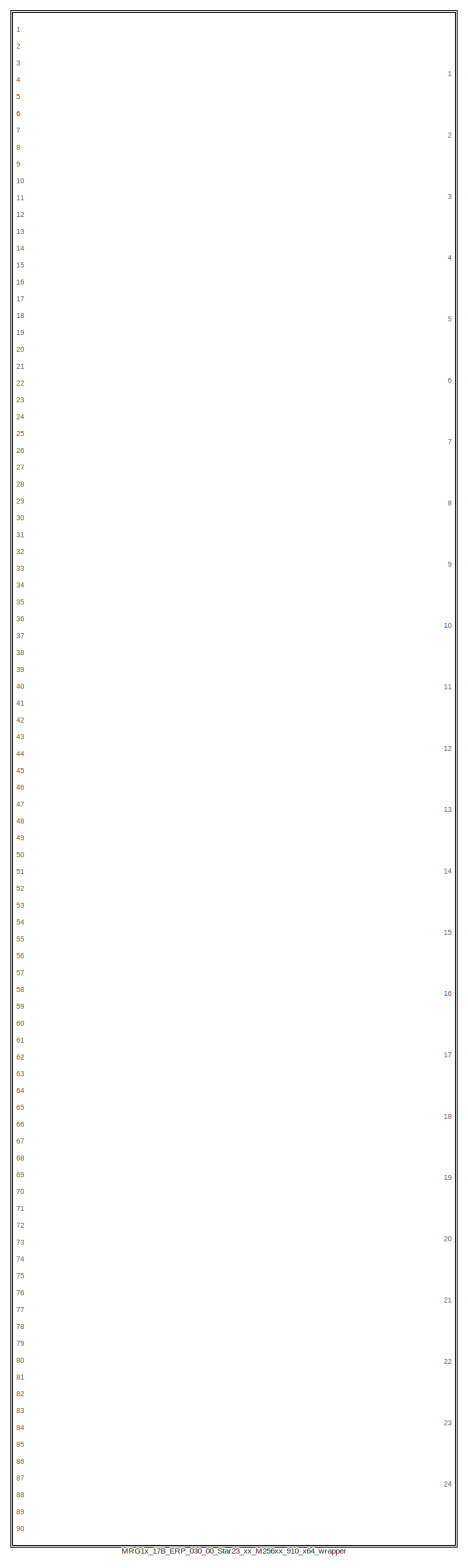
[diagram: root canvas - part 1/1, most of the canvas]
MODEL MRG1x_17B_ERP_030_00_Star23_xx_M256xx_910_x64_RB_Test
KIND model
CONFIG PreLoadFcn = MRG1x_17B_ERP_030_00_Star23_xx_M256xx_910_x64_InitFcn
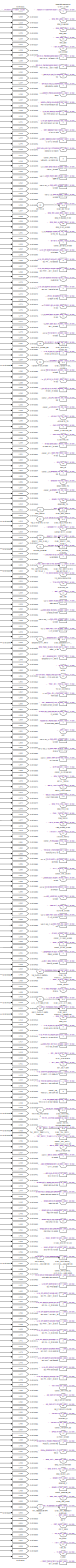
[diagram: MRG1x_17B_ERP_030_00_Star23_xx_M256xx_910_x64_wrapper - part 1/25, top center region]
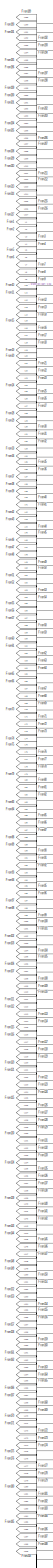
[diagram: MRG1x_17B_ERP_030_00_Star23_xx_M256xx_910_x64_wrapper - part 2/25, top left region]
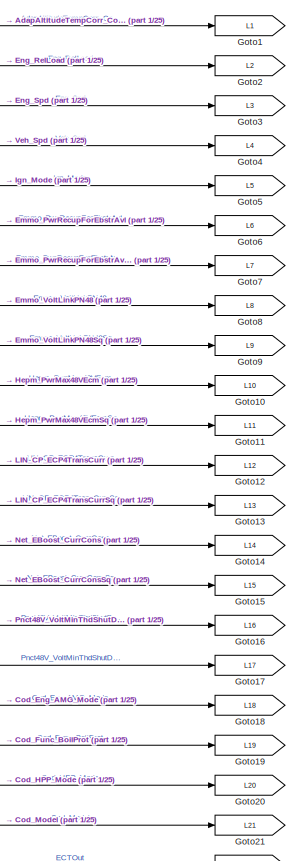
[diagram: MRG1x_17B_ERP_030_00_Star23_xx_M256xx_910_x64_wrapper - part 3/25, top right region]
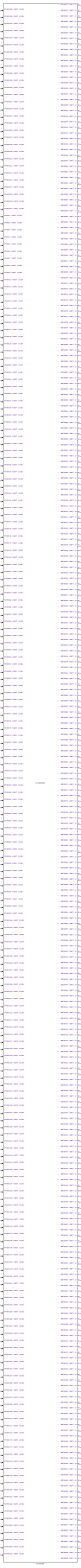
[diagram: MRG1x_17B_ERP_030_00_Star23_xx_M256xx_910_x64_wrapper - part 4/25, top left region]
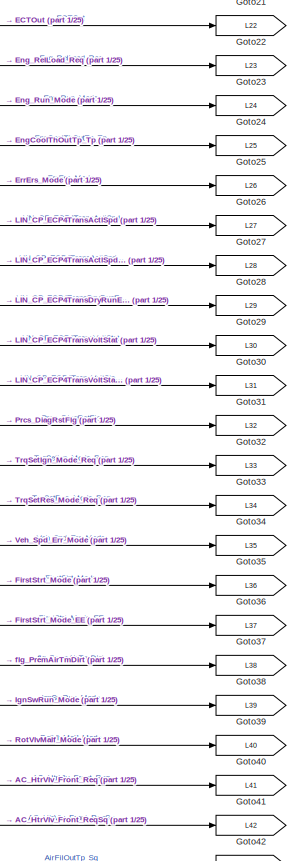
[diagram: MRG1x_17B_ERP_030_00_Star23_xx_M256xx_910_x64_wrapper - part 5/25, top right region]
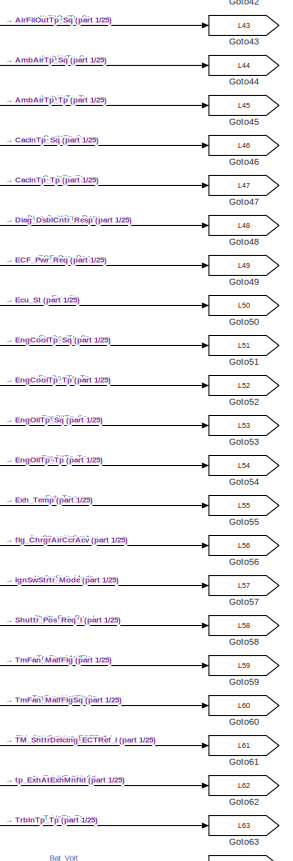
[diagram: MRG1x_17B_ERP_030_00_Star23_xx_M256xx_910_x64_wrapper - part 6/25, top right region]
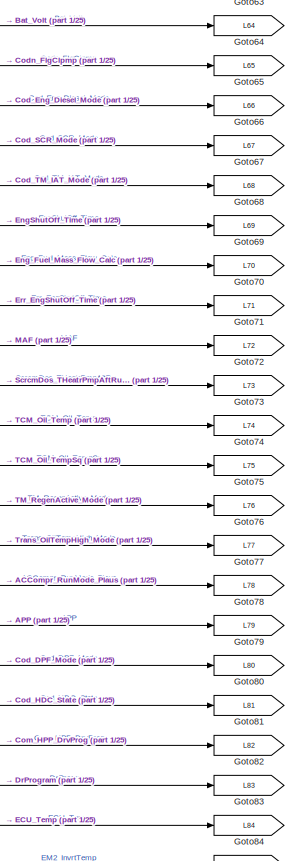
[diagram: MRG1x_17B_ERP_030_00_Star23_xx_M256xx_910_x64_wrapper - part 7/25, top right region]
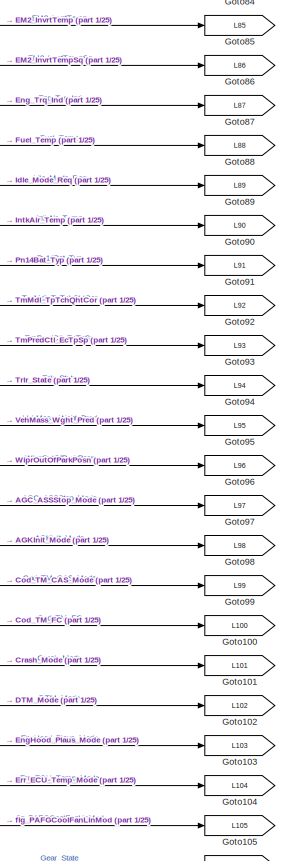
[diagram: MRG1x_17B_ERP_030_00_Star23_xx_M256xx_910_x64_wrapper - part 8/25, top right region]
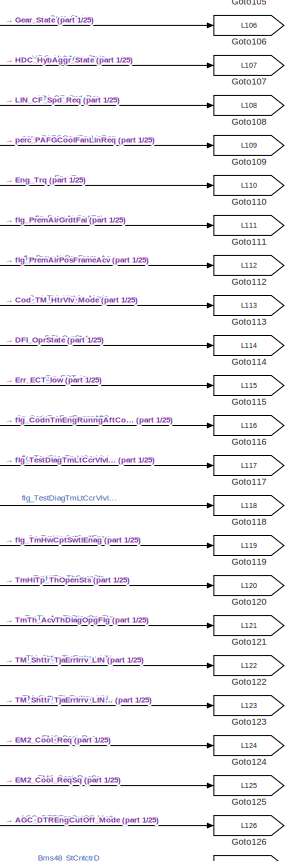
[diagram: MRG1x_17B_ERP_030_00_Star23_xx_M256xx_910_x64_wrapper - part 9/25, top right region]
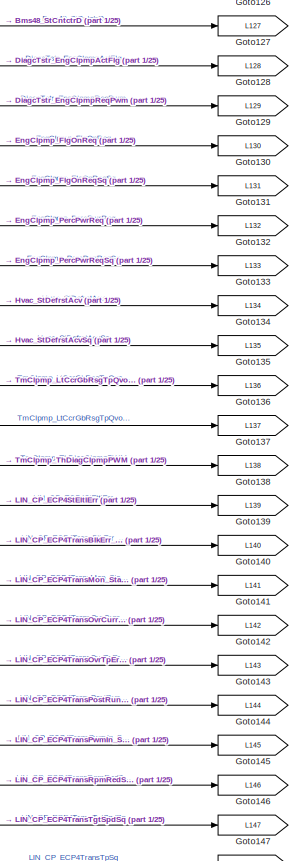
[diagram: MRG1x_17B_ERP_030_00_Star23_xx_M256xx_910_x64_wrapper - part 10/25, top right region]
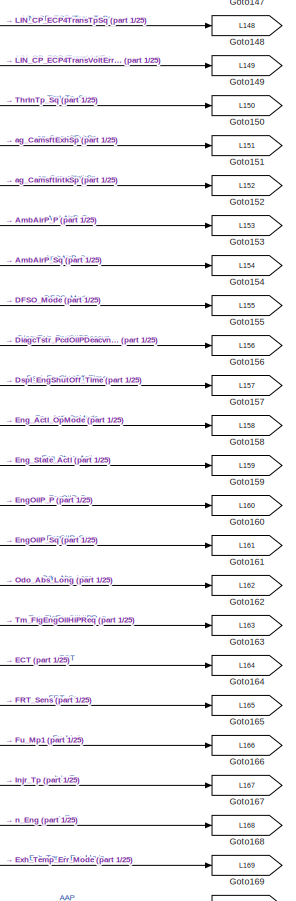
[diagram: MRG1x_17B_ERP_030_00_Star23_xx_M256xx_910_x64_wrapper - part 11/25, top right region]
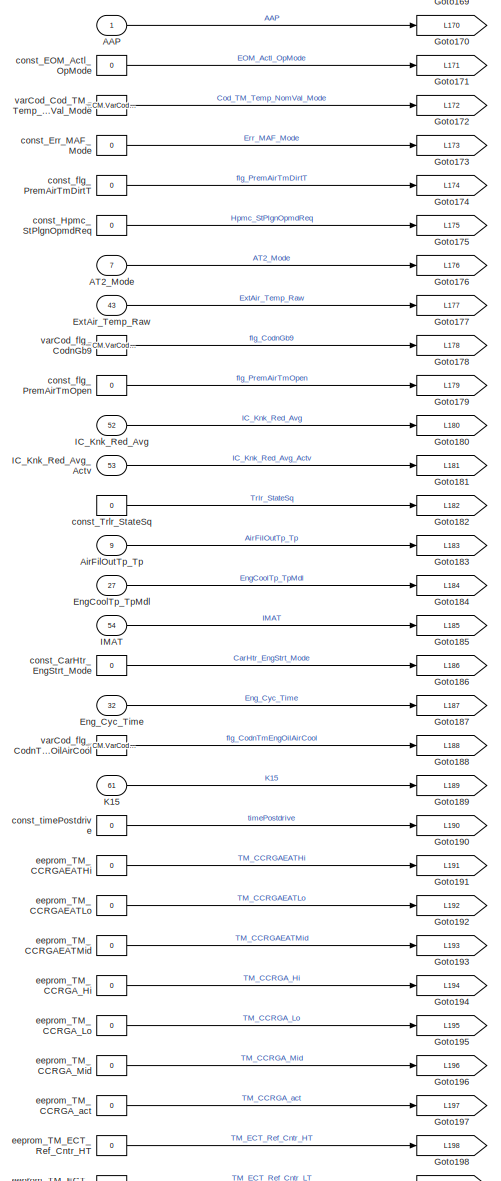
[diagram: MRG1x_17B_ERP_030_00_Star23_xx_M256xx_910_x64_wrapper - part 12/25, middle right region]
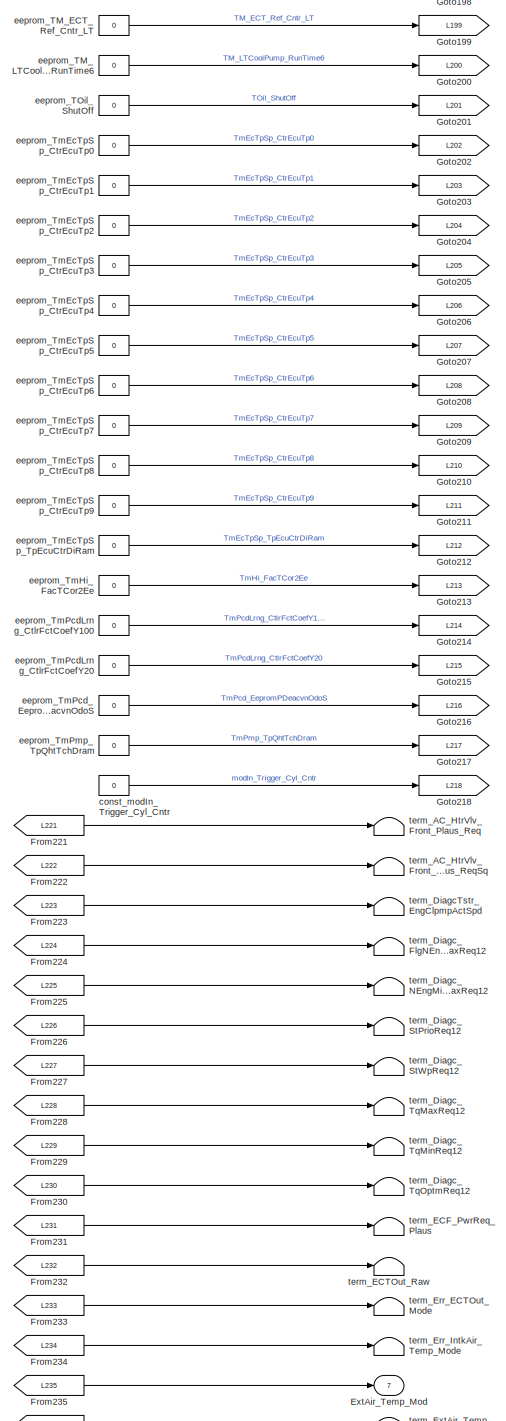
[diagram: MRG1x_17B_ERP_030_00_Star23_xx_M256xx_910_x64_wrapper - part 13/25, middle right region]
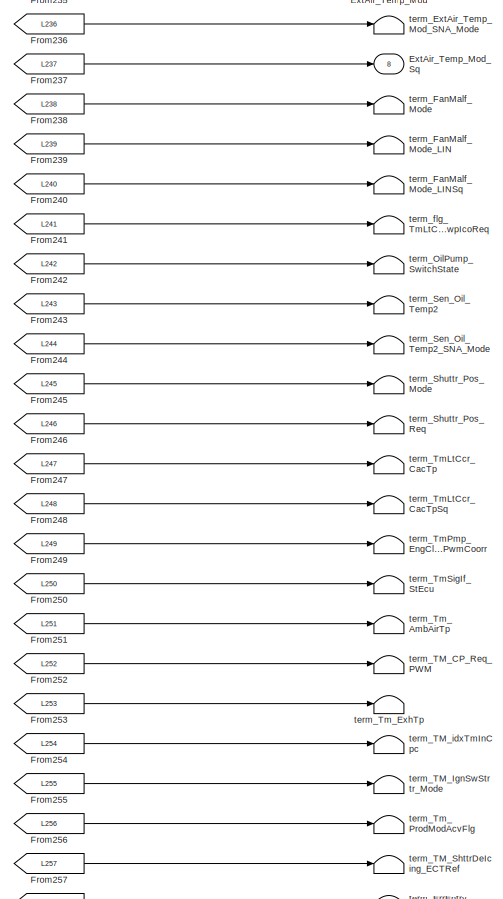
[diagram: MRG1x_17B_ERP_030_00_Star23_xx_M256xx_910_x64_wrapper - part 14/25, middle right region]
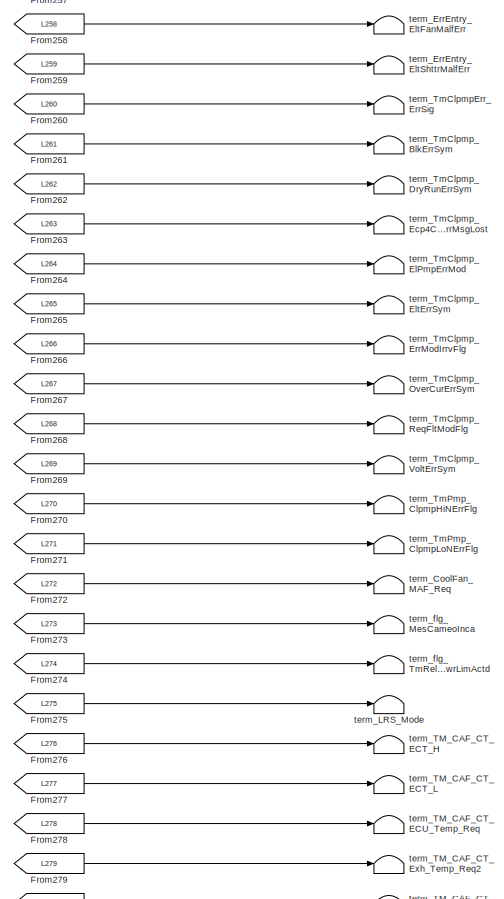
[diagram: MRG1x_17B_ERP_030_00_Star23_xx_M256xx_910_x64_wrapper - part 15/25, middle right region]
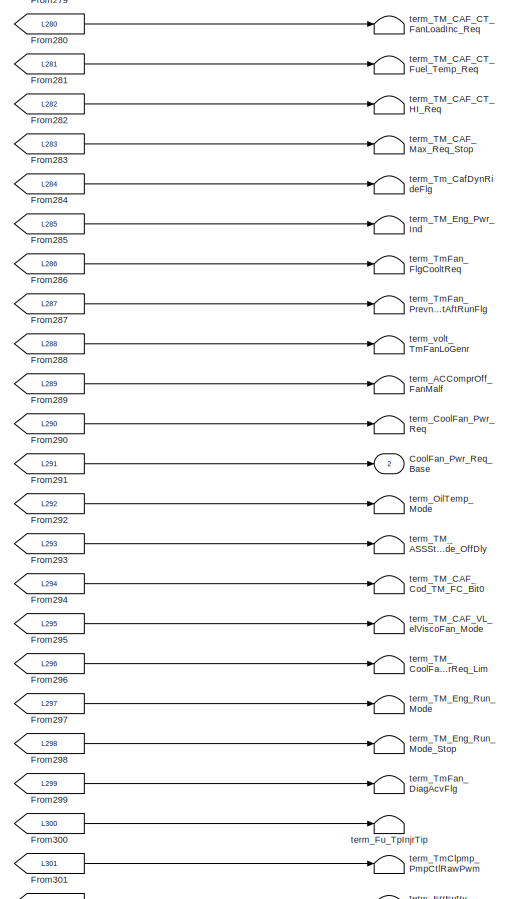
[diagram: MRG1x_17B_ERP_030_00_Star23_xx_M256xx_910_x64_wrapper - part 16/25, middle right region]
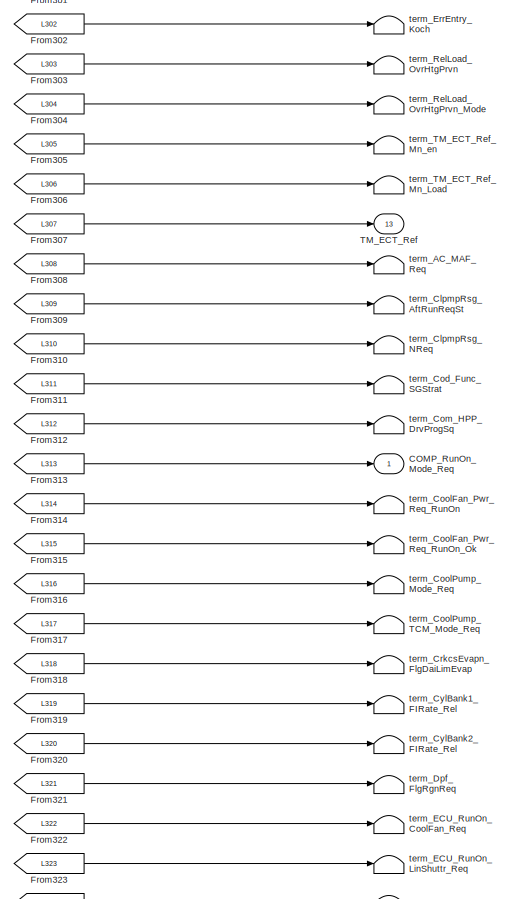
[diagram: MRG1x_17B_ERP_030_00_Star23_xx_M256xx_910_x64_wrapper - part 17/25, middle right region]
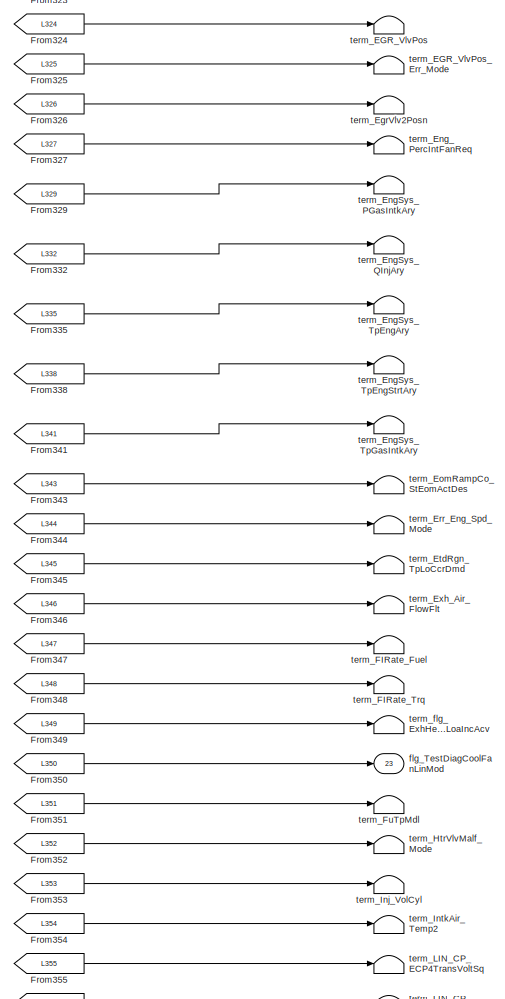
[diagram: MRG1x_17B_ERP_030_00_Star23_xx_M256xx_910_x64_wrapper - part 18/25, middle right region]
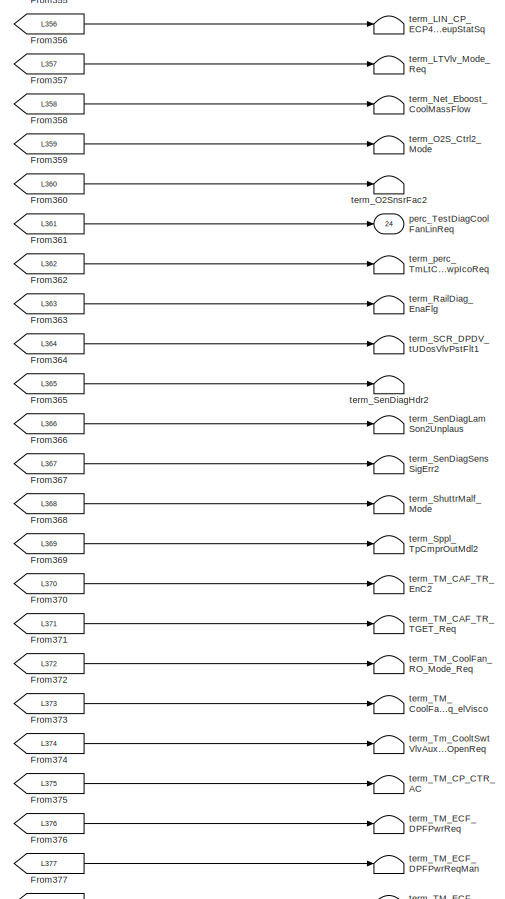
[diagram: MRG1x_17B_ERP_030_00_Star23_xx_M256xx_910_x64_wrapper - part 19/25, bottom right region]
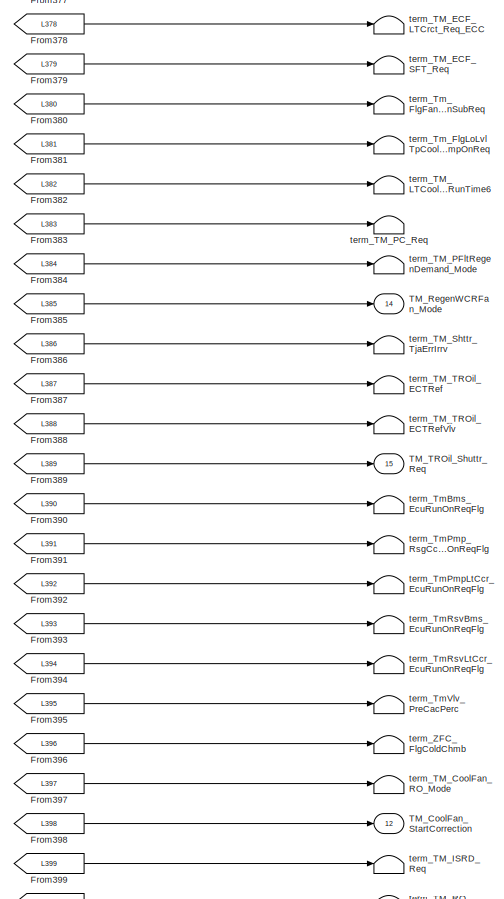
[diagram: MRG1x_17B_ERP_030_00_Star23_xx_M256xx_910_x64_wrapper - part 20/25, bottom right region]
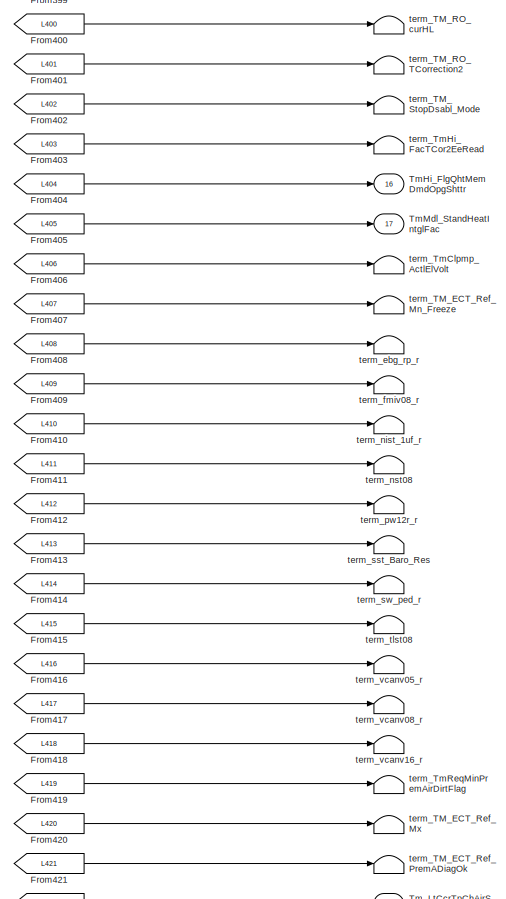
[diagram: MRG1x_17B_ERP_030_00_Star23_xx_M256xx_910_x64_wrapper - part 21/25, bottom right region]
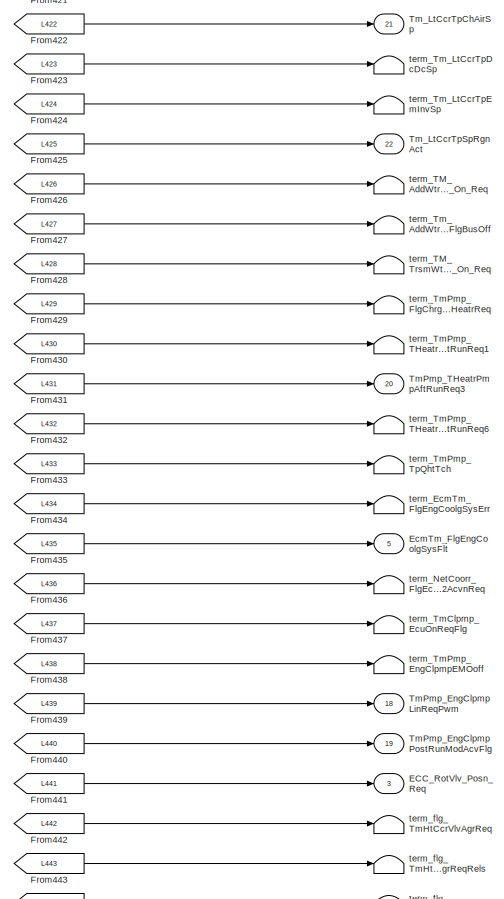
[diagram: MRG1x_17B_ERP_030_00_Star23_xx_M256xx_910_x64_wrapper - part 22/25, bottom right region]
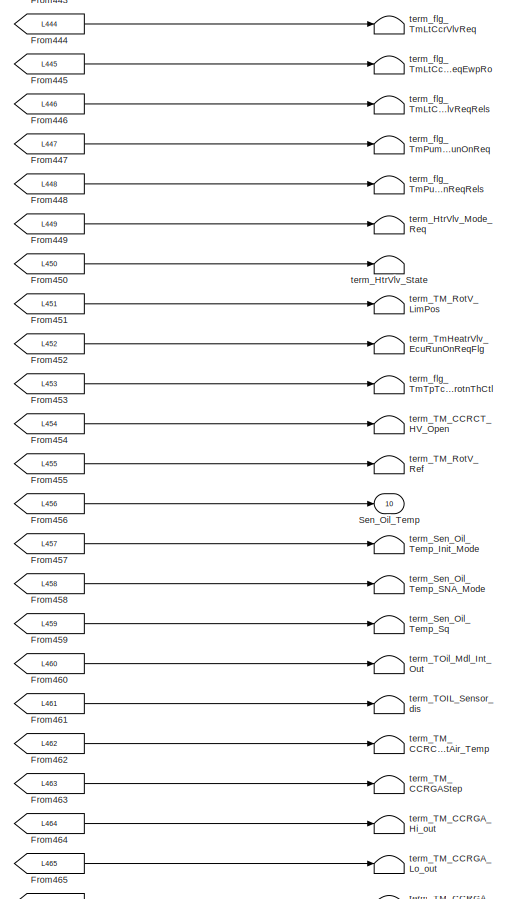
[diagram: MRG1x_17B_ERP_030_00_Star23_xx_M256xx_910_x64_wrapper - part 23/25, bottom right region]
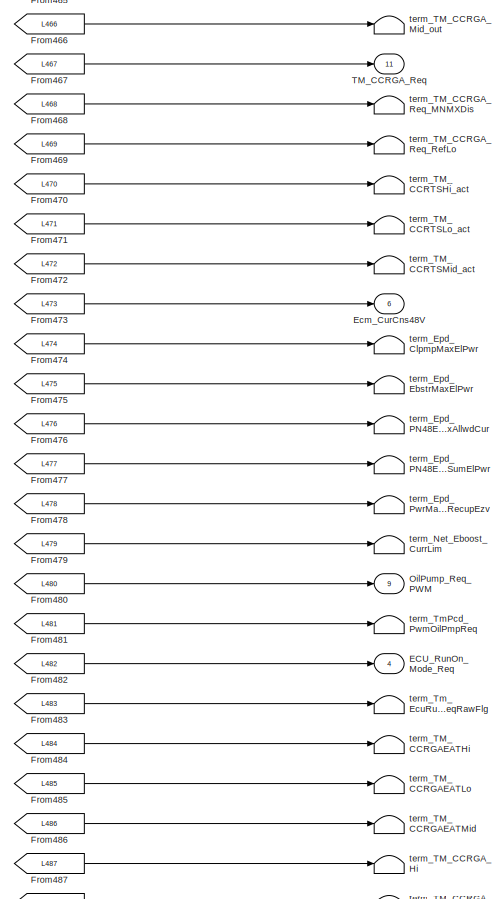
[diagram: MRG1x_17B_ERP_030_00_Star23_xx_M256xx_910_x64_wrapper - part 24/25, bottom right region]
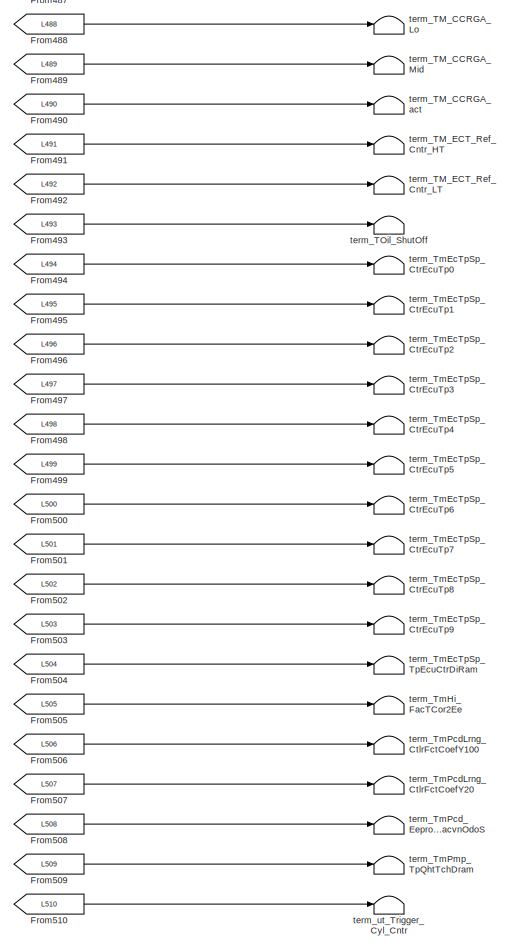
[diagram: MRG1x_17B_ERP_030_00_Star23_xx_M256xx_910_x64_wrapper - part 25/25, bottom right region]
BLOCK [SubSystem] MRG1x_17B_ERP_030_00_Star23_xx_M256xx_910_x64_wrapper
  FunctionWithSeparateData = off
  MaskDisplay = patch(.5 + 0.03*8*cos(0:pi/50:2*pi),   .5 + 0.0753 *8*sin(0:pi/50:2*pi), [0 0 1])\npatch(.5 + 0.03*[6.5, 8, 0, -1.5],     .5 + 0.0753 *[-8,-6.5, 1.5, 0], [.8, .8, .8])\npatch(.5 + 0.03*5.5*cos(0:pi/50:2*pi), .5 + 0.0753 *5.5*sin(0:pi/50:2*pi), [.8, .8, .8])\npatch(.5 + 0.03*3.5*cos(0:pi/50:2*pi), .5 + 0.0753 *3.5*sin(0:pi/50:2*pi), [0 0 1])\n
  MaskHideContents = off
  MaskIconFrame = on
  MaskIconOpaque = off
  MaskIconRotate = none
  MaskIconUnits = normalized
  MaskPortRotate = default
  MinAlgLoopOccurrences = off
  Opaque = off
  Ports = [90, 24]
  PropExecContextOutsideSubsystem = off
  RTWSystemCode = Auto
  RequestExecContextInheritance = off
  SID = 1
BLOCK [Inport] MRG1x_17B_ERP_030_00_Star23_xx_M256xx_910_x64_wrapper/AAP
  IconDisplay = Port number
  SID = 1502
BLOCK [Inport] MRG1x_17B_ERP_030_00_Star23_xx_M256xx_910_x64_wrapper/AC_HtrVlv_Front_Req
  IconDisplay = Port number
  Port = 2
  SID = 1504
BLOCK [Inport] MRG1x_17B_ERP_030_00_Star23_xx_M256xx_910_x64_wrapper/AGC_ASSStop_Mode
  IconDisplay = Port number
  Port = 3
  SID = 1506
BLOCK [Inport] MRG1x_17B_ERP_030_00_Star23_xx_M256xx_910_x64_wrapper/AGC_DTREngCutOff_Mode
  IconDisplay = Port number
  Port = 4
  SID = 1507
BLOCK [Inport] MRG1x_17B_ERP_030_00_Star23_xx_M256xx_910_x64_wrapper/AGKInit_Mode
  IconDisplay = Port number
  Port = 5
  SID = 1508
BLOCK [Inport] MRG1x_17B_ERP_030_00_Star23_xx_M256xx_910_x64_wrapper/APP
  IconDisplay = Port number
  Port = 6
  SID = 1509
BLOCK [Inport] MRG1x_17B_ERP_030_00_Star23_xx_M256xx_910_x64_wrapper/AT2_Mode
  IconDisplay = Port number
  Port = 7
  SID = 1510
BLOCK [Inport] MRG1x_17B_ERP_030_00_Star23_xx_M256xx_910_x64_wrapper/AdapAltitudeTempCorr_Coef
  IconDisplay = Port number
  Port = 8
  SID = 1511
BLOCK [Inport] MRG1x_17B_ERP_030_00_Star23_xx_M256xx_910_x64_wrapper/AirFilOutTp_Tp
  IconDisplay = Port number
  Port = 9
  SID = 1513
BLOCK [Inport] MRG1x_17B_ERP_030_00_Star23_xx_M256xx_910_x64_wrapper/AmbAirP_P
  IconDisplay = Port number
  Port = 10
  SID = 1514
BLOCK [Inport] MRG1x_17B_ERP_030_00_Star23_xx_M256xx_910_x64_wrapper/AmbAirTp_Tp
  IconDisplay = Port number
  Port = 11
  SID = 1517
BLOCK [Inport] MRG1x_17B_ERP_030_00_Star23_xx_M256xx_910_x64_wrapper/Bat_Volt
  IconDisplay = Port number
  Port = 12
  SID = 1518
BLOCK [Outport] MRG1x_17B_ERP_030_00_Star23_xx_M256xx_910_x64_wrapper/COMP_RunOn_Mode_Req
  IconDisplay = Port number
  SID = 1741
BLOCK [Inport] MRG1x_17B_ERP_030_00_Star23_xx_M256xx_910_x64_wrapper/CacInTp_Tp
  IconDisplay = Port number
  Port = 13
  SID = 1521
BLOCK [Outport] MRG1x_17B_ERP_030_00_Star23_xx_M256xx_910_x64_wrapper/CoolFan_Pwr_Req_Base
  IconDisplay = Port number
  Port = 2
  SID = 1748
BLOCK [Inport] MRG1x_17B_ERP_030_00_Star23_xx_M256xx_910_x64_wrapper/DFI_OprState
  IconDisplay = Port number
  Port = 14
  SID = 1539
BLOCK [Inport] MRG1x_17B_ERP_030_00_Star23_xx_M256xx_910_x64_wrapper/DFSO_Mode
  IconDisplay = Port number
  Port = 15
  SID = 1540
BLOCK [UnitDelay] MRG1x_17B_ERP_030_00_Star23_xx_M256xx_910_x64_wrapper/Dlay_ECTOut
  SID = 1550
  SampleTime = -1
BLOCK [UnitDelay] MRG1x_17B_ERP_030_00_Star23_xx_M256xx_910_x64_wrapper/Dlay_EngShutOff_Time
  SID = 1576
  SampleTime = -1
BLOCK [UnitDelay] MRG1x_17B_ERP_030_00_Star23_xx_M256xx_910_x64_wrapper/Dlay_Exh_Temp
  SID = 1593
  SampleTime = -1
BLOCK [UnitDelay] MRG1x_17B_ERP_030_00_Star23_xx_M256xx_910_x64_wrapper/Dlay_FirstStrt_Mode_EE
  SID = 1599
  SampleTime = -1
BLOCK [UnitDelay] MRG1x_17B_ERP_030_00_Star23_xx_M256xx_910_x64_wrapper/Dlay_IgnSwRun_Mode
  SID = 1614
  SampleTime = -1
BLOCK [UnitDelay] MRG1x_17B_ERP_030_00_Star23_xx_M256xx_910_x64_wrapper/Dlay_LIN_CF_Spd_Req
  SID = 1621
  SampleTime = -1
BLOCK [UnitDelay] MRG1x_17B_ERP_030_00_Star23_xx_M256xx_910_x64_wrapper/Dlay_Shuttr_Pos_Req_I
  SID = 1651
  SampleTime = -1
BLOCK [UnitDelay] MRG1x_17B_ERP_030_00_Star23_xx_M256xx_910_x64_wrapper/Dlay_TM_ShttrDeIcing_ECTRef_I
  SID = 1666
  SampleTime = -1
BLOCK [UnitDelay] MRG1x_17B_ERP_030_00_Star23_xx_M256xx_910_x64_wrapper/Dlay_TM_Shttr_TjaErrIrrv_LIN
  SID = 1668
  SampleTime = -1
BLOCK [UnitDelay] MRG1x_17B_ERP_030_00_Star23_xx_M256xx_910_x64_wrapper/Dlay_TmClpmp_LtCcrGbRsgTpQvolReq
  SID = 1673
  SampleTime = -1
BLOCK [UnitDelay] MRG1x_17B_ERP_030_00_Star23_xx_M256xx_910_x64_wrapper/Dlay_TmFan_MalfFlg
  SID = 1688
  SampleTime = -1
BLOCK [UnitDelay] MRG1x_17B_ERP_030_00_Star23_xx_M256xx_910_x64_wrapper/Dlay_TmHiTp_ThOpenSts
  SID = 1691
  SampleTime = -1
BLOCK [UnitDelay] MRG1x_17B_ERP_030_00_Star23_xx_M256xx_910_x64_wrapper/Dlay_Tm_FlgEngOilHiPReq
  SID = 1701
  SampleTime = -1
BLOCK [UnitDelay] MRG1x_17B_ERP_030_00_Star23_xx_M256xx_910_x64_wrapper/Dlay_flg_ChrgrAirCcrAcv
  SID = 1715
  SampleTime = -1
BLOCK [UnitDelay] MRG1x_17B_ERP_030_00_Star23_xx_M256xx_910_x64_wrapper/Dlay_flg_PAFGCoolFanLinMod
  SID = 1720
  SampleTime = -1
BLOCK [UnitDelay] MRG1x_17B_ERP_030_00_Star23_xx_M256xx_910_x64_wrapper/Dlay_perc_PAFGCoolFanLinReq
  SID = 1732
  SampleTime = -1
BLOCK [Inport] MRG1x_17B_ERP_030_00_Star23_xx_M256xx_910_x64_wrapper/Dspl_EngShutOff_Time
  IconDisplay = Port number
  Port = 16
  SID = 1547
BLOCK [Outport] MRG1x_17B_ERP_030_00_Star23_xx_M256xx_910_x64_wrapper/ECC_RotVlv_Posn_Req
  IconDisplay = Port number
  Port = 3
  SID = 1765
BLOCK [Inport] MRG1x_17B_ERP_030_00_Star23_xx_M256xx_910_x64_wrapper/ECT
  IconDisplay = Port number
  Port = 17
  SID = 1549
BLOCK [Inport] MRG1x_17B_ERP_030_00_Star23_xx_M256xx_910_x64_wrapper/ECTOut
  IconDisplay = Port number
  Port = 18
  SID = 1551
BLOCK [Outport] MRG1x_17B_ERP_030_00_Star23_xx_M256xx_910_x64_wrapper/ECU_RunOn_Mode_Req
  IconDisplay = Port number
  Port = 4
  SID = 1770
BLOCK [Inport] MRG1x_17B_ERP_030_00_Star23_xx_M256xx_910_x64_wrapper/ECU_Temp
  IconDisplay = Port number
  Port = 19
  SID = 1552
BLOCK [Inport] MRG1x_17B_ERP_030_00_Star23_xx_M256xx_910_x64_wrapper/EM2_Cool_Req
  IconDisplay = Port number
  Port = 20
  SID = 1553
BLOCK [Inport] MRG1x_17B_ERP_030_00_Star23_xx_M256xx_910_x64_wrapper/EM2_InvrtTemp
  IconDisplay = Port number
  Port = 21
  SID = 1555
BLOCK [Outport] MRG1x_17B_ERP_030_00_Star23_xx_M256xx_910_x64_wrapper/EcmTm_FlgEngCoolgSysFlt
  IconDisplay = Port number
  Port = 5
  SID = 1774
BLOCK [Outport] MRG1x_17B_ERP_030_00_Star23_xx_M256xx_910_x64_wrapper/Ecm_CurCns48V
  IconDisplay = Port number
  Port = 6
  SID = 1775
BLOCK [Inport] MRG1x_17B_ERP_030_00_Star23_xx_M256xx_910_x64_wrapper/Ecu_St
  IconDisplay = Port number
  Port = 22
  SID = 1558
BLOCK [Inport] MRG1x_17B_ERP_030_00_Star23_xx_M256xx_910_x64_wrapper/Emmo_VoltLinkPN48
  IconDisplay = Port number
  Port = 23
  SID = 1561
BLOCK [Inport] MRG1x_17B_ERP_030_00_Star23_xx_M256xx_910_x64_wrapper/EngClpmp_FlgOnReq
  IconDisplay = Port number
  Port = 24
  SID = 1563
BLOCK [Inport] MRG1x_17B_ERP_030_00_Star23_xx_M256xx_910_x64_wrapper/EngClpmp_PercPwrReq
  IconDisplay = Port number
  Port = 25
  SID = 1565
BLOCK [Inport] MRG1x_17B_ERP_030_00_Star23_xx_M256xx_910_x64_wrapper/EngCoolTp_Tp
  IconDisplay = Port number
  Port = 26
  SID = 1569
BLOCK [Inport] MRG1x_17B_ERP_030_00_Star23_xx_M256xx_910_x64_wrapper/EngCoolTp_TpMdl
  IconDisplay = Port number
  Port = 27
  SID = 1570
BLOCK [Inport] MRG1x_17B_ERP_030_00_Star23_xx_M256xx_910_x64_wrapper/EngOilP_P
  IconDisplay = Port number
  Port = 28
  SID = 1572
BLOCK [Inport] MRG1x_17B_ERP_030_00_Star23_xx_M256xx_910_x64_wrapper/EngOilTp_Tp
  IconDisplay = Port number
  Port = 29
  SID = 1575
BLOCK [Inport] MRG1x_17B_ERP_030_00_Star23_xx_M256xx_910_x64_wrapper/EngShutOff_Time
  IconDisplay = Port number
  Port = 30
  SID = 1577
BLOCK [Inport] MRG1x_17B_ERP_030_00_Star23_xx_M256xx_910_x64_wrapper/Eng_Actl_OpMode
  IconDisplay = Port number
  Port = 31
  SID = 1578
BLOCK [Inport] MRG1x_17B_ERP_030_00_Star23_xx_M256xx_910_x64_wrapper/Eng_Cyc_Time
  IconDisplay = Port number
  Port = 32
  SID = 1579
BLOCK [Inport] MRG1x_17B_ERP_030_00_Star23_xx_M256xx_910_x64_wrapper/Eng_Fuel_Mass_Flow_Calc
  IconDisplay = Port number
  Port = 33
  SID = 1580
BLOCK [Inport] MRG1x_17B_ERP_030_00_Star23_xx_M256xx_910_x64_wrapper/Eng_RelLoad
  IconDisplay = Port number
  Port = 34
  SID = 1581
BLOCK [Inport] MRG1x_17B_ERP_030_00_Star23_xx_M256xx_910_x64_wrapper/Eng_RelLoad_Req
  IconDisplay = Port number
  Port = 35
  SID = 1582
BLOCK [Inport] MRG1x_17B_ERP_030_00_Star23_xx_M256xx_910_x64_wrapper/Eng_Run_Mode
  IconDisplay = Port number
  Port = 36
  SID = 1583
BLOCK [Inport] MRG1x_17B_ERP_030_00_Star23_xx_M256xx_910_x64_wrapper/Eng_Spd
  IconDisplay = Port number
  Port = 37
  SID = 1584
BLOCK [Inport] MRG1x_17B_ERP_030_00_Star23_xx_M256xx_910_x64_wrapper/Eng_State_Actl
  IconDisplay = Port number
  Port = 38
  SID = 1585
BLOCK [Inport] MRG1x_17B_ERP_030_00_Star23_xx_M256xx_910_x64_wrapper/Eng_Trq
  IconDisplay = Port number
  Port = 39
  SID = 1586
BLOCK [Inport] MRG1x_17B_ERP_030_00_Star23_xx_M256xx_910_x64_wrapper/Eng_Trq_Ind
  IconDisplay = Port number
  Port = 40
  SID = 1587
BLOCK [Inport] MRG1x_17B_ERP_030_00_Star23_xx_M256xx_910_x64_wrapper/Err_ECT_low
  IconDisplay = Port number
  Port = 41
  SID = 1589
BLOCK [Inport] MRG1x_17B_ERP_030_00_Star23_xx_M256xx_910_x64_wrapper/Exh_Temp
  IconDisplay = Port number
  Port = 42
  SID = 1594
BLOCK [Outport] MRG1x_17B_ERP_030_00_Star23_xx_M256xx_910_x64_wrapper/ExtAir_Temp_Mod
  IconDisplay = Port number
  Port = 7
  SID = 1797
BLOCK [Outport] MRG1x_17B_ERP_030_00_Star23_xx_M256xx_910_x64_wrapper/ExtAir_Temp_Mod_Sq
  IconDisplay = Port number
  Port = 8
  SID = 1799
BLOCK [Inport] MRG1x_17B_ERP_030_00_Star23_xx_M256xx_910_x64_wrapper/ExtAir_Temp_Raw
  IconDisplay = Port number
  Port = 43
  SID = 1596
BLOCK [Inport] MRG1x_17B_ERP_030_00_Star23_xx_M256xx_910_x64_wrapper/FRT_Sens
  IconDisplay = Port number
  Port = 44
  SID = 1597
BLOCK [Inport] MRG1x_17B_ERP_030_00_Star23_xx_M256xx_910_x64_wrapper/FirstStrt_Mode_EE
  IconDisplay = Port number
  Port = 45
  SID = 1600
BLOCK [From] MRG1x_17B_ERP_030_00_Star23_xx_M256xx_910_x64_wrapper/From1
  GotoTag = L1
  SID = 5
BLOCK [From] MRG1x_17B_ERP_030_00_Star23_xx_M256xx_910_x64_wrapper/From10
  GotoTag = L10
  SID = 32
BLOCK [From] MRG1x_17B_ERP_030_00_Star23_xx_M256xx_910_x64_wrapper/From100
  GotoTag = L100
  SID = 302
BLOCK [From] MRG1x_17B_ERP_030_00_Star23_xx_M256xx_910_x64_wrapper/From101
  GotoTag = L101
  SID = 305
BLOCK [From] MRG1x_17B_ERP_030_00_Star23_xx_M256xx_910_x64_wrapper/From102
  GotoTag = L102
  SID = 308
BLOCK [From] MRG1x_17B_ERP_030_00_Star23_xx_M256xx_910_x64_wrapper/From103
  GotoTag = L103
  SID = 311
BLOCK [From] MRG1x_17B_ERP_030_00_Star23_xx_M256xx_910_x64_wrapper/From104
  GotoTag = L104
  SID = 314
BLOCK [From] MRG1x_17B_ERP_030_00_Star23_xx_M256xx_910_x64_wrapper/From105
  GotoTag = L105
  SID = 317
BLOCK [From] MRG1x_17B_ERP_030_00_Star23_xx_M256xx_910_x64_wrapper/From106
  GotoTag = L106
  SID = 320
BLOCK [From] MRG1x_17B_ERP_030_00_Star23_xx_M256xx_910_x64_wrapper/From107
  GotoTag = L107
  SID = 323
BLOCK [From] MRG1x_17B_ERP_030_00_Star23_xx_M256xx_910_x64_wrapper/From108
  GotoTag = L108
  SID = 326
BLOCK [From] MRG1x_17B_ERP_030_00_Star23_xx_M256xx_910_x64_wrapper/From109
  GotoTag = L109
  SID = 329
BLOCK [From] MRG1x_17B_ERP_030_00_Star23_xx_M256xx_910_x64_wrapper/From11
  GotoTag = L11
  SID = 35
BLOCK [From] MRG1x_17B_ERP_030_00_Star23_xx_M256xx_910_x64_wrapper/From110
  GotoTag = L110
  SID = 332
BLOCK [From] MRG1x_17B_ERP_030_00_Star23_xx_M256xx_910_x64_wrapper/From111
  GotoTag = L111
  SID = 335
BLOCK [From] MRG1x_17B_ERP_030_00_Star23_xx_M256xx_910_x64_wrapper/From112
  GotoTag = L112
  SID = 338
BLOCK [From] MRG1x_17B_ERP_030_00_Star23_xx_M256xx_910_x64_wrapper/From113
  GotoTag = L113
  SID = 341
BLOCK [From] MRG1x_17B_ERP_030_00_Star23_xx_M256xx_910_x64_wrapper/From114
  GotoTag = L114
  SID = 344
BLOCK [From] MRG1x_17B_ERP_030_00_Star23_xx_M256xx_910_x64_wrapper/From115
  GotoTag = L115
  SID = 347
BLOCK [From] MRG1x_17B_ERP_030_00_Star23_xx_M256xx_910_x64_wrapper/From116
  GotoTag = L116
  SID = 350
BLOCK [From] MRG1x_17B_ERP_030_00_Star23_xx_M256xx_910_x64_wrapper/From117
  GotoTag = L117
  SID = 353
BLOCK [From] MRG1x_17B_ERP_030_00_Star23_xx_M256xx_910_x64_wrapper/From118
  GotoTag = L118
  SID = 356
BLOCK [From] MRG1x_17B_ERP_030_00_Star23_xx_M256xx_910_x64_wrapper/From119
  GotoTag = L119
  SID = 359
BLOCK [From] MRG1x_17B_ERP_030_00_Star23_xx_M256xx_910_x64_wrapper/From12
  GotoTag = L12
  SID = 38
BLOCK [From] MRG1x_17B_ERP_030_00_Star23_xx_M256xx_910_x64_wrapper/From120
  GotoTag = L120
  SID = 362
BLOCK [From] MRG1x_17B_ERP_030_00_Star23_xx_M256xx_910_x64_wrapper/From121
  GotoTag = L121
  SID = 365
BLOCK [From] MRG1x_17B_ERP_030_00_Star23_xx_M256xx_910_x64_wrapper/From122
  GotoTag = L122
  SID = 368
BLOCK [From] MRG1x_17B_ERP_030_00_Star23_xx_M256xx_910_x64_wrapper/From123
  GotoTag = L123
  SID = 371
BLOCK [From] MRG1x_17B_ERP_030_00_Star23_xx_M256xx_910_x64_wrapper/From124
  GotoTag = L124
  SID = 374
BLOCK [From] MRG1x_17B_ERP_030_00_Star23_xx_M256xx_910_x64_wrapper/From125
  GotoTag = L125
  SID = 377
BLOCK [From] MRG1x_17B_ERP_030_00_Star23_xx_M256xx_910_x64_wrapper/From126
  GotoTag = L126
  SID = 380
BLOCK [From] MRG1x_17B_ERP_030_00_Star23_xx_M256xx_910_x64_wrapper/From127
  GotoTag = L127
  SID = 383
BLOCK [From] MRG1x_17B_ERP_030_00_Star23_xx_M256xx_910_x64_wrapper/From128
  GotoTag = L128
  SID = 386
BLOCK [From] MRG1x_17B_ERP_030_00_Star23_xx_M256xx_910_x64_wrapper/From129
  GotoTag = L129
  SID = 389
BLOCK [From] MRG1x_17B_ERP_030_00_Star23_xx_M256xx_910_x64_wrapper/From13
  GotoTag = L13
  SID = 41
BLOCK [From] MRG1x_17B_ERP_030_00_Star23_xx_M256xx_910_x64_wrapper/From130
  GotoTag = L130
  SID = 392
BLOCK [From] MRG1x_17B_ERP_030_00_Star23_xx_M256xx_910_x64_wrapper/From131
  GotoTag = L131
  SID = 395
BLOCK [From] MRG1x_17B_ERP_030_00_Star23_xx_M256xx_910_x64_wrapper/From132
  GotoTag = L132
  SID = 398
BLOCK [From] MRG1x_17B_ERP_030_00_Star23_xx_M256xx_910_x64_wrapper/From133
  GotoTag = L133
  SID = 401
BLOCK [From] MRG1x_17B_ERP_030_00_Star23_xx_M256xx_910_x64_wrapper/From134
  GotoTag = L134
  SID = 404
BLOCK [From] MRG1x_17B_ERP_030_00_Star23_xx_M256xx_910_x64_wrapper/From135
  GotoTag = L135
  SID = 407
BLOCK [From] MRG1x_17B_ERP_030_00_Star23_xx_M256xx_910_x64_wrapper/From136
  GotoTag = L136
  SID = 410
BLOCK [From] MRG1x_17B_ERP_030_00_Star23_xx_M256xx_910_x64_wrapper/From137
  GotoTag = L137
  SID = 413
BLOCK [From] MRG1x_17B_ERP_030_00_Star23_xx_M256xx_910_x64_wrapper/From138
  GotoTag = L138
  SID = 416
BLOCK [From] MRG1x_17B_ERP_030_00_Star23_xx_M256xx_910_x64_wrapper/From139
  GotoTag = L139
  SID = 419
BLOCK [From] MRG1x_17B_ERP_030_00_Star23_xx_M256xx_910_x64_wrapper/From14
  GotoTag = L14
  SID = 44
BLOCK [From] MRG1x_17B_ERP_030_00_Star23_xx_M256xx_910_x64_wrapper/From140
  GotoTag = L140
  SID = 422
BLOCK [From] MRG1x_17B_ERP_030_00_Star23_xx_M256xx_910_x64_wrapper/From141
  GotoTag = L141
  SID = 425
BLOCK [From] MRG1x_17B_ERP_030_00_Star23_xx_M256xx_910_x64_wrapper/From142
  GotoTag = L142
  SID = 428
BLOCK [From] MRG1x_17B_ERP_030_00_Star23_xx_M256xx_910_x64_wrapper/From143
  GotoTag = L143
  SID = 431
BLOCK [From] MRG1x_17B_ERP_030_00_Star23_xx_M256xx_910_x64_wrapper/From144
  GotoTag = L144
  SID = 434
BLOCK [From] MRG1x_17B_ERP_030_00_Star23_xx_M256xx_910_x64_wrapper/From145
  GotoTag = L145
  SID = 437
BLOCK [From] MRG1x_17B_ERP_030_00_Star23_xx_M256xx_910_x64_wrapper/From146
  GotoTag = L146
  SID = 440
BLOCK [From] MRG1x_17B_ERP_030_00_Star23_xx_M256xx_910_x64_wrapper/From147
  GotoTag = L147
  SID = 443
BLOCK [From] MRG1x_17B_ERP_030_00_Star23_xx_M256xx_910_x64_wrapper/From148
  GotoTag = L148
  SID = 446
BLOCK [From] MRG1x_17B_ERP_030_00_Star23_xx_M256xx_910_x64_wrapper/From149
  GotoTag = L149
  SID = 449
BLOCK [From] MRG1x_17B_ERP_030_00_Star23_xx_M256xx_910_x64_wrapper/From15
  GotoTag = L15
  SID = 47
BLOCK [From] MRG1x_17B_ERP_030_00_Star23_xx_M256xx_910_x64_wrapper/From150
  GotoTag = L150
  SID = 452
BLOCK [From] MRG1x_17B_ERP_030_00_Star23_xx_M256xx_910_x64_wrapper/From151
  GotoTag = L151
  SID = 455
BLOCK [From] MRG1x_17B_ERP_030_00_Star23_xx_M256xx_910_x64_wrapper/From152
  GotoTag = L152
  SID = 458
BLOCK [From] MRG1x_17B_ERP_030_00_Star23_xx_M256xx_910_x64_wrapper/From153
  GotoTag = L153
  SID = 461
BLOCK [From] MRG1x_17B_ERP_030_00_Star23_xx_M256xx_910_x64_wrapper/From154
  GotoTag = L154
  SID = 464
BLOCK [From] MRG1x_17B_ERP_030_00_Star23_xx_M256xx_910_x64_wrapper/From155
  GotoTag = L155
  SID = 467
BLOCK [From] MRG1x_17B_ERP_030_00_Star23_xx_M256xx_910_x64_wrapper/From156
  GotoTag = L156
  SID = 470
BLOCK [From] MRG1x_17B_ERP_030_00_Star23_xx_M256xx_910_x64_wrapper/From157
  GotoTag = L157
  SID = 473
BLOCK [From] MRG1x_17B_ERP_030_00_Star23_xx_M256xx_910_x64_wrapper/From158
  GotoTag = L158
  SID = 476
BLOCK [From] MRG1x_17B_ERP_030_00_Star23_xx_M256xx_910_x64_wrapper/From159
  GotoTag = L159
  SID = 479
BLOCK [From] MRG1x_17B_ERP_030_00_Star23_xx_M256xx_910_x64_wrapper/From16
  GotoTag = L16
  SID = 50
BLOCK [From] MRG1x_17B_ERP_030_00_Star23_xx_M256xx_910_x64_wrapper/From160
  GotoTag = L160
  SID = 482
BLOCK [From] MRG1x_17B_ERP_030_00_Star23_xx_M256xx_910_x64_wrapper/From161
  GotoTag = L161
  SID = 485
BLOCK [From] MRG1x_17B_ERP_030_00_Star23_xx_M256xx_910_x64_wrapper/From162
  GotoTag = L162
  SID = 488
BLOCK [From] MRG1x_17B_ERP_030_00_Star23_xx_M256xx_910_x64_wrapper/From163
  GotoTag = L163
  SID = 491
BLOCK [From] MRG1x_17B_ERP_030_00_Star23_xx_M256xx_910_x64_wrapper/From164
  GotoTag = L164
  SID = 494
BLOCK [From] MRG1x_17B_ERP_030_00_Star23_xx_M256xx_910_x64_wrapper/From165
  GotoTag = L165
  SID = 497
BLOCK [From] MRG1x_17B_ERP_030_00_Star23_xx_M256xx_910_x64_wrapper/From166
  GotoTag = L166
  SID = 500
BLOCK [From] MRG1x_17B_ERP_030_00_Star23_xx_M256xx_910_x64_wrapper/From167
  GotoTag = L167
  SID = 503
BLOCK [From] MRG1x_17B_ERP_030_00_Star23_xx_M256xx_910_x64_wrapper/From168
  GotoTag = L168
  SID = 506
BLOCK [From] MRG1x_17B_ERP_030_00_Star23_xx_M256xx_910_x64_wrapper/From169
  GotoTag = L169
  SID = 509
BLOCK [From] MRG1x_17B_ERP_030_00_Star23_xx_M256xx_910_x64_wrapper/From17
  GotoTag = L17
  SID = 53
BLOCK [From] MRG1x_17B_ERP_030_00_Star23_xx_M256xx_910_x64_wrapper/From170
  GotoTag = L170
  SID = 512
BLOCK [From] MRG1x_17B_ERP_030_00_Star23_xx_M256xx_910_x64_wrapper/From171
  GotoTag = L171
  SID = 515
BLOCK [From] MRG1x_17B_ERP_030_00_Star23_xx_M256xx_910_x64_wrapper/From172
  GotoTag = L172
  SID = 518
BLOCK [From] MRG1x_17B_ERP_030_00_Star23_xx_M256xx_910_x64_wrapper/From173
  GotoTag = L173
  SID = 521
BLOCK [From] MRG1x_17B_ERP_030_00_Star23_xx_M256xx_910_x64_wrapper/From174
  GotoTag = L174
  SID = 524
BLOCK [From] MRG1x_17B_ERP_030_00_Star23_xx_M256xx_910_x64_wrapper/From175
  GotoTag = L175
  SID = 527
BLOCK [From] MRG1x_17B_ERP_030_00_Star23_xx_M256xx_910_x64_wrapper/From176
  GotoTag = L176
  SID = 530
BLOCK [From] MRG1x_17B_ERP_030_00_Star23_xx_M256xx_910_x64_wrapper/From177
  GotoTag = L177
  SID = 533
BLOCK [From] MRG1x_17B_ERP_030_00_Star23_xx_M256xx_910_x64_wrapper/From178
  GotoTag = L178
  SID = 536
BLOCK [From] MRG1x_17B_ERP_030_00_Star23_xx_M256xx_910_x64_wrapper/From179
  GotoTag = L179
  SID = 539
BLOCK [From] MRG1x_17B_ERP_030_00_Star23_xx_M256xx_910_x64_wrapper/From18
  GotoTag = L18
  SID = 56
BLOCK [From] MRG1x_17B_ERP_030_00_Star23_xx_M256xx_910_x64_wrapper/From180
  GotoTag = L180
  SID = 542
BLOCK [From] MRG1x_17B_ERP_030_00_Star23_xx_M256xx_910_x64_wrapper/From181
  GotoTag = L181
  SID = 545
BLOCK [From] MRG1x_17B_ERP_030_00_Star23_xx_M256xx_910_x64_wrapper/From182
  GotoTag = L182
  SID = 548
BLOCK [From] MRG1x_17B_ERP_030_00_Star23_xx_M256xx_910_x64_wrapper/From183
  GotoTag = L183
  SID = 551
BLOCK [From] MRG1x_17B_ERP_030_00_Star23_xx_M256xx_910_x64_wrapper/From184
  GotoTag = L184
  SID = 554
BLOCK [From] MRG1x_17B_ERP_030_00_Star23_xx_M256xx_910_x64_wrapper/From185
  GotoTag = L185
  SID = 557
BLOCK [From] MRG1x_17B_ERP_030_00_Star23_xx_M256xx_910_x64_wrapper/From186
  GotoTag = L186
  SID = 560
BLOCK [From] MRG1x_17B_ERP_030_00_Star23_xx_M256xx_910_x64_wrapper/From187
  GotoTag = L187
  SID = 563
BLOCK [From] MRG1x_17B_ERP_030_00_Star23_xx_M256xx_910_x64_wrapper/From188
  GotoTag = L188
  SID = 566
BLOCK [From] MRG1x_17B_ERP_030_00_Star23_xx_M256xx_910_x64_wrapper/From189
  GotoTag = L189
  SID = 569
BLOCK [From] MRG1x_17B_ERP_030_00_Star23_xx_M256xx_910_x64_wrapper/From19
  GotoTag = L19
  SID = 59
BLOCK [From] MRG1x_17B_ERP_030_00_Star23_xx_M256xx_910_x64_wrapper/From190
  GotoTag = L190
  SID = 572
BLOCK [From] MRG1x_17B_ERP_030_00_Star23_xx_M256xx_910_x64_wrapper/From191
  GotoTag = L191
  SID = 575
BLOCK [From] MRG1x_17B_ERP_030_00_Star23_xx_M256xx_910_x64_wrapper/From192
  GotoTag = L192
  SID = 578
BLOCK [From] MRG1x_17B_ERP_030_00_Star23_xx_M256xx_910_x64_wrapper/From193
  GotoTag = L193
  SID = 581
BLOCK [From] MRG1x_17B_ERP_030_00_Star23_xx_M256xx_910_x64_wrapper/From194
  GotoTag = L194
  SID = 584
BLOCK [From] MRG1x_17B_ERP_030_00_Star23_xx_M256xx_910_x64_wrapper/From195
  GotoTag = L195
  SID = 587
BLOCK [From] MRG1x_17B_ERP_030_00_Star23_xx_M256xx_910_x64_wrapper/From196
  GotoTag = L196
  SID = 590
BLOCK [From] MRG1x_17B_ERP_030_00_Star23_xx_M256xx_910_x64_wrapper/From197
  GotoTag = L197
  SID = 593
BLOCK [From] MRG1x_17B_ERP_030_00_Star23_xx_M256xx_910_x64_wrapper/From198
  GotoTag = L198
  SID = 596
BLOCK [From] MRG1x_17B_ERP_030_00_Star23_xx_M256xx_910_x64_wrapper/From199
  GotoTag = L199
  SID = 599
BLOCK [From] MRG1x_17B_ERP_030_00_Star23_xx_M256xx_910_x64_wrapper/From2
  GotoTag = L2
  SID = 8
BLOCK [From] MRG1x_17B_ERP_030_00_Star23_xx_M256xx_910_x64_wrapper/From20
  GotoTag = L20
  SID = 62
BLOCK [From] MRG1x_17B_ERP_030_00_Star23_xx_M256xx_910_x64_wrapper/From200
  GotoTag = L200
  SID = 602
BLOCK [From] MRG1x_17B_ERP_030_00_Star23_xx_M256xx_910_x64_wrapper/From201
  GotoTag = L201
  SID = 605
BLOCK [From] MRG1x_17B_ERP_030_00_Star23_xx_M256xx_910_x64_wrapper/From202
  GotoTag = L202
  SID = 608
BLOCK [From] MRG1x_17B_ERP_030_00_Star23_xx_M256xx_910_x64_wrapper/From203
  GotoTag = L203
  SID = 611
BLOCK [From] MRG1x_17B_ERP_030_00_Star23_xx_M256xx_910_x64_wrapper/From204
  GotoTag = L204
  SID = 614
BLOCK [From] MRG1x_17B_ERP_030_00_Star23_xx_M256xx_910_x64_wrapper/From205
  GotoTag = L205
  SID = 617
BLOCK [From] MRG1x_17B_ERP_030_00_Star23_xx_M256xx_910_x64_wrapper/From206
  GotoTag = L206
  SID = 620
BLOCK [From] MRG1x_17B_ERP_030_00_Star23_xx_M256xx_910_x64_wrapper/From207
  GotoTag = L207
  SID = 623
BLOCK [From] MRG1x_17B_ERP_030_00_Star23_xx_M256xx_910_x64_wrapper/From208
  GotoTag = L208
  SID = 626
BLOCK [From] MRG1x_17B_ERP_030_00_Star23_xx_M256xx_910_x64_wrapper/From209
  GotoTag = L209
  SID = 629
BLOCK [From] MRG1x_17B_ERP_030_00_Star23_xx_M256xx_910_x64_wrapper/From21
  GotoTag = L21
  SID = 65
BLOCK [From] MRG1x_17B_ERP_030_00_Star23_xx_M256xx_910_x64_wrapper/From210
  GotoTag = L210
  SID = 632
BLOCK [From] MRG1x_17B_ERP_030_00_Star23_xx_M256xx_910_x64_wrapper/From211
  GotoTag = L211
  SID = 635
BLOCK [From] MRG1x_17B_ERP_030_00_Star23_xx_M256xx_910_x64_wrapper/From212
  GotoTag = L212
  SID = 638
BLOCK [From] MRG1x_17B_ERP_030_00_Star23_xx_M256xx_910_x64_wrapper/From213
  GotoTag = L213
  SID = 641
BLOCK [From] MRG1x_17B_ERP_030_00_Star23_xx_M256xx_910_x64_wrapper/From214
  GotoTag = L214
  SID = 644
BLOCK [From] MRG1x_17B_ERP_030_00_Star23_xx_M256xx_910_x64_wrapper/From215
  GotoTag = L215
  SID = 647
BLOCK [From] MRG1x_17B_ERP_030_00_Star23_xx_M256xx_910_x64_wrapper/From216
  GotoTag = L216
  SID = 650
BLOCK [From] MRG1x_17B_ERP_030_00_Star23_xx_M256xx_910_x64_wrapper/From217
  GotoTag = L217
  SID = 653
BLOCK [From] MRG1x_17B_ERP_030_00_Star23_xx_M256xx_910_x64_wrapper/From218
  GotoTag = L218
  SID = 656
BLOCK [From] MRG1x_17B_ERP_030_00_Star23_xx_M256xx_910_x64_wrapper/From22
  GotoTag = L22
  SID = 68
BLOCK [From] MRG1x_17B_ERP_030_00_Star23_xx_M256xx_910_x64_wrapper/From221
  GotoTag = L221
  SID = 658
BLOCK [From] MRG1x_17B_ERP_030_00_Star23_xx_M256xx_910_x64_wrapper/From222
  GotoTag = L222
  SID = 661
BLOCK [From] MRG1x_17B_ERP_030_00_Star23_xx_M256xx_910_x64_wrapper/From223
  GotoTag = L223
  SID = 664
BLOCK [From] MRG1x_17B_ERP_030_00_Star23_xx_M256xx_910_x64_wrapper/From224
  GotoTag = L224
  SID = 667
BLOCK [From] MRG1x_17B_ERP_030_00_Star23_xx_M256xx_910_x64_wrapper/From225
  GotoTag = L225
  SID = 670
BLOCK [From] MRG1x_17B_ERP_030_00_Star23_xx_M256xx_910_x64_wrapper/From226
  GotoTag = L226
  SID = 673
BLOCK [From] MRG1x_17B_ERP_030_00_Star23_xx_M256xx_910_x64_wrapper/From227
  GotoTag = L227
  SID = 676
BLOCK [From] MRG1x_17B_ERP_030_00_Star23_xx_M256xx_910_x64_wrapper/From228
  GotoTag = L228
  SID = 679
BLOCK [From] MRG1x_17B_ERP_030_00_Star23_xx_M256xx_910_x64_wrapper/From229
  GotoTag = L229
  SID = 682
BLOCK [From] MRG1x_17B_ERP_030_00_Star23_xx_M256xx_910_x64_wrapper/From23
  GotoTag = L23
  SID = 71
BLOCK [From] MRG1x_17B_ERP_030_00_Star23_xx_M256xx_910_x64_wrapper/From230
  GotoTag = L230
  SID = 685
BLOCK [From] MRG1x_17B_ERP_030_00_Star23_xx_M256xx_910_x64_wrapper/From231
  GotoTag = L231
  SID = 688
BLOCK [From] MRG1x_17B_ERP_030_00_Star23_xx_M256xx_910_x64_wrapper/From232
  GotoTag = L232
  SID = 691
BLOCK [From] MRG1x_17B_ERP_030_00_Star23_xx_M256xx_910_x64_wrapper/From233
  GotoTag = L233
  SID = 694
BLOCK [From] MRG1x_17B_ERP_030_00_Star23_xx_M256xx_910_x64_wrapper/From234
  GotoTag = L234
  SID = 697
BLOCK [From] MRG1x_17B_ERP_030_00_Star23_xx_M256xx_910_x64_wrapper/From235
  GotoTag = L235
  SID = 700
BLOCK [From] MRG1x_17B_ERP_030_00_Star23_xx_M256xx_910_x64_wrapper/From236
  GotoTag = L236
  SID = 703
BLOCK [From] MRG1x_17B_ERP_030_00_Star23_xx_M256xx_910_x64_wrapper/From237
  GotoTag = L237
  SID = 706
BLOCK [From] MRG1x_17B_ERP_030_00_Star23_xx_M256xx_910_x64_wrapper/From238
  GotoTag = L238
  SID = 709
BLOCK [From] MRG1x_17B_ERP_030_00_Star23_xx_M256xx_910_x64_wrapper/From239
  GotoTag = L239
  SID = 712
BLOCK [From] MRG1x_17B_ERP_030_00_Star23_xx_M256xx_910_x64_wrapper/From24
  GotoTag = L24
  SID = 74
BLOCK [From] MRG1x_17B_ERP_030_00_Star23_xx_M256xx_910_x64_wrapper/From240
  GotoTag = L240
  SID = 715
BLOCK [From] MRG1x_17B_ERP_030_00_Star23_xx_M256xx_910_x64_wrapper/From241
  GotoTag = L241
  SID = 718
BLOCK [From] MRG1x_17B_ERP_030_00_Star23_xx_M256xx_910_x64_wrapper/From242
  GotoTag = L242
  SID = 721
BLOCK [From] MRG1x_17B_ERP_030_00_Star23_xx_M256xx_910_x64_wrapper/From243
  GotoTag = L243
  SID = 724
BLOCK [From] MRG1x_17B_ERP_030_00_Star23_xx_M256xx_910_x64_wrapper/From244
  GotoTag = L244
  SID = 727
BLOCK [From] MRG1x_17B_ERP_030_00_Star23_xx_M256xx_910_x64_wrapper/From245
  GotoTag = L245
  SID = 730
BLOCK [From] MRG1x_17B_ERP_030_00_Star23_xx_M256xx_910_x64_wrapper/From246
  GotoTag = L246
  SID = 733
BLOCK [From] MRG1x_17B_ERP_030_00_Star23_xx_M256xx_910_x64_wrapper/From247
  GotoTag = L247
  SID = 736
BLOCK [From] MRG1x_17B_ERP_030_00_Star23_xx_M256xx_910_x64_wrapper/From248
  GotoTag = L248
  SID = 739
BLOCK [From] MRG1x_17B_ERP_030_00_Star23_xx_M256xx_910_x64_wrapper/From249
  GotoTag = L249
  SID = 742
BLOCK [From] MRG1x_17B_ERP_030_00_Star23_xx_M256xx_910_x64_wrapper/From25
  GotoTag = L25
  SID = 77
BLOCK [From] MRG1x_17B_ERP_030_00_Star23_xx_M256xx_910_x64_wrapper/From250
  GotoTag = L250
  SID = 745
BLOCK [From] MRG1x_17B_ERP_030_00_Star23_xx_M256xx_910_x64_wrapper/From251
  GotoTag = L251
  SID = 748
BLOCK [From] MRG1x_17B_ERP_030_00_Star23_xx_M256xx_910_x64_wrapper/From252
  GotoTag = L252
  SID = 751
BLOCK [From] MRG1x_17B_ERP_030_00_Star23_xx_M256xx_910_x64_wrapper/From253
  GotoTag = L253
  SID = 754
BLOCK [From] MRG1x_17B_ERP_030_00_Star23_xx_M256xx_910_x64_wrapper/From254
  GotoTag = L254
  SID = 757
BLOCK [From] MRG1x_17B_ERP_030_00_Star23_xx_M256xx_910_x64_wrapper/From255
  GotoTag = L255
  SID = 760
BLOCK [From] MRG1x_17B_ERP_030_00_Star23_xx_M256xx_910_x64_wrapper/From256
  GotoTag = L256
  SID = 763
BLOCK [From] MRG1x_17B_ERP_030_00_Star23_xx_M256xx_910_x64_wrapper/From257
  GotoTag = L257
  SID = 766
BLOCK [From] MRG1x_17B_ERP_030_00_Star23_xx_M256xx_910_x64_wrapper/From258
  GotoTag = L258
  SID = 769
BLOCK [From] MRG1x_17B_ERP_030_00_Star23_xx_M256xx_910_x64_wrapper/From259
  GotoTag = L259
  SID = 772
BLOCK [From] MRG1x_17B_ERP_030_00_Star23_xx_M256xx_910_x64_wrapper/From26
  GotoTag = L26
  SID = 80
BLOCK [From] MRG1x_17B_ERP_030_00_Star23_xx_M256xx_910_x64_wrapper/From260
  GotoTag = L260
  SID = 775
BLOCK [From] MRG1x_17B_ERP_030_00_Star23_xx_M256xx_910_x64_wrapper/From261
  GotoTag = L261
  SID = 778
BLOCK [From] MRG1x_17B_ERP_030_00_Star23_xx_M256xx_910_x64_wrapper/From262
  GotoTag = L262
  SID = 781
BLOCK [From] MRG1x_17B_ERP_030_00_Star23_xx_M256xx_910_x64_wrapper/From263
  GotoTag = L263
  SID = 784
BLOCK [From] MRG1x_17B_ERP_030_00_Star23_xx_M256xx_910_x64_wrapper/From264
  GotoTag = L264
  SID = 787
BLOCK [From] MRG1x_17B_ERP_030_00_Star23_xx_M256xx_910_x64_wrapper/From265
  GotoTag = L265
  SID = 790
BLOCK [From] MRG1x_17B_ERP_030_00_Star23_xx_M256xx_910_x64_wrapper/From266
  GotoTag = L266
  SID = 793
BLOCK [From] MRG1x_17B_ERP_030_00_Star23_xx_M256xx_910_x64_wrapper/From267
  GotoTag = L267
  SID = 796
BLOCK [From] MRG1x_17B_ERP_030_00_Star23_xx_M256xx_910_x64_wrapper/From268
  GotoTag = L268
  SID = 799
BLOCK [From] MRG1x_17B_ERP_030_00_Star23_xx_M256xx_910_x64_wrapper/From269
  GotoTag = L269
  SID = 802
BLOCK [From] MRG1x_17B_ERP_030_00_Star23_xx_M256xx_910_x64_wrapper/From27
  GotoTag = L27
  SID = 83
BLOCK [From] MRG1x_17B_ERP_030_00_Star23_xx_M256xx_910_x64_wrapper/From270
  GotoTag = L270
  SID = 805
BLOCK [From] MRG1x_17B_ERP_030_00_Star23_xx_M256xx_910_x64_wrapper/From271
  GotoTag = L271
  SID = 808
BLOCK [From] MRG1x_17B_ERP_030_00_Star23_xx_M256xx_910_x64_wrapper/From272
  GotoTag = L272
  SID = 811
BLOCK [From] MRG1x_17B_ERP_030_00_Star23_xx_M256xx_910_x64_wrapper/From273
  GotoTag = L273
  SID = 814
BLOCK [From] MRG1x_17B_ERP_030_00_Star23_xx_M256xx_910_x64_wrapper/From274
  GotoTag = L274
  SID = 817
BLOCK [From] MRG1x_17B_ERP_030_00_Star23_xx_M256xx_910_x64_wrapper/From275
  GotoTag = L275
  SID = 820
BLOCK [From] MRG1x_17B_ERP_030_00_Star23_xx_M256xx_910_x64_wrapper/From276
  GotoTag = L276
  SID = 823
BLOCK [From] MRG1x_17B_ERP_030_00_Star23_xx_M256xx_910_x64_wrapper/From277
  GotoTag = L277
  SID = 826
BLOCK [From] MRG1x_17B_ERP_030_00_Star23_xx_M256xx_910_x64_wrapper/From278
  GotoTag = L278
  SID = 829
BLOCK [From] MRG1x_17B_ERP_030_00_Star23_xx_M256xx_910_x64_wrapper/From279
  GotoTag = L279
  SID = 832
BLOCK [From] MRG1x_17B_ERP_030_00_Star23_xx_M256xx_910_x64_wrapper/From28
  GotoTag = L28
  SID = 86
BLOCK [From] MRG1x_17B_ERP_030_00_Star23_xx_M256xx_910_x64_wrapper/From280
  GotoTag = L280
  SID = 835
BLOCK [From] MRG1x_17B_ERP_030_00_Star23_xx_M256xx_910_x64_wrapper/From281
  GotoTag = L281
  SID = 838
BLOCK [From] MRG1x_17B_ERP_030_00_Star23_xx_M256xx_910_x64_wrapper/From282
  GotoTag = L282
  SID = 841
BLOCK [From] MRG1x_17B_ERP_030_00_Star23_xx_M256xx_910_x64_wrapper/From283
  GotoTag = L283
  SID = 844
BLOCK [From] MRG1x_17B_ERP_030_00_Star23_xx_M256xx_910_x64_wrapper/From284
  GotoTag = L284
  SID = 847
BLOCK [From] MRG1x_17B_ERP_030_00_Star23_xx_M256xx_910_x64_wrapper/From285
  GotoTag = L285
  SID = 850
BLOCK [From] MRG1x_17B_ERP_030_00_Star23_xx_M256xx_910_x64_wrapper/From286
  GotoTag = L286
  SID = 853
BLOCK [From] MRG1x_17B_ERP_030_00_Star23_xx_M256xx_910_x64_wrapper/From287
  GotoTag = L287
  SID = 856
BLOCK [From] MRG1x_17B_ERP_030_00_Star23_xx_M256xx_910_x64_wrapper/From288
  GotoTag = L288
  SID = 859
BLOCK [From] MRG1x_17B_ERP_030_00_Star23_xx_M256xx_910_x64_wrapper/From289
  GotoTag = L289
  SID = 862
BLOCK [From] MRG1x_17B_ERP_030_00_Star23_xx_M256xx_910_x64_wrapper/From29
  GotoTag = L29
  SID = 89
BLOCK [From] MRG1x_17B_ERP_030_00_Star23_xx_M256xx_910_x64_wrapper/From290
  GotoTag = L290
  SID = 865
BLOCK [From] MRG1x_17B_ERP_030_00_Star23_xx_M256xx_910_x64_wrapper/From291
  GotoTag = L291
  SID = 868
BLOCK [From] MRG1x_17B_ERP_030_00_Star23_xx_M256xx_910_x64_wrapper/From292
  GotoTag = L292
  SID = 871
BLOCK [From] MRG1x_17B_ERP_030_00_Star23_xx_M256xx_910_x64_wrapper/From293
  GotoTag = L293
  SID = 874
BLOCK [From] MRG1x_17B_ERP_030_00_Star23_xx_M256xx_910_x64_wrapper/From294
  GotoTag = L294
  SID = 877
BLOCK [From] MRG1x_17B_ERP_030_00_Star23_xx_M256xx_910_x64_wrapper/From295
  GotoTag = L295
  SID = 880
BLOCK [From] MRG1x_17B_ERP_030_00_Star23_xx_M256xx_910_x64_wrapper/From296
  GotoTag = L296
  SID = 883
BLOCK [From] MRG1x_17B_ERP_030_00_Star23_xx_M256xx_910_x64_wrapper/From297
  GotoTag = L297
  SID = 886
BLOCK [From] MRG1x_17B_ERP_030_00_Star23_xx_M256xx_910_x64_wrapper/From298
  GotoTag = L298
  SID = 889
BLOCK [From] MRG1x_17B_ERP_030_00_Star23_xx_M256xx_910_x64_wrapper/From299
  GotoTag = L299
  SID = 892
BLOCK [From] MRG1x_17B_ERP_030_00_Star23_xx_M256xx_910_x64_wrapper/From3
  GotoTag = L3
  SID = 11
BLOCK [From] MRG1x_17B_ERP_030_00_Star23_xx_M256xx_910_x64_wrapper/From30
  GotoTag = L30
  SID = 92
BLOCK [From] MRG1x_17B_ERP_030_00_Star23_xx_M256xx_910_x64_wrapper/From300
  GotoTag = L300
  SID = 895
BLOCK [From] MRG1x_17B_ERP_030_00_Star23_xx_M256xx_910_x64_wrapper/From301
  GotoTag = L301
  SID = 898
BLOCK [From] MRG1x_17B_ERP_030_00_Star23_xx_M256xx_910_x64_wrapper/From302
  GotoTag = L302
  SID = 901
BLOCK [From] MRG1x_17B_ERP_030_00_Star23_xx_M256xx_910_x64_wrapper/From303
  GotoTag = L303
  SID = 904
BLOCK [From] MRG1x_17B_ERP_030_00_Star23_xx_M256xx_910_x64_wrapper/From304
  GotoTag = L304
  SID = 907
BLOCK [From] MRG1x_17B_ERP_030_00_Star23_xx_M256xx_910_x64_wrapper/From305
  GotoTag = L305
  SID = 910
BLOCK [From] MRG1x_17B_ERP_030_00_Star23_xx_M256xx_910_x64_wrapper/From306
  GotoTag = L306
  SID = 913
BLOCK [From] MRG1x_17B_ERP_030_00_Star23_xx_M256xx_910_x64_wrapper/From307
  GotoTag = L307
  SID = 916
BLOCK [From] MRG1x_17B_ERP_030_00_Star23_xx_M256xx_910_x64_wrapper/From308
  GotoTag = L308
  SID = 919
BLOCK [From] MRG1x_17B_ERP_030_00_Star23_xx_M256xx_910_x64_wrapper/From309
  GotoTag = L309
  SID = 922
BLOCK [From] MRG1x_17B_ERP_030_00_Star23_xx_M256xx_910_x64_wrapper/From31
  GotoTag = L31
  SID = 95
BLOCK [From] MRG1x_17B_ERP_030_00_Star23_xx_M256xx_910_x64_wrapper/From310
  GotoTag = L310
  SID = 925
BLOCK [From] MRG1x_17B_ERP_030_00_Star23_xx_M256xx_910_x64_wrapper/From311
  GotoTag = L311
  SID = 928
BLOCK [From] MRG1x_17B_ERP_030_00_Star23_xx_M256xx_910_x64_wrapper/From312
  GotoTag = L312
  SID = 931
BLOCK [From] MRG1x_17B_ERP_030_00_Star23_xx_M256xx_910_x64_wrapper/From313
  GotoTag = L313
  SID = 934
BLOCK [From] MRG1x_17B_ERP_030_00_Star23_xx_M256xx_910_x64_wrapper/From314
  GotoTag = L314
  SID = 937
BLOCK [From] MRG1x_17B_ERP_030_00_Star23_xx_M256xx_910_x64_wrapper/From315
  GotoTag = L315
  SID = 940
BLOCK [From] MRG1x_17B_ERP_030_00_Star23_xx_M256xx_910_x64_wrapper/From316
  GotoTag = L316
  SID = 943
BLOCK [From] MRG1x_17B_ERP_030_00_Star23_xx_M256xx_910_x64_wrapper/From317
  GotoTag = L317
  SID = 946
BLOCK [From] MRG1x_17B_ERP_030_00_Star23_xx_M256xx_910_x64_wrapper/From318
  GotoTag = L318
  SID = 949
BLOCK [From] MRG1x_17B_ERP_030_00_Star23_xx_M256xx_910_x64_wrapper/From319
  GotoTag = L319
  SID = 952
BLOCK [From] MRG1x_17B_ERP_030_00_Star23_xx_M256xx_910_x64_wrapper/From32
  GotoTag = L32
  SID = 98
BLOCK [From] MRG1x_17B_ERP_030_00_Star23_xx_M256xx_910_x64_wrapper/From320
  GotoTag = L320
  SID = 955
BLOCK [From] MRG1x_17B_ERP_030_00_Star23_xx_M256xx_910_x64_wrapper/From321
  GotoTag = L321
  SID = 958
BLOCK [From] MRG1x_17B_ERP_030_00_Star23_xx_M256xx_910_x64_wrapper/From322
  GotoTag = L322
  SID = 961
BLOCK [From] MRG1x_17B_ERP_030_00_Star23_xx_M256xx_910_x64_wrapper/From323
  GotoTag = L323
  SID = 964
BLOCK [From] MRG1x_17B_ERP_030_00_Star23_xx_M256xx_910_x64_wrapper/From324
  GotoTag = L324
  SID = 967
BLOCK [From] MRG1x_17B_ERP_030_00_Star23_xx_M256xx_910_x64_wrapper/From325
  GotoTag = L325
  SID = 970
BLOCK [From] MRG1x_17B_ERP_030_00_Star23_xx_M256xx_910_x64_wrapper/From326
  GotoTag = L326
  SID = 973
BLOCK [From] MRG1x_17B_ERP_030_00_Star23_xx_M256xx_910_x64_wrapper/From327
  GotoTag = L327
  SID = 976
BLOCK [From] MRG1x_17B_ERP_030_00_Star23_xx_M256xx_910_x64_wrapper/From329
  GotoTag = L329
  SID = 981
BLOCK [From] MRG1x_17B_ERP_030_00_Star23_xx_M256xx_910_x64_wrapper/From33
  GotoTag = L33
  SID = 101
BLOCK [From] MRG1x_17B_ERP_030_00_Star23_xx_M256xx_910_x64_wrapper/From332
  GotoTag = L332
  SID = 985
BLOCK [From] MRG1x_17B_ERP_030_00_Star23_xx_M256xx_910_x64_wrapper/From335
  GotoTag = L335
  SID = 989
BLOCK [From] MRG1x_17B_ERP_030_00_Star23_xx_M256xx_910_x64_wrapper/From338
  GotoTag = L338
  SID = 993
BLOCK [From] MRG1x_17B_ERP_030_00_Star23_xx_M256xx_910_x64_wrapper/From34
  GotoTag = L34
  SID = 104
BLOCK [From] MRG1x_17B_ERP_030_00_Star23_xx_M256xx_910_x64_wrapper/From341
  GotoTag = L341
  SID = 997
BLOCK [From] MRG1x_17B_ERP_030_00_Star23_xx_M256xx_910_x64_wrapper/From343
  GotoTag = L343
  SID = 999
BLOCK [From] MRG1x_17B_ERP_030_00_Star23_xx_M256xx_910_x64_wrapper/From344
  GotoTag = L344
  SID = 1002
BLOCK [From] MRG1x_17B_ERP_030_00_Star23_xx_M256xx_910_x64_wrapper/From345
  GotoTag = L345
  SID = 1005
BLOCK [From] MRG1x_17B_ERP_030_00_Star23_xx_M256xx_910_x64_wrapper/From346
  GotoTag = L346
  SID = 1008
BLOCK [From] MRG1x_17B_ERP_030_00_Star23_xx_M256xx_910_x64_wrapper/From347
  GotoTag = L347
  SID = 1011
BLOCK [From] MRG1x_17B_ERP_030_00_Star23_xx_M256xx_910_x64_wrapper/From348
  GotoTag = L348
  SID = 1014
BLOCK [From] MRG1x_17B_ERP_030_00_Star23_xx_M256xx_910_x64_wrapper/From349
  GotoTag = L349
  SID = 1017
BLOCK [From] MRG1x_17B_ERP_030_00_Star23_xx_M256xx_910_x64_wrapper/From35
  GotoTag = L35
  SID = 107
BLOCK [From] MRG1x_17B_ERP_030_00_Star23_xx_M256xx_910_x64_wrapper/From350
  GotoTag = L350
  SID = 1020
BLOCK [From] MRG1x_17B_ERP_030_00_Star23_xx_M256xx_910_x64_wrapper/From351
  GotoTag = L351
  SID = 1023
BLOCK [From] MRG1x_17B_ERP_030_00_Star23_xx_M256xx_910_x64_wrapper/From352
  GotoTag = L352
  SID = 1026
BLOCK [From] MRG1x_17B_ERP_030_00_Star23_xx_M256xx_910_x64_wrapper/From353
  GotoTag = L353
  SID = 1029
BLOCK [From] MRG1x_17B_ERP_030_00_Star23_xx_M256xx_910_x64_wrapper/From354
  GotoTag = L354
  SID = 1032
BLOCK [From] MRG1x_17B_ERP_030_00_Star23_xx_M256xx_910_x64_wrapper/From355
  GotoTag = L355
  SID = 1035
BLOCK [From] MRG1x_17B_ERP_030_00_Star23_xx_M256xx_910_x64_wrapper/From356
  GotoTag = L356
  SID = 1038
BLOCK [From] MRG1x_17B_ERP_030_00_Star23_xx_M256xx_910_x64_wrapper/From357
  GotoTag = L357
  SID = 1041
BLOCK [From] MRG1x_17B_ERP_030_00_Star23_xx_M256xx_910_x64_wrapper/From358
  GotoTag = L358
  SID = 1044
BLOCK [From] MRG1x_17B_ERP_030_00_Star23_xx_M256xx_910_x64_wrapper/From359
  GotoTag = L359
  SID = 1047
BLOCK [From] MRG1x_17B_ERP_030_00_Star23_xx_M256xx_910_x64_wrapper/From36
  GotoTag = L36
  SID = 110
BLOCK [From] MRG1x_17B_ERP_030_00_Star23_xx_M256xx_910_x64_wrapper/From360
  GotoTag = L360
  SID = 1050
BLOCK [From] MRG1x_17B_ERP_030_00_Star23_xx_M256xx_910_x64_wrapper/From361
  GotoTag = L361
  SID = 1053
BLOCK [From] MRG1x_17B_ERP_030_00_Star23_xx_M256xx_910_x64_wrapper/From362
  GotoTag = L362
  SID = 1056
BLOCK [From] MRG1x_17B_ERP_030_00_Star23_xx_M256xx_910_x64_wrapper/From363
  GotoTag = L363
  SID = 1059
BLOCK [From] MRG1x_17B_ERP_030_00_Star23_xx_M256xx_910_x64_wrapper/From364
  GotoTag = L364
  SID = 1062
BLOCK [From] MRG1x_17B_ERP_030_00_Star23_xx_M256xx_910_x64_wrapper/From365
  GotoTag = L365
  SID = 1065
BLOCK [From] MRG1x_17B_ERP_030_00_Star23_xx_M256xx_910_x64_wrapper/From366
  GotoTag = L366
  SID = 1068
BLOCK [From] MRG1x_17B_ERP_030_00_Star23_xx_M256xx_910_x64_wrapper/From367
  GotoTag = L367
  SID = 1071
BLOCK [From] MRG1x_17B_ERP_030_00_Star23_xx_M256xx_910_x64_wrapper/From368
  GotoTag = L368
  SID = 1074
BLOCK [From] MRG1x_17B_ERP_030_00_Star23_xx_M256xx_910_x64_wrapper/From369
  GotoTag = L369
  SID = 1077
BLOCK [From] MRG1x_17B_ERP_030_00_Star23_xx_M256xx_910_x64_wrapper/From37
  GotoTag = L37
  SID = 113
BLOCK [From] MRG1x_17B_ERP_030_00_Star23_xx_M256xx_910_x64_wrapper/From370
  GotoTag = L370
  SID = 1080
BLOCK [From] MRG1x_17B_ERP_030_00_Star23_xx_M256xx_910_x64_wrapper/From371
  GotoTag = L371
  SID = 1083
BLOCK [From] MRG1x_17B_ERP_030_00_Star23_xx_M256xx_910_x64_wrapper/From372
  GotoTag = L372
  SID = 1086
BLOCK [From] MRG1x_17B_ERP_030_00_Star23_xx_M256xx_910_x64_wrapper/From373
  GotoTag = L373
  SID = 1089
BLOCK [From] MRG1x_17B_ERP_030_00_Star23_xx_M256xx_910_x64_wrapper/From374
  GotoTag = L374
  SID = 1092
BLOCK [From] MRG1x_17B_ERP_030_00_Star23_xx_M256xx_910_x64_wrapper/From375
  GotoTag = L375
  SID = 1095
BLOCK [From] MRG1x_17B_ERP_030_00_Star23_xx_M256xx_910_x64_wrapper/From376
  GotoTag = L376
  SID = 1098
BLOCK [From] MRG1x_17B_ERP_030_00_Star23_xx_M256xx_910_x64_wrapper/From377
  GotoTag = L377
  SID = 1101
BLOCK [From] MRG1x_17B_ERP_030_00_Star23_xx_M256xx_910_x64_wrapper/From378
  GotoTag = L378
  SID = 1104
BLOCK [From] MRG1x_17B_ERP_030_00_Star23_xx_M256xx_910_x64_wrapper/From379
  GotoTag = L379
  SID = 1107
BLOCK [From] MRG1x_17B_ERP_030_00_Star23_xx_M256xx_910_x64_wrapper/From38
  GotoTag = L38
  SID = 116
BLOCK [From] MRG1x_17B_ERP_030_00_Star23_xx_M256xx_910_x64_wrapper/From380
  GotoTag = L380
  SID = 1110
BLOCK [From] MRG1x_17B_ERP_030_00_Star23_xx_M256xx_910_x64_wrapper/From381
  GotoTag = L381
  SID = 1113
BLOCK [From] MRG1x_17B_ERP_030_00_Star23_xx_M256xx_910_x64_wrapper/From382
  GotoTag = L382
  SID = 1116
BLOCK [From] MRG1x_17B_ERP_030_00_Star23_xx_M256xx_910_x64_wrapper/From383
  GotoTag = L383
  SID = 1119
BLOCK [From] MRG1x_17B_ERP_030_00_Star23_xx_M256xx_910_x64_wrapper/From384
  GotoTag = L384
  SID = 1122
BLOCK [From] MRG1x_17B_ERP_030_00_Star23_xx_M256xx_910_x64_wrapper/From385
  GotoTag = L385
  SID = 1125
BLOCK [From] MRG1x_17B_ERP_030_00_Star23_xx_M256xx_910_x64_wrapper/From386
  GotoTag = L386
  SID = 1128
BLOCK [From] MRG1x_17B_ERP_030_00_Star23_xx_M256xx_910_x64_wrapper/From387
  GotoTag = L387
  SID = 1131
BLOCK [From] MRG1x_17B_ERP_030_00_Star23_xx_M256xx_910_x64_wrapper/From388
  GotoTag = L388
  SID = 1134
BLOCK [From] MRG1x_17B_ERP_030_00_Star23_xx_M256xx_910_x64_wrapper/From389
  GotoTag = L389
  SID = 1137
BLOCK [From] MRG1x_17B_ERP_030_00_Star23_xx_M256xx_910_x64_wrapper/From39
  GotoTag = L39
  SID = 119
BLOCK [From] MRG1x_17B_ERP_030_00_Star23_xx_M256xx_910_x64_wrapper/From390
  GotoTag = L390
  SID = 1140
BLOCK [From] MRG1x_17B_ERP_030_00_Star23_xx_M256xx_910_x64_wrapper/From391
  GotoTag = L391
  SID = 1143
BLOCK [From] MRG1x_17B_ERP_030_00_Star23_xx_M256xx_910_x64_wrapper/From392
  GotoTag = L392
  SID = 1146
BLOCK [From] MRG1x_17B_ERP_030_00_Star23_xx_M256xx_910_x64_wrapper/From393
  GotoTag = L393
  SID = 1149
BLOCK [From] MRG1x_17B_ERP_030_00_Star23_xx_M256xx_910_x64_wrapper/From394
  GotoTag = L394
  SID = 1152
BLOCK [From] MRG1x_17B_ERP_030_00_Star23_xx_M256xx_910_x64_wrapper/From395
  GotoTag = L395
  SID = 1155
BLOCK [From] MRG1x_17B_ERP_030_00_Star23_xx_M256xx_910_x64_wrapper/From396
  GotoTag = L396
  SID = 1158
BLOCK [From] MRG1x_17B_ERP_030_00_Star23_xx_M256xx_910_x64_wrapper/From397
  GotoTag = L397
  SID = 1161
BLOCK [From] MRG1x_17B_ERP_030_00_Star23_xx_M256xx_910_x64_wrapper/From398
  GotoTag = L398
  SID = 1164
BLOCK [From] MRG1x_17B_ERP_030_00_Star23_xx_M256xx_910_x64_wrapper/From399
  GotoTag = L399
  SID = 1167
BLOCK [From] MRG1x_17B_ERP_030_00_Star23_xx_M256xx_910_x64_wrapper/From4
  GotoTag = L4
  SID = 14
BLOCK [From] MRG1x_17B_ERP_030_00_Star23_xx_M256xx_910_x64_wrapper/From40
  GotoTag = L40
  SID = 122
BLOCK [From] MRG1x_17B_ERP_030_00_Star23_xx_M256xx_910_x64_wrapper/From400
  GotoTag = L400
  SID = 1170
BLOCK [From] MRG1x_17B_ERP_030_00_Star23_xx_M256xx_910_x64_wrapper/From401
  GotoTag = L401
  SID = 1173
BLOCK [From] MRG1x_17B_ERP_030_00_Star23_xx_M256xx_910_x64_wrapper/From402
  GotoTag = L402
  SID = 1176
BLOCK [From] MRG1x_17B_ERP_030_00_Star23_xx_M256xx_910_x64_wrapper/From403
  GotoTag = L403
  SID = 1179
BLOCK [From] MRG1x_17B_ERP_030_00_Star23_xx_M256xx_910_x64_wrapper/From404
  GotoTag = L404
  SID = 1182
BLOCK [From] MRG1x_17B_ERP_030_00_Star23_xx_M256xx_910_x64_wrapper/From405
  GotoTag = L405
  SID = 1185
BLOCK [From] MRG1x_17B_ERP_030_00_Star23_xx_M256xx_910_x64_wrapper/From406
  GotoTag = L406
  SID = 1188
BLOCK [From] MRG1x_17B_ERP_030_00_Star23_xx_M256xx_910_x64_wrapper/From407
  GotoTag = L407
  SID = 1191
BLOCK [From] MRG1x_17B_ERP_030_00_Star23_xx_M256xx_910_x64_wrapper/From408
  GotoTag = L408
  SID = 1194
BLOCK [From] MRG1x_17B_ERP_030_00_Star23_xx_M256xx_910_x64_wrapper/From409
  GotoTag = L409
  SID = 1197
BLOCK [From] MRG1x_17B_ERP_030_00_Star23_xx_M256xx_910_x64_wrapper/From41
  GotoTag = L41
  SID = 125
BLOCK [From] MRG1x_17B_ERP_030_00_Star23_xx_M256xx_910_x64_wrapper/From410
  GotoTag = L410
  SID = 1200
BLOCK [From] MRG1x_17B_ERP_030_00_Star23_xx_M256xx_910_x64_wrapper/From411
  GotoTag = L411
  SID = 1203
BLOCK [From] MRG1x_17B_ERP_030_00_Star23_xx_M256xx_910_x64_wrapper/From412
  GotoTag = L412
  SID = 1206
BLOCK [From] MRG1x_17B_ERP_030_00_Star23_xx_M256xx_910_x64_wrapper/From413
  GotoTag = L413
  SID = 1209
BLOCK [From] MRG1x_17B_ERP_030_00_Star23_xx_M256xx_910_x64_wrapper/From414
  GotoTag = L414
  SID = 1212
BLOCK [From] MRG1x_17B_ERP_030_00_Star23_xx_M256xx_910_x64_wrapper/From415
  GotoTag = L415
  SID = 1215
BLOCK [From] MRG1x_17B_ERP_030_00_Star23_xx_M256xx_910_x64_wrapper/From416
  GotoTag = L416
  SID = 1218
BLOCK [From] MRG1x_17B_ERP_030_00_Star23_xx_M256xx_910_x64_wrapper/From417
  GotoTag = L417
  SID = 1221
BLOCK [From] MRG1x_17B_ERP_030_00_Star23_xx_M256xx_910_x64_wrapper/From418
  GotoTag = L418
  SID = 1224
BLOCK [From] MRG1x_17B_ERP_030_00_Star23_xx_M256xx_910_x64_wrapper/From419
  GotoTag = L419
  SID = 1227
BLOCK [From] MRG1x_17B_ERP_030_00_Star23_xx_M256xx_910_x64_wrapper/From42
  GotoTag = L42
  SID = 128
BLOCK [From] MRG1x_17B_ERP_030_00_Star23_xx_M256xx_910_x64_wrapper/From420
  GotoTag = L420
  SID = 1230
BLOCK [From] MRG1x_17B_ERP_030_00_Star23_xx_M256xx_910_x64_wrapper/From421
  GotoTag = L421
  SID = 1233
BLOCK [From] MRG1x_17B_ERP_030_00_Star23_xx_M256xx_910_x64_wrapper/From422
  GotoTag = L422
  SID = 1236
BLOCK [From] MRG1x_17B_ERP_030_00_Star23_xx_M256xx_910_x64_wrapper/From423
  GotoTag = L423
  SID = 1239
BLOCK [From] MRG1x_17B_ERP_030_00_Star23_xx_M256xx_910_x64_wrapper/From424
  GotoTag = L424
  SID = 1242
BLOCK [From] MRG1x_17B_ERP_030_00_Star23_xx_M256xx_910_x64_wrapper/From425
  GotoTag = L425
  SID = 1245
BLOCK [From] MRG1x_17B_ERP_030_00_Star23_xx_M256xx_910_x64_wrapper/From426
  GotoTag = L426
  SID = 1248
BLOCK [From] MRG1x_17B_ERP_030_00_Star23_xx_M256xx_910_x64_wrapper/From427
  GotoTag = L427
  SID = 1251
BLOCK [From] MRG1x_17B_ERP_030_00_Star23_xx_M256xx_910_x64_wrapper/From428
  GotoTag = L428
  SID = 1254
BLOCK [From] MRG1x_17B_ERP_030_00_Star23_xx_M256xx_910_x64_wrapper/From429
  GotoTag = L429
  SID = 1257
BLOCK [From] MRG1x_17B_ERP_030_00_Star23_xx_M256xx_910_x64_wrapper/From43
  GotoTag = L43
  SID = 131
BLOCK [From] MRG1x_17B_ERP_030_00_Star23_xx_M256xx_910_x64_wrapper/From430
  GotoTag = L430
  SID = 1260
BLOCK [From] MRG1x_17B_ERP_030_00_Star23_xx_M256xx_910_x64_wrapper/From431
  GotoTag = L431
  SID = 1263
BLOCK [From] MRG1x_17B_ERP_030_00_Star23_xx_M256xx_910_x64_wrapper/From432
  GotoTag = L432
  SID = 1266
BLOCK [From] MRG1x_17B_ERP_030_00_Star23_xx_M256xx_910_x64_wrapper/From433
  GotoTag = L433
  SID = 1269
BLOCK [From] MRG1x_17B_ERP_030_00_Star23_xx_M256xx_910_x64_wrapper/From434
  GotoTag = L434
  SID = 1272
BLOCK [From] MRG1x_17B_ERP_030_00_Star23_xx_M256xx_910_x64_wrapper/From435
  GotoTag = L435
  SID = 1275
BLOCK [From] MRG1x_17B_ERP_030_00_Star23_xx_M256xx_910_x64_wrapper/From436
  GotoTag = L436
  SID = 1278
BLOCK [From] MRG1x_17B_ERP_030_00_Star23_xx_M256xx_910_x64_wrapper/From437
  GotoTag = L437
  SID = 1281
BLOCK [From] MRG1x_17B_ERP_030_00_Star23_xx_M256xx_910_x64_wrapper/From438
  GotoTag = L438
  SID = 1284
BLOCK [From] MRG1x_17B_ERP_030_00_Star23_xx_M256xx_910_x64_wrapper/From439
  GotoTag = L439
  SID = 1287
BLOCK [From] MRG1x_17B_ERP_030_00_Star23_xx_M256xx_910_x64_wrapper/From44
  GotoTag = L44
  SID = 134
BLOCK [From] MRG1x_17B_ERP_030_00_Star23_xx_M256xx_910_x64_wrapper/From440
  GotoTag = L440
  SID = 1290
BLOCK [From] MRG1x_17B_ERP_030_00_Star23_xx_M256xx_910_x64_wrapper/From441
  GotoTag = L441
  SID = 1293
BLOCK [From] MRG1x_17B_ERP_030_00_Star23_xx_M256xx_910_x64_wrapper/From442
  GotoTag = L442
  SID = 1296
BLOCK [From] MRG1x_17B_ERP_030_00_Star23_xx_M256xx_910_x64_wrapper/From443
  GotoTag = L443
  SID = 1299
BLOCK [From] MRG1x_17B_ERP_030_00_Star23_xx_M256xx_910_x64_wrapper/From444
  GotoTag = L444
  SID = 1302
BLOCK [From] MRG1x_17B_ERP_030_00_Star23_xx_M256xx_910_x64_wrapper/From445
  GotoTag = L445
  SID = 1305
BLOCK [From] MRG1x_17B_ERP_030_00_Star23_xx_M256xx_910_x64_wrapper/From446
  GotoTag = L446
  SID = 1308
BLOCK [From] MRG1x_17B_ERP_030_00_Star23_xx_M256xx_910_x64_wrapper/From447
  GotoTag = L447
  SID = 1311
BLOCK [From] MRG1x_17B_ERP_030_00_Star23_xx_M256xx_910_x64_wrapper/From448
  GotoTag = L448
  SID = 1314
BLOCK [From] MRG1x_17B_ERP_030_00_Star23_xx_M256xx_910_x64_wrapper/From449
  GotoTag = L449
  SID = 1317
BLOCK [From] MRG1x_17B_ERP_030_00_Star23_xx_M256xx_910_x64_wrapper/From45
  GotoTag = L45
  SID = 137
BLOCK [From] MRG1x_17B_ERP_030_00_Star23_xx_M256xx_910_x64_wrapper/From450
  GotoTag = L450
  SID = 1320
BLOCK [From] MRG1x_17B_ERP_030_00_Star23_xx_M256xx_910_x64_wrapper/From451
  GotoTag = L451
  SID = 1323
BLOCK [From] MRG1x_17B_ERP_030_00_Star23_xx_M256xx_910_x64_wrapper/From452
  GotoTag = L452
  SID = 1326
BLOCK [From] MRG1x_17B_ERP_030_00_Star23_xx_M256xx_910_x64_wrapper/From453
  GotoTag = L453
  SID = 1329
BLOCK [From] MRG1x_17B_ERP_030_00_Star23_xx_M256xx_910_x64_wrapper/From454
  GotoTag = L454
  SID = 1332
BLOCK [From] MRG1x_17B_ERP_030_00_Star23_xx_M256xx_910_x64_wrapper/From455
  GotoTag = L455
  SID = 1335
BLOCK [From] MRG1x_17B_ERP_030_00_Star23_xx_M256xx_910_x64_wrapper/From456
  GotoTag = L456
  SID = 1338
BLOCK [From] MRG1x_17B_ERP_030_00_Star23_xx_M256xx_910_x64_wrapper/From457
  GotoTag = L457
  SID = 1341
BLOCK [From] MRG1x_17B_ERP_030_00_Star23_xx_M256xx_910_x64_wrapper/From458
  GotoTag = L458
  SID = 1344
BLOCK [From] MRG1x_17B_ERP_030_00_Star23_xx_M256xx_910_x64_wrapper/From459
  GotoTag = L459
  SID = 1347
BLOCK [From] MRG1x_17B_ERP_030_00_Star23_xx_M256xx_910_x64_wrapper/From46
  GotoTag = L46
  SID = 140
BLOCK [From] MRG1x_17B_ERP_030_00_Star23_xx_M256xx_910_x64_wrapper/From460
  GotoTag = L460
  SID = 1350
BLOCK [From] MRG1x_17B_ERP_030_00_Star23_xx_M256xx_910_x64_wrapper/From461
  GotoTag = L461
  SID = 1353
BLOCK [From] MRG1x_17B_ERP_030_00_Star23_xx_M256xx_910_x64_wrapper/From462
  GotoTag = L462
  SID = 1356
BLOCK [From] MRG1x_17B_ERP_030_00_Star23_xx_M256xx_910_x64_wrapper/From463
  GotoTag = L463
  SID = 1359
BLOCK [From] MRG1x_17B_ERP_030_00_Star23_xx_M256xx_910_x64_wrapper/From464
  GotoTag = L464
  SID = 1362
BLOCK [From] MRG1x_17B_ERP_030_00_Star23_xx_M256xx_910_x64_wrapper/From465
  GotoTag = L465
  SID = 1365
BLOCK [From] MRG1x_17B_ERP_030_00_Star23_xx_M256xx_910_x64_wrapper/From466
  GotoTag = L466
  SID = 1368
BLOCK [From] MRG1x_17B_ERP_030_00_Star23_xx_M256xx_910_x64_wrapper/From467
  GotoTag = L467
  SID = 1371
BLOCK [From] MRG1x_17B_ERP_030_00_Star23_xx_M256xx_910_x64_wrapper/From468
  GotoTag = L468
  SID = 1374
BLOCK [From] MRG1x_17B_ERP_030_00_Star23_xx_M256xx_910_x64_wrapper/From469
  GotoTag = L469
  SID = 1377
BLOCK [From] MRG1x_17B_ERP_030_00_Star23_xx_M256xx_910_x64_wrapper/From47
  GotoTag = L47
  SID = 143
BLOCK [From] MRG1x_17B_ERP_030_00_Star23_xx_M256xx_910_x64_wrapper/From470
  GotoTag = L470
  SID = 1380
BLOCK [From] MRG1x_17B_ERP_030_00_Star23_xx_M256xx_910_x64_wrapper/From471
  GotoTag = L471
  SID = 1383
BLOCK [From] MRG1x_17B_ERP_030_00_Star23_xx_M256xx_910_x64_wrapper/From472
  GotoTag = L472
  SID = 1386
BLOCK [From] MRG1x_17B_ERP_030_00_Star23_xx_M256xx_910_x64_wrapper/From473
  GotoTag = L473
  SID = 1389
BLOCK [From] MRG1x_17B_ERP_030_00_Star23_xx_M256xx_910_x64_wrapper/From474
  GotoTag = L474
  SID = 1392
BLOCK [From] MRG1x_17B_ERP_030_00_Star23_xx_M256xx_910_x64_wrapper/From475
  GotoTag = L475
  SID = 1395
BLOCK [From] MRG1x_17B_ERP_030_00_Star23_xx_M256xx_910_x64_wrapper/From476
  GotoTag = L476
  SID = 1398
BLOCK [From] MRG1x_17B_ERP_030_00_Star23_xx_M256xx_910_x64_wrapper/From477
  GotoTag = L477
  SID = 1401
BLOCK [From] MRG1x_17B_ERP_030_00_Star23_xx_M256xx_910_x64_wrapper/From478
  GotoTag = L478
  SID = 1404
BLOCK [From] MRG1x_17B_ERP_030_00_Star23_xx_M256xx_910_x64_wrapper/From479
  GotoTag = L479
  SID = 1407
BLOCK [From] MRG1x_17B_ERP_030_00_Star23_xx_M256xx_910_x64_wrapper/From48
  GotoTag = L48
  SID = 146
BLOCK [From] MRG1x_17B_ERP_030_00_Star23_xx_M256xx_910_x64_wrapper/From480
  GotoTag = L480
  SID = 1410
BLOCK [From] MRG1x_17B_ERP_030_00_Star23_xx_M256xx_910_x64_wrapper/From481
  GotoTag = L481
  SID = 1413
BLOCK [From] MRG1x_17B_ERP_030_00_Star23_xx_M256xx_910_x64_wrapper/From482
  GotoTag = L482
  SID = 1416
BLOCK [From] MRG1x_17B_ERP_030_00_Star23_xx_M256xx_910_x64_wrapper/From483
  GotoTag = L483
  SID = 1419
BLOCK [From] MRG1x_17B_ERP_030_00_Star23_xx_M256xx_910_x64_wrapper/From484
  GotoTag = L484
  SID = 1422
BLOCK [From] MRG1x_17B_ERP_030_00_Star23_xx_M256xx_910_x64_wrapper/From485
  GotoTag = L485
  SID = 1425
BLOCK [From] MRG1x_17B_ERP_030_00_Star23_xx_M256xx_910_x64_wrapper/From486
  GotoTag = L486
  SID = 1428
BLOCK [From] MRG1x_17B_ERP_030_00_Star23_xx_M256xx_910_x64_wrapper/From487
  GotoTag = L487
  SID = 1431
BLOCK [From] MRG1x_17B_ERP_030_00_Star23_xx_M256xx_910_x64_wrapper/From488
  GotoTag = L488
  SID = 1434
BLOCK [From] MRG1x_17B_ERP_030_00_Star23_xx_M256xx_910_x64_wrapper/From489
  GotoTag = L489
  SID = 1437
BLOCK [From] MRG1x_17B_ERP_030_00_Star23_xx_M256xx_910_x64_wrapper/From49
  GotoTag = L49
  SID = 149
BLOCK [From] MRG1x_17B_ERP_030_00_Star23_xx_M256xx_910_x64_wrapper/From490
  GotoTag = L490
  SID = 1440
BLOCK [From] MRG1x_17B_ERP_030_00_Star23_xx_M256xx_910_x64_wrapper/From491
  GotoTag = L491
  SID = 1443
BLOCK [From] MRG1x_17B_ERP_030_00_Star23_xx_M256xx_910_x64_wrapper/From492
  GotoTag = L492
  SID = 1446
BLOCK [From] MRG1x_17B_ERP_030_00_Star23_xx_M256xx_910_x64_wrapper/From493
  GotoTag = L493
  SID = 1449
BLOCK [From] MRG1x_17B_ERP_030_00_Star23_xx_M256xx_910_x64_wrapper/From494
  GotoTag = L494
  SID = 1452
BLOCK [From] MRG1x_17B_ERP_030_00_Star23_xx_M256xx_910_x64_wrapper/From495
  GotoTag = L495
  SID = 1455
BLOCK [From] MRG1x_17B_ERP_030_00_Star23_xx_M256xx_910_x64_wrapper/From496
  GotoTag = L496
  SID = 1458
BLOCK [From] MRG1x_17B_ERP_030_00_Star23_xx_M256xx_910_x64_wrapper/From497
  GotoTag = L497
  SID = 1461
BLOCK [From] MRG1x_17B_ERP_030_00_Star23_xx_M256xx_910_x64_wrapper/From498
  GotoTag = L498
  SID = 1464
BLOCK [From] MRG1x_17B_ERP_030_00_Star23_xx_M256xx_910_x64_wrapper/From499
  GotoTag = L499
  SID = 1467
BLOCK [From] MRG1x_17B_ERP_030_00_Star23_xx_M256xx_910_x64_wrapper/From5
  GotoTag = L5
  SID = 17
BLOCK [From] MRG1x_17B_ERP_030_00_Star23_xx_M256xx_910_x64_wrapper/From50
  GotoTag = L50
  SID = 152
BLOCK [From] MRG1x_17B_ERP_030_00_Star23_xx_M256xx_910_x64_wrapper/From500
  GotoTag = L500
  SID = 1470
BLOCK [From] MRG1x_17B_ERP_030_00_Star23_xx_M256xx_910_x64_wrapper/From501
  GotoTag = L501
  SID = 1473
BLOCK [From] MRG1x_17B_ERP_030_00_Star23_xx_M256xx_910_x64_wrapper/From502
  GotoTag = L502
  SID = 1476
BLOCK [From] MRG1x_17B_ERP_030_00_Star23_xx_M256xx_910_x64_wrapper/From503
  GotoTag = L503
  SID = 1479
BLOCK [From] MRG1x_17B_ERP_030_00_Star23_xx_M256xx_910_x64_wrapper/From504
  GotoTag = L504
  SID = 1482
BLOCK [From] MRG1x_17B_ERP_030_00_Star23_xx_M256xx_910_x64_wrapper/From505
  GotoTag = L505
  SID = 1485
BLOCK [From] MRG1x_17B_ERP_030_00_Star23_xx_M256xx_910_x64_wrapper/From506
  GotoTag = L506
  SID = 1488
BLOCK [From] MRG1x_17B_ERP_030_00_Star23_xx_M256xx_910_x64_wrapper/From507
  GotoTag = L507
  SID = 1491
BLOCK [From] MRG1x_17B_ERP_030_00_Star23_xx_M256xx_910_x64_wrapper/From508
  GotoTag = L508
  SID = 1494
BLOCK [From] MRG1x_17B_ERP_030_00_Star23_xx_M256xx_910_x64_wrapper/From509
  GotoTag = L509
  SID = 1497
BLOCK [From] MRG1x_17B_ERP_030_00_Star23_xx_M256xx_910_x64_wrapper/From51
  GotoTag = L51
  SID = 155
BLOCK [From] MRG1x_17B_ERP_030_00_Star23_xx_M256xx_910_x64_wrapper/From510
  GotoTag = L510
  SID = 1500
BLOCK [From] MRG1x_17B_ERP_030_00_Star23_xx_M256xx_910_x64_wrapper/From52
  GotoTag = L52
  SID = 158
BLOCK [From] MRG1x_17B_ERP_030_00_Star23_xx_M256xx_910_x64_wrapper/From53
  GotoTag = L53
  SID = 161
BLOCK [From] MRG1x_17B_ERP_030_00_Star23_xx_M256xx_910_x64_wrapper/From54
  GotoTag = L54
  SID = 164
BLOCK [From] MRG1x_17B_ERP_030_00_Star23_xx_M256xx_910_x64_wrapper/From55
  GotoTag = L55
  SID = 167
BLOCK [From] MRG1x_17B_ERP_030_00_Star23_xx_M256xx_910_x64_wrapper/From56
  GotoTag = L56
  SID = 170
BLOCK [From] MRG1x_17B_ERP_030_00_Star23_xx_M256xx_910_x64_wrapper/From57
  GotoTag = L57
  SID = 173
BLOCK [From] MRG1x_17B_ERP_030_00_Star23_xx_M256xx_910_x64_wrapper/From58
  GotoTag = L58
  SID = 176
BLOCK [From] MRG1x_17B_ERP_030_00_Star23_xx_M256xx_910_x64_wrapper/From59
  GotoTag = L59
  SID = 179
BLOCK [From] MRG1x_17B_ERP_030_00_Star23_xx_M256xx_910_x64_wrapper/From6
  GotoTag = L6
  SID = 20
BLOCK [From] MRG1x_17B_ERP_030_00_Star23_xx_M256xx_910_x64_wrapper/From60
  GotoTag = L60
  SID = 182
BLOCK [From] MRG1x_17B_ERP_030_00_Star23_xx_M256xx_910_x64_wrapper/From61
  GotoTag = L61
  SID = 185
BLOCK [From] MRG1x_17B_ERP_030_00_Star23_xx_M256xx_910_x64_wrapper/From62
  GotoTag = L62
  SID = 188
BLOCK [From] MRG1x_17B_ERP_030_00_Star23_xx_M256xx_910_x64_wrapper/From63
  GotoTag = L63
  SID = 191
BLOCK [From] MRG1x_17B_ERP_030_00_Star23_xx_M256xx_910_x64_wrapper/From64
  GotoTag = L64
  SID = 194
BLOCK [From] MRG1x_17B_ERP_030_00_Star23_xx_M256xx_910_x64_wrapper/From65
  GotoTag = L65
  SID = 197
BLOCK [From] MRG1x_17B_ERP_030_00_Star23_xx_M256xx_910_x64_wrapper/From66
  GotoTag = L66
  SID = 200
BLOCK [From] MRG1x_17B_ERP_030_00_Star23_xx_M256xx_910_x64_wrapper/From67
  GotoTag = L67
  SID = 203
BLOCK [From] MRG1x_17B_ERP_030_00_Star23_xx_M256xx_910_x64_wrapper/From68
  GotoTag = L68
  SID = 206
BLOCK [From] MRG1x_17B_ERP_030_00_Star23_xx_M256xx_910_x64_wrapper/From69
  GotoTag = L69
  SID = 209
BLOCK [From] MRG1x_17B_ERP_030_00_Star23_xx_M256xx_910_x64_wrapper/From7
  GotoTag = L7
  SID = 23
BLOCK [From] MRG1x_17B_ERP_030_00_Star23_xx_M256xx_910_x64_wrapper/From70
  GotoTag = L70
  SID = 212
BLOCK [From] MRG1x_17B_ERP_030_00_Star23_xx_M256xx_910_x64_wrapper/From71
  GotoTag = L71
  SID = 215
BLOCK [From] MRG1x_17B_ERP_030_00_Star23_xx_M256xx_910_x64_wrapper/From72
  GotoTag = L72
  SID = 218
BLOCK [From] MRG1x_17B_ERP_030_00_Star23_xx_M256xx_910_x64_wrapper/From73
  GotoTag = L73
  SID = 221
BLOCK [From] MRG1x_17B_ERP_030_00_Star23_xx_M256xx_910_x64_wrapper/From74
  GotoTag = L74
  SID = 224
BLOCK [From] MRG1x_17B_ERP_030_00_Star23_xx_M256xx_910_x64_wrapper/From75
  GotoTag = L75
  SID = 227
BLOCK [From] MRG1x_17B_ERP_030_00_Star23_xx_M256xx_910_x64_wrapper/From76
  GotoTag = L76
  SID = 230
BLOCK [From] MRG1x_17B_ERP_030_00_Star23_xx_M256xx_910_x64_wrapper/From77
  GotoTag = L77
  SID = 233
BLOCK [From] MRG1x_17B_ERP_030_00_Star23_xx_M256xx_910_x64_wrapper/From78
  GotoTag = L78
  SID = 236
BLOCK [From] MRG1x_17B_ERP_030_00_Star23_xx_M256xx_910_x64_wrapper/From79
  GotoTag = L79
  SID = 239
BLOCK [From] MRG1x_17B_ERP_030_00_Star23_xx_M256xx_910_x64_wrapper/From8
  GotoTag = L8
  SID = 26
BLOCK [From] MRG1x_17B_ERP_030_00_Star23_xx_M256xx_910_x64_wrapper/From80
  GotoTag = L80
  SID = 242
BLOCK [From] MRG1x_17B_ERP_030_00_Star23_xx_M256xx_910_x64_wrapper/From81
  GotoTag = L81
  SID = 245
BLOCK [From] MRG1x_17B_ERP_030_00_Star23_xx_M256xx_910_x64_wrapper/From82
  GotoTag = L82
  SID = 248
BLOCK [From] MRG1x_17B_ERP_030_00_Star23_xx_M256xx_910_x64_wrapper/From83
  GotoTag = L83
  SID = 251
BLOCK [From] MRG1x_17B_ERP_030_00_Star23_xx_M256xx_910_x64_wrapper/From84
  GotoTag = L84
  SID = 254
BLOCK [From] MRG1x_17B_ERP_030_00_Star23_xx_M256xx_910_x64_wrapper/From85
  GotoTag = L85
  SID = 257
BLOCK [From] MRG1x_17B_ERP_030_00_Star23_xx_M256xx_910_x64_wrapper/From86
  GotoTag = L86
  SID = 260
BLOCK [From] MRG1x_17B_ERP_030_00_Star23_xx_M256xx_910_x64_wrapper/From87
  GotoTag = L87
  SID = 263
BLOCK [From] MRG1x_17B_ERP_030_00_Star23_xx_M256xx_910_x64_wrapper/From88
  GotoTag = L88
  SID = 266
BLOCK [From] MRG1x_17B_ERP_030_00_Star23_xx_M256xx_910_x64_wrapper/From89
  GotoTag = L89
  SID = 269
BLOCK [From] MRG1x_17B_ERP_030_00_Star23_xx_M256xx_910_x64_wrapper/From9
  GotoTag = L9
  SID = 29
BLOCK [From] MRG1x_17B_ERP_030_00_Star23_xx_M256xx_910_x64_wrapper/From90
  GotoTag = L90
  SID = 272
BLOCK [From] MRG1x_17B_ERP_030_00_Star23_xx_M256xx_910_x64_wrapper/From91
  GotoTag = L91
  SID = 275
BLOCK [From] MRG1x_17B_ERP_030_00_Star23_xx_M256xx_910_x64_wrapper/From92
  GotoTag = L92
  SID = 278
BLOCK [From] MRG1x_17B_ERP_030_00_Star23_xx_M256xx_910_x64_wrapper/From93
  GotoTag = L93
  SID = 281
BLOCK [From] MRG1x_17B_ERP_030_00_Star23_xx_M256xx_910_x64_wrapper/From94
  GotoTag = L94
  SID = 284
BLOCK [From] MRG1x_17B_ERP_030_00_Star23_xx_M256xx_910_x64_wrapper/From95
  GotoTag = L95
  SID = 287
BLOCK [From] MRG1x_17B_ERP_030_00_Star23_xx_M256xx_910_x64_wrapper/From96
  GotoTag = L96
  SID = 290
BLOCK [From] MRG1x_17B_ERP_030_00_Star23_xx_M256xx_910_x64_wrapper/From97
  GotoTag = L97
  SID = 293
BLOCK [From] MRG1x_17B_ERP_030_00_Star23_xx_M256xx_910_x64_wrapper/From98
  GotoTag = L98
  SID = 296
BLOCK [From] MRG1x_17B_ERP_030_00_Star23_xx_M256xx_910_x64_wrapper/From99
  GotoTag = L99
  SID = 299
BLOCK [Inport] MRG1x_17B_ERP_030_00_Star23_xx_M256xx_910_x64_wrapper/Fu_Mp1
  IconDisplay = Port number
  Port = 46
  SID = 1601
BLOCK [Inport] MRG1x_17B_ERP_030_00_Star23_xx_M256xx_910_x64_wrapper/Fuel_Temp
  IconDisplay = Port number
  Port = 47
  SID = 1602
BLOCK [Inport] MRG1x_17B_ERP_030_00_Star23_xx_M256xx_910_x64_wrapper/Gear_State
  IconDisplay = Port number
  Port = 48
  SID = 1603
BLOCK [Goto] MRG1x_17B_ERP_030_00_Star23_xx_M256xx_910_x64_wrapper/Goto1
  GotoTag = L1
  SID = 4
  TagVisibility = local
BLOCK [Goto] MRG1x_17B_ERP_030_00_Star23_xx_M256xx_910_x64_wrapper/Goto10
  GotoTag = L10
  SID = 31
  TagVisibility = local
BLOCK [Goto] MRG1x_17B_ERP_030_00_Star23_xx_M256xx_910_x64_wrapper/Goto100
  GotoTag = L100
  SID = 301
  TagVisibility = local
BLOCK [Goto] MRG1x_17B_ERP_030_00_Star23_xx_M256xx_910_x64_wrapper/Goto101
  GotoTag = L101
  SID = 304
  TagVisibility = local
BLOCK [Goto] MRG1x_17B_ERP_030_00_Star23_xx_M256xx_910_x64_wrapper/Goto102
  GotoTag = L102
  SID = 307
  TagVisibility = local
BLOCK [Goto] MRG1x_17B_ERP_030_00_Star23_xx_M256xx_910_x64_wrapper/Goto103
  GotoTag = L103
  SID = 310
  TagVisibility = local
BLOCK [Goto] MRG1x_17B_ERP_030_00_Star23_xx_M256xx_910_x64_wrapper/Goto104
  GotoTag = L104
  SID = 313
  TagVisibility = local
BLOCK [Goto] MRG1x_17B_ERP_030_00_Star23_xx_M256xx_910_x64_wrapper/Goto105
  GotoTag = L105
  SID = 316
  TagVisibility = local
BLOCK [Goto] MRG1x_17B_ERP_030_00_Star23_xx_M256xx_910_x64_wrapper/Goto106
  GotoTag = L106
  SID = 319
  TagVisibility = local
BLOCK [Goto] MRG1x_17B_ERP_030_00_Star23_xx_M256xx_910_x64_wrapper/Goto107
  GotoTag = L107
  SID = 322
  TagVisibility = local
BLOCK [Goto] MRG1x_17B_ERP_030_00_Star23_xx_M256xx_910_x64_wrapper/Goto108
  GotoTag = L108
  SID = 325
  TagVisibility = local
BLOCK [Goto] MRG1x_17B_ERP_030_00_Star23_xx_M256xx_910_x64_wrapper/Goto109
  GotoTag = L109
  SID = 328
  TagVisibility = local
BLOCK [Goto] MRG1x_17B_ERP_030_00_Star23_xx_M256xx_910_x64_wrapper/Goto11
  GotoTag = L11
  SID = 34
  TagVisibility = local
BLOCK [Goto] MRG1x_17B_ERP_030_00_Star23_xx_M256xx_910_x64_wrapper/Goto110
  GotoTag = L110
  SID = 331
  TagVisibility = local
BLOCK [Goto] MRG1x_17B_ERP_030_00_Star23_xx_M256xx_910_x64_wrapper/Goto111
  GotoTag = L111
  SID = 334
  TagVisibility = local
BLOCK [Goto] MRG1x_17B_ERP_030_00_Star23_xx_M256xx_910_x64_wrapper/Goto112
  GotoTag = L112
  SID = 337
  TagVisibility = local
BLOCK [Goto] MRG1x_17B_ERP_030_00_Star23_xx_M256xx_910_x64_wrapper/Goto113
  GotoTag = L113
  SID = 340
  TagVisibility = local
BLOCK [Goto] MRG1x_17B_ERP_030_00_Star23_xx_M256xx_910_x64_wrapper/Goto114
  GotoTag = L114
  SID = 343
  TagVisibility = local
BLOCK [Goto] MRG1x_17B_ERP_030_00_Star23_xx_M256xx_910_x64_wrapper/Goto115
  GotoTag = L115
  SID = 346
  TagVisibility = local
BLOCK [Goto] MRG1x_17B_ERP_030_00_Star23_xx_M256xx_910_x64_wrapper/Goto116
  GotoTag = L116
  SID = 349
  TagVisibility = local
BLOCK [Goto] MRG1x_17B_ERP_030_00_Star23_xx_M256xx_910_x64_wrapper/Goto117
  GotoTag = L117
  SID = 352
  TagVisibility = local
BLOCK [Goto] MRG1x_17B_ERP_030_00_Star23_xx_M256xx_910_x64_wrapper/Goto118
  GotoTag = L118
  SID = 355
  TagVisibility = local
BLOCK [Goto] MRG1x_17B_ERP_030_00_Star23_xx_M256xx_910_x64_wrapper/Goto119
  GotoTag = L119
  SID = 358
  TagVisibility = local
BLOCK [Goto] MRG1x_17B_ERP_030_00_Star23_xx_M256xx_910_x64_wrapper/Goto12
  GotoTag = L12
  SID = 37
  TagVisibility = local
BLOCK [Goto] MRG1x_17B_ERP_030_00_Star23_xx_M256xx_910_x64_wrapper/Goto120
  GotoTag = L120
  SID = 361
  TagVisibility = local
BLOCK [Goto] MRG1x_17B_ERP_030_00_Star23_xx_M256xx_910_x64_wrapper/Goto121
  GotoTag = L121
  SID = 364
  TagVisibility = local
BLOCK [Goto] MRG1x_17B_ERP_030_00_Star23_xx_M256xx_910_x64_wrapper/Goto122
  GotoTag = L122
  SID = 367
  TagVisibility = local
BLOCK [Goto] MRG1x_17B_ERP_030_00_Star23_xx_M256xx_910_x64_wrapper/Goto123
  GotoTag = L123
  SID = 370
  TagVisibility = local
BLOCK [Goto] MRG1x_17B_ERP_030_00_Star23_xx_M256xx_910_x64_wrapper/Goto124
  GotoTag = L124
  SID = 373
  TagVisibility = local
BLOCK [Goto] MRG1x_17B_ERP_030_00_Star23_xx_M256xx_910_x64_wrapper/Goto125
  GotoTag = L125
  SID = 376
  TagVisibility = local
BLOCK [Goto] MRG1x_17B_ERP_030_00_Star23_xx_M256xx_910_x64_wrapper/Goto126
  GotoTag = L126
  SID = 379
  TagVisibility = local
BLOCK [Goto] MRG1x_17B_ERP_030_00_Star23_xx_M256xx_910_x64_wrapper/Goto127
  GotoTag = L127
  SID = 382
  TagVisibility = local
BLOCK [Goto] MRG1x_17B_ERP_030_00_Star23_xx_M256xx_910_x64_wrapper/Goto128
  GotoTag = L128
  SID = 385
  TagVisibility = local
BLOCK [Goto] MRG1x_17B_ERP_030_00_Star23_xx_M256xx_910_x64_wrapper/Goto129
  GotoTag = L129
  SID = 388
  TagVisibility = local
BLOCK [Goto] MRG1x_17B_ERP_030_00_Star23_xx_M256xx_910_x64_wrapper/Goto13
  GotoTag = L13
  SID = 40
  TagVisibility = local
BLOCK [Goto] MRG1x_17B_ERP_030_00_Star23_xx_M256xx_910_x64_wrapper/Goto130
  GotoTag = L130
  SID = 391
  TagVisibility = local
BLOCK [Goto] MRG1x_17B_ERP_030_00_Star23_xx_M256xx_910_x64_wrapper/Goto131
  GotoTag = L131
  SID = 394
  TagVisibility = local
BLOCK [Goto] MRG1x_17B_ERP_030_00_Star23_xx_M256xx_910_x64_wrapper/Goto132
  GotoTag = L132
  SID = 397
  TagVisibility = local
BLOCK [Goto] MRG1x_17B_ERP_030_00_Star23_xx_M256xx_910_x64_wrapper/Goto133
  GotoTag = L133
  SID = 400
  TagVisibility = local
BLOCK [Goto] MRG1x_17B_ERP_030_00_Star23_xx_M256xx_910_x64_wrapper/Goto134
  GotoTag = L134
  SID = 403
  TagVisibility = local
BLOCK [Goto] MRG1x_17B_ERP_030_00_Star23_xx_M256xx_910_x64_wrapper/Goto135
  GotoTag = L135
  SID = 406
  TagVisibility = local
BLOCK [Goto] MRG1x_17B_ERP_030_00_Star23_xx_M256xx_910_x64_wrapper/Goto136
  GotoTag = L136
  SID = 409
  TagVisibility = local
BLOCK [Goto] MRG1x_17B_ERP_030_00_Star23_xx_M256xx_910_x64_wrapper/Goto137
  GotoTag = L137
  SID = 412
  TagVisibility = local
BLOCK [Goto] MRG1x_17B_ERP_030_00_Star23_xx_M256xx_910_x64_wrapper/Goto138
  GotoTag = L138
  SID = 415
  TagVisibility = local
BLOCK [Goto] MRG1x_17B_ERP_030_00_Star23_xx_M256xx_910_x64_wrapper/Goto139
  GotoTag = L139
  SID = 418
  TagVisibility = local
BLOCK [Goto] MRG1x_17B_ERP_030_00_Star23_xx_M256xx_910_x64_wrapper/Goto14
  GotoTag = L14
  SID = 43
  TagVisibility = local
BLOCK [Goto] MRG1x_17B_ERP_030_00_Star23_xx_M256xx_910_x64_wrapper/Goto140
  GotoTag = L140
  SID = 421
  TagVisibility = local
BLOCK [Goto] MRG1x_17B_ERP_030_00_Star23_xx_M256xx_910_x64_wrapper/Goto141
  GotoTag = L141
  SID = 424
  TagVisibility = local
BLOCK [Goto] MRG1x_17B_ERP_030_00_Star23_xx_M256xx_910_x64_wrapper/Goto142
  GotoTag = L142
  SID = 427
  TagVisibility = local
BLOCK [Goto] MRG1x_17B_ERP_030_00_Star23_xx_M256xx_910_x64_wrapper/Goto143
  GotoTag = L143
  SID = 430
  TagVisibility = local
BLOCK [Goto] MRG1x_17B_ERP_030_00_Star23_xx_M256xx_910_x64_wrapper/Goto144
  GotoTag = L144
  SID = 433
  TagVisibility = local
BLOCK [Goto] MRG1x_17B_ERP_030_00_Star23_xx_M256xx_910_x64_wrapper/Goto145
  GotoTag = L145
  SID = 436
  TagVisibility = local
BLOCK [Goto] MRG1x_17B_ERP_030_00_Star23_xx_M256xx_910_x64_wrapper/Goto146
  GotoTag = L146
  SID = 439
  TagVisibility = local
BLOCK [Goto] MRG1x_17B_ERP_030_00_Star23_xx_M256xx_910_x64_wrapper/Goto147
  GotoTag = L147
  SID = 442
  TagVisibility = local
BLOCK [Goto] MRG1x_17B_ERP_030_00_Star23_xx_M256xx_910_x64_wrapper/Goto148
  GotoTag = L148
  SID = 445
  TagVisibility = local
BLOCK [Goto] MRG1x_17B_ERP_030_00_Star23_xx_M256xx_910_x64_wrapper/Goto149
  GotoTag = L149
  SID = 448
  TagVisibility = local
BLOCK [Goto] MRG1x_17B_ERP_030_00_Star23_xx_M256xx_910_x64_wrapper/Goto15
  GotoTag = L15
  SID = 46
  TagVisibility = local
BLOCK [Goto] MRG1x_17B_ERP_030_00_Star23_xx_M256xx_910_x64_wrapper/Goto150
  GotoTag = L150
  SID = 451
  TagVisibility = local
BLOCK [Goto] MRG1x_17B_ERP_030_00_Star23_xx_M256xx_910_x64_wrapper/Goto151
  GotoTag = L151
  SID = 454
  TagVisibility = local
BLOCK [Goto] MRG1x_17B_ERP_030_00_Star23_xx_M256xx_910_x64_wrapper/Goto152
  GotoTag = L152
  SID = 457
  TagVisibility = local
BLOCK [Goto] MRG1x_17B_ERP_030_00_Star23_xx_M256xx_910_x64_wrapper/Goto153
  GotoTag = L153
  SID = 460
  TagVisibility = local
BLOCK [Goto] MRG1x_17B_ERP_030_00_Star23_xx_M256xx_910_x64_wrapper/Goto154
  GotoTag = L154
  SID = 463
  TagVisibility = local
BLOCK [Goto] MRG1x_17B_ERP_030_00_Star23_xx_M256xx_910_x64_wrapper/Goto155
  GotoTag = L155
  SID = 466
  TagVisibility = local
BLOCK [Goto] MRG1x_17B_ERP_030_00_Star23_xx_M256xx_910_x64_wrapper/Goto156
  GotoTag = L156
  SID = 469
  TagVisibility = local
BLOCK [Goto] MRG1x_17B_ERP_030_00_Star23_xx_M256xx_910_x64_wrapper/Goto157
  GotoTag = L157
  SID = 472
  TagVisibility = local
BLOCK [Goto] MRG1x_17B_ERP_030_00_Star23_xx_M256xx_910_x64_wrapper/Goto158
  GotoTag = L158
  SID = 475
  TagVisibility = local
BLOCK [Goto] MRG1x_17B_ERP_030_00_Star23_xx_M256xx_910_x64_wrapper/Goto159
  GotoTag = L159
  SID = 478
  TagVisibility = local
BLOCK [Goto] MRG1x_17B_ERP_030_00_Star23_xx_M256xx_910_x64_wrapper/Goto16
  GotoTag = L16
  SID = 49
  TagVisibility = local
BLOCK [Goto] MRG1x_17B_ERP_030_00_Star23_xx_M256xx_910_x64_wrapper/Goto160
  GotoTag = L160
  SID = 481
  TagVisibility = local
BLOCK [Goto] MRG1x_17B_ERP_030_00_Star23_xx_M256xx_910_x64_wrapper/Goto161
  GotoTag = L161
  SID = 484
  TagVisibility = local
BLOCK [Goto] MRG1x_17B_ERP_030_00_Star23_xx_M256xx_910_x64_wrapper/Goto162
  GotoTag = L162
  SID = 487
  TagVisibility = local
BLOCK [Goto] MRG1x_17B_ERP_030_00_Star23_xx_M256xx_910_x64_wrapper/Goto163
  GotoTag = L163
  SID = 490
  TagVisibility = local
BLOCK [Goto] MRG1x_17B_ERP_030_00_Star23_xx_M256xx_910_x64_wrapper/Goto164
  GotoTag = L164
  SID = 493
  TagVisibility = local
BLOCK [Goto] MRG1x_17B_ERP_030_00_Star23_xx_M256xx_910_x64_wrapper/Goto165
  GotoTag = L165
  SID = 496
  TagVisibility = local
BLOCK [Goto] MRG1x_17B_ERP_030_00_Star23_xx_M256xx_910_x64_wrapper/Goto166
  GotoTag = L166
  SID = 499
  TagVisibility = local
BLOCK [Goto] MRG1x_17B_ERP_030_00_Star23_xx_M256xx_910_x64_wrapper/Goto167
  GotoTag = L167
  SID = 502
  TagVisibility = local
BLOCK [Goto] MRG1x_17B_ERP_030_00_Star23_xx_M256xx_910_x64_wrapper/Goto168
  GotoTag = L168
  SID = 505
  TagVisibility = local
BLOCK [Goto] MRG1x_17B_ERP_030_00_Star23_xx_M256xx_910_x64_wrapper/Goto169
  GotoTag = L169
  SID = 508
  TagVisibility = local
BLOCK [Goto] MRG1x_17B_ERP_030_00_Star23_xx_M256xx_910_x64_wrapper/Goto17
  GotoTag = L17
  SID = 52
  TagVisibility = local
BLOCK [Goto] MRG1x_17B_ERP_030_00_Star23_xx_M256xx_910_x64_wrapper/Goto170
  GotoTag = L170
  SID = 511
  TagVisibility = local
BLOCK [Goto] MRG1x_17B_ERP_030_00_Star23_xx_M256xx_910_x64_wrapper/Goto171
  GotoTag = L171
  SID = 514
  TagVisibility = local
BLOCK [Goto] MRG1x_17B_ERP_030_00_Star23_xx_M256xx_910_x64_wrapper/Goto172
  GotoTag = L172
  SID = 517
  TagVisibility = local
BLOCK [Goto] MRG1x_17B_ERP_030_00_Star23_xx_M256xx_910_x64_wrapper/Goto173
  GotoTag = L173
  SID = 520
  TagVisibility = local
BLOCK [Goto] MRG1x_17B_ERP_030_00_Star23_xx_M256xx_910_x64_wrapper/Goto174
  GotoTag = L174
  SID = 523
  TagVisibility = local
BLOCK [Goto] MRG1x_17B_ERP_030_00_Star23_xx_M256xx_910_x64_wrapper/Goto175
  GotoTag = L175
  SID = 526
  TagVisibility = local
BLOCK [Goto] MRG1x_17B_ERP_030_00_Star23_xx_M256xx_910_x64_wrapper/Goto176
  GotoTag = L176
  SID = 529
  TagVisibility = local
BLOCK [Goto] MRG1x_17B_ERP_030_00_Star23_xx_M256xx_910_x64_wrapper/Goto177
  GotoTag = L177
  SID = 532
  TagVisibility = local
BLOCK [Goto] MRG1x_17B_ERP_030_00_Star23_xx_M256xx_910_x64_wrapper/Goto178
  GotoTag = L178
  SID = 535
  TagVisibility = local
BLOCK [Goto] MRG1x_17B_ERP_030_00_Star23_xx_M256xx_910_x64_wrapper/Goto179
  GotoTag = L179
  SID = 538
  TagVisibility = local
BLOCK [Goto] MRG1x_17B_ERP_030_00_Star23_xx_M256xx_910_x64_wrapper/Goto18
  GotoTag = L18
  SID = 55
  TagVisibility = local
BLOCK [Goto] MRG1x_17B_ERP_030_00_Star23_xx_M256xx_910_x64_wrapper/Goto180
  GotoTag = L180
  SID = 541
  TagVisibility = local
BLOCK [Goto] MRG1x_17B_ERP_030_00_Star23_xx_M256xx_910_x64_wrapper/Goto181
  GotoTag = L181
  SID = 544
  TagVisibility = local
BLOCK [Goto] MRG1x_17B_ERP_030_00_Star23_xx_M256xx_910_x64_wrapper/Goto182
  GotoTag = L182
  SID = 547
  TagVisibility = local
BLOCK [Goto] MRG1x_17B_ERP_030_00_Star23_xx_M256xx_910_x64_wrapper/Goto183
  GotoTag = L183
  SID = 550
  TagVisibility = local
BLOCK [Goto] MRG1x_17B_ERP_030_00_Star23_xx_M256xx_910_x64_wrapper/Goto184
  GotoTag = L184
  SID = 553
  TagVisibility = local
BLOCK [Goto] MRG1x_17B_ERP_030_00_Star23_xx_M256xx_910_x64_wrapper/Goto185
  GotoTag = L185
  SID = 556
  TagVisibility = local
BLOCK [Goto] MRG1x_17B_ERP_030_00_Star23_xx_M256xx_910_x64_wrapper/Goto186
  GotoTag = L186
  SID = 559
  TagVisibility = local
BLOCK [Goto] MRG1x_17B_ERP_030_00_Star23_xx_M256xx_910_x64_wrapper/Goto187
  GotoTag = L187
  SID = 562
  TagVisibility = local
BLOCK [Goto] MRG1x_17B_ERP_030_00_Star23_xx_M256xx_910_x64_wrapper/Goto188
  GotoTag = L188
  SID = 565
  TagVisibility = local
BLOCK [Goto] MRG1x_17B_ERP_030_00_Star23_xx_M256xx_910_x64_wrapper/Goto189
  GotoTag = L189
  SID = 568
  TagVisibility = local
BLOCK [Goto] MRG1x_17B_ERP_030_00_Star23_xx_M256xx_910_x64_wrapper/Goto19
  GotoTag = L19
  SID = 58
  TagVisibility = local
BLOCK [Goto] MRG1x_17B_ERP_030_00_Star23_xx_M256xx_910_x64_wrapper/Goto190
  GotoTag = L190
  SID = 571
  TagVisibility = local
BLOCK [Goto] MRG1x_17B_ERP_030_00_Star23_xx_M256xx_910_x64_wrapper/Goto191
  GotoTag = L191
  SID = 574
  TagVisibility = local
BLOCK [Goto] MRG1x_17B_ERP_030_00_Star23_xx_M256xx_910_x64_wrapper/Goto192
  GotoTag = L192
  SID = 577
  TagVisibility = local
BLOCK [Goto] MRG1x_17B_ERP_030_00_Star23_xx_M256xx_910_x64_wrapper/Goto193
  GotoTag = L193
  SID = 580
  TagVisibility = local
BLOCK [Goto] MRG1x_17B_ERP_030_00_Star23_xx_M256xx_910_x64_wrapper/Goto194
  GotoTag = L194
  SID = 583
  TagVisibility = local
BLOCK [Goto] MRG1x_17B_ERP_030_00_Star23_xx_M256xx_910_x64_wrapper/Goto195
  GotoTag = L195
  SID = 586
  TagVisibility = local
BLOCK [Goto] MRG1x_17B_ERP_030_00_Star23_xx_M256xx_910_x64_wrapper/Goto196
  GotoTag = L196
  SID = 589
  TagVisibility = local
BLOCK [Goto] MRG1x_17B_ERP_030_00_Star23_xx_M256xx_910_x64_wrapper/Goto197
  GotoTag = L197
  SID = 592
  TagVisibility = local
BLOCK [Goto] MRG1x_17B_ERP_030_00_Star23_xx_M256xx_910_x64_wrapper/Goto198
  GotoTag = L198
  SID = 595
  TagVisibility = local
BLOCK [Goto] MRG1x_17B_ERP_030_00_Star23_xx_M256xx_910_x64_wrapper/Goto199
  GotoTag = L199
  SID = 598
  TagVisibility = local
BLOCK [Goto] MRG1x_17B_ERP_030_00_Star23_xx_M256xx_910_x64_wrapper/Goto2
  GotoTag = L2
  SID = 7
  TagVisibility = local
BLOCK [Goto] MRG1x_17B_ERP_030_00_Star23_xx_M256xx_910_x64_wrapper/Goto20
  GotoTag = L20
  SID = 61
  TagVisibility = local
BLOCK [Goto] MRG1x_17B_ERP_030_00_Star23_xx_M256xx_910_x64_wrapper/Goto200
  GotoTag = L200
  SID = 601
  TagVisibility = local
BLOCK [Goto] MRG1x_17B_ERP_030_00_Star23_xx_M256xx_910_x64_wrapper/Goto201
  GotoTag = L201
  SID = 604
  TagVisibility = local
BLOCK [Goto] MRG1x_17B_ERP_030_00_Star23_xx_M256xx_910_x64_wrapper/Goto202
  GotoTag = L202
  SID = 607
  TagVisibility = local
BLOCK [Goto] MRG1x_17B_ERP_030_00_Star23_xx_M256xx_910_x64_wrapper/Goto203
  GotoTag = L203
  SID = 610
  TagVisibility = local
BLOCK [Goto] MRG1x_17B_ERP_030_00_Star23_xx_M256xx_910_x64_wrapper/Goto204
  GotoTag = L204
  SID = 613
  TagVisibility = local
BLOCK [Goto] MRG1x_17B_ERP_030_00_Star23_xx_M256xx_910_x64_wrapper/Goto205
  GotoTag = L205
  SID = 616
  TagVisibility = local
BLOCK [Goto] MRG1x_17B_ERP_030_00_Star23_xx_M256xx_910_x64_wrapper/Goto206
  GotoTag = L206
  SID = 619
  TagVisibility = local
BLOCK [Goto] MRG1x_17B_ERP_030_00_Star23_xx_M256xx_910_x64_wrapper/Goto207
  GotoTag = L207
  SID = 622
  TagVisibility = local
BLOCK [Goto] MRG1x_17B_ERP_030_00_Star23_xx_M256xx_910_x64_wrapper/Goto208
  GotoTag = L208
  SID = 625
  TagVisibility = local
BLOCK [Goto] MRG1x_17B_ERP_030_00_Star23_xx_M256xx_910_x64_wrapper/Goto209
  GotoTag = L209
  SID = 628
  TagVisibility = local
BLOCK [Goto] MRG1x_17B_ERP_030_00_Star23_xx_M256xx_910_x64_wrapper/Goto21
  GotoTag = L21
  SID = 64
  TagVisibility = local
BLOCK [Goto] MRG1x_17B_ERP_030_00_Star23_xx_M256xx_910_x64_wrapper/Goto210
  GotoTag = L210
  SID = 631
  TagVisibility = local
BLOCK [Goto] MRG1x_17B_ERP_030_00_Star23_xx_M256xx_910_x64_wrapper/Goto211
  GotoTag = L211
  SID = 634
  TagVisibility = local
BLOCK [Goto] MRG1x_17B_ERP_030_00_Star23_xx_M256xx_910_x64_wrapper/Goto212
  GotoTag = L212
  SID = 637
  TagVisibility = local
BLOCK [Goto] MRG1x_17B_ERP_030_00_Star23_xx_M256xx_910_x64_wrapper/Goto213
  GotoTag = L213
  SID = 640
  TagVisibility = local
BLOCK [Goto] MRG1x_17B_ERP_030_00_Star23_xx_M256xx_910_x64_wrapper/Goto214
  GotoTag = L214
  SID = 643
  TagVisibility = local
BLOCK [Goto] MRG1x_17B_ERP_030_00_Star23_xx_M256xx_910_x64_wrapper/Goto215
  GotoTag = L215
  SID = 646
  TagVisibility = local
BLOCK [Goto] MRG1x_17B_ERP_030_00_Star23_xx_M256xx_910_x64_wrapper/Goto216
  GotoTag = L216
  SID = 649
  TagVisibility = local
BLOCK [Goto] MRG1x_17B_ERP_030_00_Star23_xx_M256xx_910_x64_wrapper/Goto217
  GotoTag = L217
  SID = 652
  TagVisibility = local
BLOCK [Goto] MRG1x_17B_ERP_030_00_Star23_xx_M256xx_910_x64_wrapper/Goto218
  GotoTag = L218
  SID = 655
  TagVisibility = local
BLOCK [Goto] MRG1x_17B_ERP_030_00_Star23_xx_M256xx_910_x64_wrapper/Goto22
  GotoTag = L22
  SID = 67
  TagVisibility = local
BLOCK [Goto] MRG1x_17B_ERP_030_00_Star23_xx_M256xx_910_x64_wrapper/Goto221
  GotoTag = L221
  SID = 659
  TagVisibility = local
BLOCK [Goto] MRG1x_17B_ERP_030_00_Star23_xx_M256xx_910_x64_wrapper/Goto222
  GotoTag = L222
  SID = 662
  TagVisibility = local
BLOCK [Goto] MRG1x_17B_ERP_030_00_Star23_xx_M256xx_910_x64_wrapper/Goto223
  GotoTag = L223
  SID = 665
  TagVisibility = local
BLOCK [Goto] MRG1x_17B_ERP_030_00_Star23_xx_M256xx_910_x64_wrapper/Goto224
  GotoTag = L224
  SID = 668
  TagVisibility = local
BLOCK [Goto] MRG1x_17B_ERP_030_00_Star23_xx_M256xx_910_x64_wrapper/Goto225
  GotoTag = L225
  SID = 671
  TagVisibility = local
BLOCK [Goto] MRG1x_17B_ERP_030_00_Star23_xx_M256xx_910_x64_wrapper/Goto226
  GotoTag = L226
  SID = 674
  TagVisibility = local
BLOCK [Goto] MRG1x_17B_ERP_030_00_Star23_xx_M256xx_910_x64_wrapper/Goto227
  GotoTag = L227
  SID = 677
  TagVisibility = local
BLOCK [Goto] MRG1x_17B_ERP_030_00_Star23_xx_M256xx_910_x64_wrapper/Goto228
  GotoTag = L228
  SID = 680
  TagVisibility = local
BLOCK [Goto] MRG1x_17B_ERP_030_00_Star23_xx_M256xx_910_x64_wrapper/Goto229
  GotoTag = L229
  SID = 683
  TagVisibility = local
BLOCK [Goto] MRG1x_17B_ERP_030_00_Star23_xx_M256xx_910_x64_wrapper/Goto23
  GotoTag = L23
  SID = 70
  TagVisibility = local
BLOCK [Goto] MRG1x_17B_ERP_030_00_Star23_xx_M256xx_910_x64_wrapper/Goto230
  GotoTag = L230
  SID = 686
  TagVisibility = local
BLOCK [Goto] MRG1x_17B_ERP_030_00_Star23_xx_M256xx_910_x64_wrapper/Goto231
  GotoTag = L231
  SID = 689
  TagVisibility = local
BLOCK [Goto] MRG1x_17B_ERP_030_00_Star23_xx_M256xx_910_x64_wrapper/Goto232
  GotoTag = L232
  SID = 692
  TagVisibility = local
BLOCK [Goto] MRG1x_17B_ERP_030_00_Star23_xx_M256xx_910_x64_wrapper/Goto233
  GotoTag = L233
  SID = 695
  TagVisibility = local
BLOCK [Goto] MRG1x_17B_ERP_030_00_Star23_xx_M256xx_910_x64_wrapper/Goto234
  GotoTag = L234
  SID = 698
  TagVisibility = local
BLOCK [Goto] MRG1x_17B_ERP_030_00_Star23_xx_M256xx_910_x64_wrapper/Goto235
  GotoTag = L235
  SID = 701
  TagVisibility = local
BLOCK [Goto] MRG1x_17B_ERP_030_00_Star23_xx_M256xx_910_x64_wrapper/Goto236
  GotoTag = L236
  SID = 704
  TagVisibility = local
BLOCK [Goto] MRG1x_17B_ERP_030_00_Star23_xx_M256xx_910_x64_wrapper/Goto237
  GotoTag = L237
  SID = 707
  TagVisibility = local
BLOCK [Goto] MRG1x_17B_ERP_030_00_Star23_xx_M256xx_910_x64_wrapper/Goto238
  GotoTag = L238
  SID = 710
  TagVisibility = local
BLOCK [Goto] MRG1x_17B_ERP_030_00_Star23_xx_M256xx_910_x64_wrapper/Goto239
  GotoTag = L239
  SID = 713
  TagVisibility = local
BLOCK [Goto] MRG1x_17B_ERP_030_00_Star23_xx_M256xx_910_x64_wrapper/Goto24
  GotoTag = L24
  SID = 73
  TagVisibility = local
BLOCK [Goto] MRG1x_17B_ERP_030_00_Star23_xx_M256xx_910_x64_wrapper/Goto240
  GotoTag = L240
  SID = 716
  TagVisibility = local
BLOCK [Goto] MRG1x_17B_ERP_030_00_Star23_xx_M256xx_910_x64_wrapper/Goto241
  GotoTag = L241
  SID = 719
  TagVisibility = local
BLOCK [Goto] MRG1x_17B_ERP_030_00_Star23_xx_M256xx_910_x64_wrapper/Goto242
  GotoTag = L242
  SID = 722
  TagVisibility = local
BLOCK [Goto] MRG1x_17B_ERP_030_00_Star23_xx_M256xx_910_x64_wrapper/Goto243
  GotoTag = L243
  SID = 725
  TagVisibility = local
BLOCK [Goto] MRG1x_17B_ERP_030_00_Star23_xx_M256xx_910_x64_wrapper/Goto244
  GotoTag = L244
  SID = 728
  TagVisibility = local
BLOCK [Goto] MRG1x_17B_ERP_030_00_Star23_xx_M256xx_910_x64_wrapper/Goto245
  GotoTag = L245
  SID = 731
  TagVisibility = local
BLOCK [Goto] MRG1x_17B_ERP_030_00_Star23_xx_M256xx_910_x64_wrapper/Goto246
  GotoTag = L246
  SID = 734
  TagVisibility = local
BLOCK [Goto] MRG1x_17B_ERP_030_00_Star23_xx_M256xx_910_x64_wrapper/Goto247
  GotoTag = L247
  SID = 737
  TagVisibility = local
BLOCK [Goto] MRG1x_17B_ERP_030_00_Star23_xx_M256xx_910_x64_wrapper/Goto248
  GotoTag = L248
  SID = 740
  TagVisibility = local
BLOCK [Goto] MRG1x_17B_ERP_030_00_Star23_xx_M256xx_910_x64_wrapper/Goto249
  GotoTag = L249
  SID = 743
  TagVisibility = local
BLOCK [Goto] MRG1x_17B_ERP_030_00_Star23_xx_M256xx_910_x64_wrapper/Goto25
  GotoTag = L25
  SID = 76
  TagVisibility = local
BLOCK [Goto] MRG1x_17B_ERP_030_00_Star23_xx_M256xx_910_x64_wrapper/Goto250
  GotoTag = L250
  SID = 746
  TagVisibility = local
BLOCK [Goto] MRG1x_17B_ERP_030_00_Star23_xx_M256xx_910_x64_wrapper/Goto251
  GotoTag = L251
  SID = 749
  TagVisibility = local
BLOCK [Goto] MRG1x_17B_ERP_030_00_Star23_xx_M256xx_910_x64_wrapper/Goto252
  GotoTag = L252
  SID = 752
  TagVisibility = local
BLOCK [Goto] MRG1x_17B_ERP_030_00_Star23_xx_M256xx_910_x64_wrapper/Goto253
  GotoTag = L253
  SID = 755
  TagVisibility = local
BLOCK [Goto] MRG1x_17B_ERP_030_00_Star23_xx_M256xx_910_x64_wrapper/Goto254
  GotoTag = L254
  SID = 758
  TagVisibility = local
BLOCK [Goto] MRG1x_17B_ERP_030_00_Star23_xx_M256xx_910_x64_wrapper/Goto255
  GotoTag = L255
  SID = 761
  TagVisibility = local
BLOCK [Goto] MRG1x_17B_ERP_030_00_Star23_xx_M256xx_910_x64_wrapper/Goto256
  GotoTag = L256
  SID = 764
  TagVisibility = local
BLOCK [Goto] MRG1x_17B_ERP_030_00_Star23_xx_M256xx_910_x64_wrapper/Goto257
  GotoTag = L257
  SID = 767
  TagVisibility = local
BLOCK [Goto] MRG1x_17B_ERP_030_00_Star23_xx_M256xx_910_x64_wrapper/Goto258
  GotoTag = L258
  SID = 770
  TagVisibility = local
BLOCK [Goto] MRG1x_17B_ERP_030_00_Star23_xx_M256xx_910_x64_wrapper/Goto259
  GotoTag = L259
  SID = 773
  TagVisibility = local
BLOCK [Goto] MRG1x_17B_ERP_030_00_Star23_xx_M256xx_910_x64_wrapper/Goto26
  GotoTag = L26
  SID = 79
  TagVisibility = local
BLOCK [Goto] MRG1x_17B_ERP_030_00_Star23_xx_M256xx_910_x64_wrapper/Goto260
  GotoTag = L260
  SID = 776
  TagVisibility = local
BLOCK [Goto] MRG1x_17B_ERP_030_00_Star23_xx_M256xx_910_x64_wrapper/Goto261
  GotoTag = L261
  SID = 779
  TagVisibility = local
BLOCK [Goto] MRG1x_17B_ERP_030_00_Star23_xx_M256xx_910_x64_wrapper/Goto262
  GotoTag = L262
  SID = 782
  TagVisibility = local
BLOCK [Goto] MRG1x_17B_ERP_030_00_Star23_xx_M256xx_910_x64_wrapper/Goto263
  GotoTag = L263
  SID = 785
  TagVisibility = local
BLOCK [Goto] MRG1x_17B_ERP_030_00_Star23_xx_M256xx_910_x64_wrapper/Goto264
  GotoTag = L264
  SID = 788
  TagVisibility = local
BLOCK [Goto] MRG1x_17B_ERP_030_00_Star23_xx_M256xx_910_x64_wrapper/Goto265
  GotoTag = L265
  SID = 791
  TagVisibility = local
BLOCK [Goto] MRG1x_17B_ERP_030_00_Star23_xx_M256xx_910_x64_wrapper/Goto266
  GotoTag = L266
  SID = 794
  TagVisibility = local
BLOCK [Goto] MRG1x_17B_ERP_030_00_Star23_xx_M256xx_910_x64_wrapper/Goto267
  GotoTag = L267
  SID = 797
  TagVisibility = local
BLOCK [Goto] MRG1x_17B_ERP_030_00_Star23_xx_M256xx_910_x64_wrapper/Goto268
  GotoTag = L268
  SID = 800
  TagVisibility = local
BLOCK [Goto] MRG1x_17B_ERP_030_00_Star23_xx_M256xx_910_x64_wrapper/Goto269
  GotoTag = L269
  SID = 803
  TagVisibility = local
BLOCK [Goto] MRG1x_17B_ERP_030_00_Star23_xx_M256xx_910_x64_wrapper/Goto27
  GotoTag = L27
  SID = 82
  TagVisibility = local
BLOCK [Goto] MRG1x_17B_ERP_030_00_Star23_xx_M256xx_910_x64_wrapper/Goto270
  GotoTag = L270
  SID = 806
  TagVisibility = local
BLOCK [Goto] MRG1x_17B_ERP_030_00_Star23_xx_M256xx_910_x64_wrapper/Goto271
  GotoTag = L271
  SID = 809
  TagVisibility = local
BLOCK [Goto] MRG1x_17B_ERP_030_00_Star23_xx_M256xx_910_x64_wrapper/Goto272
  GotoTag = L272
  SID = 812
  TagVisibility = local
BLOCK [Goto] MRG1x_17B_ERP_030_00_Star23_xx_M256xx_910_x64_wrapper/Goto273
  GotoTag = L273
  SID = 815
  TagVisibility = local
BLOCK [Goto] MRG1x_17B_ERP_030_00_Star23_xx_M256xx_910_x64_wrapper/Goto274
  GotoTag = L274
  SID = 818
  TagVisibility = local
BLOCK [Goto] MRG1x_17B_ERP_030_00_Star23_xx_M256xx_910_x64_wrapper/Goto275
  GotoTag = L275
  SID = 821
  TagVisibility = local
BLOCK [Goto] MRG1x_17B_ERP_030_00_Star23_xx_M256xx_910_x64_wrapper/Goto276
  GotoTag = L276
  SID = 824
  TagVisibility = local
BLOCK [Goto] MRG1x_17B_ERP_030_00_Star23_xx_M256xx_910_x64_wrapper/Goto277
  GotoTag = L277
  SID = 827
  TagVisibility = local
BLOCK [Goto] MRG1x_17B_ERP_030_00_Star23_xx_M256xx_910_x64_wrapper/Goto278
  GotoTag = L278
  SID = 830
  TagVisibility = local
BLOCK [Goto] MRG1x_17B_ERP_030_00_Star23_xx_M256xx_910_x64_wrapper/Goto279
  GotoTag = L279
  SID = 833
  TagVisibility = local
BLOCK [Goto] MRG1x_17B_ERP_030_00_Star23_xx_M256xx_910_x64_wrapper/Goto28
  GotoTag = L28
  SID = 85
  TagVisibility = local
BLOCK [Goto] MRG1x_17B_ERP_030_00_Star23_xx_M256xx_910_x64_wrapper/Goto280
  GotoTag = L280
  SID = 836
  TagVisibility = local
BLOCK [Goto] MRG1x_17B_ERP_030_00_Star23_xx_M256xx_910_x64_wrapper/Goto281
  GotoTag = L281
  SID = 839
  TagVisibility = local
BLOCK [Goto] MRG1x_17B_ERP_030_00_Star23_xx_M256xx_910_x64_wrapper/Goto282
  GotoTag = L282
  SID = 842
  TagVisibility = local
BLOCK [Goto] MRG1x_17B_ERP_030_00_Star23_xx_M256xx_910_x64_wrapper/Goto283
  GotoTag = L283
  SID = 845
  TagVisibility = local
BLOCK [Goto] MRG1x_17B_ERP_030_00_Star23_xx_M256xx_910_x64_wrapper/Goto284
  GotoTag = L284
  SID = 848
  TagVisibility = local
BLOCK [Goto] MRG1x_17B_ERP_030_00_Star23_xx_M256xx_910_x64_wrapper/Goto285
  GotoTag = L285
  SID = 851
  TagVisibility = local
BLOCK [Goto] MRG1x_17B_ERP_030_00_Star23_xx_M256xx_910_x64_wrapper/Goto286
  GotoTag = L286
  SID = 854
  TagVisibility = local
BLOCK [Goto] MRG1x_17B_ERP_030_00_Star23_xx_M256xx_910_x64_wrapper/Goto287
  GotoTag = L287
  SID = 857
  TagVisibility = local
BLOCK [Goto] MRG1x_17B_ERP_030_00_Star23_xx_M256xx_910_x64_wrapper/Goto288
  GotoTag = L288
  SID = 860
  TagVisibility = local
BLOCK [Goto] MRG1x_17B_ERP_030_00_Star23_xx_M256xx_910_x64_wrapper/Goto289
  GotoTag = L289
  SID = 863
  TagVisibility = local
BLOCK [Goto] MRG1x_17B_ERP_030_00_Star23_xx_M256xx_910_x64_wrapper/Goto29
  GotoTag = L29
  SID = 88
  TagVisibility = local
BLOCK [Goto] MRG1x_17B_ERP_030_00_Star23_xx_M256xx_910_x64_wrapper/Goto290
  GotoTag = L290
  SID = 866
  TagVisibility = local
BLOCK [Goto] MRG1x_17B_ERP_030_00_Star23_xx_M256xx_910_x64_wrapper/Goto291
  GotoTag = L291
  SID = 869
  TagVisibility = local
BLOCK [Goto] MRG1x_17B_ERP_030_00_Star23_xx_M256xx_910_x64_wrapper/Goto292
  GotoTag = L292
  SID = 872
  TagVisibility = local
BLOCK [Goto] MRG1x_17B_ERP_030_00_Star23_xx_M256xx_910_x64_wrapper/Goto293
  GotoTag = L293
  SID = 875
  TagVisibility = local
BLOCK [Goto] MRG1x_17B_ERP_030_00_Star23_xx_M256xx_910_x64_wrapper/Goto294
  GotoTag = L294
  SID = 878
  TagVisibility = local
BLOCK [Goto] MRG1x_17B_ERP_030_00_Star23_xx_M256xx_910_x64_wrapper/Goto295
  GotoTag = L295
  SID = 881
  TagVisibility = local
BLOCK [Goto] MRG1x_17B_ERP_030_00_Star23_xx_M256xx_910_x64_wrapper/Goto296
  GotoTag = L296
  SID = 884
  TagVisibility = local
BLOCK [Goto] MRG1x_17B_ERP_030_00_Star23_xx_M256xx_910_x64_wrapper/Goto297
  GotoTag = L297
  SID = 887
  TagVisibility = local
BLOCK [Goto] MRG1x_17B_ERP_030_00_Star23_xx_M256xx_910_x64_wrapper/Goto298
  GotoTag = L298
  SID = 890
  TagVisibility = local
BLOCK [Goto] MRG1x_17B_ERP_030_00_Star23_xx_M256xx_910_x64_wrapper/Goto299
  GotoTag = L299
  SID = 893
  TagVisibility = local
BLOCK [Goto] MRG1x_17B_ERP_030_00_Star23_xx_M256xx_910_x64_wrapper/Goto3
  GotoTag = L3
  SID = 10
  TagVisibility = local
BLOCK [Goto] MRG1x_17B_ERP_030_00_Star23_xx_M256xx_910_x64_wrapper/Goto30
  GotoTag = L30
  SID = 91
  TagVisibility = local
BLOCK [Goto] MRG1x_17B_ERP_030_00_Star23_xx_M256xx_910_x64_wrapper/Goto300
  GotoTag = L300
  SID = 896
  TagVisibility = local
BLOCK [Goto] MRG1x_17B_ERP_030_00_Star23_xx_M256xx_910_x64_wrapper/Goto301
  GotoTag = L301
  SID = 899
  TagVisibility = local
BLOCK [Goto] MRG1x_17B_ERP_030_00_Star23_xx_M256xx_910_x64_wrapper/Goto302
  GotoTag = L302
  SID = 902
  TagVisibility = local
BLOCK [Goto] MRG1x_17B_ERP_030_00_Star23_xx_M256xx_910_x64_wrapper/Goto303
  GotoTag = L303
  SID = 905
  TagVisibility = local
BLOCK [Goto] MRG1x_17B_ERP_030_00_Star23_xx_M256xx_910_x64_wrapper/Goto304
  GotoTag = L304
  SID = 908
  TagVisibility = local
BLOCK [Goto] MRG1x_17B_ERP_030_00_Star23_xx_M256xx_910_x64_wrapper/Goto305
  GotoTag = L305
  SID = 911
  TagVisibility = local
BLOCK [Goto] MRG1x_17B_ERP_030_00_Star23_xx_M256xx_910_x64_wrapper/Goto306
  GotoTag = L306
  SID = 914
  TagVisibility = local
BLOCK [Goto] MRG1x_17B_ERP_030_00_Star23_xx_M256xx_910_x64_wrapper/Goto307
  GotoTag = L307
  SID = 917
  TagVisibility = local
BLOCK [Goto] MRG1x_17B_ERP_030_00_Star23_xx_M256xx_910_x64_wrapper/Goto308
  GotoTag = L308
  SID = 920
  TagVisibility = local
BLOCK [Goto] MRG1x_17B_ERP_030_00_Star23_xx_M256xx_910_x64_wrapper/Goto309
  GotoTag = L309
  SID = 923
  TagVisibility = local
BLOCK [Goto] MRG1x_17B_ERP_030_00_Star23_xx_M256xx_910_x64_wrapper/Goto31
  GotoTag = L31
  SID = 94
  TagVisibility = local
BLOCK [Goto] MRG1x_17B_ERP_030_00_Star23_xx_M256xx_910_x64_wrapper/Goto310
  GotoTag = L310
  SID = 926
  TagVisibility = local
BLOCK [Goto] MRG1x_17B_ERP_030_00_Star23_xx_M256xx_910_x64_wrapper/Goto311
  GotoTag = L311
  SID = 929
  TagVisibility = local
BLOCK [Goto] MRG1x_17B_ERP_030_00_Star23_xx_M256xx_910_x64_wrapper/Goto312
  GotoTag = L312
  SID = 932
  TagVisibility = local
BLOCK [Goto] MRG1x_17B_ERP_030_00_Star23_xx_M256xx_910_x64_wrapper/Goto313
  GotoTag = L313
  SID = 935
  TagVisibility = local
BLOCK [Goto] MRG1x_17B_ERP_030_00_Star23_xx_M256xx_910_x64_wrapper/Goto314
  GotoTag = L314
  SID = 938
  TagVisibility = local
BLOCK [Goto] MRG1x_17B_ERP_030_00_Star23_xx_M256xx_910_x64_wrapper/Goto315
  GotoTag = L315
  SID = 941
  TagVisibility = local
BLOCK [Goto] MRG1x_17B_ERP_030_00_Star23_xx_M256xx_910_x64_wrapper/Goto316
  GotoTag = L316
  SID = 944
  TagVisibility = local
BLOCK [Goto] MRG1x_17B_ERP_030_00_Star23_xx_M256xx_910_x64_wrapper/Goto317
  GotoTag = L317
  SID = 947
  TagVisibility = local
BLOCK [Goto] MRG1x_17B_ERP_030_00_Star23_xx_M256xx_910_x64_wrapper/Goto318
  GotoTag = L318
  SID = 950
  TagVisibility = local
BLOCK [Goto] MRG1x_17B_ERP_030_00_Star23_xx_M256xx_910_x64_wrapper/Goto319
  GotoTag = L319
  SID = 953
  TagVisibility = local
BLOCK [Goto] MRG1x_17B_ERP_030_00_Star23_xx_M256xx_910_x64_wrapper/Goto32
  GotoTag = L32
  SID = 97
  TagVisibility = local
BLOCK [Goto] MRG1x_17B_ERP_030_00_Star23_xx_M256xx_910_x64_wrapper/Goto320
  GotoTag = L320
  SID = 956
  TagVisibility = local
BLOCK [Goto] MRG1x_17B_ERP_030_00_Star23_xx_M256xx_910_x64_wrapper/Goto321
  GotoTag = L321
  SID = 959
  TagVisibility = local
BLOCK [Goto] MRG1x_17B_ERP_030_00_Star23_xx_M256xx_910_x64_wrapper/Goto322
  GotoTag = L322
  SID = 962
  TagVisibility = local
BLOCK [Goto] MRG1x_17B_ERP_030_00_Star23_xx_M256xx_910_x64_wrapper/Goto323
  GotoTag = L323
  SID = 965
  TagVisibility = local
BLOCK [Goto] MRG1x_17B_ERP_030_00_Star23_xx_M256xx_910_x64_wrapper/Goto324
  GotoTag = L324
  SID = 968
  TagVisibility = local
BLOCK [Goto] MRG1x_17B_ERP_030_00_Star23_xx_M256xx_910_x64_wrapper/Goto325
  GotoTag = L325
  SID = 971
  TagVisibility = local
BLOCK [Goto] MRG1x_17B_ERP_030_00_Star23_xx_M256xx_910_x64_wrapper/Goto326
  GotoTag = L326
  SID = 974
  TagVisibility = local
BLOCK [Goto] MRG1x_17B_ERP_030_00_Star23_xx_M256xx_910_x64_wrapper/Goto327
  GotoTag = L327
  SID = 977
  TagVisibility = local
BLOCK [Goto] MRG1x_17B_ERP_030_00_Star23_xx_M256xx_910_x64_wrapper/Goto329
  GotoTag = L329
  SID = 978
  TagVisibility = local
BLOCK [Goto] MRG1x_17B_ERP_030_00_Star23_xx_M256xx_910_x64_wrapper/Goto33
  GotoTag = L33
  SID = 100
  TagVisibility = local
BLOCK [Goto] MRG1x_17B_ERP_030_00_Star23_xx_M256xx_910_x64_wrapper/Goto332
  GotoTag = L332
  SID = 982
  TagVisibility = local
BLOCK [Goto] MRG1x_17B_ERP_030_00_Star23_xx_M256xx_910_x64_wrapper/Goto335
  GotoTag = L335
  SID = 986
  TagVisibility = local
BLOCK [Goto] MRG1x_17B_ERP_030_00_Star23_xx_M256xx_910_x64_wrapper/Goto338
  GotoTag = L338
  SID = 990
  TagVisibility = local
BLOCK [Goto] MRG1x_17B_ERP_030_00_Star23_xx_M256xx_910_x64_wrapper/Goto34
  GotoTag = L34
  SID = 103
  TagVisibility = local
BLOCK [Goto] MRG1x_17B_ERP_030_00_Star23_xx_M256xx_910_x64_wrapper/Goto341
  GotoTag = L341
  SID = 994
  TagVisibility = local
BLOCK [Goto] MRG1x_17B_ERP_030_00_Star23_xx_M256xx_910_x64_wrapper/Goto343
  GotoTag = L343
  SID = 1000
  TagVisibility = local
BLOCK [Goto] MRG1x_17B_ERP_030_00_Star23_xx_M256xx_910_x64_wrapper/Goto344
  GotoTag = L344
  SID = 1003
  TagVisibility = local
BLOCK [Goto] MRG1x_17B_ERP_030_00_Star23_xx_M256xx_910_x64_wrapper/Goto345
  GotoTag = L345
  SID = 1006
  TagVisibility = local
BLOCK [Goto] MRG1x_17B_ERP_030_00_Star23_xx_M256xx_910_x64_wrapper/Goto346
  GotoTag = L346
  SID = 1009
  TagVisibility = local
BLOCK [Goto] MRG1x_17B_ERP_030_00_Star23_xx_M256xx_910_x64_wrapper/Goto347
  GotoTag = L347
  SID = 1012
  TagVisibility = local
BLOCK [Goto] MRG1x_17B_ERP_030_00_Star23_xx_M256xx_910_x64_wrapper/Goto348
  GotoTag = L348
  SID = 1015
  TagVisibility = local
BLOCK [Goto] MRG1x_17B_ERP_030_00_Star23_xx_M256xx_910_x64_wrapper/Goto349
  GotoTag = L349
  SID = 1018
  TagVisibility = local
BLOCK [Goto] MRG1x_17B_ERP_030_00_Star23_xx_M256xx_910_x64_wrapper/Goto35
  GotoTag = L35
  SID = 106
  TagVisibility = local
BLOCK [Goto] MRG1x_17B_ERP_030_00_Star23_xx_M256xx_910_x64_wrapper/Goto350
  GotoTag = L350
  SID = 1021
  TagVisibility = local
BLOCK [Goto] MRG1x_17B_ERP_030_00_Star23_xx_M256xx_910_x64_wrapper/Goto351
  GotoTag = L351
  SID = 1024
  TagVisibility = local
BLOCK [Goto] MRG1x_17B_ERP_030_00_Star23_xx_M256xx_910_x64_wrapper/Goto352
  GotoTag = L352
  SID = 1027
  TagVisibility = local
BLOCK [Goto] MRG1x_17B_ERP_030_00_Star23_xx_M256xx_910_x64_wrapper/Goto353
  GotoTag = L353
  SID = 1030
  TagVisibility = local
BLOCK [Goto] MRG1x_17B_ERP_030_00_Star23_xx_M256xx_910_x64_wrapper/Goto354
  GotoTag = L354
  SID = 1033
  TagVisibility = local
BLOCK [Goto] MRG1x_17B_ERP_030_00_Star23_xx_M256xx_910_x64_wrapper/Goto355
  GotoTag = L355
  SID = 1036
  TagVisibility = local
BLOCK [Goto] MRG1x_17B_ERP_030_00_Star23_xx_M256xx_910_x64_wrapper/Goto356
  GotoTag = L356
  SID = 1039
  TagVisibility = local
BLOCK [Goto] MRG1x_17B_ERP_030_00_Star23_xx_M256xx_910_x64_wrapper/Goto357
  GotoTag = L357
  SID = 1042
  TagVisibility = local
BLOCK [Goto] MRG1x_17B_ERP_030_00_Star23_xx_M256xx_910_x64_wrapper/Goto358
  GotoTag = L358
  SID = 1045
  TagVisibility = local
BLOCK [Goto] MRG1x_17B_ERP_030_00_Star23_xx_M256xx_910_x64_wrapper/Goto359
  GotoTag = L359
  SID = 1048
  TagVisibility = local
BLOCK [Goto] MRG1x_17B_ERP_030_00_Star23_xx_M256xx_910_x64_wrapper/Goto36
  GotoTag = L36
  SID = 109
  TagVisibility = local
BLOCK [Goto] MRG1x_17B_ERP_030_00_Star23_xx_M256xx_910_x64_wrapper/Goto360
  GotoTag = L360
  SID = 1051
  TagVisibility = local
BLOCK [Goto] MRG1x_17B_ERP_030_00_Star23_xx_M256xx_910_x64_wrapper/Goto361
  GotoTag = L361
  SID = 1054
  TagVisibility = local
BLOCK [Goto] MRG1x_17B_ERP_030_00_Star23_xx_M256xx_910_x64_wrapper/Goto362
  GotoTag = L362
  SID = 1057
  TagVisibility = local
BLOCK [Goto] MRG1x_17B_ERP_030_00_Star23_xx_M256xx_910_x64_wrapper/Goto363
  GotoTag = L363
  SID = 1060
  TagVisibility = local
BLOCK [Goto] MRG1x_17B_ERP_030_00_Star23_xx_M256xx_910_x64_wrapper/Goto364
  GotoTag = L364
  SID = 1063
  TagVisibility = local
BLOCK [Goto] MRG1x_17B_ERP_030_00_Star23_xx_M256xx_910_x64_wrapper/Goto365
  GotoTag = L365
  SID = 1066
  TagVisibility = local
BLOCK [Goto] MRG1x_17B_ERP_030_00_Star23_xx_M256xx_910_x64_wrapper/Goto366
  GotoTag = L366
  SID = 1069
  TagVisibility = local
BLOCK [Goto] MRG1x_17B_ERP_030_00_Star23_xx_M256xx_910_x64_wrapper/Goto367
  GotoTag = L367
  SID = 1072
  TagVisibility = local
BLOCK [Goto] MRG1x_17B_ERP_030_00_Star23_xx_M256xx_910_x64_wrapper/Goto368
  GotoTag = L368
  SID = 1075
  TagVisibility = local
BLOCK [Goto] MRG1x_17B_ERP_030_00_Star23_xx_M256xx_910_x64_wrapper/Goto369
  GotoTag = L369
  SID = 1078
  TagVisibility = local
BLOCK [Goto] MRG1x_17B_ERP_030_00_Star23_xx_M256xx_910_x64_wrapper/Goto37
  GotoTag = L37
  SID = 112
  TagVisibility = local
BLOCK [Goto] MRG1x_17B_ERP_030_00_Star23_xx_M256xx_910_x64_wrapper/Goto370
  GotoTag = L370
  SID = 1081
  TagVisibility = local
BLOCK [Goto] MRG1x_17B_ERP_030_00_Star23_xx_M256xx_910_x64_wrapper/Goto371
  GotoTag = L371
  SID = 1084
  TagVisibility = local
BLOCK [Goto] MRG1x_17B_ERP_030_00_Star23_xx_M256xx_910_x64_wrapper/Goto372
  GotoTag = L372
  SID = 1087
  TagVisibility = local
BLOCK [Goto] MRG1x_17B_ERP_030_00_Star23_xx_M256xx_910_x64_wrapper/Goto373
  GotoTag = L373
  SID = 1090
  TagVisibility = local
BLOCK [Goto] MRG1x_17B_ERP_030_00_Star23_xx_M256xx_910_x64_wrapper/Goto374
  GotoTag = L374
  SID = 1093
  TagVisibility = local
BLOCK [Goto] MRG1x_17B_ERP_030_00_Star23_xx_M256xx_910_x64_wrapper/Goto375
  GotoTag = L375
  SID = 1096
  TagVisibility = local
BLOCK [Goto] MRG1x_17B_ERP_030_00_Star23_xx_M256xx_910_x64_wrapper/Goto376
  GotoTag = L376
  SID = 1099
  TagVisibility = local
BLOCK [Goto] MRG1x_17B_ERP_030_00_Star23_xx_M256xx_910_x64_wrapper/Goto377
  GotoTag = L377
  SID = 1102
  TagVisibility = local
BLOCK [Goto] MRG1x_17B_ERP_030_00_Star23_xx_M256xx_910_x64_wrapper/Goto378
  GotoTag = L378
  SID = 1105
  TagVisibility = local
BLOCK [Goto] MRG1x_17B_ERP_030_00_Star23_xx_M256xx_910_x64_wrapper/Goto379
  GotoTag = L379
  SID = 1108
  TagVisibility = local
BLOCK [Goto] MRG1x_17B_ERP_030_00_Star23_xx_M256xx_910_x64_wrapper/Goto38
  GotoTag = L38
  SID = 115
  TagVisibility = local
BLOCK [Goto] MRG1x_17B_ERP_030_00_Star23_xx_M256xx_910_x64_wrapper/Goto380
  GotoTag = L380
  SID = 1111
  TagVisibility = local
BLOCK [Goto] MRG1x_17B_ERP_030_00_Star23_xx_M256xx_910_x64_wrapper/Goto381
  GotoTag = L381
  SID = 1114
  TagVisibility = local
BLOCK [Goto] MRG1x_17B_ERP_030_00_Star23_xx_M256xx_910_x64_wrapper/Goto382
  GotoTag = L382
  SID = 1117
  TagVisibility = local
BLOCK [Goto] MRG1x_17B_ERP_030_00_Star23_xx_M256xx_910_x64_wrapper/Goto383
  GotoTag = L383
  SID = 1120
  TagVisibility = local
BLOCK [Goto] MRG1x_17B_ERP_030_00_Star23_xx_M256xx_910_x64_wrapper/Goto384
  GotoTag = L384
  SID = 1123
  TagVisibility = local
BLOCK [Goto] MRG1x_17B_ERP_030_00_Star23_xx_M256xx_910_x64_wrapper/Goto385
  GotoTag = L385
  SID = 1126
  TagVisibility = local
BLOCK [Goto] MRG1x_17B_ERP_030_00_Star23_xx_M256xx_910_x64_wrapper/Goto386
  GotoTag = L386
  SID = 1129
  TagVisibility = local
BLOCK [Goto] MRG1x_17B_ERP_030_00_Star23_xx_M256xx_910_x64_wrapper/Goto387
  GotoTag = L387
  SID = 1132
  TagVisibility = local
BLOCK [Goto] MRG1x_17B_ERP_030_00_Star23_xx_M256xx_910_x64_wrapper/Goto388
  GotoTag = L388
  SID = 1135
  TagVisibility = local
BLOCK [Goto] MRG1x_17B_ERP_030_00_Star23_xx_M256xx_910_x64_wrapper/Goto389
  GotoTag = L389
  SID = 1138
  TagVisibility = local
BLOCK [Goto] MRG1x_17B_ERP_030_00_Star23_xx_M256xx_910_x64_wrapper/Goto39
  GotoTag = L39
  SID = 118
  TagVisibility = local
BLOCK [Goto] MRG1x_17B_ERP_030_00_Star23_xx_M256xx_910_x64_wrapper/Goto390
  GotoTag = L390
  SID = 1141
  TagVisibility = local
BLOCK [Goto] MRG1x_17B_ERP_030_00_Star23_xx_M256xx_910_x64_wrapper/Goto391
  GotoTag = L391
  SID = 1144
  TagVisibility = local
BLOCK [Goto] MRG1x_17B_ERP_030_00_Star23_xx_M256xx_910_x64_wrapper/Goto392
  GotoTag = L392
  SID = 1147
  TagVisibility = local
BLOCK [Goto] MRG1x_17B_ERP_030_00_Star23_xx_M256xx_910_x64_wrapper/Goto393
  GotoTag = L393
  SID = 1150
  TagVisibility = local
BLOCK [Goto] MRG1x_17B_ERP_030_00_Star23_xx_M256xx_910_x64_wrapper/Goto394
  GotoTag = L394
  SID = 1153
  TagVisibility = local
BLOCK [Goto] MRG1x_17B_ERP_030_00_Star23_xx_M256xx_910_x64_wrapper/Goto395
  GotoTag = L395
  SID = 1156
  TagVisibility = local
BLOCK [Goto] MRG1x_17B_ERP_030_00_Star23_xx_M256xx_910_x64_wrapper/Goto396
  GotoTag = L396
  SID = 1159
  TagVisibility = local
BLOCK [Goto] MRG1x_17B_ERP_030_00_Star23_xx_M256xx_910_x64_wrapper/Goto397
  GotoTag = L397
  SID = 1162
  TagVisibility = local
BLOCK [Goto] MRG1x_17B_ERP_030_00_Star23_xx_M256xx_910_x64_wrapper/Goto398
  GotoTag = L398
  SID = 1165
  TagVisibility = local
BLOCK [Goto] MRG1x_17B_ERP_030_00_Star23_xx_M256xx_910_x64_wrapper/Goto399
  GotoTag = L399
  SID = 1168
  TagVisibility = local
BLOCK [Goto] MRG1x_17B_ERP_030_00_Star23_xx_M256xx_910_x64_wrapper/Goto4
  GotoTag = L4
  SID = 13
  TagVisibility = local
BLOCK [Goto] MRG1x_17B_ERP_030_00_Star23_xx_M256xx_910_x64_wrapper/Goto40
  GotoTag = L40
  SID = 121
  TagVisibility = local
BLOCK [Goto] MRG1x_17B_ERP_030_00_Star23_xx_M256xx_910_x64_wrapper/Goto400
  GotoTag = L400
  SID = 1171
  TagVisibility = local
BLOCK [Goto] MRG1x_17B_ERP_030_00_Star23_xx_M256xx_910_x64_wrapper/Goto401
  GotoTag = L401
  SID = 1174
  TagVisibility = local
BLOCK [Goto] MRG1x_17B_ERP_030_00_Star23_xx_M256xx_910_x64_wrapper/Goto402
  GotoTag = L402
  SID = 1177
  TagVisibility = local
BLOCK [Goto] MRG1x_17B_ERP_030_00_Star23_xx_M256xx_910_x64_wrapper/Goto403
  GotoTag = L403
  SID = 1180
  TagVisibility = local
BLOCK [Goto] MRG1x_17B_ERP_030_00_Star23_xx_M256xx_910_x64_wrapper/Goto404
  GotoTag = L404
  SID = 1183
  TagVisibility = local
BLOCK [Goto] MRG1x_17B_ERP_030_00_Star23_xx_M256xx_910_x64_wrapper/Goto405
  GotoTag = L405
  SID = 1186
  TagVisibility = local
BLOCK [Goto] MRG1x_17B_ERP_030_00_Star23_xx_M256xx_910_x64_wrapper/Goto406
  GotoTag = L406
  SID = 1189
  TagVisibility = local
BLOCK [Goto] MRG1x_17B_ERP_030_00_Star23_xx_M256xx_910_x64_wrapper/Goto407
  GotoTag = L407
  SID = 1192
  TagVisibility = local
BLOCK [Goto] MRG1x_17B_ERP_030_00_Star23_xx_M256xx_910_x64_wrapper/Goto408
  GotoTag = L408
  SID = 1195
  TagVisibility = local
BLOCK [Goto] MRG1x_17B_ERP_030_00_Star23_xx_M256xx_910_x64_wrapper/Goto409
  GotoTag = L409
  SID = 1198
  TagVisibility = local
BLOCK [Goto] MRG1x_17B_ERP_030_00_Star23_xx_M256xx_910_x64_wrapper/Goto41
  GotoTag = L41
  SID = 124
  TagVisibility = local
BLOCK [Goto] MRG1x_17B_ERP_030_00_Star23_xx_M256xx_910_x64_wrapper/Goto410
  GotoTag = L410
  SID = 1201
  TagVisibility = local
BLOCK [Goto] MRG1x_17B_ERP_030_00_Star23_xx_M256xx_910_x64_wrapper/Goto411
  GotoTag = L411
  SID = 1204
  TagVisibility = local
BLOCK [Goto] MRG1x_17B_ERP_030_00_Star23_xx_M256xx_910_x64_wrapper/Goto412
  GotoTag = L412
  SID = 1207
  TagVisibility = local
BLOCK [Goto] MRG1x_17B_ERP_030_00_Star23_xx_M256xx_910_x64_wrapper/Goto413
  GotoTag = L413
  SID = 1210
  TagVisibility = local
BLOCK [Goto] MRG1x_17B_ERP_030_00_Star23_xx_M256xx_910_x64_wrapper/Goto414
  GotoTag = L414
  SID = 1213
  TagVisibility = local
BLOCK [Goto] MRG1x_17B_ERP_030_00_Star23_xx_M256xx_910_x64_wrapper/Goto415
  GotoTag = L415
  SID = 1216
  TagVisibility = local
BLOCK [Goto] MRG1x_17B_ERP_030_00_Star23_xx_M256xx_910_x64_wrapper/Goto416
  GotoTag = L416
  SID = 1219
  TagVisibility = local
BLOCK [Goto] MRG1x_17B_ERP_030_00_Star23_xx_M256xx_910_x64_wrapper/Goto417
  GotoTag = L417
  SID = 1222
  TagVisibility = local
BLOCK [Goto] MRG1x_17B_ERP_030_00_Star23_xx_M256xx_910_x64_wrapper/Goto418
  GotoTag = L418
  SID = 1225
  TagVisibility = local
BLOCK [Goto] MRG1x_17B_ERP_030_00_Star23_xx_M256xx_910_x64_wrapper/Goto419
  GotoTag = L419
  SID = 1228
  TagVisibility = local
BLOCK [Goto] MRG1x_17B_ERP_030_00_Star23_xx_M256xx_910_x64_wrapper/Goto42
  GotoTag = L42
  SID = 127
  TagVisibility = local
BLOCK [Goto] MRG1x_17B_ERP_030_00_Star23_xx_M256xx_910_x64_wrapper/Goto420
  GotoTag = L420
  SID = 1231
  TagVisibility = local
BLOCK [Goto] MRG1x_17B_ERP_030_00_Star23_xx_M256xx_910_x64_wrapper/Goto421
  GotoTag = L421
  SID = 1234
  TagVisibility = local
BLOCK [Goto] MRG1x_17B_ERP_030_00_Star23_xx_M256xx_910_x64_wrapper/Goto422
  GotoTag = L422
  SID = 1237
  TagVisibility = local
BLOCK [Goto] MRG1x_17B_ERP_030_00_Star23_xx_M256xx_910_x64_wrapper/Goto423
  GotoTag = L423
  SID = 1240
  TagVisibility = local
BLOCK [Goto] MRG1x_17B_ERP_030_00_Star23_xx_M256xx_910_x64_wrapper/Goto424
  GotoTag = L424
  SID = 1243
  TagVisibility = local
BLOCK [Goto] MRG1x_17B_ERP_030_00_Star23_xx_M256xx_910_x64_wrapper/Goto425
  GotoTag = L425
  SID = 1246
  TagVisibility = local
BLOCK [Goto] MRG1x_17B_ERP_030_00_Star23_xx_M256xx_910_x64_wrapper/Goto426
  GotoTag = L426
  SID = 1249
  TagVisibility = local
BLOCK [Goto] MRG1x_17B_ERP_030_00_Star23_xx_M256xx_910_x64_wrapper/Goto427
  GotoTag = L427
  SID = 1252
  TagVisibility = local
BLOCK [Goto] MRG1x_17B_ERP_030_00_Star23_xx_M256xx_910_x64_wrapper/Goto428
  GotoTag = L428
  SID = 1255
  TagVisibility = local
BLOCK [Goto] MRG1x_17B_ERP_030_00_Star23_xx_M256xx_910_x64_wrapper/Goto429
  GotoTag = L429
  SID = 1258
  TagVisibility = local
BLOCK [Goto] MRG1x_17B_ERP_030_00_Star23_xx_M256xx_910_x64_wrapper/Goto43
  GotoTag = L43
  SID = 130
  TagVisibility = local
BLOCK [Goto] MRG1x_17B_ERP_030_00_Star23_xx_M256xx_910_x64_wrapper/Goto430
  GotoTag = L430
  SID = 1261
  TagVisibility = local
BLOCK [Goto] MRG1x_17B_ERP_030_00_Star23_xx_M256xx_910_x64_wrapper/Goto431
  GotoTag = L431
  SID = 1264
  TagVisibility = local
BLOCK [Goto] MRG1x_17B_ERP_030_00_Star23_xx_M256xx_910_x64_wrapper/Goto432
  GotoTag = L432
  SID = 1267
  TagVisibility = local
BLOCK [Goto] MRG1x_17B_ERP_030_00_Star23_xx_M256xx_910_x64_wrapper/Goto433
  GotoTag = L433
  SID = 1270
  TagVisibility = local
BLOCK [Goto] MRG1x_17B_ERP_030_00_Star23_xx_M256xx_910_x64_wrapper/Goto434
  GotoTag = L434
  SID = 1273
  TagVisibility = local
BLOCK [Goto] MRG1x_17B_ERP_030_00_Star23_xx_M256xx_910_x64_wrapper/Goto435
  GotoTag = L435
  SID = 1276
  TagVisibility = local
BLOCK [Goto] MRG1x_17B_ERP_030_00_Star23_xx_M256xx_910_x64_wrapper/Goto436
  GotoTag = L436
  SID = 1279
  TagVisibility = local
BLOCK [Goto] MRG1x_17B_ERP_030_00_Star23_xx_M256xx_910_x64_wrapper/Goto437
  GotoTag = L437
  SID = 1282
  TagVisibility = local
BLOCK [Goto] MRG1x_17B_ERP_030_00_Star23_xx_M256xx_910_x64_wrapper/Goto438
  GotoTag = L438
  SID = 1285
  TagVisibility = local
BLOCK [Goto] MRG1x_17B_ERP_030_00_Star23_xx_M256xx_910_x64_wrapper/Goto439
  GotoTag = L439
  SID = 1288
  TagVisibility = local
BLOCK [Goto] MRG1x_17B_ERP_030_00_Star23_xx_M256xx_910_x64_wrapper/Goto44
  GotoTag = L44
  SID = 133
  TagVisibility = local
BLOCK [Goto] MRG1x_17B_ERP_030_00_Star23_xx_M256xx_910_x64_wrapper/Goto440
  GotoTag = L440
  SID = 1291
  TagVisibility = local
BLOCK [Goto] MRG1x_17B_ERP_030_00_Star23_xx_M256xx_910_x64_wrapper/Goto441
  GotoTag = L441
  SID = 1294
  TagVisibility = local
BLOCK [Goto] MRG1x_17B_ERP_030_00_Star23_xx_M256xx_910_x64_wrapper/Goto442
  GotoTag = L442
  SID = 1297
  TagVisibility = local
BLOCK [Goto] MRG1x_17B_ERP_030_00_Star23_xx_M256xx_910_x64_wrapper/Goto443
  GotoTag = L443
  SID = 1300
  TagVisibility = local
BLOCK [Goto] MRG1x_17B_ERP_030_00_Star23_xx_M256xx_910_x64_wrapper/Goto444
  GotoTag = L444
  SID = 1303
  TagVisibility = local
BLOCK [Goto] MRG1x_17B_ERP_030_00_Star23_xx_M256xx_910_x64_wrapper/Goto445
  GotoTag = L445
  SID = 1306
  TagVisibility = local
BLOCK [Goto] MRG1x_17B_ERP_030_00_Star23_xx_M256xx_910_x64_wrapper/Goto446
  GotoTag = L446
  SID = 1309
  TagVisibility = local
BLOCK [Goto] MRG1x_17B_ERP_030_00_Star23_xx_M256xx_910_x64_wrapper/Goto447
  GotoTag = L447
  SID = 1312
  TagVisibility = local
BLOCK [Goto] MRG1x_17B_ERP_030_00_Star23_xx_M256xx_910_x64_wrapper/Goto448
  GotoTag = L448
  SID = 1315
  TagVisibility = local
BLOCK [Goto] MRG1x_17B_ERP_030_00_Star23_xx_M256xx_910_x64_wrapper/Goto449
  GotoTag = L449
  SID = 1318
  TagVisibility = local
BLOCK [Goto] MRG1x_17B_ERP_030_00_Star23_xx_M256xx_910_x64_wrapper/Goto45
  GotoTag = L45
  SID = 136
  TagVisibility = local
BLOCK [Goto] MRG1x_17B_ERP_030_00_Star23_xx_M256xx_910_x64_wrapper/Goto450
  GotoTag = L450
  SID = 1321
  TagVisibility = local
BLOCK [Goto] MRG1x_17B_ERP_030_00_Star23_xx_M256xx_910_x64_wrapper/Goto451
  GotoTag = L451
  SID = 1324
  TagVisibility = local
BLOCK [Goto] MRG1x_17B_ERP_030_00_Star23_xx_M256xx_910_x64_wrapper/Goto452
  GotoTag = L452
  SID = 1327
  TagVisibility = local
BLOCK [Goto] MRG1x_17B_ERP_030_00_Star23_xx_M256xx_910_x64_wrapper/Goto453
  GotoTag = L453
  SID = 1330
  TagVisibility = local
BLOCK [Goto] MRG1x_17B_ERP_030_00_Star23_xx_M256xx_910_x64_wrapper/Goto454
  GotoTag = L454
  SID = 1333
  TagVisibility = local
BLOCK [Goto] MRG1x_17B_ERP_030_00_Star23_xx_M256xx_910_x64_wrapper/Goto455
  GotoTag = L455
  SID = 1336
  TagVisibility = local
BLOCK [Goto] MRG1x_17B_ERP_030_00_Star23_xx_M256xx_910_x64_wrapper/Goto456
  GotoTag = L456
  SID = 1339
  TagVisibility = local
BLOCK [Goto] MRG1x_17B_ERP_030_00_Star23_xx_M256xx_910_x64_wrapper/Goto457
  GotoTag = L457
  SID = 1342
  TagVisibility = local
BLOCK [Goto] MRG1x_17B_ERP_030_00_Star23_xx_M256xx_910_x64_wrapper/Goto458
  GotoTag = L458
  SID = 1345
  TagVisibility = local
BLOCK [Goto] MRG1x_17B_ERP_030_00_Star23_xx_M256xx_910_x64_wrapper/Goto459
  GotoTag = L459
  SID = 1348
  TagVisibility = local
BLOCK [Goto] MRG1x_17B_ERP_030_00_Star23_xx_M256xx_910_x64_wrapper/Goto46
  GotoTag = L46
  SID = 139
  TagVisibility = local
BLOCK [Goto] MRG1x_17B_ERP_030_00_Star23_xx_M256xx_910_x64_wrapper/Goto460
  GotoTag = L460
  SID = 1351
  TagVisibility = local
BLOCK [Goto] MRG1x_17B_ERP_030_00_Star23_xx_M256xx_910_x64_wrapper/Goto461
  GotoTag = L461
  SID = 1354
  TagVisibility = local
BLOCK [Goto] MRG1x_17B_ERP_030_00_Star23_xx_M256xx_910_x64_wrapper/Goto462
  GotoTag = L462
  SID = 1357
  TagVisibility = local
BLOCK [Goto] MRG1x_17B_ERP_030_00_Star23_xx_M256xx_910_x64_wrapper/Goto463
  GotoTag = L463
  SID = 1360
  TagVisibility = local
BLOCK [Goto] MRG1x_17B_ERP_030_00_Star23_xx_M256xx_910_x64_wrapper/Goto464
  GotoTag = L464
  SID = 1363
  TagVisibility = local
BLOCK [Goto] MRG1x_17B_ERP_030_00_Star23_xx_M256xx_910_x64_wrapper/Goto465
  GotoTag = L465
  SID = 1366
  TagVisibility = local
BLOCK [Goto] MRG1x_17B_ERP_030_00_Star23_xx_M256xx_910_x64_wrapper/Goto466
  GotoTag = L466
  SID = 1369
  TagVisibility = local
BLOCK [Goto] MRG1x_17B_ERP_030_00_Star23_xx_M256xx_910_x64_wrapper/Goto467
  GotoTag = L467
  SID = 1372
  TagVisibility = local
BLOCK [Goto] MRG1x_17B_ERP_030_00_Star23_xx_M256xx_910_x64_wrapper/Goto468
  GotoTag = L468
  SID = 1375
  TagVisibility = local
BLOCK [Goto] MRG1x_17B_ERP_030_00_Star23_xx_M256xx_910_x64_wrapper/Goto469
  GotoTag = L469
  SID = 1378
  TagVisibility = local
BLOCK [Goto] MRG1x_17B_ERP_030_00_Star23_xx_M256xx_910_x64_wrapper/Goto47
  GotoTag = L47
  SID = 142
  TagVisibility = local
BLOCK [Goto] MRG1x_17B_ERP_030_00_Star23_xx_M256xx_910_x64_wrapper/Goto470
  GotoTag = L470
  SID = 1381
  TagVisibility = local
BLOCK [Goto] MRG1x_17B_ERP_030_00_Star23_xx_M256xx_910_x64_wrapper/Goto471
  GotoTag = L471
  SID = 1384
  TagVisibility = local
BLOCK [Goto] MRG1x_17B_ERP_030_00_Star23_xx_M256xx_910_x64_wrapper/Goto472
  GotoTag = L472
  SID = 1387
  TagVisibility = local
BLOCK [Goto] MRG1x_17B_ERP_030_00_Star23_xx_M256xx_910_x64_wrapper/Goto473
  GotoTag = L473
  SID = 1390
  TagVisibility = local
BLOCK [Goto] MRG1x_17B_ERP_030_00_Star23_xx_M256xx_910_x64_wrapper/Goto474
  GotoTag = L474
  SID = 1393
  TagVisibility = local
BLOCK [Goto] MRG1x_17B_ERP_030_00_Star23_xx_M256xx_910_x64_wrapper/Goto475
  GotoTag = L475
  SID = 1396
  TagVisibility = local
BLOCK [Goto] MRG1x_17B_ERP_030_00_Star23_xx_M256xx_910_x64_wrapper/Goto476
  GotoTag = L476
  SID = 1399
  TagVisibility = local
BLOCK [Goto] MRG1x_17B_ERP_030_00_Star23_xx_M256xx_910_x64_wrapper/Goto477
  GotoTag = L477
  SID = 1402
  TagVisibility = local
BLOCK [Goto] MRG1x_17B_ERP_030_00_Star23_xx_M256xx_910_x64_wrapper/Goto478
  GotoTag = L478
  SID = 1405
  TagVisibility = local
BLOCK [Goto] MRG1x_17B_ERP_030_00_Star23_xx_M256xx_910_x64_wrapper/Goto479
  GotoTag = L479
  SID = 1408
  TagVisibility = local
BLOCK [Goto] MRG1x_17B_ERP_030_00_Star23_xx_M256xx_910_x64_wrapper/Goto48
  GotoTag = L48
  SID = 145
  TagVisibility = local
BLOCK [Goto] MRG1x_17B_ERP_030_00_Star23_xx_M256xx_910_x64_wrapper/Goto480
  GotoTag = L480
  SID = 1411
  TagVisibility = local
BLOCK [Goto] MRG1x_17B_ERP_030_00_Star23_xx_M256xx_910_x64_wrapper/Goto481
  GotoTag = L481
  SID = 1414
  TagVisibility = local
BLOCK [Goto] MRG1x_17B_ERP_030_00_Star23_xx_M256xx_910_x64_wrapper/Goto482
  GotoTag = L482
  SID = 1417
  TagVisibility = local
BLOCK [Goto] MRG1x_17B_ERP_030_00_Star23_xx_M256xx_910_x64_wrapper/Goto483
  GotoTag = L483
  SID = 1420
  TagVisibility = local
BLOCK [Goto] MRG1x_17B_ERP_030_00_Star23_xx_M256xx_910_x64_wrapper/Goto484
  GotoTag = L484
  SID = 1423
  TagVisibility = local
BLOCK [Goto] MRG1x_17B_ERP_030_00_Star23_xx_M256xx_910_x64_wrapper/Goto485
  GotoTag = L485
  SID = 1426
  TagVisibility = local
BLOCK [Goto] MRG1x_17B_ERP_030_00_Star23_xx_M256xx_910_x64_wrapper/Goto486
  GotoTag = L486
  SID = 1429
  TagVisibility = local
BLOCK [Goto] MRG1x_17B_ERP_030_00_Star23_xx_M256xx_910_x64_wrapper/Goto487
  GotoTag = L487
  SID = 1432
  TagVisibility = local
BLOCK [Goto] MRG1x_17B_ERP_030_00_Star23_xx_M256xx_910_x64_wrapper/Goto488
  GotoTag = L488
  SID = 1435
  TagVisibility = local
BLOCK [Goto] MRG1x_17B_ERP_030_00_Star23_xx_M256xx_910_x64_wrapper/Goto489
  GotoTag = L489
  SID = 1438
  TagVisibility = local
BLOCK [Goto] MRG1x_17B_ERP_030_00_Star23_xx_M256xx_910_x64_wrapper/Goto49
  GotoTag = L49
  SID = 148
  TagVisibility = local
BLOCK [Goto] MRG1x_17B_ERP_030_00_Star23_xx_M256xx_910_x64_wrapper/Goto490
  GotoTag = L490
  SID = 1441
  TagVisibility = local
BLOCK [Goto] MRG1x_17B_ERP_030_00_Star23_xx_M256xx_910_x64_wrapper/Goto491
  GotoTag = L491
  SID = 1444
  TagVisibility = local
BLOCK [Goto] MRG1x_17B_ERP_030_00_Star23_xx_M256xx_910_x64_wrapper/Goto492
  GotoTag = L492
  SID = 1447
  TagVisibility = local
BLOCK [Goto] MRG1x_17B_ERP_030_00_Star23_xx_M256xx_910_x64_wrapper/Goto493
  GotoTag = L493
  SID = 1450
  TagVisibility = local
BLOCK [Goto] MRG1x_17B_ERP_030_00_Star23_xx_M256xx_910_x64_wrapper/Goto494
  GotoTag = L494
  SID = 1453
  TagVisibility = local
BLOCK [Goto] MRG1x_17B_ERP_030_00_Star23_xx_M256xx_910_x64_wrapper/Goto495
  GotoTag = L495
  SID = 1456
  TagVisibility = local
BLOCK [Goto] MRG1x_17B_ERP_030_00_Star23_xx_M256xx_910_x64_wrapper/Goto496
  GotoTag = L496
  SID = 1459
  TagVisibility = local
BLOCK [Goto] MRG1x_17B_ERP_030_00_Star23_xx_M256xx_910_x64_wrapper/Goto497
  GotoTag = L497
  SID = 1462
  TagVisibility = local
BLOCK [Goto] MRG1x_17B_ERP_030_00_Star23_xx_M256xx_910_x64_wrapper/Goto498
  GotoTag = L498
  SID = 1465
  TagVisibility = local
BLOCK [Goto] MRG1x_17B_ERP_030_00_Star23_xx_M256xx_910_x64_wrapper/Goto499
  GotoTag = L499
  SID = 1468
  TagVisibility = local
BLOCK [Goto] MRG1x_17B_ERP_030_00_Star23_xx_M256xx_910_x64_wrapper/Goto5
  GotoTag = L5
  SID = 16
  TagVisibility = local
BLOCK [Goto] MRG1x_17B_ERP_030_00_Star23_xx_M256xx_910_x64_wrapper/Goto50
  GotoTag = L50
  SID = 151
  TagVisibility = local
BLOCK [Goto] MRG1x_17B_ERP_030_00_Star23_xx_M256xx_910_x64_wrapper/Goto500
  GotoTag = L500
  SID = 1471
  TagVisibility = local
BLOCK [Goto] MRG1x_17B_ERP_030_00_Star23_xx_M256xx_910_x64_wrapper/Goto501
  GotoTag = L501
  SID = 1474
  TagVisibility = local
BLOCK [Goto] MRG1x_17B_ERP_030_00_Star23_xx_M256xx_910_x64_wrapper/Goto502
  GotoTag = L502
  SID = 1477
  TagVisibility = local
BLOCK [Goto] MRG1x_17B_ERP_030_00_Star23_xx_M256xx_910_x64_wrapper/Goto503
  GotoTag = L503
  SID = 1480
  TagVisibility = local
BLOCK [Goto] MRG1x_17B_ERP_030_00_Star23_xx_M256xx_910_x64_wrapper/Goto504
  GotoTag = L504
  SID = 1483
  TagVisibility = local
BLOCK [Goto] MRG1x_17B_ERP_030_00_Star23_xx_M256xx_910_x64_wrapper/Goto505
  GotoTag = L505
  SID = 1486
  TagVisibility = local
BLOCK [Goto] MRG1x_17B_ERP_030_00_Star23_xx_M256xx_910_x64_wrapper/Goto506
  GotoTag = L506
  SID = 1489
  TagVisibility = local
BLOCK [Goto] MRG1x_17B_ERP_030_00_Star23_xx_M256xx_910_x64_wrapper/Goto507
  GotoTag = L507
  SID = 1492
  TagVisibility = local
BLOCK [Goto] MRG1x_17B_ERP_030_00_Star23_xx_M256xx_910_x64_wrapper/Goto508
  GotoTag = L508
  SID = 1495
  TagVisibility = local
BLOCK [Goto] MRG1x_17B_ERP_030_00_Star23_xx_M256xx_910_x64_wrapper/Goto509
  GotoTag = L509
  SID = 1498
  TagVisibility = local
BLOCK [Goto] MRG1x_17B_ERP_030_00_Star23_xx_M256xx_910_x64_wrapper/Goto51
  GotoTag = L51
  SID = 154
  TagVisibility = local
BLOCK [Goto] MRG1x_17B_ERP_030_00_Star23_xx_M256xx_910_x64_wrapper/Goto510
  GotoTag = L510
  SID = 1501
  TagVisibility = local
BLOCK [Goto] MRG1x_17B_ERP_030_00_Star23_xx_M256xx_910_x64_wrapper/Goto52
  GotoTag = L52
  SID = 157
  TagVisibility = local
BLOCK [Goto] MRG1x_17B_ERP_030_00_Star23_xx_M256xx_910_x64_wrapper/Goto53
  GotoTag = L53
  SID = 160
  TagVisibility = local
BLOCK [Goto] MRG1x_17B_ERP_030_00_Star23_xx_M256xx_910_x64_wrapper/Goto54
  GotoTag = L54
  SID = 163
  TagVisibility = local
BLOCK [Goto] MRG1x_17B_ERP_030_00_Star23_xx_M256xx_910_x64_wrapper/Goto55
  GotoTag = L55
  SID = 166
  TagVisibility = local
BLOCK [Goto] MRG1x_17B_ERP_030_00_Star23_xx_M256xx_910_x64_wrapper/Goto56
  GotoTag = L56
  SID = 169
  TagVisibility = local
BLOCK [Goto] MRG1x_17B_ERP_030_00_Star23_xx_M256xx_910_x64_wrapper/Goto57
  GotoTag = L57
  SID = 172
  TagVisibility = local
BLOCK [Goto] MRG1x_17B_ERP_030_00_Star23_xx_M256xx_910_x64_wrapper/Goto58
  GotoTag = L58
  SID = 175
  TagVisibility = local
BLOCK [Goto] MRG1x_17B_ERP_030_00_Star23_xx_M256xx_910_x64_wrapper/Goto59
  GotoTag = L59
  SID = 178
  TagVisibility = local
BLOCK [Goto] MRG1x_17B_ERP_030_00_Star23_xx_M256xx_910_x64_wrapper/Goto6
  GotoTag = L6
  SID = 19
  TagVisibility = local
BLOCK [Goto] MRG1x_17B_ERP_030_00_Star23_xx_M256xx_910_x64_wrapper/Goto60
  GotoTag = L60
  SID = 181
  TagVisibility = local
BLOCK [Goto] MRG1x_17B_ERP_030_00_Star23_xx_M256xx_910_x64_wrapper/Goto61
  GotoTag = L61
  SID = 184
  TagVisibility = local
BLOCK [Goto] MRG1x_17B_ERP_030_00_Star23_xx_M256xx_910_x64_wrapper/Goto62
  GotoTag = L62
  SID = 187
  TagVisibility = local
BLOCK [Goto] MRG1x_17B_ERP_030_00_Star23_xx_M256xx_910_x64_wrapper/Goto63
  GotoTag = L63
  SID = 190
  TagVisibility = local
BLOCK [Goto] MRG1x_17B_ERP_030_00_Star23_xx_M256xx_910_x64_wrapper/Goto64
  GotoTag = L64
  SID = 193
  TagVisibility = local
BLOCK [Goto] MRG1x_17B_ERP_030_00_Star23_xx_M256xx_910_x64_wrapper/Goto65
  GotoTag = L65
  SID = 196
  TagVisibility = local
BLOCK [Goto] MRG1x_17B_ERP_030_00_Star23_xx_M256xx_910_x64_wrapper/Goto66
  GotoTag = L66
  SID = 199
  TagVisibility = local
BLOCK [Goto] MRG1x_17B_ERP_030_00_Star23_xx_M256xx_910_x64_wrapper/Goto67
  GotoTag = L67
  SID = 202
  TagVisibility = local
BLOCK [Goto] MRG1x_17B_ERP_030_00_Star23_xx_M256xx_910_x64_wrapper/Goto68
  GotoTag = L68
  SID = 205
  TagVisibility = local
BLOCK [Goto] MRG1x_17B_ERP_030_00_Star23_xx_M256xx_910_x64_wrapper/Goto69
  GotoTag = L69
  SID = 208
  TagVisibility = local
BLOCK [Goto] MRG1x_17B_ERP_030_00_Star23_xx_M256xx_910_x64_wrapper/Goto7
  GotoTag = L7
  SID = 22
  TagVisibility = local
BLOCK [Goto] MRG1x_17B_ERP_030_00_Star23_xx_M256xx_910_x64_wrapper/Goto70
  GotoTag = L70
  SID = 211
  TagVisibility = local
BLOCK [Goto] MRG1x_17B_ERP_030_00_Star23_xx_M256xx_910_x64_wrapper/Goto71
  GotoTag = L71
  SID = 214
  TagVisibility = local
BLOCK [Goto] MRG1x_17B_ERP_030_00_Star23_xx_M256xx_910_x64_wrapper/Goto72
  GotoTag = L72
  SID = 217
  TagVisibility = local
BLOCK [Goto] MRG1x_17B_ERP_030_00_Star23_xx_M256xx_910_x64_wrapper/Goto73
  GotoTag = L73
  SID = 220
  TagVisibility = local
BLOCK [Goto] MRG1x_17B_ERP_030_00_Star23_xx_M256xx_910_x64_wrapper/Goto74
  GotoTag = L74
  SID = 223
  TagVisibility = local
BLOCK [Goto] MRG1x_17B_ERP_030_00_Star23_xx_M256xx_910_x64_wrapper/Goto75
  GotoTag = L75
  SID = 226
  TagVisibility = local
BLOCK [Goto] MRG1x_17B_ERP_030_00_Star23_xx_M256xx_910_x64_wrapper/Goto76
  GotoTag = L76
  SID = 229
  TagVisibility = local
BLOCK [Goto] MRG1x_17B_ERP_030_00_Star23_xx_M256xx_910_x64_wrapper/Goto77
  GotoTag = L77
  SID = 232
  TagVisibility = local
BLOCK [Goto] MRG1x_17B_ERP_030_00_Star23_xx_M256xx_910_x64_wrapper/Goto78
  GotoTag = L78
  SID = 235
  TagVisibility = local
BLOCK [Goto] MRG1x_17B_ERP_030_00_Star23_xx_M256xx_910_x64_wrapper/Goto79
  GotoTag = L79
  SID = 238
  TagVisibility = local
BLOCK [Goto] MRG1x_17B_ERP_030_00_Star23_xx_M256xx_910_x64_wrapper/Goto8
  GotoTag = L8
  SID = 25
  TagVisibility = local
BLOCK [Goto] MRG1x_17B_ERP_030_00_Star23_xx_M256xx_910_x64_wrapper/Goto80
  GotoTag = L80
  SID = 241
  TagVisibility = local
BLOCK [Goto] MRG1x_17B_ERP_030_00_Star23_xx_M256xx_910_x64_wrapper/Goto81
  GotoTag = L81
  SID = 244
  TagVisibility = local
BLOCK [Goto] MRG1x_17B_ERP_030_00_Star23_xx_M256xx_910_x64_wrapper/Goto82
  GotoTag = L82
  SID = 247
  TagVisibility = local
BLOCK [Goto] MRG1x_17B_ERP_030_00_Star23_xx_M256xx_910_x64_wrapper/Goto83
  GotoTag = L83
  SID = 250
  TagVisibility = local
BLOCK [Goto] MRG1x_17B_ERP_030_00_Star23_xx_M256xx_910_x64_wrapper/Goto84
  GotoTag = L84
  SID = 253
  TagVisibility = local
BLOCK [Goto] MRG1x_17B_ERP_030_00_Star23_xx_M256xx_910_x64_wrapper/Goto85
  GotoTag = L85
  SID = 256
  TagVisibility = local
BLOCK [Goto] MRG1x_17B_ERP_030_00_Star23_xx_M256xx_910_x64_wrapper/Goto86
  GotoTag = L86
  SID = 259
  TagVisibility = local
BLOCK [Goto] MRG1x_17B_ERP_030_00_Star23_xx_M256xx_910_x64_wrapper/Goto87
  GotoTag = L87
  SID = 262
  TagVisibility = local
BLOCK [Goto] MRG1x_17B_ERP_030_00_Star23_xx_M256xx_910_x64_wrapper/Goto88
  GotoTag = L88
  SID = 265
  TagVisibility = local
BLOCK [Goto] MRG1x_17B_ERP_030_00_Star23_xx_M256xx_910_x64_wrapper/Goto89
  GotoTag = L89
  SID = 268
  TagVisibility = local
BLOCK [Goto] MRG1x_17B_ERP_030_00_Star23_xx_M256xx_910_x64_wrapper/Goto9
  GotoTag = L9
  SID = 28
  TagVisibility = local
BLOCK [Goto] MRG1x_17B_ERP_030_00_Star23_xx_M256xx_910_x64_wrapper/Goto90
  GotoTag = L90
  SID = 271
  TagVisibility = local
BLOCK [Goto] MRG1x_17B_ERP_030_00_Star23_xx_M256xx_910_x64_wrapper/Goto91
  GotoTag = L91
  SID = 274
  TagVisibility = local
BLOCK [Goto] MRG1x_17B_ERP_030_00_Star23_xx_M256xx_910_x64_wrapper/Goto92
  GotoTag = L92
  SID = 277
  TagVisibility = local
BLOCK [Goto] MRG1x_17B_ERP_030_00_Star23_xx_M256xx_910_x64_wrapper/Goto93
  GotoTag = L93
  SID = 280
  TagVisibility = local
BLOCK [Goto] MRG1x_17B_ERP_030_00_Star23_xx_M256xx_910_x64_wrapper/Goto94
  GotoTag = L94
  SID = 283
  TagVisibility = local
BLOCK [Goto] MRG1x_17B_ERP_030_00_Star23_xx_M256xx_910_x64_wrapper/Goto95
  GotoTag = L95
  SID = 286
  TagVisibility = local
BLOCK [Goto] MRG1x_17B_ERP_030_00_Star23_xx_M256xx_910_x64_wrapper/Goto96
  GotoTag = L96
  SID = 289
  TagVisibility = local
BLOCK [Goto] MRG1x_17B_ERP_030_00_Star23_xx_M256xx_910_x64_wrapper/Goto97
  GotoTag = L97
  SID = 292
  TagVisibility = local
BLOCK [Goto] MRG1x_17B_ERP_030_00_Star23_xx_M256xx_910_x64_wrapper/Goto98
  GotoTag = L98
  SID = 295
  TagVisibility = local
BLOCK [Goto] MRG1x_17B_ERP_030_00_Star23_xx_M256xx_910_x64_wrapper/Goto99
  GotoTag = L99
  SID = 298
  TagVisibility = local
BLOCK [Inport] MRG1x_17B_ERP_030_00_Star23_xx_M256xx_910_x64_wrapper/HDC_HybAggr_State
  IconDisplay = Port number
  Port = 49
  SID = 1604
BLOCK [Inport] MRG1x_17B_ERP_030_00_Star23_xx_M256xx_910_x64_wrapper/Hepm_PwrMax48VEcm
  IconDisplay = Port number
  Port = 50
  SID = 1605
BLOCK [Inport] MRG1x_17B_ERP_030_00_Star23_xx_M256xx_910_x64_wrapper/Hvac_StDefrstAcv
  IconDisplay = Port number
  Port = 51
  SID = 1608
BLOCK [Inport] MRG1x_17B_ERP_030_00_Star23_xx_M256xx_910_x64_wrapper/IC_Knk_Red_Avg
  IconDisplay = Port number
  Port = 52
  SID = 1610
BLOCK [Inport] MRG1x_17B_ERP_030_00_Star23_xx_M256xx_910_x64_wrapper/IC_Knk_Red_Avg_Actv
  IconDisplay = Port number
  Port = 53
  SID = 1611
BLOCK [Inport] MRG1x_17B_ERP_030_00_Star23_xx_M256xx_910_x64_wrapper/IMAT
  IconDisplay = Port number
  Port = 54
  SID = 1612
BLOCK [Inport] MRG1x_17B_ERP_030_00_Star23_xx_M256xx_910_x64_wrapper/Idle_Mode_Req
  IconDisplay = Port number
  Port = 55
  SID = 1613
BLOCK [Inport] MRG1x_17B_ERP_030_00_Star23_xx_M256xx_910_x64_wrapper/IgnSwRun_Mode
  IconDisplay = Port number
  Port = 56
  SID = 1615
BLOCK [Inport] MRG1x_17B_ERP_030_00_Star23_xx_M256xx_910_x64_wrapper/IgnSwStrtr_Mode
  IconDisplay = Port number
  Port = 57
  SID = 1616
BLOCK [Inport] MRG1x_17B_ERP_030_00_Star23_xx_M256xx_910_x64_wrapper/Ign_Mode
  IconDisplay = Port number
  Port = 58
  SID = 1617
BLOCK [Inport] MRG1x_17B_ERP_030_00_Star23_xx_M256xx_910_x64_wrapper/Injr_Tp
  IconDisplay = Port number
  Port = 59
  SID = 1618
BLOCK [Inport] MRG1x_17B_ERP_030_00_Star23_xx_M256xx_910_x64_wrapper/IntkAir_Temp
  IconDisplay = Port number
  Port = 60
  SID = 1619
BLOCK [Inport] MRG1x_17B_ERP_030_00_Star23_xx_M256xx_910_x64_wrapper/K15
  IconDisplay = Port number
  Port = 61
  SID = 1620
BLOCK [Inport] MRG1x_17B_ERP_030_00_Star23_xx_M256xx_910_x64_wrapper/LIN_CF_Spd_Req
  IconDisplay = Port number
  Port = 62
  SID = 1622
BLOCK [Inport] MRG1x_17B_ERP_030_00_Star23_xx_M256xx_910_x64_wrapper/LIN_CP_ECP4TransActlSpd
  IconDisplay = Port number
  Port = 63
  SID = 1624
BLOCK [Inport] MRG1x_17B_ERP_030_00_Star23_xx_M256xx_910_x64_wrapper/LIN_CP_ECP4TransVoltStat
  IconDisplay = Port number
  Port = 64
  SID = 1639
BLOCK [Inport] MRG1x_17B_ERP_030_00_Star23_xx_M256xx_910_x64_wrapper/MAF
  IconDisplay = Port number
  Port = 65
  SID = 1641
BLOCK [Inport] MRG1x_17B_ERP_030_00_Star23_xx_M256xx_910_x64_wrapper/Net_EBoost_CurrCons
  IconDisplay = Port number
  Port = 66
  SID = 1642
BLOCK [Inport] MRG1x_17B_ERP_030_00_Star23_xx_M256xx_910_x64_wrapper/Odo_Abs_Long
  IconDisplay = Port number
  Port = 67
  SID = 1644
BLOCK [Outport] MRG1x_17B_ERP_030_00_Star23_xx_M256xx_910_x64_wrapper/OilPump_Req_PWM
  IconDisplay = Port number
  Port = 9
  SID = 1821
BLOCK [Inport] MRG1x_17B_ERP_030_00_Star23_xx_M256xx_910_x64_wrapper/Pnct48V_VoltMinThdShutDwnEcm
  IconDisplay = Port number
  Port = 68
  SID = 1646
BLOCK [Inport] MRG1x_17B_ERP_030_00_Star23_xx_M256xx_910_x64_wrapper/ScrcmDos_THeatrPmpAftRunReq
  IconDisplay = Port number
  Port = 69
  SID = 1650
BLOCK [Outport] MRG1x_17B_ERP_030_00_Star23_xx_M256xx_910_x64_wrapper/Sen_Oil_Temp
  IconDisplay = Port number
  Port = 10
  SID = 1831
BLOCK [Inport] MRG1x_17B_ERP_030_00_Star23_xx_M256xx_910_x64_wrapper/Shuttr_Pos_Req_I
  IconDisplay = Port number
  Port = 70
  SID = 1652
BLOCK [Inport] MRG1x_17B_ERP_030_00_Star23_xx_M256xx_910_x64_wrapper/TCM_Oil_Temp
  IconDisplay = Port number
  Port = 71
  SID = 1653
BLOCK [Outport] MRG1x_17B_ERP_030_00_Star23_xx_M256xx_910_x64_wrapper/TM_CCRGA_Req
  IconDisplay = Port number
  Port = 11
  SID = 1867
BLOCK [Outport] MRG1x_17B_ERP_030_00_Star23_xx_M256xx_910_x64_wrapper/TM_CoolFan_StartCorrection
  IconDisplay = Port number
  Port = 12
  SID = 1880
BLOCK [Outport] MRG1x_17B_ERP_030_00_Star23_xx_M256xx_910_x64_wrapper/TM_ECT_Ref
  IconDisplay = Port number
  Port = 13
  SID = 1885
BLOCK [Outport] MRG1x_17B_ERP_030_00_Star23_xx_M256xx_910_x64_wrapper/TM_RegenWCRFan_Mode
  IconDisplay = Port number
  Port = 14
  SID = 1903
BLOCK [Inport] MRG1x_17B_ERP_030_00_Star23_xx_M256xx_910_x64_wrapper/TM_ShttrDeIcing_ECTRef_I
  IconDisplay = Port number
  Port = 72
  SID = 1667
BLOCK [Inport] MRG1x_17B_ERP_030_00_Star23_xx_M256xx_910_x64_wrapper/TM_Shttr_TjaErrIrrv_LIN
  IconDisplay = Port number
  Port = 73
  SID = 1669
BLOCK [Outport] MRG1x_17B_ERP_030_00_Star23_xx_M256xx_910_x64_wrapper/TM_TROil_Shuttr_Req
  IconDisplay = Port number
  Port = 15
  SID = 1911
BLOCK [Inport] MRG1x_17B_ERP_030_00_Star23_xx_M256xx_910_x64_wrapper/TmClpmp_LtCcrGbRsgTpQvolReq
  IconDisplay = Port number
  Port = 74
  SID = 1674
BLOCK [Inport] MRG1x_17B_ERP_030_00_Star23_xx_M256xx_910_x64_wrapper/TmFan_MalfFlg
  IconDisplay = Port number
  Port = 75
  SID = 1689
BLOCK [Inport] MRG1x_17B_ERP_030_00_Star23_xx_M256xx_910_x64_wrapper/TmHiTp_ThOpenSts
  IconDisplay = Port number
  Port = 76
  SID = 1692
BLOCK [Outport] MRG1x_17B_ERP_030_00_Star23_xx_M256xx_910_x64_wrapper/TmHi_FlgQhtMemDmdOpgShttr
  IconDisplay = Port number
  Port = 16
  SID = 1948
BLOCK [Outport] MRG1x_17B_ERP_030_00_Star23_xx_M256xx_910_x64_wrapper/TmMdl_StandHeatIntglFac
  IconDisplay = Port number
  Port = 17
  SID = 1951
BLOCK [Outport] MRG1x_17B_ERP_030_00_Star23_xx_M256xx_910_x64_wrapper/TmPmp_EngClpmpLinReqPwm
  IconDisplay = Port number
  Port = 18
  SID = 1960
BLOCK [Outport] MRG1x_17B_ERP_030_00_Star23_xx_M256xx_910_x64_wrapper/TmPmp_EngClpmpPostRunModAcvFlg
  IconDisplay = Port number
  Port = 19
  SID = 1962
BLOCK [Outport] MRG1x_17B_ERP_030_00_Star23_xx_M256xx_910_x64_wrapper/TmPmp_THeatrPmpAftRunReq3
  IconDisplay = Port number
  Port = 20
  SID = 1966
BLOCK [Inport] MRG1x_17B_ERP_030_00_Star23_xx_M256xx_910_x64_wrapper/Tm_FlgEngOilHiPReq
  IconDisplay = Port number
  Port = 77
  SID = 1702
BLOCK [Outport] MRG1x_17B_ERP_030_00_Star23_xx_M256xx_910_x64_wrapper/Tm_LtCcrTpChAirSp
  IconDisplay = Port number
  Port = 21
  SID = 1983
BLOCK [Outport] MRG1x_17B_ERP_030_00_Star23_xx_M256xx_910_x64_wrapper/Tm_LtCcrTpSpRgnAct
  IconDisplay = Port number
  Port = 22
  SID = 1986
BLOCK [Inport] MRG1x_17B_ERP_030_00_Star23_xx_M256xx_910_x64_wrapper/Trans_OilTempHigh_Mode
  IconDisplay = Port number
  Port = 78
  SID = 1703
BLOCK [Inport] MRG1x_17B_ERP_030_00_Star23_xx_M256xx_910_x64_wrapper/TrbInTp_Tp
  IconDisplay = Port number
  Port = 79
  SID = 1704
BLOCK [Inport] MRG1x_17B_ERP_030_00_Star23_xx_M256xx_910_x64_wrapper/TrqSetIgn_Mode_Req
  IconDisplay = Port number
  Port = 80
  SID = 1707
BLOCK [Inport] MRG1x_17B_ERP_030_00_Star23_xx_M256xx_910_x64_wrapper/TrqSetRes_Mode_Req
  IconDisplay = Port number
  Port = 81
  SID = 1708
BLOCK [Inport] MRG1x_17B_ERP_030_00_Star23_xx_M256xx_910_x64_wrapper/VehMass_Wght_Pred
  IconDisplay = Port number
  Port = 82
  SID = 1709
BLOCK [Inport] MRG1x_17B_ERP_030_00_Star23_xx_M256xx_910_x64_wrapper/Veh_Spd
  IconDisplay = Port number
  Port = 83
  SID = 1710
BLOCK [Inport] MRG1x_17B_ERP_030_00_Star23_xx_M256xx_910_x64_wrapper/ag_CamsftExhSp
  IconDisplay = Port number
  Port = 84
  SID = 1713
BLOCK [Inport] MRG1x_17B_ERP_030_00_Star23_xx_M256xx_910_x64_wrapper/ag_CamsftIntkSp
  IconDisplay = Port number
  Port = 85
  SID = 1714
BLOCK [Constant] MRG1x_17B_ERP_030_00_Star23_xx_M256xx_910_x64_wrapper/const_ACCompr_RunMode_Plaus
  SID = 1503
  Value = 0
BLOCK [Constant] MRG1x_17B_ERP_030_00_Star23_xx_M256xx_910_x64_wrapper/const_AC_HtrVlv_Front_ReqSq
  SID = 1505
  Value = 0
BLOCK [Constant] MRG1x_17B_ERP_030_00_Star23_xx_M256xx_910_x64_wrapper/const_AirFilOutTp_Sq
  SID = 1512
  Value = 0
BLOCK [Constant] MRG1x_17B_ERP_030_00_Star23_xx_M256xx_910_x64_wrapper/const_AmbAirP_Sq
  SID = 1515
  Value = 0
BLOCK [Constant] MRG1x_17B_ERP_030_00_Star23_xx_M256xx_910_x64_wrapper/const_AmbAirTp_Sq
  SID = 1516
  Value = 0
BLOCK [Constant] MRG1x_17B_ERP_030_00_Star23_xx_M256xx_910_x64_wrapper/const_Bms48_StCntctrD
  SID = 1519
  Value = 0
BLOCK [Constant] MRG1x_17B_ERP_030_00_Star23_xx_M256xx_910_x64_wrapper/const_CacInTp_Sq
  SID = 1520
  Value = 0
BLOCK [Constant] MRG1x_17B_ERP_030_00_Star23_xx_M256xx_910_x64_wrapper/const_CarHtr_EngStrt_Mode
  SID = 1522
  Value = 0
BLOCK [Constant] MRG1x_17B_ERP_030_00_Star23_xx_M256xx_910_x64_wrapper/const_Com_HPP_DrvProg
  SID = 1537
  Value = 0
BLOCK [Constant] MRG1x_17B_ERP_030_00_Star23_xx_M256xx_910_x64_wrapper/const_Crash_Mode
  SID = 1538
  Value = 0
BLOCK [Constant] MRG1x_17B_ERP_030_00_Star23_xx_M256xx_910_x64_wrapper/const_DTM_Mode
  SID = 1541
  Value = 0
BLOCK [Constant] MRG1x_17B_ERP_030_00_Star23_xx_M256xx_910_x64_wrapper/const_Diag_DsblCntr_Resp
  SID = 1542
  Value = 0
BLOCK [Constant] MRG1x_17B_ERP_030_00_Star23_xx_M256xx_910_x64_wrapper/const_DiagcTstr_EngClpmpActFlg
  SID = 1543
  Value = 0
BLOCK [Constant] MRG1x_17B_ERP_030_00_Star23_xx_M256xx_910_x64_wrapper/const_DiagcTstr_EngClpmpReqPwm
  SID = 1544
  Value = 0
BLOCK [Constant] MRG1x_17B_ERP_030_00_Star23_xx_M256xx_910_x64_wrapper/const_DiagcTstr_PcdOilPDeacvnKmFlg
  SID = 1545
  Value = 0
BLOCK [Constant] MRG1x_17B_ERP_030_00_Star23_xx_M256xx_910_x64_wrapper/const_DrProgram
  SID = 1546
BLOCK [Constant] MRG1x_17B_ERP_030_00_Star23_xx_M256xx_910_x64_wrapper/const_ECF_Pwr_Req
  SID = 1548
  Value = 0
BLOCK [Constant] MRG1x_17B_ERP_030_00_Star23_xx_M256xx_910_x64_wrapper/const_EM2_Cool_ReqSq
  SID = 1554
  Value = 0
BLOCK [Constant] MRG1x_17B_ERP_030_00_Star23_xx_M256xx_910_x64_wrapper/const_EM2_InvrtTempSq
  SID = 1556
  Value = 250
BLOCK [Constant] MRG1x_17B_ERP_030_00_Star23_xx_M256xx_910_x64_wrapper/const_EOM_Actl_OpMode
  SID = 1557
  Value = 0
BLOCK [Constant] MRG1x_17B_ERP_030_00_Star23_xx_M256xx_910_x64_wrapper/const_Emmo_PwrRecupForEbstrAvl
  SID = 1559
  Value = 0
BLOCK [Constant] MRG1x_17B_ERP_030_00_Star23_xx_M256xx_910_x64_wrapper/const_Emmo_PwrRecupForEbstrAvlSq
  SID = 1560
  Value = 0
BLOCK [Constant] MRG1x_17B_ERP_030_00_Star23_xx_M256xx_910_x64_wrapper/const_Emmo_VoltLinkPN48Sq
  SID = 1562
  Value = 0
BLOCK [Constant] MRG1x_17B_ERP_030_00_Star23_xx_M256xx_910_x64_wrapper/const_EngClpmp_FlgOnReqSq
  SID = 1564
  Value = 0
BLOCK [Constant] MRG1x_17B_ERP_030_00_Star23_xx_M256xx_910_x64_wrapper/const_EngClpmp_PercPwrReqSq
  SID = 1566
  Value = 0
BLOCK [Constant] MRG1x_17B_ERP_030_00_Star23_xx_M256xx_910_x64_wrapper/const_EngCoolThOutTp_Tp
  SID = 1567
  Value = 0
BLOCK [Constant] MRG1x_17B_ERP_030_00_Star23_xx_M256xx_910_x64_wrapper/const_EngCoolTp_Sq
  SID = 1568
  Value = 0
BLOCK [Constant] MRG1x_17B_ERP_030_00_Star23_xx_M256xx_910_x64_wrapper/const_EngHood_Plaus_Mode
  SID = 1571
  Value = 0
BLOCK [Constant] MRG1x_17B_ERP_030_00_Star23_xx_M256xx_910_x64_wrapper/const_EngOilP_Sq
  SID = 1573
  Value = 0
BLOCK [Constant] MRG1x_17B_ERP_030_00_Star23_xx_M256xx_910_x64_wrapper/const_EngOilTp_Sq
  SID = 1574
  Value = 0
BLOCK [Constant] MRG1x_17B_ERP_030_00_Star23_xx_M256xx_910_x64_wrapper/const_ErrErs_Mode
  SID = 1588
  Value = 0
BLOCK [Constant] MRG1x_17B_ERP_030_00_Star23_xx_M256xx_910_x64_wrapper/const_Err_ECU_Temp_Mode
  SID = 1590
  Value = 0
BLOCK [Constant] MRG1x_17B_ERP_030_00_Star23_xx_M256xx_910_x64_wrapper/const_Err_EngShutOff_Time
  SID = 1591
  Value = 0
BLOCK [Constant] MRG1x_17B_ERP_030_00_Star23_xx_M256xx_910_x64_wrapper/const_Err_MAF_Mode
  SID = 1592
  Value = 0
BLOCK [Constant] MRG1x_17B_ERP_030_00_Star23_xx_M256xx_910_x64_wrapper/const_Exh_Temp_Err_Mode
  SID = 1595
BLOCK [Constant] MRG1x_17B_ERP_030_00_Star23_xx_M256xx_910_x64_wrapper/const_FirstStrt_Mode
  SID = 1598
  Value = 0
BLOCK [Constant] MRG1x_17B_ERP_030_00_Star23_xx_M256xx_910_x64_wrapper/const_Hepm_PwrMax48VEcmSq
  SID = 1606
  Value = 0
BLOCK [Constant] MRG1x_17B_ERP_030_00_Star23_xx_M256xx_910_x64_wrapper/const_Hpmc_StPlgnOpmdReq
  SID = 1607
  Value = 0
BLOCK [Constant] MRG1x_17B_ERP_030_00_Star23_xx_M256xx_910_x64_wrapper/const_Hvac_StDefrstAcvSq
  SID = 1609
  Value = 0
BLOCK [Constant] MRG1x_17B_ERP_030_00_Star23_xx_M256xx_910_x64_wrapper/const_LIN_CP_ECP4StEltlErr
  SID = 1623
  Value = 3
BLOCK [Constant] MRG1x_17B_ERP_030_00_Star23_xx_M256xx_910_x64_wrapper/const_LIN_CP_ECP4TransActlSpdSq
  SID = 1625
  Value = 0
BLOCK [Constant] MRG1x_17B_ERP_030_00_Star23_xx_M256xx_910_x64_wrapper/const_LIN_CP_ECP4TransBlkErr_State
  SID = 1626
  Value = 0
BLOCK [Constant] MRG1x_17B_ERP_030_00_Star23_xx_M256xx_910_x64_wrapper/const_LIN_CP_ECP4TransCurr
  SID = 1627
  Value = 0
BLOCK [Constant] MRG1x_17B_ERP_030_00_Star23_xx_M256xx_910_x64_wrapper/const_LIN_CP_ECP4TransCurrSq
  SID = 1628
  Value = 0
BLOCK [Constant] MRG1x_17B_ERP_030_00_Star23_xx_M256xx_910_x64_wrapper/const_LIN_CP_ECP4TransDryRunErr_State
  SID = 1629
  Value = 0
BLOCK [Constant] MRG1x_17B_ERP_030_00_Star23_xx_M256xx_910_x64_wrapper/const_LIN_CP_ECP4TransMon_StateSq
  SID = 1630
  Value = 0
BLOCK [Constant] MRG1x_17B_ERP_030_00_Star23_xx_M256xx_910_x64_wrapper/const_LIN_CP_ECP4TransOvrCurrErr_St
  SID = 1631
  Value = 0
BLOCK [Constant] MRG1x_17B_ERP_030_00_Star23_xx_M256xx_910_x64_wrapper/const_LIN_CP_ECP4TransOvrTpErr_State
  SID = 1632
  Value = 0
BLOCK [Constant] MRG1x_17B_ERP_030_00_Star23_xx_M256xx_910_x64_wrapper/const_LIN_CP_ECP4TransPostRun_StateSq
  SID = 1633
  Value = 0
BLOCK [Constant] MRG1x_17B_ERP_030_00_Star23_xx_M256xx_910_x64_wrapper/const_LIN_CP_ECP4TransPwmIn_StateSq
  SID = 1634
  Value = 0
BLOCK [Constant] MRG1x_17B_ERP_030_00_Star23_xx_M256xx_910_x64_wrapper/const_LIN_CP_ECP4TransRpmRedStat
  SID = 1635
BLOCK [Constant] MRG1x_17B_ERP_030_00_Star23_xx_M256xx_910_x64_wrapper/const_LIN_CP_ECP4TransTgtSpdSq
  SID = 1636
  Value = 0
BLOCK [Constant] MRG1x_17B_ERP_030_00_Star23_xx_M256xx_910_x64_wrapper/const_LIN_CP_ECP4TransTpSq
  SID = 1637
  Value = 0
BLOCK [Constant] MRG1x_17B_ERP_030_00_Star23_xx_M256xx_910_x64_wrapper/const_LIN_CP_ECP4TransVoltErr_State
  SID = 1638
  Value = 0
BLOCK [Constant] MRG1x_17B_ERP_030_00_Star23_xx_M256xx_910_x64_wrapper/const_LIN_CP_ECP4TransVoltStatSq
  SID = 1640
  Value = 0
BLOCK [Constant] MRG1x_17B_ERP_030_00_Star23_xx_M256xx_910_x64_wrapper/const_Net_EBoost_CurrConsSq
  SID = 1643
  Value = 0
BLOCK [Constant] MRG1x_17B_ERP_030_00_Star23_xx_M256xx_910_x64_wrapper/const_Pn14Bat_Typ
  SID = 1645
BLOCK [Constant] MRG1x_17B_ERP_030_00_Star23_xx_M256xx_910_x64_wrapper/const_Pnct48V_VoltMinThdShutDwnEcmSq
  SID = 1647
  Value = 0
BLOCK [Constant] MRG1x_17B_ERP_030_00_Star23_xx_M256xx_910_x64_wrapper/const_Prcs_DiagRstFlg
  SID = 1648
  Value = 0
BLOCK [Constant] MRG1x_17B_ERP_030_00_Star23_xx_M256xx_910_x64_wrapper/const_RotVlvMalf_Mode
  SID = 1649
  Value = 0
BLOCK [Constant] MRG1x_17B_ERP_030_00_Star23_xx_M256xx_910_x64_wrapper/const_TCM_Oil_TempSq
  SID = 1654
  Value = 0
BLOCK [Constant] MRG1x_17B_ERP_030_00_Star23_xx_M256xx_910_x64_wrapper/const_TM_RegenActive_Mode
  SID = 1665
  Value = 0
BLOCK [Constant] MRG1x_17B_ERP_030_00_Star23_xx_M256xx_910_x64_wrapper/const_TM_Shttr_TjaErrIrrv_LINSq
  SID = 1670
  Value = 0
BLOCK [Constant] MRG1x_17B_ERP_030_00_Star23_xx_M256xx_910_x64_wrapper/const_ThrInTp_Sq
  SID = 1672
  Value = 0
BLOCK [Constant] MRG1x_17B_ERP_030_00_Star23_xx_M256xx_910_x64_wrapper/const_TmClpmp_LtCcrGbRsgTpQvolReqSq
  SID = 1675
  Value = 0
BLOCK [Constant] MRG1x_17B_ERP_030_00_Star23_xx_M256xx_910_x64_wrapper/const_TmClpmp_ThDiagClpmpPWM
  SID = 1676
  Value = 0
BLOCK [Constant] MRG1x_17B_ERP_030_00_Star23_xx_M256xx_910_x64_wrapper/const_TmFan_MalfFlgSq
  SID = 1690
  Value = 0
BLOCK [Constant] MRG1x_17B_ERP_030_00_Star23_xx_M256xx_910_x64_wrapper/const_TmMdl_TpTchQhtCor
  SID = 1694
  Value = 0
BLOCK [Constant] MRG1x_17B_ERP_030_00_Star23_xx_M256xx_910_x64_wrapper/const_TmPredCtl_EcTpSp
  SID = 1699
  Value = 0
BLOCK [Constant] MRG1x_17B_ERP_030_00_Star23_xx_M256xx_910_x64_wrapper/const_TmTh_AcvThDiagOpgFlg
  SID = 1700
  Value = 0
BLOCK [Constant] MRG1x_17B_ERP_030_00_Star23_xx_M256xx_910_x64_wrapper/const_Trlr_State
  SID = 1705
  Value = 0
BLOCK [Constant] MRG1x_17B_ERP_030_00_Star23_xx_M256xx_910_x64_wrapper/const_Trlr_StateSq
  SID = 1706
  Value = 0
BLOCK [Constant] MRG1x_17B_ERP_030_00_Star23_xx_M256xx_910_x64_wrapper/const_Veh_Spd_Err_Mode
  SID = 1711
  Value = 0
BLOCK [Constant] MRG1x_17B_ERP_030_00_Star23_xx_M256xx_910_x64_wrapper/const_WiprOutOfParkPosn
  SID = 1712
  Value = 0
BLOCK [Constant] MRG1x_17B_ERP_030_00_Star23_xx_M256xx_910_x64_wrapper/const_flg_PremAirGrdtFai
  SID = 1722
  Value = 0
BLOCK [Constant] MRG1x_17B_ERP_030_00_Star23_xx_M256xx_910_x64_wrapper/const_flg_PremAirPosFrameAcv
  SID = 1723
  Value = 0
BLOCK [Constant] MRG1x_17B_ERP_030_00_Star23_xx_M256xx_910_x64_wrapper/const_flg_PremAirTmDirt
  SID = 1724
  Value = 0
BLOCK [Constant] MRG1x_17B_ERP_030_00_Star23_xx_M256xx_910_x64_wrapper/const_flg_PremAirTmDirtT
  SID = 1725
  Value = 0
BLOCK [Constant] MRG1x_17B_ERP_030_00_Star23_xx_M256xx_910_x64_wrapper/const_flg_PremAirTmOpen
  SID = 1726
  Value = 0
BLOCK [Constant] MRG1x_17B_ERP_030_00_Star23_xx_M256xx_910_x64_wrapper/const_flg_TestDiagTmLtCcrVlvIcoMod
  SID = 1727
  Value = 0
BLOCK [Constant] MRG1x_17B_ERP_030_00_Star23_xx_M256xx_910_x64_wrapper/const_flg_TestDiagTmLtCcrVlvIcoReq
  SID = 1728
  Value = 0
BLOCK [Constant] MRG1x_17B_ERP_030_00_Star23_xx_M256xx_910_x64_wrapper/const_flg_TmHwCptSwtlEnag
  SID = 1729
  Value = 0
BLOCK [Constant] MRG1x_17B_ERP_030_00_Star23_xx_M256xx_910_x64_wrapper/const_modIn_Trigger_Cyl_Cntr
  SID = 1730
  Value = 0
BLOCK [Constant] MRG1x_17B_ERP_030_00_Star23_xx_M256xx_910_x64_wrapper/const_timePostdrive
  SID = 1734
  Value = 0
BLOCK [Constant] MRG1x_17B_ERP_030_00_Star23_xx_M256xx_910_x64_wrapper/eeprom_TM_CCRGAEATHi
  SID = 1655
  Value = 0
BLOCK [Constant] MRG1x_17B_ERP_030_00_Star23_xx_M256xx_910_x64_wrapper/eeprom_TM_CCRGAEATLo
  SID = 1656
  Value = 0
BLOCK [Constant] MRG1x_17B_ERP_030_00_Star23_xx_M256xx_910_x64_wrapper/eeprom_TM_CCRGAEATMid
  SID = 1657
  Value = 0
BLOCK [Constant] MRG1x_17B_ERP_030_00_Star23_xx_M256xx_910_x64_wrapper/eeprom_TM_CCRGA_Hi
  SID = 1658
  Value = 0
BLOCK [Constant] MRG1x_17B_ERP_030_00_Star23_xx_M256xx_910_x64_wrapper/eeprom_TM_CCRGA_Lo
  SID = 1659
  Value = 0
BLOCK [Constant] MRG1x_17B_ERP_030_00_Star23_xx_M256xx_910_x64_wrapper/eeprom_TM_CCRGA_Mid
  SID = 1660
  Value = 0
BLOCK [Constant] MRG1x_17B_ERP_030_00_Star23_xx_M256xx_910_x64_wrapper/eeprom_TM_CCRGA_act
  SID = 1661
  Value = 0
BLOCK [Constant] MRG1x_17B_ERP_030_00_Star23_xx_M256xx_910_x64_wrapper/eeprom_TM_ECT_Ref_Cntr_HT
  SID = 1662
  Value = 0
BLOCK [Constant] MRG1x_17B_ERP_030_00_Star23_xx_M256xx_910_x64_wrapper/eeprom_TM_ECT_Ref_Cntr_LT
  SID = 1663
  Value = 0
BLOCK [Constant] MRG1x_17B_ERP_030_00_Star23_xx_M256xx_910_x64_wrapper/eeprom_TM_LTCoolPump_RunTime6
  SID = 1664
  Value = 0
BLOCK [Constant] MRG1x_17B_ERP_030_00_Star23_xx_M256xx_910_x64_wrapper/eeprom_TOil_ShutOff
  SID = 1671
  Value = 0
BLOCK [Constant] MRG1x_17B_ERP_030_00_Star23_xx_M256xx_910_x64_wrapper/eeprom_TmEcTpSp_CtrEcuTp0
  SID = 1677
  Value = 0
BLOCK [Constant] MRG1x_17B_ERP_030_00_Star23_xx_M256xx_910_x64_wrapper/eeprom_TmEcTpSp_CtrEcuTp1
  SID = 1678
  Value = 0
BLOCK [Constant] MRG1x_17B_ERP_030_00_Star23_xx_M256xx_910_x64_wrapper/eeprom_TmEcTpSp_CtrEcuTp2
  SID = 1679
  Value = 0
BLOCK [Constant] MRG1x_17B_ERP_030_00_Star23_xx_M256xx_910_x64_wrapper/eeprom_TmEcTpSp_CtrEcuTp3
  SID = 1680
  Value = 0
BLOCK [Constant] MRG1x_17B_ERP_030_00_Star23_xx_M256xx_910_x64_wrapper/eeprom_TmEcTpSp_CtrEcuTp4
  SID = 1681
  Value = 0
BLOCK [Constant] MRG1x_17B_ERP_030_00_Star23_xx_M256xx_910_x64_wrapper/eeprom_TmEcTpSp_CtrEcuTp5
  SID = 1682
  Value = 0
BLOCK [Constant] MRG1x_17B_ERP_030_00_Star23_xx_M256xx_910_x64_wrapper/eeprom_TmEcTpSp_CtrEcuTp6
  SID = 1683
  Value = 0
BLOCK [Constant] MRG1x_17B_ERP_030_00_Star23_xx_M256xx_910_x64_wrapper/eeprom_TmEcTpSp_CtrEcuTp7
  SID = 1684
  Value = 0
BLOCK [Constant] MRG1x_17B_ERP_030_00_Star23_xx_M256xx_910_x64_wrapper/eeprom_TmEcTpSp_CtrEcuTp8
  SID = 1685
  Value = 0
BLOCK [Constant] MRG1x_17B_ERP_030_00_Star23_xx_M256xx_910_x64_wrapper/eeprom_TmEcTpSp_CtrEcuTp9
  SID = 1686
  Value = 0
BLOCK [Constant] MRG1x_17B_ERP_030_00_Star23_xx_M256xx_910_x64_wrapper/eeprom_TmEcTpSp_TpEcuCtrDiRam
  SID = 1687
  Value = 0
BLOCK [Constant] MRG1x_17B_ERP_030_00_Star23_xx_M256xx_910_x64_wrapper/eeprom_TmHi_FacTCor2Ee
  SID = 1693
  Value = 0
BLOCK [Constant] MRG1x_17B_ERP_030_00_Star23_xx_M256xx_910_x64_wrapper/eeprom_TmPcdLrng_CtlrFctCoefY100
  SID = 1695
  Value = 0
BLOCK [Constant] MRG1x_17B_ERP_030_00_Star23_xx_M256xx_910_x64_wrapper/eeprom_TmPcdLrng_CtlrFctCoefY20
  SID = 1696
  Value = 0
BLOCK [Constant] MRG1x_17B_ERP_030_00_Star23_xx_M256xx_910_x64_wrapper/eeprom_TmPcd_EepromPDeacvnOdoS
  SID = 1697
  Value = 0
BLOCK [Constant] MRG1x_17B_ERP_030_00_Star23_xx_M256xx_910_x64_wrapper/eeprom_TmPmp_TpQhtTchDram
  SID = 1698
  Value = 0
BLOCK [Inport] MRG1x_17B_ERP_030_00_Star23_xx_M256xx_910_x64_wrapper/flg_ChrgrAirCcrAcv
  IconDisplay = Port number
  Port = 86
  SID = 1716
BLOCK [Inport] MRG1x_17B_ERP_030_00_Star23_xx_M256xx_910_x64_wrapper/flg_PAFGCoolFanLinMod
  IconDisplay = Port number
  Port = 87
  SID = 1721
BLOCK [Outport] MRG1x_17B_ERP_030_00_Star23_xx_M256xx_910_x64_wrapper/flg_TestDiagCoolFanLinMod
  IconDisplay = Port number
  Port = 23
  SID = 1992
BLOCK [Inport] MRG1x_17B_ERP_030_00_Star23_xx_M256xx_910_x64_wrapper/n_Eng
  IconDisplay = Port number
  Port = 88
  SID = 1731
BLOCK [Inport] MRG1x_17B_ERP_030_00_Star23_xx_M256xx_910_x64_wrapper/perc_PAFGCoolFanLinReq
  IconDisplay = Port number
  Port = 89
  SID = 1733
BLOCK [Outport] MRG1x_17B_ERP_030_00_Star23_xx_M256xx_910_x64_wrapper/perc_TestDiagCoolFanLinReq
  IconDisplay = Port number
  Port = 24
  SID = 2006
BLOCK [S-Function] MRG1x_17B_ERP_030_00_Star23_xx_M256xx_910_x64_wrapper/sfunction
  EnableBusSupport = off
  FunctionName = MRG1x_17B_ERP_030_00_Star23_xx_M256xx_910_x64
  MaskCallbackString = ||||||||||||||||||||||||||||||||||||||||||||||||||||||||||||||||||||||||||||||||||||||||||||||||||||||||||||||||||||||||||||||||||||||||||||||||||||||||||||||||||||||||||||||||||||||||||||||||||||||||||||||||||||||||||||||||||||||||||||||||||||||||||||||||||||||||||||||||||||||||||||||||||||||||||||||||||||||||||||||||||||||||||||||||||||||||||||||||||||||||||||||||||||||||||||||||||||||||||||||||...<+988ch>
  MaskEnableString = on,on,on,on,on,on,on,on,on,on,on,on,on,on,on,on,on,on,on,on,on,on,on,on,on,on,on,on,on,on,on,on,on,on,on,on,on,on,on,on,on,on,on,on,on,on,on,on,on,on,on,on,on,on,on,on,on,on,on,on,on,on,on,on,on,on,on,on,on,on,on,on,on,on,on,on,on,on,on,on,on,on,on,on,on,on,on,on,on,on,on,on,on,on,on,on,on,on,on,on,on,on,on,on,on,on,on,on,on,on,on,on,on,on,on,on,on,on,on,on,on,on,on,on,on,on,on,on,on,on,on,on,on,o...<+3766ch>
  MaskIconFrame = on
  MaskIconOpaque = on
  MaskIconRotate = none
  MaskIconUnits = autoscale
  MaskPortRotate = default
  MaskPromptString = AV_AgkSp10ms_EngSpdActive_P|AV_AgkSpSeg_EngSpdActive_P|FW_TM_AC_RVPWR|TmSigIf_AmbAirTpSqThd_P|TmSigIf_ChrgrAirCcrAcvFlg_P|TmSigIf_EctErrSq_P|TmSigIf_EctIniSq_P|TmSigIf_EnaFlgStopDiMod_P|TmSigIf_OilPmpPWMThd_P|TmSigIf_OilTpSqValHi_P|TmSigIf_OilTpSqValLo_P|TmSigIf_StPrioReq12_P|TmSigIf_StrtrDlyT_P|TmSigIf_StWpReq12_P|TmSigIf_TpCmprOutMdl2Sq_P|Tm_CpcCodMdlActnCoef_P|Tm_ExhTpSelctr_P|Tm_LtCcrCacTpSwtF...<+30663ch>
  MaskStyleString = edit,edit,edit,edit,edit,edit,edit,edit,edit,edit,edit,edit,edit,edit,edit,edit,edit,edit,edit,edit,edit,edit,edit,edit,edit,edit,edit,edit,edit,edit,edit,edit,edit,edit,edit,edit,edit,edit,edit,edit,edit,edit,edit,edit,edit,edit,edit,edit,edit,edit,edit,edit,edit,edit,edit,edit,edit,edit,edit,edit,edit,edit,edit,edit,edit,edit,edit,edit,edit,edit,edit,edit,edit,edit,edit,edit,edit,edit,edit,edit,...<+6544ch>
  MaskToolTipString = on,on,on,on,on,on,on,on,on,on,on,on,on,on,on,on,on,on,on,on,on,on,on,on,on,on,on,on,on,on,on,on,on,on,on,on,on,on,on,on,on,on,on,on,on,on,on,on,on,on,on,on,on,on,on,on,on,on,on,on,on,on,on,on,on,on,on,on,on,on,on,on,on,on,on,on,on,on,on,on,on,on,on,on,on,on,on,on,on,on,on,on,on,on,on,on,on,on,on,on,on,on,on,on,on,on,on,on,on,on,on,on,on,on,on,on,on,on,on,on,on,on,on,on,on,on,on,on,on,on,on,on,on,o...<+3766ch>
  MaskTunableValueString = on,on,on,on,on,on,on,on,on,on,on,on,on,on,on,on,on,on,on,on,on,on,on,on,on,on,on,on,on,on,on,on,on,on,on,on,on,on,on,on,on,on,on,on,on,on,on,on,on,on,on,on,on,on,on,on,on,on,on,on,on,on,on,on,on,on,on,on,on,on,on,on,on,on,on,on,on,on,on,on,on,on,on,on,on,on,on,on,on,on,on,on,on,on,on,on,on,on,on,on,on,on,on,on,on,on,on,on,on,on,on,on,on,on,on,on,on,on,on,on,on,on,on,on,on,on,on,on,on,on,on,on,on,o...<+3766ch>
  MaskValueString = AV_AgkSp10ms_EngSpdActive_P|AV_AgkSpSeg_EngSpdActive_P|FW_TM_AC_RVPWR|TmSigIf_AmbAirTpSqThd_P|TmSigIf_ChrgrAirCcrAcvFlg_P|TmSigIf_EctErrSq_P|TmSigIf_EctIniSq_P|TmSigIf_EnaFlgStopDiMod_P|TmSigIf_OilPmpPWMThd_P|TmSigIf_OilTpSqValHi_P|TmSigIf_OilTpSqValLo_P|TmSigIf_StPrioReq12_P|TmSigIf_StrtrDlyT_P|TmSigIf_StWpReq12_P|TmSigIf_TpCmprOutMdl2Sq_P|Tm_CpcCodMdlActnCoef_P|Tm_ExhTpSelctr_P|Tm_LtCcrCacTpSwtF...<+30663ch>
  MaskVisibilityString = on,on,on,on,on,on,on,on,on,on,on,on,on,on,on,on,on,on,on,on,on,on,on,on,on,on,on,on,on,on,on,on,on,on,on,on,on,on,on,on,on,on,on,on,on,on,on,on,on,on,on,on,on,on,on,on,on,on,on,on,on,on,on,on,on,on,on,on,on,on,on,on,on,on,on,on,on,on,on,on,on,on,on,on,on,on,on,on,on,on,on,on,on,on,on,on,on,on,on,on,on,on,on,on,on,on,on,on,on,on,on,on,on,on,on,on,on,on,on,on,on,on,on,on,on,on,on,on,on,on,on,on,on,o...<+3766ch>
  Parameters = AV_AgkSp10ms_EngSpdActive_P,AV_AgkSpSeg_EngSpdActive_P,FW_TM_AC_RVPWR,TmSigIf_AmbAirTpSqThd_P,TmSigIf_ChrgrAirCcrAcvFlg_P,TmSigIf_EctErrSq_P,TmSigIf_EctIniSq_P,TmSigIf_EnaFlgStopDiMod_P,TmSigIf_OilPmpPWMThd_P,TmSigIf_OilTpSqValHi_P,TmSigIf_OilTpSqValLo_P,TmSigIf_StPrioReq12_P,TmSigIf_StrtrDlyT_P,TmSigIf_StWpReq12_P,TmSigIf_TpCmprOutMdl2Sq_P,Tm_CpcCodMdlActnCoef_P,Tm_ExhTpSelctr_P,Tm_LtCcrCacTpSwtF...<+30663ch>
  Ports = [218, 280]
  SID = 2
BLOCK [Terminator] MRG1x_17B_ERP_030_00_Star23_xx_M256xx_910_x64_wrapper/term_ACComprOff_FanMalf
  SID = 1737
BLOCK [Terminator] MRG1x_17B_ERP_030_00_Star23_xx_M256xx_910_x64_wrapper/term_AC_HtrVlv_Front_Plaus_Req
  SID = 1738
BLOCK [Terminator] MRG1x_17B_ERP_030_00_Star23_xx_M256xx_910_x64_wrapper/term_AC_HtrVlv_Front_Plaus_ReqSq
  SID = 1739
BLOCK [Terminator] MRG1x_17B_ERP_030_00_Star23_xx_M256xx_910_x64_wrapper/term_AC_MAF_Req
  SID = 1740
BLOCK [Terminator] MRG1x_17B_ERP_030_00_Star23_xx_M256xx_910_x64_wrapper/term_ClpmpRsg_AftRunReqSt
  SID = 1742
BLOCK [Terminator] MRG1x_17B_ERP_030_00_Star23_xx_M256xx_910_x64_wrapper/term_ClpmpRsg_NReq
  SID = 1743
BLOCK [Terminator] MRG1x_17B_ERP_030_00_Star23_xx_M256xx_910_x64_wrapper/term_Cod_Func_SGStrat
  SID = 1744
BLOCK [Terminator] MRG1x_17B_ERP_030_00_Star23_xx_M256xx_910_x64_wrapper/term_Com_HPP_DrvProgSq
  SID = 1745
BLOCK [Terminator] MRG1x_17B_ERP_030_00_Star23_xx_M256xx_910_x64_wrapper/term_CoolFan_MAF_Req
  SID = 1746
BLOCK [Terminator] MRG1x_17B_ERP_030_00_Star23_xx_M256xx_910_x64_wrapper/term_CoolFan_Pwr_Req
  SID = 1747
BLOCK [Terminator] MRG1x_17B_ERP_030_00_Star23_xx_M256xx_910_x64_wrapper/term_CoolFan_Pwr_Req_RunOn
  SID = 1749
BLOCK [Terminator] MRG1x_17B_ERP_030_00_Star23_xx_M256xx_910_x64_wrapper/term_CoolFan_Pwr_Req_RunOn_Ok
  SID = 1750
BLOCK [Terminator] MRG1x_17B_ERP_030_00_Star23_xx_M256xx_910_x64_wrapper/term_CoolPump_Mode_Req
  SID = 1751
BLOCK [Terminator] MRG1x_17B_ERP_030_00_Star23_xx_M256xx_910_x64_wrapper/term_CoolPump_TCM_Mode_Req
  SID = 1752
BLOCK [Terminator] MRG1x_17B_ERP_030_00_Star23_xx_M256xx_910_x64_wrapper/term_CrkcsEvapn_FlgDaiLimEvap
  SID = 1753
BLOCK [Terminator] MRG1x_17B_ERP_030_00_Star23_xx_M256xx_910_x64_wrapper/term_CylBank1_FIRate_Rel
  SID = 1754
BLOCK [Terminator] MRG1x_17B_ERP_030_00_Star23_xx_M256xx_910_x64_wrapper/term_CylBank2_FIRate_Rel
  SID = 1755
BLOCK [Terminator] MRG1x_17B_ERP_030_00_Star23_xx_M256xx_910_x64_wrapper/term_DiagcTstr_EngClpmpActSpd
  SID = 1756
BLOCK [Terminator] MRG1x_17B_ERP_030_00_Star23_xx_M256xx_910_x64_wrapper/term_Diagc_FlgNEngMinMaxReq12
  SID = 1757
BLOCK [Terminator] MRG1x_17B_ERP_030_00_Star23_xx_M256xx_910_x64_wrapper/term_Diagc_NEngMinMaxReq12
  SID = 1758
BLOCK [Terminator] MRG1x_17B_ERP_030_00_Star23_xx_M256xx_910_x64_wrapper/term_Diagc_StPrioReq12
  SID = 1759
BLOCK [Terminator] MRG1x_17B_ERP_030_00_Star23_xx_M256xx_910_x64_wrapper/term_Diagc_StWpReq12
  SID = 1760
BLOCK [Terminator] MRG1x_17B_ERP_030_00_Star23_xx_M256xx_910_x64_wrapper/term_Diagc_TqMaxReq12
  SID = 1761
BLOCK [Terminator] MRG1x_17B_ERP_030_00_Star23_xx_M256xx_910_x64_wrapper/term_Diagc_TqMinReq12
  SID = 1762
BLOCK [Terminator] MRG1x_17B_ERP_030_00_Star23_xx_M256xx_910_x64_wrapper/term_Diagc_TqOptmReq12
  SID = 1763
BLOCK [Terminator] MRG1x_17B_ERP_030_00_Star23_xx_M256xx_910_x64_wrapper/term_Dpf_FlgRgnReq
  SID = 1764
BLOCK [Terminator] MRG1x_17B_ERP_030_00_Star23_xx_M256xx_910_x64_wrapper/term_ECF_PwrReq_Plaus
  SID = 1766
BLOCK [Terminator] MRG1x_17B_ERP_030_00_Star23_xx_M256xx_910_x64_wrapper/term_ECTOut_Raw
  SID = 1767
BLOCK [Terminator] MRG1x_17B_ERP_030_00_Star23_xx_M256xx_910_x64_wrapper/term_ECU_RunOn_CoolFan_Req
  SID = 1768
BLOCK [Terminator] MRG1x_17B_ERP_030_00_Star23_xx_M256xx_910_x64_wrapper/term_ECU_RunOn_LinShuttr_Req
  SID = 1769
BLOCK [Terminator] MRG1x_17B_ERP_030_00_Star23_xx_M256xx_910_x64_wrapper/term_EGR_VlvPos
  SID = 1771
BLOCK [Terminator] MRG1x_17B_ERP_030_00_Star23_xx_M256xx_910_x64_wrapper/term_EGR_VlvPos_Err_Mode
  SID = 1772
BLOCK [Terminator] MRG1x_17B_ERP_030_00_Star23_xx_M256xx_910_x64_wrapper/term_EcmTm_FlgEngCoolgSysErr
  SID = 1773
BLOCK [Terminator] MRG1x_17B_ERP_030_00_Star23_xx_M256xx_910_x64_wrapper/term_EgrVlv2Posn
  SID = 1776
BLOCK [Terminator] MRG1x_17B_ERP_030_00_Star23_xx_M256xx_910_x64_wrapper/term_EngSys_PGasIntkAry
  SID = 1777
BLOCK [Terminator] MRG1x_17B_ERP_030_00_Star23_xx_M256xx_910_x64_wrapper/term_EngSys_QInjAry
  SID = 1778
BLOCK [Terminator] MRG1x_17B_ERP_030_00_Star23_xx_M256xx_910_x64_wrapper/term_EngSys_TpEngAry
  SID = 1779
BLOCK [Terminator] MRG1x_17B_ERP_030_00_Star23_xx_M256xx_910_x64_wrapper/term_EngSys_TpEngStrtAry
  SID = 1780
BLOCK [Terminator] MRG1x_17B_ERP_030_00_Star23_xx_M256xx_910_x64_wrapper/term_EngSys_TpGasIntkAry
  SID = 1781
BLOCK [Terminator] MRG1x_17B_ERP_030_00_Star23_xx_M256xx_910_x64_wrapper/term_Eng_PercIntFanReq
  SID = 1782
BLOCK [Terminator] MRG1x_17B_ERP_030_00_Star23_xx_M256xx_910_x64_wrapper/term_EomRampCo_StEomActDes
  SID = 1783
BLOCK [Terminator] MRG1x_17B_ERP_030_00_Star23_xx_M256xx_910_x64_wrapper/term_Epd_ClpmpMaxElPwr
  SID = 1784
BLOCK [Terminator] MRG1x_17B_ERP_030_00_Star23_xx_M256xx_910_x64_wrapper/term_Epd_EbstrMaxElPwr
  SID = 1785
BLOCK [Terminator] MRG1x_17B_ERP_030_00_Star23_xx_M256xx_910_x64_wrapper/term_Epd_PN48EcmMaxAllwdCur
  SID = 1786
BLOCK [Terminator] MRG1x_17B_ERP_030_00_Star23_xx_M256xx_910_x64_wrapper/term_Epd_PN48EcmSumElPwr
  SID = 1787
BLOCK [Terminator] MRG1x_17B_ERP_030_00_Star23_xx_M256xx_910_x64_wrapper/term_Epd_PwrMax48VRecupEzv
  SID = 1788
BLOCK [Terminator] MRG1x_17B_ERP_030_00_Star23_xx_M256xx_910_x64_wrapper/term_ErrEntry_EltFanMalfErr
  SID = 1789
BLOCK [Terminator] MRG1x_17B_ERP_030_00_Star23_xx_M256xx_910_x64_wrapper/term_ErrEntry_EltShttrMalfErr
  SID = 1790
BLOCK [Terminator] MRG1x_17B_ERP_030_00_Star23_xx_M256xx_910_x64_wrapper/term_ErrEntry_Koch
  SID = 1791
BLOCK [Terminator] MRG1x_17B_ERP_030_00_Star23_xx_M256xx_910_x64_wrapper/term_Err_ECTOut_Mode
  SID = 1792
BLOCK [Terminator] MRG1x_17B_ERP_030_00_Star23_xx_M256xx_910_x64_wrapper/term_Err_Eng_Spd_Mode
  SID = 1793
BLOCK [Terminator] MRG1x_17B_ERP_030_00_Star23_xx_M256xx_910_x64_wrapper/term_Err_IntkAir_Temp_Mode
  SID = 1794
BLOCK [Terminator] MRG1x_17B_ERP_030_00_Star23_xx_M256xx_910_x64_wrapper/term_EtdRgn_TpLoCcrDmd
  SID = 1795
BLOCK [Terminator] MRG1x_17B_ERP_030_00_Star23_xx_M256xx_910_x64_wrapper/term_Exh_Air_FlowFlt
  SID = 1796
BLOCK [Terminator] MRG1x_17B_ERP_030_00_Star23_xx_M256xx_910_x64_wrapper/term_ExtAir_Temp_Mod_SNA_Mode
  SID = 1798
BLOCK [Terminator] MRG1x_17B_ERP_030_00_Star23_xx_M256xx_910_x64_wrapper/term_FIRate_Fuel
  SID = 1800
BLOCK [Terminator] MRG1x_17B_ERP_030_00_Star23_xx_M256xx_910_x64_wrapper/term_FIRate_Trq
  SID = 1801
BLOCK [Terminator] MRG1x_17B_ERP_030_00_Star23_xx_M256xx_910_x64_wrapper/term_FanMalf_Mode
  SID = 1802
BLOCK [Terminator] MRG1x_17B_ERP_030_00_Star23_xx_M256xx_910_x64_wrapper/term_FanMalf_Mode_LIN
  SID = 1803
BLOCK [Terminator] MRG1x_17B_ERP_030_00_Star23_xx_M256xx_910_x64_wrapper/term_FanMalf_Mode_LINSq
  SID = 1804
BLOCK [Terminator] MRG1x_17B_ERP_030_00_Star23_xx_M256xx_910_x64_wrapper/term_FuTpMdl
  SID = 1805
BLOCK [Terminator] MRG1x_17B_ERP_030_00_Star23_xx_M256xx_910_x64_wrapper/term_Fu_TpInjrTip
  SID = 1806
BLOCK [Terminator] MRG1x_17B_ERP_030_00_Star23_xx_M256xx_910_x64_wrapper/term_HtrVlvMalf_Mode
  SID = 1807
BLOCK [Terminator] MRG1x_17B_ERP_030_00_Star23_xx_M256xx_910_x64_wrapper/term_HtrVlv_Mode_Req
  SID = 1808
BLOCK [Terminator] MRG1x_17B_ERP_030_00_Star23_xx_M256xx_910_x64_wrapper/term_HtrVlv_State
  SID = 1809
BLOCK [Terminator] MRG1x_17B_ERP_030_00_Star23_xx_M256xx_910_x64_wrapper/term_Inj_VolCyl
  SID = 1810
BLOCK [Terminator] MRG1x_17B_ERP_030_00_Star23_xx_M256xx_910_x64_wrapper/term_IntkAir_Temp2
  SID = 1811
BLOCK [Terminator] MRG1x_17B_ERP_030_00_Star23_xx_M256xx_910_x64_wrapper/term_LIN_CP_ECP4TransVoltSq
  SID = 1812
BLOCK [Terminator] MRG1x_17B_ERP_030_00_Star23_xx_M256xx_910_x64_wrapper/term_LIN_CP_ECP4WakeupStatSq
  SID = 1813
BLOCK [Terminator] MRG1x_17B_ERP_030_00_Star23_xx_M256xx_910_x64_wrapper/term_LRS_Mode
  SID = 1814
BLOCK [Terminator] MRG1x_17B_ERP_030_00_Star23_xx_M256xx_910_x64_wrapper/term_LTVlv_Mode_Req
  SID = 1815
BLOCK [Terminator] MRG1x_17B_ERP_030_00_Star23_xx_M256xx_910_x64_wrapper/term_NetCoorr_FlgEcmLin2AcvnReq
  SID = 1816
BLOCK [Terminator] MRG1x_17B_ERP_030_00_Star23_xx_M256xx_910_x64_wrapper/term_Net_Eboost_CoolMassFlow
  SID = 1817
BLOCK [Terminator] MRG1x_17B_ERP_030_00_Star23_xx_M256xx_910_x64_wrapper/term_Net_Eboost_CurrLim
  SID = 1818
BLOCK [Terminator] MRG1x_17B_ERP_030_00_Star23_xx_M256xx_910_x64_wrapper/term_O2S_Ctrl2_Mode
  SID = 1819
BLOCK [Terminator] MRG1x_17B_ERP_030_00_Star23_xx_M256xx_910_x64_wrapper/term_O2SnsrFac2
  SID = 1820
BLOCK [Terminator] MRG1x_17B_ERP_030_00_Star23_xx_M256xx_910_x64_wrapper/term_OilPump_SwitchState
  SID = 1822
BLOCK [Terminator] MRG1x_17B_ERP_030_00_Star23_xx_M256xx_910_x64_wrapper/term_OilTemp_Mode
  SID = 1823
BLOCK [Terminator] MRG1x_17B_ERP_030_00_Star23_xx_M256xx_910_x64_wrapper/term_RailDiag_EnaFlg
  SID = 1824
BLOCK [Terminator] MRG1x_17B_ERP_030_00_Star23_xx_M256xx_910_x64_wrapper/term_RelLoad_OvrHtgPrvn
  SID = 1825
BLOCK [Terminator] MRG1x_17B_ERP_030_00_Star23_xx_M256xx_910_x64_wrapper/term_RelLoad_OvrHtgPrvn_Mode
  SID = 1826
BLOCK [Terminator] MRG1x_17B_ERP_030_00_Star23_xx_M256xx_910_x64_wrapper/term_SCR_DPDV_tUDosVlvPstFlt1
  SID = 1827
BLOCK [Terminator] MRG1x_17B_ERP_030_00_Star23_xx_M256xx_910_x64_wrapper/term_SenDiagHdr2
  SID = 1828
BLOCK [Terminator] MRG1x_17B_ERP_030_00_Star23_xx_M256xx_910_x64_wrapper/term_SenDiagLamSon2Unplaus
  SID = 1829
BLOCK [Terminator] MRG1x_17B_ERP_030_00_Star23_xx_M256xx_910_x64_wrapper/term_SenDiagSensSigErr2
  SID = 1830
BLOCK [Terminator] MRG1x_17B_ERP_030_00_Star23_xx_M256xx_910_x64_wrapper/term_Sen_Oil_Temp2
  SID = 1832
BLOCK [Terminator] MRG1x_17B_ERP_030_00_Star23_xx_M256xx_910_x64_wrapper/term_Sen_Oil_Temp2_SNA_Mode
  SID = 1833
BLOCK [Terminator] MRG1x_17B_ERP_030_00_Star23_xx_M256xx_910_x64_wrapper/term_Sen_Oil_Temp_Init_Mode
  SID = 1834
BLOCK [Terminator] MRG1x_17B_ERP_030_00_Star23_xx_M256xx_910_x64_wrapper/term_Sen_Oil_Temp_SNA_Mode
  SID = 1835
BLOCK [Terminator] MRG1x_17B_ERP_030_00_Star23_xx_M256xx_910_x64_wrapper/term_Sen_Oil_Temp_Sq
  SID = 1836
BLOCK [Terminator] MRG1x_17B_ERP_030_00_Star23_xx_M256xx_910_x64_wrapper/term_ShuttrMalf_Mode
  SID = 1837
BLOCK [Terminator] MRG1x_17B_ERP_030_00_Star23_xx_M256xx_910_x64_wrapper/term_Shuttr_Pos_Mode
  SID = 1838
BLOCK [Terminator] MRG1x_17B_ERP_030_00_Star23_xx_M256xx_910_x64_wrapper/term_Shuttr_Pos_Req
  SID = 1839
BLOCK [Terminator] MRG1x_17B_ERP_030_00_Star23_xx_M256xx_910_x64_wrapper/term_Sppl_TpCmprOutMdl2
  SID = 1840
BLOCK [Terminator] MRG1x_17B_ERP_030_00_Star23_xx_M256xx_910_x64_wrapper/term_TM_ASSStopMode_OffDly
  SID = 1841
BLOCK [Terminator] MRG1x_17B_ERP_030_00_Star23_xx_M256xx_910_x64_wrapper/term_TM_AddWtrPmp_On_Req
  SID = 1842
BLOCK [Terminator] MRG1x_17B_ERP_030_00_Star23_xx_M256xx_910_x64_wrapper/term_TM_CAF_CT_ECT_H
  SID = 1843
BLOCK [Terminator] MRG1x_17B_ERP_030_00_Star23_xx_M256xx_910_x64_wrapper/term_TM_CAF_CT_ECT_L
  SID = 1844
BLOCK [Terminator] MRG1x_17B_ERP_030_00_Star23_xx_M256xx_910_x64_wrapper/term_TM_CAF_CT_ECU_Temp_Req
  SID = 1845
BLOCK [Terminator] MRG1x_17B_ERP_030_00_Star23_xx_M256xx_910_x64_wrapper/term_TM_CAF_CT_Exh_Temp_Req2
  SID = 1846
BLOCK [Terminator] MRG1x_17B_ERP_030_00_Star23_xx_M256xx_910_x64_wrapper/term_TM_CAF_CT_FanLoadInc_Req
  SID = 1847
BLOCK [Terminator] MRG1x_17B_ERP_030_00_Star23_xx_M256xx_910_x64_wrapper/term_TM_CAF_CT_Fuel_Temp_Req
  SID = 1848
BLOCK [Terminator] MRG1x_17B_ERP_030_00_Star23_xx_M256xx_910_x64_wrapper/term_TM_CAF_CT_HI_Req
  SID = 1849
BLOCK [Terminator] MRG1x_17B_ERP_030_00_Star23_xx_M256xx_910_x64_wrapper/term_TM_CAF_Cod_TM_FC_Bit0
  SID = 1850
BLOCK [Terminator] MRG1x_17B_ERP_030_00_Star23_xx_M256xx_910_x64_wrapper/term_TM_CAF_Max_Req_Stop
  SID = 1851
BLOCK [Terminator] MRG1x_17B_ERP_030_00_Star23_xx_M256xx_910_x64_wrapper/term_TM_CAF_TR_EnC2
  SID = 1852
BLOCK [Terminator] MRG1x_17B_ERP_030_00_Star23_xx_M256xx_910_x64_wrapper/term_TM_CAF_TR_TGET_Req
  SID = 1853
BLOCK [Terminator] MRG1x_17B_ERP_030_00_Star23_xx_M256xx_910_x64_wrapper/term_TM_CAF_VL_elViscoFan_Mode
  SID = 1854
BLOCK [Terminator] MRG1x_17B_ERP_030_00_Star23_xx_M256xx_910_x64_wrapper/term_TM_CCRCTExtAir_Temp
  SID = 1855
BLOCK [Terminator] MRG1x_17B_ERP_030_00_Star23_xx_M256xx_910_x64_wrapper/term_TM_CCRCT_HV_Open
  SID = 1856
BLOCK [Terminator] MRG1x_17B_ERP_030_00_Star23_xx_M256xx_910_x64_wrapper/term_TM_CCRGAEATHi
  SID = 1857
BLOCK [Terminator] MRG1x_17B_ERP_030_00_Star23_xx_M256xx_910_x64_wrapper/term_TM_CCRGAEATLo
  SID = 1858
BLOCK [Terminator] MRG1x_17B_ERP_030_00_Star23_xx_M256xx_910_x64_wrapper/term_TM_CCRGAEATMid
  SID = 1859
BLOCK [Terminator] MRG1x_17B_ERP_030_00_Star23_xx_M256xx_910_x64_wrapper/term_TM_CCRGAStep
  SID = 1860
BLOCK [Terminator] MRG1x_17B_ERP_030_00_Star23_xx_M256xx_910_x64_wrapper/term_TM_CCRGA_Hi
  SID = 1861
BLOCK [Terminator] MRG1x_17B_ERP_030_00_Star23_xx_M256xx_910_x64_wrapper/term_TM_CCRGA_Hi_out
  SID = 1862
BLOCK [Terminator] MRG1x_17B_ERP_030_00_Star23_xx_M256xx_910_x64_wrapper/term_TM_CCRGA_Lo
  SID = 1863
BLOCK [Terminator] MRG1x_17B_ERP_030_00_Star23_xx_M256xx_910_x64_wrapper/term_TM_CCRGA_Lo_out
  SID = 1864
BLOCK [Terminator] MRG1x_17B_ERP_030_00_Star23_xx_M256xx_910_x64_wrapper/term_TM_CCRGA_Mid
  SID = 1865
BLOCK [Terminator] MRG1x_17B_ERP_030_00_Star23_xx_M256xx_910_x64_wrapper/term_TM_CCRGA_Mid_out
  SID = 1866
BLOCK [Terminator] MRG1x_17B_ERP_030_00_Star23_xx_M256xx_910_x64_wrapper/term_TM_CCRGA_Req_MNMXDis
  SID = 1868
BLOCK [Terminator] MRG1x_17B_ERP_030_00_Star23_xx_M256xx_910_x64_wrapper/term_TM_CCRGA_Req_RefLo
  SID = 1869
BLOCK [Terminator] MRG1x_17B_ERP_030_00_Star23_xx_M256xx_910_x64_wrapper/term_TM_CCRGA_act
  SID = 1870
BLOCK [Terminator] MRG1x_17B_ERP_030_00_Star23_xx_M256xx_910_x64_wrapper/term_TM_CCRTSHi_act
  SID = 1871
BLOCK [Terminator] MRG1x_17B_ERP_030_00_Star23_xx_M256xx_910_x64_wrapper/term_TM_CCRTSLo_act
  SID = 1872
BLOCK [Terminator] MRG1x_17B_ERP_030_00_Star23_xx_M256xx_910_x64_wrapper/term_TM_CCRTSMid_act
  SID = 1873
BLOCK [Terminator] MRG1x_17B_ERP_030_00_Star23_xx_M256xx_910_x64_wrapper/term_TM_CP_CTR_AC
  SID = 1874
BLOCK [Terminator] MRG1x_17B_ERP_030_00_Star23_xx_M256xx_910_x64_wrapper/term_TM_CP_Req_PWM
  SID = 1875
BLOCK [Terminator] MRG1x_17B_ERP_030_00_Star23_xx_M256xx_910_x64_wrapper/term_TM_CoolFanPwrReq_Lim
  SID = 1876
BLOCK [Terminator] MRG1x_17B_ERP_030_00_Star23_xx_M256xx_910_x64_wrapper/term_TM_CoolFanPwrReq_elVisco
  SID = 1877
BLOCK [Terminator] MRG1x_17B_ERP_030_00_Star23_xx_M256xx_910_x64_wrapper/term_TM_CoolFan_RO_Mode
  SID = 1878
BLOCK [Terminator] MRG1x_17B_ERP_030_00_Star23_xx_M256xx_910_x64_wrapper/term_TM_CoolFan_RO_Mode_Req
  SID = 1879
BLOCK [Terminator] MRG1x_17B_ERP_030_00_Star23_xx_M256xx_910_x64_wrapper/term_TM_ECF_DPFPwrReq
  SID = 1881
BLOCK [Terminator] MRG1x_17B_ERP_030_00_Star23_xx_M256xx_910_x64_wrapper/term_TM_ECF_DPFPwrReqMan
  SID = 1882
BLOCK [Terminator] MRG1x_17B_ERP_030_00_Star23_xx_M256xx_910_x64_wrapper/term_TM_ECF_LTCrct_Req_ECC
  SID = 1883
BLOCK [Terminator] MRG1x_17B_ERP_030_00_Star23_xx_M256xx_910_x64_wrapper/term_TM_ECF_SFT_Req
  SID = 1884
BLOCK [Terminator] MRG1x_17B_ERP_030_00_Star23_xx_M256xx_910_x64_wrapper/term_TM_ECT_Ref_Cntr_HT
  SID = 1886
BLOCK [Terminator] MRG1x_17B_ERP_030_00_Star23_xx_M256xx_910_x64_wrapper/term_TM_ECT_Ref_Cntr_LT
  SID = 1887
BLOCK [Terminator] MRG1x_17B_ERP_030_00_Star23_xx_M256xx_910_x64_wrapper/term_TM_ECT_Ref_Mn_Freeze
  SID = 1888
BLOCK [Terminator] MRG1x_17B_ERP_030_00_Star23_xx_M256xx_910_x64_wrapper/term_TM_ECT_Ref_Mn_Load
  SID = 1889
BLOCK [Terminator] MRG1x_17B_ERP_030_00_Star23_xx_M256xx_910_x64_wrapper/term_TM_ECT_Ref_Mn_en
  SID = 1890
BLOCK [Terminator] MRG1x_17B_ERP_030_00_Star23_xx_M256xx_910_x64_wrapper/term_TM_ECT_Ref_Mx
  SID = 1891
BLOCK [Terminator] MRG1x_17B_ERP_030_00_Star23_xx_M256xx_910_x64_wrapper/term_TM_ECT_Ref_PremADiagOk
  SID = 1892
BLOCK [Terminator] MRG1x_17B_ERP_030_00_Star23_xx_M256xx_910_x64_wrapper/term_TM_Eng_Pwr_Ind
  SID = 1893
BLOCK [Terminator] MRG1x_17B_ERP_030_00_Star23_xx_M256xx_910_x64_wrapper/term_TM_Eng_Run_Mode
  SID = 1894
BLOCK [Terminator] MRG1x_17B_ERP_030_00_Star23_xx_M256xx_910_x64_wrapper/term_TM_Eng_Run_Mode_Stop
  SID = 1895
BLOCK [Terminator] MRG1x_17B_ERP_030_00_Star23_xx_M256xx_910_x64_wrapper/term_TM_ISRD_Req
  SID = 1896
BLOCK [Terminator] MRG1x_17B_ERP_030_00_Star23_xx_M256xx_910_x64_wrapper/term_TM_IgnSwStrtr_Mode
  SID = 1897
BLOCK [Terminator] MRG1x_17B_ERP_030_00_Star23_xx_M256xx_910_x64_wrapper/term_TM_LTCoolPump_RunTime6
  SID = 1898
BLOCK [Terminator] MRG1x_17B_ERP_030_00_Star23_xx_M256xx_910_x64_wrapper/term_TM_PC_Req
  SID = 1899
BLOCK [Terminator] MRG1x_17B_ERP_030_00_Star23_xx_M256xx_910_x64_wrapper/term_TM_PFltRegenDemand_Mode
  SID = 1900
BLOCK [Terminator] MRG1x_17B_ERP_030_00_Star23_xx_M256xx_910_x64_wrapper/term_TM_RO_TCorrection2
  SID = 1901
BLOCK [Terminator] MRG1x_17B_ERP_030_00_Star23_xx_M256xx_910_x64_wrapper/term_TM_RO_curHL
  SID = 1902
BLOCK [Terminator] MRG1x_17B_ERP_030_00_Star23_xx_M256xx_910_x64_wrapper/term_TM_RotV_LimPos
  SID = 1904
BLOCK [Terminator] MRG1x_17B_ERP_030_00_Star23_xx_M256xx_910_x64_wrapper/term_TM_RotV_Ref
  SID = 1905
BLOCK [Terminator] MRG1x_17B_ERP_030_00_Star23_xx_M256xx_910_x64_wrapper/term_TM_ShttrDeIcing_ECTRef
  SID = 1906
BLOCK [Terminator] MRG1x_17B_ERP_030_00_Star23_xx_M256xx_910_x64_wrapper/term_TM_Shttr_TjaErrIrrv
  SID = 1907
BLOCK [Terminator] MRG1x_17B_ERP_030_00_Star23_xx_M256xx_910_x64_wrapper/term_TM_StopDsabl_Mode
  SID = 1908
BLOCK [Terminator] MRG1x_17B_ERP_030_00_Star23_xx_M256xx_910_x64_wrapper/term_TM_TROil_ECTRef
  SID = 1909
BLOCK [Terminator] MRG1x_17B_ERP_030_00_Star23_xx_M256xx_910_x64_wrapper/term_TM_TROil_ECTRefVlv
  SID = 1910
BLOCK [Terminator] MRG1x_17B_ERP_030_00_Star23_xx_M256xx_910_x64_wrapper/term_TM_TrsmWtrPmp_On_Req
  SID = 1912
BLOCK [Terminator] MRG1x_17B_ERP_030_00_Star23_xx_M256xx_910_x64_wrapper/term_TM_idxTmInCpc
  SID = 1913
BLOCK [Terminator] MRG1x_17B_ERP_030_00_Star23_xx_M256xx_910_x64_wrapper/term_TOIL_Sensor_dis
  SID = 1914
BLOCK [Terminator] MRG1x_17B_ERP_030_00_Star23_xx_M256xx_910_x64_wrapper/term_TOil_Mdl_Int_Out
  SID = 1915
BLOCK [Terminator] MRG1x_17B_ERP_030_00_Star23_xx_M256xx_910_x64_wrapper/term_TOil_ShutOff
  SID = 1916
BLOCK [Terminator] MRG1x_17B_ERP_030_00_Star23_xx_M256xx_910_x64_wrapper/term_TmBms_EcuRunOnReqFlg
  SID = 1917
BLOCK [Terminator] MRG1x_17B_ERP_030_00_Star23_xx_M256xx_910_x64_wrapper/term_TmClpmpErr_ErrSig
  SID = 1918
BLOCK [Terminator] MRG1x_17B_ERP_030_00_Star23_xx_M256xx_910_x64_wrapper/term_TmClpmp_ActlElVolt
  SID = 1919
BLOCK [Terminator] MRG1x_17B_ERP_030_00_Star23_xx_M256xx_910_x64_wrapper/term_TmClpmp_BlkErrSym
  SID = 1920
BLOCK [Terminator] MRG1x_17B_ERP_030_00_Star23_xx_M256xx_910_x64_wrapper/term_TmClpmp_DryRunErrSym
  SID = 1921
BLOCK [Terminator] MRG1x_17B_ERP_030_00_Star23_xx_M256xx_910_x64_wrapper/term_TmClpmp_Ecp4ComErrMsgLost
  SID = 1922
BLOCK [Terminator] MRG1x_17B_ERP_030_00_Star23_xx_M256xx_910_x64_wrapper/term_TmClpmp_EcuOnReqFlg
  SID = 1923
BLOCK [Terminator] MRG1x_17B_ERP_030_00_Star23_xx_M256xx_910_x64_wrapper/term_TmClpmp_ElPmpErrMod
  SID = 1924
BLOCK [Terminator] MRG1x_17B_ERP_030_00_Star23_xx_M256xx_910_x64_wrapper/term_TmClpmp_EltErrSym
  SID = 1925
BLOCK [Terminator] MRG1x_17B_ERP_030_00_Star23_xx_M256xx_910_x64_wrapper/term_TmClpmp_ErrModIrrvFlg
  SID = 1926
BLOCK [Terminator] MRG1x_17B_ERP_030_00_Star23_xx_M256xx_910_x64_wrapper/term_TmClpmp_OverCurErrSym
  SID = 1927
BLOCK [Terminator] MRG1x_17B_ERP_030_00_Star23_xx_M256xx_910_x64_wrapper/term_TmClpmp_PmpCtlRawPwm
  SID = 1928
BLOCK [Terminator] MRG1x_17B_ERP_030_00_Star23_xx_M256xx_910_x64_wrapper/term_TmClpmp_ReqFltModFlg
  SID = 1929
BLOCK [Terminator] MRG1x_17B_ERP_030_00_Star23_xx_M256xx_910_x64_wrapper/term_TmClpmp_VoltErrSym
  SID = 1930
BLOCK [Terminator] MRG1x_17B_ERP_030_00_Star23_xx_M256xx_910_x64_wrapper/term_TmEcTpSp_CtrEcuTp0
  SID = 1931
BLOCK [Terminator] MRG1x_17B_ERP_030_00_Star23_xx_M256xx_910_x64_wrapper/term_TmEcTpSp_CtrEcuTp1
  SID = 1932
BLOCK [Terminator] MRG1x_17B_ERP_030_00_Star23_xx_M256xx_910_x64_wrapper/term_TmEcTpSp_CtrEcuTp2
  SID = 1933
BLOCK [Terminator] MRG1x_17B_ERP_030_00_Star23_xx_M256xx_910_x64_wrapper/term_TmEcTpSp_CtrEcuTp3
  SID = 1934
BLOCK [Terminator] MRG1x_17B_ERP_030_00_Star23_xx_M256xx_910_x64_wrapper/term_TmEcTpSp_CtrEcuTp4
  SID = 1935
BLOCK [Terminator] MRG1x_17B_ERP_030_00_Star23_xx_M256xx_910_x64_wrapper/term_TmEcTpSp_CtrEcuTp5
  SID = 1936
BLOCK [Terminator] MRG1x_17B_ERP_030_00_Star23_xx_M256xx_910_x64_wrapper/term_TmEcTpSp_CtrEcuTp6
  SID = 1937
BLOCK [Terminator] MRG1x_17B_ERP_030_00_Star23_xx_M256xx_910_x64_wrapper/term_TmEcTpSp_CtrEcuTp7
  SID = 1938
BLOCK [Terminator] MRG1x_17B_ERP_030_00_Star23_xx_M256xx_910_x64_wrapper/term_TmEcTpSp_CtrEcuTp8
  SID = 1939
BLOCK [Terminator] MRG1x_17B_ERP_030_00_Star23_xx_M256xx_910_x64_wrapper/term_TmEcTpSp_CtrEcuTp9
  SID = 1940
BLOCK [Terminator] MRG1x_17B_ERP_030_00_Star23_xx_M256xx_910_x64_wrapper/term_TmEcTpSp_TpEcuCtrDiRam
  SID = 1941
BLOCK [Terminator] MRG1x_17B_ERP_030_00_Star23_xx_M256xx_910_x64_wrapper/term_TmFan_DiagAcvFlg
  SID = 1942
BLOCK [Terminator] MRG1x_17B_ERP_030_00_Star23_xx_M256xx_910_x64_wrapper/term_TmFan_FlgCooltReq
  SID = 1943
BLOCK [Terminator] MRG1x_17B_ERP_030_00_Star23_xx_M256xx_910_x64_wrapper/term_TmFan_PrevnSmkFmtAftRunFlg
  SID = 1944
BLOCK [Terminator] MRG1x_17B_ERP_030_00_Star23_xx_M256xx_910_x64_wrapper/term_TmHeatrVlv_EcuRunOnReqFlg
  SID = 1945
BLOCK [Terminator] MRG1x_17B_ERP_030_00_Star23_xx_M256xx_910_x64_wrapper/term_TmHi_FacTCor2Ee
  SID = 1946
BLOCK [Terminator] MRG1x_17B_ERP_030_00_Star23_xx_M256xx_910_x64_wrapper/term_TmHi_FacTCor2EeRead
  SID = 1947
BLOCK [Terminator] MRG1x_17B_ERP_030_00_Star23_xx_M256xx_910_x64_wrapper/term_TmLtCcr_CacTp
  SID = 1949
BLOCK [Terminator] MRG1x_17B_ERP_030_00_Star23_xx_M256xx_910_x64_wrapper/term_TmLtCcr_CacTpSq
  SID = 1950
BLOCK [Terminator] MRG1x_17B_ERP_030_00_Star23_xx_M256xx_910_x64_wrapper/term_TmPcdLrng_CtlrFctCoefY100
  SID = 1952
BLOCK [Terminator] MRG1x_17B_ERP_030_00_Star23_xx_M256xx_910_x64_wrapper/term_TmPcdLrng_CtlrFctCoefY20
  SID = 1953
BLOCK [Terminator] MRG1x_17B_ERP_030_00_Star23_xx_M256xx_910_x64_wrapper/term_TmPcd_EepromPDeacvnOdoS
  SID = 1954
BLOCK [Terminator] MRG1x_17B_ERP_030_00_Star23_xx_M256xx_910_x64_wrapper/term_TmPcd_PwmOilPmpReq
  SID = 1955
BLOCK [Terminator] MRG1x_17B_ERP_030_00_Star23_xx_M256xx_910_x64_wrapper/term_TmPmpLtCcr_EcuRunOnReqFlg
  SID = 1956
BLOCK [Terminator] MRG1x_17B_ERP_030_00_Star23_xx_M256xx_910_x64_wrapper/term_TmPmp_ClpmpHiNErrFlg
  SID = 1957
BLOCK [Terminator] MRG1x_17B_ERP_030_00_Star23_xx_M256xx_910_x64_wrapper/term_TmPmp_ClpmpLoNErrFlg
  SID = 1958
BLOCK [Terminator] MRG1x_17B_ERP_030_00_Star23_xx_M256xx_910_x64_wrapper/term_TmPmp_EngClpmpEMOoff
  SID = 1959
BLOCK [Terminator] MRG1x_17B_ERP_030_00_Star23_xx_M256xx_910_x64_wrapper/term_TmPmp_EngClpmpLinReqPwmCoorr
  SID = 1961
BLOCK [Terminator] MRG1x_17B_ERP_030_00_Star23_xx_M256xx_910_x64_wrapper/term_TmPmp_FlgChrgrEwpHeatrReq
  SID = 1963
BLOCK [Terminator] MRG1x_17B_ERP_030_00_Star23_xx_M256xx_910_x64_wrapper/term_TmPmp_RsgCcrEcuRunOnReqFlg
  SID = 1964
BLOCK [Terminator] MRG1x_17B_ERP_030_00_Star23_xx_M256xx_910_x64_wrapper/term_TmPmp_THeatrPmpAftRunReq1
  SID = 1965
BLOCK [Terminator] MRG1x_17B_ERP_030_00_Star23_xx_M256xx_910_x64_wrapper/term_TmPmp_THeatrPmpAftRunReq6
  SID = 1967
BLOCK [Terminator] MRG1x_17B_ERP_030_00_Star23_xx_M256xx_910_x64_wrapper/term_TmPmp_TpQhtTch
  SID = 1968
BLOCK [Terminator] MRG1x_17B_ERP_030_00_Star23_xx_M256xx_910_x64_wrapper/term_TmPmp_TpQhtTchDram
  SID = 1969
BLOCK [Terminator] MRG1x_17B_ERP_030_00_Star23_xx_M256xx_910_x64_wrapper/term_TmReqMinPremAirDirtFlag
  SID = 1970
BLOCK [Terminator] MRG1x_17B_ERP_030_00_Star23_xx_M256xx_910_x64_wrapper/term_TmRsvBms_EcuRunOnReqFlg
  SID = 1971
BLOCK [Terminator] MRG1x_17B_ERP_030_00_Star23_xx_M256xx_910_x64_wrapper/term_TmRsvLtCcr_EcuRunOnReqFlg
  SID = 1972
BLOCK [Terminator] MRG1x_17B_ERP_030_00_Star23_xx_M256xx_910_x64_wrapper/term_TmSigIf_StEcu
  SID = 1973
BLOCK [Terminator] MRG1x_17B_ERP_030_00_Star23_xx_M256xx_910_x64_wrapper/term_TmVlv_PreCacPerc
  SID = 1974
BLOCK [Terminator] MRG1x_17B_ERP_030_00_Star23_xx_M256xx_910_x64_wrapper/term_Tm_AddWtrPmpFlgBusOff
  SID = 1975
BLOCK [Terminator] MRG1x_17B_ERP_030_00_Star23_xx_M256xx_910_x64_wrapper/term_Tm_AmbAirTp
  SID = 1976
BLOCK [Terminator] MRG1x_17B_ERP_030_00_Star23_xx_M256xx_910_x64_wrapper/term_Tm_CafDynRideFlg
  SID = 1977
BLOCK [Terminator] MRG1x_17B_ERP_030_00_Star23_xx_M256xx_910_x64_wrapper/term_Tm_CooltSwtVlvAuxHeatgOpenReq
  SID = 1978
BLOCK [Terminator] MRG1x_17B_ERP_030_00_Star23_xx_M256xx_910_x64_wrapper/term_Tm_EcuRunOnModReqRawFlg
  SID = 1979
BLOCK [Terminator] MRG1x_17B_ERP_030_00_Star23_xx_M256xx_910_x64_wrapper/term_Tm_ExhTp
  SID = 1980
BLOCK [Terminator] MRG1x_17B_ERP_030_00_Star23_xx_M256xx_910_x64_wrapper/term_Tm_FlgFanMotIndcnLampOnSubReq
  SID = 1981
BLOCK [Terminator] MRG1x_17B_ERP_030_00_Star23_xx_M256xx_910_x64_wrapper/term_Tm_FlgLoLvlTpCoolgIndcnLampOnReq
  SID = 1982
BLOCK [Terminator] MRG1x_17B_ERP_030_00_Star23_xx_M256xx_910_x64_wrapper/term_Tm_LtCcrTpDcDcSp
  SID = 1984
BLOCK [Terminator] MRG1x_17B_ERP_030_00_Star23_xx_M256xx_910_x64_wrapper/term_Tm_LtCcrTpEmInvSp
  SID = 1985
BLOCK [Terminator] MRG1x_17B_ERP_030_00_Star23_xx_M256xx_910_x64_wrapper/term_Tm_ProdModAcvFlg
  SID = 1987
BLOCK [Terminator] MRG1x_17B_ERP_030_00_Star23_xx_M256xx_910_x64_wrapper/term_ZFC_FlgColdChmb
  SID = 1988
BLOCK [Terminator] MRG1x_17B_ERP_030_00_Star23_xx_M256xx_910_x64_wrapper/term_ebg_rp_r
  SID = 1989
BLOCK [Terminator] MRG1x_17B_ERP_030_00_Star23_xx_M256xx_910_x64_wrapper/term_flg_ExhHeatgForFanLoaIncAcv
  SID = 1990
BLOCK [Terminator] MRG1x_17B_ERP_030_00_Star23_xx_M256xx_910_x64_wrapper/term_flg_MesCameoInca
  SID = 1991
BLOCK [Terminator] MRG1x_17B_ERP_030_00_Star23_xx_M256xx_910_x64_wrapper/term_flg_TmHtCcrVlvAgrReq
  SID = 1993
BLOCK [Terminator] MRG1x_17B_ERP_030_00_Star23_xx_M256xx_910_x64_wrapper/term_flg_TmHtCcrVlvAgrReqRels
  SID = 1994
BLOCK [Terminator] MRG1x_17B_ERP_030_00_Star23_xx_M256xx_910_x64_wrapper/term_flg_TmLtCcrEwpIcoReq
  SID = 1995
BLOCK [Terminator] MRG1x_17B_ERP_030_00_Star23_xx_M256xx_910_x64_wrapper/term_flg_TmLtCcrVlvReq
  SID = 1996
BLOCK [Terminator] MRG1x_17B_ERP_030_00_Star23_xx_M256xx_910_x64_wrapper/term_flg_TmLtCcrVlvReqEwpRo
  SID = 1997
BLOCK [Terminator] MRG1x_17B_ERP_030_00_Star23_xx_M256xx_910_x64_wrapper/term_flg_TmLtCcrVlvReqRels
  SID = 1998
BLOCK [Terminator] MRG1x_17B_ERP_030_00_Star23_xx_M256xx_910_x64_wrapper/term_flg_TmPumpRunOnReq
  SID = 1999
BLOCK [Terminator] MRG1x_17B_ERP_030_00_Star23_xx_M256xx_910_x64_wrapper/term_flg_TmPumpRunOnReqRels
  SID = 2000
BLOCK [Terminator] MRG1x_17B_ERP_030_00_Star23_xx_M256xx_910_x64_wrapper/term_flg_TmRelsDrvpPwrLimActd
  SID = 2001
BLOCK [Terminator] MRG1x_17B_ERP_030_00_Star23_xx_M256xx_910_x64_wrapper/term_flg_TmTpTcmProtnThCtl
  SID = 2002
BLOCK [Terminator] MRG1x_17B_ERP_030_00_Star23_xx_M256xx_910_x64_wrapper/term_fmiv08_r
  SID = 2003
BLOCK [Terminator] MRG1x_17B_ERP_030_00_Star23_xx_M256xx_910_x64_wrapper/term_nist_1uf_r
  SID = 2004
BLOCK [Terminator] MRG1x_17B_ERP_030_00_Star23_xx_M256xx_910_x64_wrapper/term_nst08
  SID = 2005
BLOCK [Terminator] MRG1x_17B_ERP_030_00_Star23_xx_M256xx_910_x64_wrapper/term_perc_TmLtCcrEwpIcoReq
  SID = 2007
BLOCK [Terminator] MRG1x_17B_ERP_030_00_Star23_xx_M256xx_910_x64_wrapper/term_pw12r_r
  SID = 2008
BLOCK [Terminator] MRG1x_17B_ERP_030_00_Star23_xx_M256xx_910_x64_wrapper/term_sst_Baro_Res
  SID = 2009
BLOCK [Terminator] MRG1x_17B_ERP_030_00_Star23_xx_M256xx_910_x64_wrapper/term_sw_ped_r
  SID = 2010
BLOCK [Terminator] MRG1x_17B_ERP_030_00_Star23_xx_M256xx_910_x64_wrapper/term_tlst08
  SID = 2011
BLOCK [Terminator] MRG1x_17B_ERP_030_00_Star23_xx_M256xx_910_x64_wrapper/term_ut_Trigger_Cyl_Cntr
  SID = 1736
BLOCK [Terminator] MRG1x_17B_ERP_030_00_Star23_xx_M256xx_910_x64_wrapper/term_vcanv05_r
  SID = 2012
BLOCK [Terminator] MRG1x_17B_ERP_030_00_Star23_xx_M256xx_910_x64_wrapper/term_vcanv08_r
  SID = 2013
BLOCK [Terminator] MRG1x_17B_ERP_030_00_Star23_xx_M256xx_910_x64_wrapper/term_vcanv16_r
  SID = 2014
BLOCK [Terminator] MRG1x_17B_ERP_030_00_Star23_xx_M256xx_910_x64_wrapper/term_volt_TmFanLoGenr
  SID = 2015
BLOCK [Inport] MRG1x_17B_ERP_030_00_Star23_xx_M256xx_910_x64_wrapper/tp_ExhAtExhMnfld
  IconDisplay = Port number
  Port = 90
  SID = 1735
BLOCK [Constant] MRG1x_17B_ERP_030_00_Star23_xx_M256xx_910_x64_wrapper/varCod_Cod_DPF_Mode
  SID = 1523
  Value = ECM.VarCod.Cod_DPF_Mode
BLOCK [Constant] MRG1x_17B_ERP_030_00_Star23_xx_M256xx_910_x64_wrapper/varCod_Cod_Eng_AMG_Mode
  SID = 1524
  Value = ECM.VarCod.Cod_Eng_AMG_Mode
BLOCK [Constant] MRG1x_17B_ERP_030_00_Star23_xx_M256xx_910_x64_wrapper/varCod_Cod_Eng_Diesel_Mode
  SID = 1525
  Value = ECM.VarCod.Cod_Eng_Diesel_Mode
BLOCK [Constant] MRG1x_17B_ERP_030_00_Star23_xx_M256xx_910_x64_wrapper/varCod_Cod_Func_BoilProt
  SID = 1526
  Value = ECM.VarCod.Cod_Func_BoilProt
BLOCK [Constant] MRG1x_17B_ERP_030_00_Star23_xx_M256xx_910_x64_wrapper/varCod_Cod_HDC_State
  SID = 1527
  Value = ECM.VarCod.Cod_HDC_State
BLOCK [Constant] MRG1x_17B_ERP_030_00_Star23_xx_M256xx_910_x64_wrapper/varCod_Cod_HPP_Mode
  SID = 1528
  Value = ECM.VarCod.Cod_HPP_Mode
BLOCK [Constant] MRG1x_17B_ERP_030_00_Star23_xx_M256xx_910_x64_wrapper/varCod_Cod_Model
  SID = 1529
  Value = ECM.VarCod.Cod_Model
BLOCK [Constant] MRG1x_17B_ERP_030_00_Star23_xx_M256xx_910_x64_wrapper/varCod_Cod_SCR_Mode
  SID = 1530
  Value = ECM.VarCod.Cod_SCR_Mode
BLOCK [Constant] MRG1x_17B_ERP_030_00_Star23_xx_M256xx_910_x64_wrapper/varCod_Cod_TM_CAS_Mode
  SID = 1531
  Value = ECM.VarCod.Cod_TM_CAS_Mode
BLOCK [Constant] MRG1x_17B_ERP_030_00_Star23_xx_M256xx_910_x64_wrapper/varCod_Cod_TM_FC
  SID = 1532
  Value = ECM.VarCod.Cod_TM_FC
BLOCK [Constant] MRG1x_17B_ERP_030_00_Star23_xx_M256xx_910_x64_wrapper/varCod_Cod_TM_HtrVlv_Mode
  SID = 1533
  Value = ECM.VarCod.Cod_TM_HtrVlv_Mode
BLOCK [Constant] MRG1x_17B_ERP_030_00_Star23_xx_M256xx_910_x64_wrapper/varCod_Cod_TM_IAT_Mode
  SID = 1534
  Value = ECM.VarCod.Cod_TM_IAT_Mode
BLOCK [Constant] MRG1x_17B_ERP_030_00_Star23_xx_M256xx_910_x64_wrapper/varCod_Cod_TM_Temp_NomVal_Mode
  SID = 1535
  Value = ECM.VarCod.Cod_TM_Temp_NomVal_Mode
BLOCK [Constant] MRG1x_17B_ERP_030_00_Star23_xx_M256xx_910_x64_wrapper/varCod_Codn_FlgClpmp
  SID = 1536
  Value = ECM.VarCod.Codn_FlgClpmp
BLOCK [Constant] MRG1x_17B_ERP_030_00_Star23_xx_M256xx_910_x64_wrapper/varCod_flg_CodnGb9
  SID = 1717
  Value = ECM.VarCod.flg_CodnGb9
BLOCK [Constant] MRG1x_17B_ERP_030_00_Star23_xx_M256xx_910_x64_wrapper/varCod_flg_CodnTmEngOilAirCool
  SID = 1718
  Value = ECM.VarCod.flg_CodnTmEngOilAirCool
BLOCK [Constant] MRG1x_17B_ERP_030_00_Star23_xx_M256xx_910_x64_wrapper/varCod_flg_CodnTmEngRunngAftCoolgAcv
  SID = 1719
  Value = ECM.VarCod.flg_CodnTmEngRunngAftCoolgAcv
LINE MRG1x_17B_ERP_030_00_Star23_xx_M256xx_910_x64_wrapper/AAP:1 -> MRG1x_17B_ERP_030_00_Star23_xx_M256xx_910_x64_wrapper/Goto170:1
LINE MRG1x_17B_ERP_030_00_Star23_xx_M256xx_910_x64_wrapper/AC_HtrVlv_Front_Req:1 -> MRG1x_17B_ERP_030_00_Star23_xx_M256xx_910_x64_wrapper/Goto41:1
LINE MRG1x_17B_ERP_030_00_Star23_xx_M256xx_910_x64_wrapper/AGC_ASSStop_Mode:1 -> MRG1x_17B_ERP_030_00_Star23_xx_M256xx_910_x64_wrapper/Goto97:1
LINE MRG1x_17B_ERP_030_00_Star23_xx_M256xx_910_x64_wrapper/AGC_DTREngCutOff_Mode:1 -> MRG1x_17B_ERP_030_00_Star23_xx_M256xx_910_x64_wrapper/Goto126:1
LINE MRG1x_17B_ERP_030_00_Star23_xx_M256xx_910_x64_wrapper/AGKInit_Mode:1 -> MRG1x_17B_ERP_030_00_Star23_xx_M256xx_910_x64_wrapper/Goto98:1
LINE MRG1x_17B_ERP_030_00_Star23_xx_M256xx_910_x64_wrapper/APP:1 -> MRG1x_17B_ERP_030_00_Star23_xx_M256xx_910_x64_wrapper/Goto79:1
LINE MRG1x_17B_ERP_030_00_Star23_xx_M256xx_910_x64_wrapper/AT2_Mode:1 -> MRG1x_17B_ERP_030_00_Star23_xx_M256xx_910_x64_wrapper/Goto176:1
LINE MRG1x_17B_ERP_030_00_Star23_xx_M256xx_910_x64_wrapper/AdapAltitudeTempCorr_Coef:1 -> MRG1x_17B_ERP_030_00_Star23_xx_M256xx_910_x64_wrapper/Goto1:1
LINE MRG1x_17B_ERP_030_00_Star23_xx_M256xx_910_x64_wrapper/AirFilOutTp_Tp:1 -> MRG1x_17B_ERP_030_00_Star23_xx_M256xx_910_x64_wrapper/Goto183:1
LINE MRG1x_17B_ERP_030_00_Star23_xx_M256xx_910_x64_wrapper/AmbAirP_P:1 -> MRG1x_17B_ERP_030_00_Star23_xx_M256xx_910_x64_wrapper/Goto153:1
LINE MRG1x_17B_ERP_030_00_Star23_xx_M256xx_910_x64_wrapper/AmbAirTp_Tp:1 -> MRG1x_17B_ERP_030_00_Star23_xx_M256xx_910_x64_wrapper/Goto45:1
LINE MRG1x_17B_ERP_030_00_Star23_xx_M256xx_910_x64_wrapper/Bat_Volt:1 -> MRG1x_17B_ERP_030_00_Star23_xx_M256xx_910_x64_wrapper/Goto64:1
LINE MRG1x_17B_ERP_030_00_Star23_xx_M256xx_910_x64_wrapper/CacInTp_Tp:1 -> MRG1x_17B_ERP_030_00_Star23_xx_M256xx_910_x64_wrapper/Goto47:1
LINE MRG1x_17B_ERP_030_00_Star23_xx_M256xx_910_x64_wrapper/DFI_OprState:1 -> MRG1x_17B_ERP_030_00_Star23_xx_M256xx_910_x64_wrapper/Goto114:1
LINE MRG1x_17B_ERP_030_00_Star23_xx_M256xx_910_x64_wrapper/DFSO_Mode:1 -> MRG1x_17B_ERP_030_00_Star23_xx_M256xx_910_x64_wrapper/Goto155:1
LINE MRG1x_17B_ERP_030_00_Star23_xx_M256xx_910_x64_wrapper/Dlay_ECTOut:1 -> MRG1x_17B_ERP_030_00_Star23_xx_M256xx_910_x64_wrapper/Goto22:1
LINE MRG1x_17B_ERP_030_00_Star23_xx_M256xx_910_x64_wrapper/Dlay_EngShutOff_Time:1 -> MRG1x_17B_ERP_030_00_Star23_xx_M256xx_910_x64_wrapper/Goto69:1
LINE MRG1x_17B_ERP_030_00_Star23_xx_M256xx_910_x64_wrapper/Dlay_Exh_Temp:1 -> MRG1x_17B_ERP_030_00_Star23_xx_M256xx_910_x64_wrapper/Goto55:1
LINE MRG1x_17B_ERP_030_00_Star23_xx_M256xx_910_x64_wrapper/Dlay_FirstStrt_Mode_EE:1 -> MRG1x_17B_ERP_030_00_Star23_xx_M256xx_910_x64_wrapper/Goto37:1
LINE MRG1x_17B_ERP_030_00_Star23_xx_M256xx_910_x64_wrapper/Dlay_IgnSwRun_Mode:1 -> MRG1x_17B_ERP_030_00_Star23_xx_M256xx_910_x64_wrapper/Goto39:1
LINE MRG1x_17B_ERP_030_00_Star23_xx_M256xx_910_x64_wrapper/Dlay_LIN_CF_Spd_Req:1 -> MRG1x_17B_ERP_030_00_Star23_xx_M256xx_910_x64_wrapper/Goto108:1
LINE MRG1x_17B_ERP_030_00_Star23_xx_M256xx_910_x64_wrapper/Dlay_Shuttr_Pos_Req_I:1 -> MRG1x_17B_ERP_030_00_Star23_xx_M256xx_910_x64_wrapper/Goto58:1
LINE MRG1x_17B_ERP_030_00_Star23_xx_M256xx_910_x64_wrapper/Dlay_TM_ShttrDeIcing_ECTRef_I:1 -> MRG1x_17B_ERP_030_00_Star23_xx_M256xx_910_x64_wrapper/Goto61:1
LINE MRG1x_17B_ERP_030_00_Star23_xx_M256xx_910_x64_wrapper/Dlay_TM_Shttr_TjaErrIrrv_LIN:1 -> MRG1x_17B_ERP_030_00_Star23_xx_M256xx_910_x64_wrapper/Goto122:1
LINE MRG1x_17B_ERP_030_00_Star23_xx_M256xx_910_x64_wrapper/Dlay_TmClpmp_LtCcrGbRsgTpQvolReq:1 -> MRG1x_17B_ERP_030_00_Star23_xx_M256xx_910_x64_wrapper/Goto136:1
LINE MRG1x_17B_ERP_030_00_Star23_xx_M256xx_910_x64_wrapper/Dlay_TmFan_MalfFlg:1 -> MRG1x_17B_ERP_030_00_Star23_xx_M256xx_910_x64_wrapper/Goto59:1
LINE MRG1x_17B_ERP_030_00_Star23_xx_M256xx_910_x64_wrapper/Dlay_TmHiTp_ThOpenSts:1 -> MRG1x_17B_ERP_030_00_Star23_xx_M256xx_910_x64_wrapper/Goto120:1
LINE MRG1x_17B_ERP_030_00_Star23_xx_M256xx_910_x64_wrapper/Dlay_Tm_FlgEngOilHiPReq:1 -> MRG1x_17B_ERP_030_00_Star23_xx_M256xx_910_x64_wrapper/Goto163:1
LINE MRG1x_17B_ERP_030_00_Star23_xx_M256xx_910_x64_wrapper/Dlay_flg_ChrgrAirCcrAcv:1 -> MRG1x_17B_ERP_030_00_Star23_xx_M256xx_910_x64_wrapper/Goto56:1
LINE MRG1x_17B_ERP_030_00_Star23_xx_M256xx_910_x64_wrapper/Dlay_flg_PAFGCoolFanLinMod:1 -> MRG1x_17B_ERP_030_00_Star23_xx_M256xx_910_x64_wrapper/Goto105:1
LINE MRG1x_17B_ERP_030_00_Star23_xx_M256xx_910_x64_wrapper/Dlay_perc_PAFGCoolFanLinReq:1 -> MRG1x_17B_ERP_030_00_Star23_xx_M256xx_910_x64_wrapper/Goto109:1
LINE MRG1x_17B_ERP_030_00_Star23_xx_M256xx_910_x64_wrapper/Dspl_EngShutOff_Time:1 -> MRG1x_17B_ERP_030_00_Star23_xx_M256xx_910_x64_wrapper/Goto157:1
LINE MRG1x_17B_ERP_030_00_Star23_xx_M256xx_910_x64_wrapper/ECT:1 -> MRG1x_17B_ERP_030_00_Star23_xx_M256xx_910_x64_wrapper/Goto164:1
LINE MRG1x_17B_ERP_030_00_Star23_xx_M256xx_910_x64_wrapper/ECTOut:1 -> MRG1x_17B_ERP_030_00_Star23_xx_M256xx_910_x64_wrapper/Dlay_ECTOut:1
LINE MRG1x_17B_ERP_030_00_Star23_xx_M256xx_910_x64_wrapper/ECU_Temp:1 -> MRG1x_17B_ERP_030_00_Star23_xx_M256xx_910_x64_wrapper/Goto84:1
LINE MRG1x_17B_ERP_030_00_Star23_xx_M256xx_910_x64_wrapper/EM2_Cool_Req:1 -> MRG1x_17B_ERP_030_00_Star23_xx_M256xx_910_x64_wrapper/Goto124:1
LINE MRG1x_17B_ERP_030_00_Star23_xx_M256xx_910_x64_wrapper/EM2_InvrtTemp:1 -> MRG1x_17B_ERP_030_00_Star23_xx_M256xx_910_x64_wrapper/Goto85:1
LINE MRG1x_17B_ERP_030_00_Star23_xx_M256xx_910_x64_wrapper/Ecu_St:1 -> MRG1x_17B_ERP_030_00_Star23_xx_M256xx_910_x64_wrapper/Goto50:1
LINE MRG1x_17B_ERP_030_00_Star23_xx_M256xx_910_x64_wrapper/Emmo_VoltLinkPN48:1 -> MRG1x_17B_ERP_030_00_Star23_xx_M256xx_910_x64_wrapper/Goto8:1
LINE MRG1x_17B_ERP_030_00_Star23_xx_M256xx_910_x64_wrapper/EngClpmp_FlgOnReq:1 -> MRG1x_17B_ERP_030_00_Star23_xx_M256xx_910_x64_wrapper/Goto130:1
LINE MRG1x_17B_ERP_030_00_Star23_xx_M256xx_910_x64_wrapper/EngClpmp_PercPwrReq:1 -> MRG1x_17B_ERP_030_00_Star23_xx_M256xx_910_x64_wrapper/Goto132:1
LINE MRG1x_17B_ERP_030_00_Star23_xx_M256xx_910_x64_wrapper/EngCoolTp_Tp:1 -> MRG1x_17B_ERP_030_00_Star23_xx_M256xx_910_x64_wrapper/Goto52:1
LINE MRG1x_17B_ERP_030_00_Star23_xx_M256xx_910_x64_wrapper/EngCoolTp_TpMdl:1 -> MRG1x_17B_ERP_030_00_Star23_xx_M256xx_910_x64_wrapper/Goto184:1
LINE MRG1x_17B_ERP_030_00_Star23_xx_M256xx_910_x64_wrapper/EngOilP_P:1 -> MRG1x_17B_ERP_030_00_Star23_xx_M256xx_910_x64_wrapper/Goto160:1
LINE MRG1x_17B_ERP_030_00_Star23_xx_M256xx_910_x64_wrapper/EngOilTp_Tp:1 -> MRG1x_17B_ERP_030_00_Star23_xx_M256xx_910_x64_wrapper/Goto54:1
LINE MRG1x_17B_ERP_030_00_Star23_xx_M256xx_910_x64_wrapper/EngShutOff_Time:1 -> MRG1x_17B_ERP_030_00_Star23_xx_M256xx_910_x64_wrapper/Dlay_EngShutOff_Time:1
LINE MRG1x_17B_ERP_030_00_Star23_xx_M256xx_910_x64_wrapper/Eng_Actl_OpMode:1 -> MRG1x_17B_ERP_030_00_Star23_xx_M256xx_910_x64_wrapper/Goto158:1
LINE MRG1x_17B_ERP_030_00_Star23_xx_M256xx_910_x64_wrapper/Eng_Cyc_Time:1 -> MRG1x_17B_ERP_030_00_Star23_xx_M256xx_910_x64_wrapper/Goto187:1
LINE MRG1x_17B_ERP_030_00_Star23_xx_M256xx_910_x64_wrapper/Eng_Fuel_Mass_Flow_Calc:1 -> MRG1x_17B_ERP_030_00_Star23_xx_M256xx_910_x64_wrapper/Goto70:1
LINE MRG1x_17B_ERP_030_00_Star23_xx_M256xx_910_x64_wrapper/Eng_RelLoad:1 -> MRG1x_17B_ERP_030_00_Star23_xx_M256xx_910_x64_wrapper/Goto2:1
LINE MRG1x_17B_ERP_030_00_Star23_xx_M256xx_910_x64_wrapper/Eng_RelLoad_Req:1 -> MRG1x_17B_ERP_030_00_Star23_xx_M256xx_910_x64_wrapper/Goto23:1
LINE MRG1x_17B_ERP_030_00_Star23_xx_M256xx_910_x64_wrapper/Eng_Run_Mode:1 -> MRG1x_17B_ERP_030_00_Star23_xx_M256xx_910_x64_wrapper/Goto24:1
LINE MRG1x_17B_ERP_030_00_Star23_xx_M256xx_910_x64_wrapper/Eng_Spd:1 -> MRG1x_17B_ERP_030_00_Star23_xx_M256xx_910_x64_wrapper/Goto3:1
LINE MRG1x_17B_ERP_030_00_Star23_xx_M256xx_910_x64_wrapper/Eng_State_Actl:1 -> MRG1x_17B_ERP_030_00_Star23_xx_M256xx_910_x64_wrapper/Goto159:1
LINE MRG1x_17B_ERP_030_00_Star23_xx_M256xx_910_x64_wrapper/Eng_Trq:1 -> MRG1x_17B_ERP_030_00_Star23_xx_M256xx_910_x64_wrapper/Goto110:1
LINE MRG1x_17B_ERP_030_00_Star23_xx_M256xx_910_x64_wrapper/Eng_Trq_Ind:1 -> MRG1x_17B_ERP_030_00_Star23_xx_M256xx_910_x64_wrapper/Goto87:1
LINE MRG1x_17B_ERP_030_00_Star23_xx_M256xx_910_x64_wrapper/Err_ECT_low:1 -> MRG1x_17B_ERP_030_00_Star23_xx_M256xx_910_x64_wrapper/Goto115:1
LINE MRG1x_17B_ERP_030_00_Star23_xx_M256xx_910_x64_wrapper/Exh_Temp:1 -> MRG1x_17B_ERP_030_00_Star23_xx_M256xx_910_x64_wrapper/Dlay_Exh_Temp:1
LINE MRG1x_17B_ERP_030_00_Star23_xx_M256xx_910_x64_wrapper/ExtAir_Temp_Raw:1 -> MRG1x_17B_ERP_030_00_Star23_xx_M256xx_910_x64_wrapper/Goto177:1
LINE MRG1x_17B_ERP_030_00_Star23_xx_M256xx_910_x64_wrapper/FRT_Sens:1 -> MRG1x_17B_ERP_030_00_Star23_xx_M256xx_910_x64_wrapper/Goto165:1
LINE MRG1x_17B_ERP_030_00_Star23_xx_M256xx_910_x64_wrapper/FirstStrt_Mode_EE:1 -> MRG1x_17B_ERP_030_00_Star23_xx_M256xx_910_x64_wrapper/Dlay_FirstStrt_Mode_EE:1
LINE MRG1x_17B_ERP_030_00_Star23_xx_M256xx_910_x64_wrapper/From100:1 -> MRG1x_17B_ERP_030_00_Star23_xx_M256xx_910_x64_wrapper/sfunction:129
LINE MRG1x_17B_ERP_030_00_Star23_xx_M256xx_910_x64_wrapper/From101:1 -> MRG1x_17B_ERP_030_00_Star23_xx_M256xx_910_x64_wrapper/sfunction:130
LINE MRG1x_17B_ERP_030_00_Star23_xx_M256xx_910_x64_wrapper/From102:1 -> MRG1x_17B_ERP_030_00_Star23_xx_M256xx_910_x64_wrapper/sfunction:131
LINE MRG1x_17B_ERP_030_00_Star23_xx_M256xx_910_x64_wrapper/From103:1 -> MRG1x_17B_ERP_030_00_Star23_xx_M256xx_910_x64_wrapper/sfunction:132
LINE MRG1x_17B_ERP_030_00_Star23_xx_M256xx_910_x64_wrapper/From104:1 -> MRG1x_17B_ERP_030_00_Star23_xx_M256xx_910_x64_wrapper/sfunction:133
LINE MRG1x_17B_ERP_030_00_Star23_xx_M256xx_910_x64_wrapper/From105:1 -> MRG1x_17B_ERP_030_00_Star23_xx_M256xx_910_x64_wrapper/sfunction:134
LINE MRG1x_17B_ERP_030_00_Star23_xx_M256xx_910_x64_wrapper/From106:1 -> MRG1x_17B_ERP_030_00_Star23_xx_M256xx_910_x64_wrapper/sfunction:135
LINE MRG1x_17B_ERP_030_00_Star23_xx_M256xx_910_x64_wrapper/From107:1 -> MRG1x_17B_ERP_030_00_Star23_xx_M256xx_910_x64_wrapper/sfunction:136
LINE MRG1x_17B_ERP_030_00_Star23_xx_M256xx_910_x64_wrapper/From108:1 -> MRG1x_17B_ERP_030_00_Star23_xx_M256xx_910_x64_wrapper/sfunction:137
LINE MRG1x_17B_ERP_030_00_Star23_xx_M256xx_910_x64_wrapper/From109:1 -> MRG1x_17B_ERP_030_00_Star23_xx_M256xx_910_x64_wrapper/sfunction:138
LINE MRG1x_17B_ERP_030_00_Star23_xx_M256xx_910_x64_wrapper/From10:1 -> MRG1x_17B_ERP_030_00_Star23_xx_M256xx_910_x64_wrapper/sfunction:39
LINE MRG1x_17B_ERP_030_00_Star23_xx_M256xx_910_x64_wrapper/From110:1 -> MRG1x_17B_ERP_030_00_Star23_xx_M256xx_910_x64_wrapper/sfunction:139
LINE MRG1x_17B_ERP_030_00_Star23_xx_M256xx_910_x64_wrapper/From111:1 -> MRG1x_17B_ERP_030_00_Star23_xx_M256xx_910_x64_wrapper/sfunction:140
LINE MRG1x_17B_ERP_030_00_Star23_xx_M256xx_910_x64_wrapper/From112:1 -> MRG1x_17B_ERP_030_00_Star23_xx_M256xx_910_x64_wrapper/sfunction:141
LINE MRG1x_17B_ERP_030_00_Star23_xx_M256xx_910_x64_wrapper/From113:1 -> MRG1x_17B_ERP_030_00_Star23_xx_M256xx_910_x64_wrapper/sfunction:142
LINE MRG1x_17B_ERP_030_00_Star23_xx_M256xx_910_x64_wrapper/From114:1 -> MRG1x_17B_ERP_030_00_Star23_xx_M256xx_910_x64_wrapper/sfunction:143
LINE MRG1x_17B_ERP_030_00_Star23_xx_M256xx_910_x64_wrapper/From115:1 -> MRG1x_17B_ERP_030_00_Star23_xx_M256xx_910_x64_wrapper/sfunction:144
LINE MRG1x_17B_ERP_030_00_Star23_xx_M256xx_910_x64_wrapper/From116:1 -> MRG1x_17B_ERP_030_00_Star23_xx_M256xx_910_x64_wrapper/sfunction:145
LINE MRG1x_17B_ERP_030_00_Star23_xx_M256xx_910_x64_wrapper/From117:1 -> MRG1x_17B_ERP_030_00_Star23_xx_M256xx_910_x64_wrapper/sfunction:146
LINE MRG1x_17B_ERP_030_00_Star23_xx_M256xx_910_x64_wrapper/From118:1 -> MRG1x_17B_ERP_030_00_Star23_xx_M256xx_910_x64_wrapper/sfunction:147
LINE MRG1x_17B_ERP_030_00_Star23_xx_M256xx_910_x64_wrapper/From119:1 -> MRG1x_17B_ERP_030_00_Star23_xx_M256xx_910_x64_wrapper/sfunction:148
LINE MRG1x_17B_ERP_030_00_Star23_xx_M256xx_910_x64_wrapper/From11:1 -> MRG1x_17B_ERP_030_00_Star23_xx_M256xx_910_x64_wrapper/sfunction:40
LINE MRG1x_17B_ERP_030_00_Star23_xx_M256xx_910_x64_wrapper/From120:1 -> MRG1x_17B_ERP_030_00_Star23_xx_M256xx_910_x64_wrapper/sfunction:149
LINE MRG1x_17B_ERP_030_00_Star23_xx_M256xx_910_x64_wrapper/From121:1 -> MRG1x_17B_ERP_030_00_Star23_xx_M256xx_910_x64_wrapper/sfunction:150
LINE MRG1x_17B_ERP_030_00_Star23_xx_M256xx_910_x64_wrapper/From122:1 -> MRG1x_17B_ERP_030_00_Star23_xx_M256xx_910_x64_wrapper/sfunction:151
LINE MRG1x_17B_ERP_030_00_Star23_xx_M256xx_910_x64_wrapper/From123:1 -> MRG1x_17B_ERP_030_00_Star23_xx_M256xx_910_x64_wrapper/sfunction:152
LINE MRG1x_17B_ERP_030_00_Star23_xx_M256xx_910_x64_wrapper/From124:1 -> MRG1x_17B_ERP_030_00_Star23_xx_M256xx_910_x64_wrapper/sfunction:153
LINE MRG1x_17B_ERP_030_00_Star23_xx_M256xx_910_x64_wrapper/From125:1 -> MRG1x_17B_ERP_030_00_Star23_xx_M256xx_910_x64_wrapper/sfunction:154
LINE MRG1x_17B_ERP_030_00_Star23_xx_M256xx_910_x64_wrapper/From126:1 -> MRG1x_17B_ERP_030_00_Star23_xx_M256xx_910_x64_wrapper/sfunction:155
LINE MRG1x_17B_ERP_030_00_Star23_xx_M256xx_910_x64_wrapper/From127:1 -> MRG1x_17B_ERP_030_00_Star23_xx_M256xx_910_x64_wrapper/sfunction:156
LINE MRG1x_17B_ERP_030_00_Star23_xx_M256xx_910_x64_wrapper/From128:1 -> MRG1x_17B_ERP_030_00_Star23_xx_M256xx_910_x64_wrapper/sfunction:157
LINE MRG1x_17B_ERP_030_00_Star23_xx_M256xx_910_x64_wrapper/From129:1 -> MRG1x_17B_ERP_030_00_Star23_xx_M256xx_910_x64_wrapper/sfunction:158
LINE MRG1x_17B_ERP_030_00_Star23_xx_M256xx_910_x64_wrapper/From12:1 -> MRG1x_17B_ERP_030_00_Star23_xx_M256xx_910_x64_wrapper/sfunction:41
LINE MRG1x_17B_ERP_030_00_Star23_xx_M256xx_910_x64_wrapper/From130:1 -> MRG1x_17B_ERP_030_00_Star23_xx_M256xx_910_x64_wrapper/sfunction:159
LINE MRG1x_17B_ERP_030_00_Star23_xx_M256xx_910_x64_wrapper/From131:1 -> MRG1x_17B_ERP_030_00_Star23_xx_M256xx_910_x64_wrapper/sfunction:160
LINE MRG1x_17B_ERP_030_00_Star23_xx_M256xx_910_x64_wrapper/From132:1 -> MRG1x_17B_ERP_030_00_Star23_xx_M256xx_910_x64_wrapper/sfunction:161
LINE MRG1x_17B_ERP_030_00_Star23_xx_M256xx_910_x64_wrapper/From133:1 -> MRG1x_17B_ERP_030_00_Star23_xx_M256xx_910_x64_wrapper/sfunction:162
LINE MRG1x_17B_ERP_030_00_Star23_xx_M256xx_910_x64_wrapper/From134:1 -> MRG1x_17B_ERP_030_00_Star23_xx_M256xx_910_x64_wrapper/sfunction:163
LINE MRG1x_17B_ERP_030_00_Star23_xx_M256xx_910_x64_wrapper/From135:1 -> MRG1x_17B_ERP_030_00_Star23_xx_M256xx_910_x64_wrapper/sfunction:164
LINE MRG1x_17B_ERP_030_00_Star23_xx_M256xx_910_x64_wrapper/From136:1 -> MRG1x_17B_ERP_030_00_Star23_xx_M256xx_910_x64_wrapper/sfunction:165
LINE MRG1x_17B_ERP_030_00_Star23_xx_M256xx_910_x64_wrapper/From137:1 -> MRG1x_17B_ERP_030_00_Star23_xx_M256xx_910_x64_wrapper/sfunction:166
LINE MRG1x_17B_ERP_030_00_Star23_xx_M256xx_910_x64_wrapper/From138:1 -> MRG1x_17B_ERP_030_00_Star23_xx_M256xx_910_x64_wrapper/sfunction:167
LINE MRG1x_17B_ERP_030_00_Star23_xx_M256xx_910_x64_wrapper/From139:1 -> MRG1x_17B_ERP_030_00_Star23_xx_M256xx_910_x64_wrapper/sfunction:168
LINE MRG1x_17B_ERP_030_00_Star23_xx_M256xx_910_x64_wrapper/From13:1 -> MRG1x_17B_ERP_030_00_Star23_xx_M256xx_910_x64_wrapper/sfunction:42
LINE MRG1x_17B_ERP_030_00_Star23_xx_M256xx_910_x64_wrapper/From140:1 -> MRG1x_17B_ERP_030_00_Star23_xx_M256xx_910_x64_wrapper/sfunction:169
LINE MRG1x_17B_ERP_030_00_Star23_xx_M256xx_910_x64_wrapper/From141:1 -> MRG1x_17B_ERP_030_00_Star23_xx_M256xx_910_x64_wrapper/sfunction:170
LINE MRG1x_17B_ERP_030_00_Star23_xx_M256xx_910_x64_wrapper/From142:1 -> MRG1x_17B_ERP_030_00_Star23_xx_M256xx_910_x64_wrapper/sfunction:171
LINE MRG1x_17B_ERP_030_00_Star23_xx_M256xx_910_x64_wrapper/From143:1 -> MRG1x_17B_ERP_030_00_Star23_xx_M256xx_910_x64_wrapper/sfunction:172
LINE MRG1x_17B_ERP_030_00_Star23_xx_M256xx_910_x64_wrapper/From144:1 -> MRG1x_17B_ERP_030_00_Star23_xx_M256xx_910_x64_wrapper/sfunction:173
LINE MRG1x_17B_ERP_030_00_Star23_xx_M256xx_910_x64_wrapper/From145:1 -> MRG1x_17B_ERP_030_00_Star23_xx_M256xx_910_x64_wrapper/sfunction:174
LINE MRG1x_17B_ERP_030_00_Star23_xx_M256xx_910_x64_wrapper/From146:1 -> MRG1x_17B_ERP_030_00_Star23_xx_M256xx_910_x64_wrapper/sfunction:175
LINE MRG1x_17B_ERP_030_00_Star23_xx_M256xx_910_x64_wrapper/From147:1 -> MRG1x_17B_ERP_030_00_Star23_xx_M256xx_910_x64_wrapper/sfunction:176
LINE MRG1x_17B_ERP_030_00_Star23_xx_M256xx_910_x64_wrapper/From148:1 -> MRG1x_17B_ERP_030_00_Star23_xx_M256xx_910_x64_wrapper/sfunction:177
LINE MRG1x_17B_ERP_030_00_Star23_xx_M256xx_910_x64_wrapper/From149:1 -> MRG1x_17B_ERP_030_00_Star23_xx_M256xx_910_x64_wrapper/sfunction:178
LINE MRG1x_17B_ERP_030_00_Star23_xx_M256xx_910_x64_wrapper/From14:1 -> MRG1x_17B_ERP_030_00_Star23_xx_M256xx_910_x64_wrapper/sfunction:43
LINE MRG1x_17B_ERP_030_00_Star23_xx_M256xx_910_x64_wrapper/From150:1 -> MRG1x_17B_ERP_030_00_Star23_xx_M256xx_910_x64_wrapper/sfunction:179
LINE MRG1x_17B_ERP_030_00_Star23_xx_M256xx_910_x64_wrapper/From151:1 -> MRG1x_17B_ERP_030_00_Star23_xx_M256xx_910_x64_wrapper/sfunction:180
LINE MRG1x_17B_ERP_030_00_Star23_xx_M256xx_910_x64_wrapper/From152:1 -> MRG1x_17B_ERP_030_00_Star23_xx_M256xx_910_x64_wrapper/sfunction:181
LINE MRG1x_17B_ERP_030_00_Star23_xx_M256xx_910_x64_wrapper/From153:1 -> MRG1x_17B_ERP_030_00_Star23_xx_M256xx_910_x64_wrapper/sfunction:182
LINE MRG1x_17B_ERP_030_00_Star23_xx_M256xx_910_x64_wrapper/From154:1 -> MRG1x_17B_ERP_030_00_Star23_xx_M256xx_910_x64_wrapper/sfunction:183
LINE MRG1x_17B_ERP_030_00_Star23_xx_M256xx_910_x64_wrapper/From155:1 -> MRG1x_17B_ERP_030_00_Star23_xx_M256xx_910_x64_wrapper/sfunction:184
LINE MRG1x_17B_ERP_030_00_Star23_xx_M256xx_910_x64_wrapper/From156:1 -> MRG1x_17B_ERP_030_00_Star23_xx_M256xx_910_x64_wrapper/sfunction:185
LINE MRG1x_17B_ERP_030_00_Star23_xx_M256xx_910_x64_wrapper/From157:1 -> MRG1x_17B_ERP_030_00_Star23_xx_M256xx_910_x64_wrapper/sfunction:186
LINE MRG1x_17B_ERP_030_00_Star23_xx_M256xx_910_x64_wrapper/From158:1 -> MRG1x_17B_ERP_030_00_Star23_xx_M256xx_910_x64_wrapper/sfunction:187
LINE MRG1x_17B_ERP_030_00_Star23_xx_M256xx_910_x64_wrapper/From159:1 -> MRG1x_17B_ERP_030_00_Star23_xx_M256xx_910_x64_wrapper/sfunction:188
LINE MRG1x_17B_ERP_030_00_Star23_xx_M256xx_910_x64_wrapper/From15:1 -> MRG1x_17B_ERP_030_00_Star23_xx_M256xx_910_x64_wrapper/sfunction:44
LINE MRG1x_17B_ERP_030_00_Star23_xx_M256xx_910_x64_wrapper/From160:1 -> MRG1x_17B_ERP_030_00_Star23_xx_M256xx_910_x64_wrapper/sfunction:189
LINE MRG1x_17B_ERP_030_00_Star23_xx_M256xx_910_x64_wrapper/From161:1 -> MRG1x_17B_ERP_030_00_Star23_xx_M256xx_910_x64_wrapper/sfunction:190
LINE MRG1x_17B_ERP_030_00_Star23_xx_M256xx_910_x64_wrapper/From162:1 -> MRG1x_17B_ERP_030_00_Star23_xx_M256xx_910_x64_wrapper/sfunction:191
LINE MRG1x_17B_ERP_030_00_Star23_xx_M256xx_910_x64_wrapper/From163:1 -> MRG1x_17B_ERP_030_00_Star23_xx_M256xx_910_x64_wrapper/sfunction:192
LINE MRG1x_17B_ERP_030_00_Star23_xx_M256xx_910_x64_wrapper/From164:1 -> MRG1x_17B_ERP_030_00_Star23_xx_M256xx_910_x64_wrapper/sfunction:193
LINE MRG1x_17B_ERP_030_00_Star23_xx_M256xx_910_x64_wrapper/From165:1 -> MRG1x_17B_ERP_030_00_Star23_xx_M256xx_910_x64_wrapper/sfunction:194
LINE MRG1x_17B_ERP_030_00_Star23_xx_M256xx_910_x64_wrapper/From166:1 -> MRG1x_17B_ERP_030_00_Star23_xx_M256xx_910_x64_wrapper/sfunction:195
LINE MRG1x_17B_ERP_030_00_Star23_xx_M256xx_910_x64_wrapper/From167:1 -> MRG1x_17B_ERP_030_00_Star23_xx_M256xx_910_x64_wrapper/sfunction:196
LINE MRG1x_17B_ERP_030_00_Star23_xx_M256xx_910_x64_wrapper/From168:1 -> MRG1x_17B_ERP_030_00_Star23_xx_M256xx_910_x64_wrapper/sfunction:197
LINE MRG1x_17B_ERP_030_00_Star23_xx_M256xx_910_x64_wrapper/From169:1 -> MRG1x_17B_ERP_030_00_Star23_xx_M256xx_910_x64_wrapper/sfunction:198
LINE MRG1x_17B_ERP_030_00_Star23_xx_M256xx_910_x64_wrapper/From16:1 -> MRG1x_17B_ERP_030_00_Star23_xx_M256xx_910_x64_wrapper/sfunction:45
LINE MRG1x_17B_ERP_030_00_Star23_xx_M256xx_910_x64_wrapper/From170:1 -> MRG1x_17B_ERP_030_00_Star23_xx_M256xx_910_x64_wrapper/sfunction:199
LINE MRG1x_17B_ERP_030_00_Star23_xx_M256xx_910_x64_wrapper/From171:1 -> MRG1x_17B_ERP_030_00_Star23_xx_M256xx_910_x64_wrapper/sfunction:200
LINE MRG1x_17B_ERP_030_00_Star23_xx_M256xx_910_x64_wrapper/From172:1 -> MRG1x_17B_ERP_030_00_Star23_xx_M256xx_910_x64_wrapper/sfunction:201
LINE MRG1x_17B_ERP_030_00_Star23_xx_M256xx_910_x64_wrapper/From173:1 -> MRG1x_17B_ERP_030_00_Star23_xx_M256xx_910_x64_wrapper/sfunction:202
LINE MRG1x_17B_ERP_030_00_Star23_xx_M256xx_910_x64_wrapper/From174:1 -> MRG1x_17B_ERP_030_00_Star23_xx_M256xx_910_x64_wrapper/sfunction:203
LINE MRG1x_17B_ERP_030_00_Star23_xx_M256xx_910_x64_wrapper/From175:1 -> MRG1x_17B_ERP_030_00_Star23_xx_M256xx_910_x64_wrapper/sfunction:204
LINE MRG1x_17B_ERP_030_00_Star23_xx_M256xx_910_x64_wrapper/From176:1 -> MRG1x_17B_ERP_030_00_Star23_xx_M256xx_910_x64_wrapper/sfunction:205
LINE MRG1x_17B_ERP_030_00_Star23_xx_M256xx_910_x64_wrapper/From177:1 -> MRG1x_17B_ERP_030_00_Star23_xx_M256xx_910_x64_wrapper/sfunction:206
LINE MRG1x_17B_ERP_030_00_Star23_xx_M256xx_910_x64_wrapper/From178:1 -> MRG1x_17B_ERP_030_00_Star23_xx_M256xx_910_x64_wrapper/sfunction:207
LINE MRG1x_17B_ERP_030_00_Star23_xx_M256xx_910_x64_wrapper/From179:1 -> MRG1x_17B_ERP_030_00_Star23_xx_M256xx_910_x64_wrapper/sfunction:208
LINE MRG1x_17B_ERP_030_00_Star23_xx_M256xx_910_x64_wrapper/From17:1 -> MRG1x_17B_ERP_030_00_Star23_xx_M256xx_910_x64_wrapper/sfunction:46
LINE MRG1x_17B_ERP_030_00_Star23_xx_M256xx_910_x64_wrapper/From180:1 -> MRG1x_17B_ERP_030_00_Star23_xx_M256xx_910_x64_wrapper/sfunction:209
LINE MRG1x_17B_ERP_030_00_Star23_xx_M256xx_910_x64_wrapper/From181:1 -> MRG1x_17B_ERP_030_00_Star23_xx_M256xx_910_x64_wrapper/sfunction:210
LINE MRG1x_17B_ERP_030_00_Star23_xx_M256xx_910_x64_wrapper/From182:1 -> MRG1x_17B_ERP_030_00_Star23_xx_M256xx_910_x64_wrapper/sfunction:211
LINE MRG1x_17B_ERP_030_00_Star23_xx_M256xx_910_x64_wrapper/From183:1 -> MRG1x_17B_ERP_030_00_Star23_xx_M256xx_910_x64_wrapper/sfunction:212
LINE MRG1x_17B_ERP_030_00_Star23_xx_M256xx_910_x64_wrapper/From184:1 -> MRG1x_17B_ERP_030_00_Star23_xx_M256xx_910_x64_wrapper/sfunction:213
LINE MRG1x_17B_ERP_030_00_Star23_xx_M256xx_910_x64_wrapper/From185:1 -> MRG1x_17B_ERP_030_00_Star23_xx_M256xx_910_x64_wrapper/sfunction:214
LINE MRG1x_17B_ERP_030_00_Star23_xx_M256xx_910_x64_wrapper/From186:1 -> MRG1x_17B_ERP_030_00_Star23_xx_M256xx_910_x64_wrapper/sfunction:215
LINE MRG1x_17B_ERP_030_00_Star23_xx_M256xx_910_x64_wrapper/From187:1 -> MRG1x_17B_ERP_030_00_Star23_xx_M256xx_910_x64_wrapper/sfunction:216
LINE MRG1x_17B_ERP_030_00_Star23_xx_M256xx_910_x64_wrapper/From188:1 -> MRG1x_17B_ERP_030_00_Star23_xx_M256xx_910_x64_wrapper/sfunction:217
LINE MRG1x_17B_ERP_030_00_Star23_xx_M256xx_910_x64_wrapper/From189:1 -> MRG1x_17B_ERP_030_00_Star23_xx_M256xx_910_x64_wrapper/sfunction:1
LINE MRG1x_17B_ERP_030_00_Star23_xx_M256xx_910_x64_wrapper/From18:1 -> MRG1x_17B_ERP_030_00_Star23_xx_M256xx_910_x64_wrapper/sfunction:47
LINE MRG1x_17B_ERP_030_00_Star23_xx_M256xx_910_x64_wrapper/From190:1 -> MRG1x_17B_ERP_030_00_Star23_xx_M256xx_910_x64_wrapper/sfunction:2
LINE MRG1x_17B_ERP_030_00_Star23_xx_M256xx_910_x64_wrapper/From191:1 -> MRG1x_17B_ERP_030_00_Star23_xx_M256xx_910_x64_wrapper/sfunction:3
LINE MRG1x_17B_ERP_030_00_Star23_xx_M256xx_910_x64_wrapper/From192:1 -> MRG1x_17B_ERP_030_00_Star23_xx_M256xx_910_x64_wrapper/sfunction:4
LINE MRG1x_17B_ERP_030_00_Star23_xx_M256xx_910_x64_wrapper/From193:1 -> MRG1x_17B_ERP_030_00_Star23_xx_M256xx_910_x64_wrapper/sfunction:5
LINE MRG1x_17B_ERP_030_00_Star23_xx_M256xx_910_x64_wrapper/From194:1 -> MRG1x_17B_ERP_030_00_Star23_xx_M256xx_910_x64_wrapper/sfunction:6
LINE MRG1x_17B_ERP_030_00_Star23_xx_M256xx_910_x64_wrapper/From195:1 -> MRG1x_17B_ERP_030_00_Star23_xx_M256xx_910_x64_wrapper/sfunction:7
LINE MRG1x_17B_ERP_030_00_Star23_xx_M256xx_910_x64_wrapper/From196:1 -> MRG1x_17B_ERP_030_00_Star23_xx_M256xx_910_x64_wrapper/sfunction:8
LINE MRG1x_17B_ERP_030_00_Star23_xx_M256xx_910_x64_wrapper/From197:1 -> MRG1x_17B_ERP_030_00_Star23_xx_M256xx_910_x64_wrapper/sfunction:9
LINE MRG1x_17B_ERP_030_00_Star23_xx_M256xx_910_x64_wrapper/From198:1 -> MRG1x_17B_ERP_030_00_Star23_xx_M256xx_910_x64_wrapper/sfunction:10
LINE MRG1x_17B_ERP_030_00_Star23_xx_M256xx_910_x64_wrapper/From199:1 -> MRG1x_17B_ERP_030_00_Star23_xx_M256xx_910_x64_wrapper/sfunction:11
LINE MRG1x_17B_ERP_030_00_Star23_xx_M256xx_910_x64_wrapper/From19:1 -> MRG1x_17B_ERP_030_00_Star23_xx_M256xx_910_x64_wrapper/sfunction:48
LINE MRG1x_17B_ERP_030_00_Star23_xx_M256xx_910_x64_wrapper/From1:1 -> MRG1x_17B_ERP_030_00_Star23_xx_M256xx_910_x64_wrapper/sfunction:30
LINE MRG1x_17B_ERP_030_00_Star23_xx_M256xx_910_x64_wrapper/From200:1 -> MRG1x_17B_ERP_030_00_Star23_xx_M256xx_910_x64_wrapper/sfunction:12
LINE MRG1x_17B_ERP_030_00_Star23_xx_M256xx_910_x64_wrapper/From201:1 -> MRG1x_17B_ERP_030_00_Star23_xx_M256xx_910_x64_wrapper/sfunction:13
LINE MRG1x_17B_ERP_030_00_Star23_xx_M256xx_910_x64_wrapper/From202:1 -> MRG1x_17B_ERP_030_00_Star23_xx_M256xx_910_x64_wrapper/sfunction:14
LINE MRG1x_17B_ERP_030_00_Star23_xx_M256xx_910_x64_wrapper/From203:1 -> MRG1x_17B_ERP_030_00_Star23_xx_M256xx_910_x64_wrapper/sfunction:15
LINE MRG1x_17B_ERP_030_00_Star23_xx_M256xx_910_x64_wrapper/From204:1 -> MRG1x_17B_ERP_030_00_Star23_xx_M256xx_910_x64_wrapper/sfunction:16
LINE MRG1x_17B_ERP_030_00_Star23_xx_M256xx_910_x64_wrapper/From205:1 -> MRG1x_17B_ERP_030_00_Star23_xx_M256xx_910_x64_wrapper/sfunction:17
LINE MRG1x_17B_ERP_030_00_Star23_xx_M256xx_910_x64_wrapper/From206:1 -> MRG1x_17B_ERP_030_00_Star23_xx_M256xx_910_x64_wrapper/sfunction:18
LINE MRG1x_17B_ERP_030_00_Star23_xx_M256xx_910_x64_wrapper/From207:1 -> MRG1x_17B_ERP_030_00_Star23_xx_M256xx_910_x64_wrapper/sfunction:19
LINE MRG1x_17B_ERP_030_00_Star23_xx_M256xx_910_x64_wrapper/From208:1 -> MRG1x_17B_ERP_030_00_Star23_xx_M256xx_910_x64_wrapper/sfunction:20
LINE MRG1x_17B_ERP_030_00_Star23_xx_M256xx_910_x64_wrapper/From209:1 -> MRG1x_17B_ERP_030_00_Star23_xx_M256xx_910_x64_wrapper/sfunction:21
LINE MRG1x_17B_ERP_030_00_Star23_xx_M256xx_910_x64_wrapper/From20:1 -> MRG1x_17B_ERP_030_00_Star23_xx_M256xx_910_x64_wrapper/sfunction:49
LINE MRG1x_17B_ERP_030_00_Star23_xx_M256xx_910_x64_wrapper/From210:1 -> MRG1x_17B_ERP_030_00_Star23_xx_M256xx_910_x64_wrapper/sfunction:22
LINE MRG1x_17B_ERP_030_00_Star23_xx_M256xx_910_x64_wrapper/From211:1 -> MRG1x_17B_ERP_030_00_Star23_xx_M256xx_910_x64_wrapper/sfunction:23
LINE MRG1x_17B_ERP_030_00_Star23_xx_M256xx_910_x64_wrapper/From212:1 -> MRG1x_17B_ERP_030_00_Star23_xx_M256xx_910_x64_wrapper/sfunction:24
LINE MRG1x_17B_ERP_030_00_Star23_xx_M256xx_910_x64_wrapper/From213:1 -> MRG1x_17B_ERP_030_00_Star23_xx_M256xx_910_x64_wrapper/sfunction:25
LINE MRG1x_17B_ERP_030_00_Star23_xx_M256xx_910_x64_wrapper/From214:1 -> MRG1x_17B_ERP_030_00_Star23_xx_M256xx_910_x64_wrapper/sfunction:26
LINE MRG1x_17B_ERP_030_00_Star23_xx_M256xx_910_x64_wrapper/From215:1 -> MRG1x_17B_ERP_030_00_Star23_xx_M256xx_910_x64_wrapper/sfunction:27
LINE MRG1x_17B_ERP_030_00_Star23_xx_M256xx_910_x64_wrapper/From216:1 -> MRG1x_17B_ERP_030_00_Star23_xx_M256xx_910_x64_wrapper/sfunction:28
LINE MRG1x_17B_ERP_030_00_Star23_xx_M256xx_910_x64_wrapper/From217:1 -> MRG1x_17B_ERP_030_00_Star23_xx_M256xx_910_x64_wrapper/sfunction:29
LINE MRG1x_17B_ERP_030_00_Star23_xx_M256xx_910_x64_wrapper/From218:1 -> MRG1x_17B_ERP_030_00_Star23_xx_M256xx_910_x64_wrapper/sfunction:218
LINE MRG1x_17B_ERP_030_00_Star23_xx_M256xx_910_x64_wrapper/From21:1 -> MRG1x_17B_ERP_030_00_Star23_xx_M256xx_910_x64_wrapper/sfunction:50
LINE MRG1x_17B_ERP_030_00_Star23_xx_M256xx_910_x64_wrapper/From221:1 -> MRG1x_17B_ERP_030_00_Star23_xx_M256xx_910_x64_wrapper/term_AC_HtrVlv_Front_Plaus_Req:1
LINE MRG1x_17B_ERP_030_00_Star23_xx_M256xx_910_x64_wrapper/From222:1 -> MRG1x_17B_ERP_030_00_Star23_xx_M256xx_910_x64_wrapper/term_AC_HtrVlv_Front_Plaus_ReqSq:1
LINE MRG1x_17B_ERP_030_00_Star23_xx_M256xx_910_x64_wrapper/From223:1 -> MRG1x_17B_ERP_030_00_Star23_xx_M256xx_910_x64_wrapper/term_DiagcTstr_EngClpmpActSpd:1
LINE MRG1x_17B_ERP_030_00_Star23_xx_M256xx_910_x64_wrapper/From224:1 -> MRG1x_17B_ERP_030_00_Star23_xx_M256xx_910_x64_wrapper/term_Diagc_FlgNEngMinMaxReq12:1
LINE MRG1x_17B_ERP_030_00_Star23_xx_M256xx_910_x64_wrapper/From225:1 -> MRG1x_17B_ERP_030_00_Star23_xx_M256xx_910_x64_wrapper/term_Diagc_NEngMinMaxReq12:1
LINE MRG1x_17B_ERP_030_00_Star23_xx_M256xx_910_x64_wrapper/From226:1 -> MRG1x_17B_ERP_030_00_Star23_xx_M256xx_910_x64_wrapper/term_Diagc_StPrioReq12:1
LINE MRG1x_17B_ERP_030_00_Star23_xx_M256xx_910_x64_wrapper/From227:1 -> MRG1x_17B_ERP_030_00_Star23_xx_M256xx_910_x64_wrapper/term_Diagc_StWpReq12:1
LINE MRG1x_17B_ERP_030_00_Star23_xx_M256xx_910_x64_wrapper/From228:1 -> MRG1x_17B_ERP_030_00_Star23_xx_M256xx_910_x64_wrapper/term_Diagc_TqMaxReq12:1
LINE MRG1x_17B_ERP_030_00_Star23_xx_M256xx_910_x64_wrapper/From229:1 -> MRG1x_17B_ERP_030_00_Star23_xx_M256xx_910_x64_wrapper/term_Diagc_TqMinReq12:1
LINE MRG1x_17B_ERP_030_00_Star23_xx_M256xx_910_x64_wrapper/From22:1 -> MRG1x_17B_ERP_030_00_Star23_xx_M256xx_910_x64_wrapper/sfunction:51
LINE MRG1x_17B_ERP_030_00_Star23_xx_M256xx_910_x64_wrapper/From230:1 -> MRG1x_17B_ERP_030_00_Star23_xx_M256xx_910_x64_wrapper/term_Diagc_TqOptmReq12:1
LINE MRG1x_17B_ERP_030_00_Star23_xx_M256xx_910_x64_wrapper/From231:1 -> MRG1x_17B_ERP_030_00_Star23_xx_M256xx_910_x64_wrapper/term_ECF_PwrReq_Plaus:1
LINE MRG1x_17B_ERP_030_00_Star23_xx_M256xx_910_x64_wrapper/From232:1 -> MRG1x_17B_ERP_030_00_Star23_xx_M256xx_910_x64_wrapper/term_ECTOut_Raw:1
LINE MRG1x_17B_ERP_030_00_Star23_xx_M256xx_910_x64_wrapper/From233:1 -> MRG1x_17B_ERP_030_00_Star23_xx_M256xx_910_x64_wrapper/term_Err_ECTOut_Mode:1
LINE MRG1x_17B_ERP_030_00_Star23_xx_M256xx_910_x64_wrapper/From234:1 -> MRG1x_17B_ERP_030_00_Star23_xx_M256xx_910_x64_wrapper/term_Err_IntkAir_Temp_Mode:1
LINE MRG1x_17B_ERP_030_00_Star23_xx_M256xx_910_x64_wrapper/From235:1 -> MRG1x_17B_ERP_030_00_Star23_xx_M256xx_910_x64_wrapper/ExtAir_Temp_Mod:1
LINE MRG1x_17B_ERP_030_00_Star23_xx_M256xx_910_x64_wrapper/From236:1 -> MRG1x_17B_ERP_030_00_Star23_xx_M256xx_910_x64_wrapper/term_ExtAir_Temp_Mod_SNA_Mode:1
LINE MRG1x_17B_ERP_030_00_Star23_xx_M256xx_910_x64_wrapper/From237:1 -> MRG1x_17B_ERP_030_00_Star23_xx_M256xx_910_x64_wrapper/ExtAir_Temp_Mod_Sq:1
LINE MRG1x_17B_ERP_030_00_Star23_xx_M256xx_910_x64_wrapper/From238:1 -> MRG1x_17B_ERP_030_00_Star23_xx_M256xx_910_x64_wrapper/term_FanMalf_Mode:1
LINE MRG1x_17B_ERP_030_00_Star23_xx_M256xx_910_x64_wrapper/From239:1 -> MRG1x_17B_ERP_030_00_Star23_xx_M256xx_910_x64_wrapper/term_FanMalf_Mode_LIN:1
LINE MRG1x_17B_ERP_030_00_Star23_xx_M256xx_910_x64_wrapper/From23:1 -> MRG1x_17B_ERP_030_00_Star23_xx_M256xx_910_x64_wrapper/sfunction:52
LINE MRG1x_17B_ERP_030_00_Star23_xx_M256xx_910_x64_wrapper/From240:1 -> MRG1x_17B_ERP_030_00_Star23_xx_M256xx_910_x64_wrapper/term_FanMalf_Mode_LINSq:1
LINE MRG1x_17B_ERP_030_00_Star23_xx_M256xx_910_x64_wrapper/From241:1 -> MRG1x_17B_ERP_030_00_Star23_xx_M256xx_910_x64_wrapper/term_flg_TmLtCcrEwpIcoReq:1
LINE MRG1x_17B_ERP_030_00_Star23_xx_M256xx_910_x64_wrapper/From242:1 -> MRG1x_17B_ERP_030_00_Star23_xx_M256xx_910_x64_wrapper/term_OilPump_SwitchState:1
LINE MRG1x_17B_ERP_030_00_Star23_xx_M256xx_910_x64_wrapper/From243:1 -> MRG1x_17B_ERP_030_00_Star23_xx_M256xx_910_x64_wrapper/term_Sen_Oil_Temp2:1
LINE MRG1x_17B_ERP_030_00_Star23_xx_M256xx_910_x64_wrapper/From244:1 -> MRG1x_17B_ERP_030_00_Star23_xx_M256xx_910_x64_wrapper/term_Sen_Oil_Temp2_SNA_Mode:1
LINE MRG1x_17B_ERP_030_00_Star23_xx_M256xx_910_x64_wrapper/From245:1 -> MRG1x_17B_ERP_030_00_Star23_xx_M256xx_910_x64_wrapper/term_Shuttr_Pos_Mode:1
LINE MRG1x_17B_ERP_030_00_Star23_xx_M256xx_910_x64_wrapper/From246:1 -> MRG1x_17B_ERP_030_00_Star23_xx_M256xx_910_x64_wrapper/term_Shuttr_Pos_Req:1
LINE MRG1x_17B_ERP_030_00_Star23_xx_M256xx_910_x64_wrapper/From247:1 -> MRG1x_17B_ERP_030_00_Star23_xx_M256xx_910_x64_wrapper/term_TmLtCcr_CacTp:1
LINE MRG1x_17B_ERP_030_00_Star23_xx_M256xx_910_x64_wrapper/From248:1 -> MRG1x_17B_ERP_030_00_Star23_xx_M256xx_910_x64_wrapper/term_TmLtCcr_CacTpSq:1
LINE MRG1x_17B_ERP_030_00_Star23_xx_M256xx_910_x64_wrapper/From249:1 -> MRG1x_17B_ERP_030_00_Star23_xx_M256xx_910_x64_wrapper/term_TmPmp_EngClpmpLinReqPwmCoorr:1
LINE MRG1x_17B_ERP_030_00_Star23_xx_M256xx_910_x64_wrapper/From24:1 -> MRG1x_17B_ERP_030_00_Star23_xx_M256xx_910_x64_wrapper/sfunction:53
LINE MRG1x_17B_ERP_030_00_Star23_xx_M256xx_910_x64_wrapper/From250:1 -> MRG1x_17B_ERP_030_00_Star23_xx_M256xx_910_x64_wrapper/term_TmSigIf_StEcu:1
LINE MRG1x_17B_ERP_030_00_Star23_xx_M256xx_910_x64_wrapper/From251:1 -> MRG1x_17B_ERP_030_00_Star23_xx_M256xx_910_x64_wrapper/term_Tm_AmbAirTp:1
LINE MRG1x_17B_ERP_030_00_Star23_xx_M256xx_910_x64_wrapper/From252:1 -> MRG1x_17B_ERP_030_00_Star23_xx_M256xx_910_x64_wrapper/term_TM_CP_Req_PWM:1
LINE MRG1x_17B_ERP_030_00_Star23_xx_M256xx_910_x64_wrapper/From253:1 -> MRG1x_17B_ERP_030_00_Star23_xx_M256xx_910_x64_wrapper/term_Tm_ExhTp:1
LINE MRG1x_17B_ERP_030_00_Star23_xx_M256xx_910_x64_wrapper/From254:1 -> MRG1x_17B_ERP_030_00_Star23_xx_M256xx_910_x64_wrapper/term_TM_idxTmInCpc:1
LINE MRG1x_17B_ERP_030_00_Star23_xx_M256xx_910_x64_wrapper/From255:1 -> MRG1x_17B_ERP_030_00_Star23_xx_M256xx_910_x64_wrapper/term_TM_IgnSwStrtr_Mode:1
LINE MRG1x_17B_ERP_030_00_Star23_xx_M256xx_910_x64_wrapper/From256:1 -> MRG1x_17B_ERP_030_00_Star23_xx_M256xx_910_x64_wrapper/term_Tm_ProdModAcvFlg:1
LINE MRG1x_17B_ERP_030_00_Star23_xx_M256xx_910_x64_wrapper/From257:1 -> MRG1x_17B_ERP_030_00_Star23_xx_M256xx_910_x64_wrapper/term_TM_ShttrDeIcing_ECTRef:1
LINE MRG1x_17B_ERP_030_00_Star23_xx_M256xx_910_x64_wrapper/From258:1 -> MRG1x_17B_ERP_030_00_Star23_xx_M256xx_910_x64_wrapper/term_ErrEntry_EltFanMalfErr:1
LINE MRG1x_17B_ERP_030_00_Star23_xx_M256xx_910_x64_wrapper/From259:1 -> MRG1x_17B_ERP_030_00_Star23_xx_M256xx_910_x64_wrapper/term_ErrEntry_EltShttrMalfErr:1
LINE MRG1x_17B_ERP_030_00_Star23_xx_M256xx_910_x64_wrapper/From25:1 -> MRG1x_17B_ERP_030_00_Star23_xx_M256xx_910_x64_wrapper/sfunction:54
LINE MRG1x_17B_ERP_030_00_Star23_xx_M256xx_910_x64_wrapper/From260:1 -> MRG1x_17B_ERP_030_00_Star23_xx_M256xx_910_x64_wrapper/term_TmClpmpErr_ErrSig:1
LINE MRG1x_17B_ERP_030_00_Star23_xx_M256xx_910_x64_wrapper/From261:1 -> MRG1x_17B_ERP_030_00_Star23_xx_M256xx_910_x64_wrapper/term_TmClpmp_BlkErrSym:1
LINE MRG1x_17B_ERP_030_00_Star23_xx_M256xx_910_x64_wrapper/From262:1 -> MRG1x_17B_ERP_030_00_Star23_xx_M256xx_910_x64_wrapper/term_TmClpmp_DryRunErrSym:1
LINE MRG1x_17B_ERP_030_00_Star23_xx_M256xx_910_x64_wrapper/From263:1 -> MRG1x_17B_ERP_030_00_Star23_xx_M256xx_910_x64_wrapper/term_TmClpmp_Ecp4ComErrMsgLost:1
LINE MRG1x_17B_ERP_030_00_Star23_xx_M256xx_910_x64_wrapper/From264:1 -> MRG1x_17B_ERP_030_00_Star23_xx_M256xx_910_x64_wrapper/term_TmClpmp_ElPmpErrMod:1
LINE MRG1x_17B_ERP_030_00_Star23_xx_M256xx_910_x64_wrapper/From265:1 -> MRG1x_17B_ERP_030_00_Star23_xx_M256xx_910_x64_wrapper/term_TmClpmp_EltErrSym:1
LINE MRG1x_17B_ERP_030_00_Star23_xx_M256xx_910_x64_wrapper/From266:1 -> MRG1x_17B_ERP_030_00_Star23_xx_M256xx_910_x64_wrapper/term_TmClpmp_ErrModIrrvFlg:1
LINE MRG1x_17B_ERP_030_00_Star23_xx_M256xx_910_x64_wrapper/From267:1 -> MRG1x_17B_ERP_030_00_Star23_xx_M256xx_910_x64_wrapper/term_TmClpmp_OverCurErrSym:1
LINE MRG1x_17B_ERP_030_00_Star23_xx_M256xx_910_x64_wrapper/From268:1 -> MRG1x_17B_ERP_030_00_Star23_xx_M256xx_910_x64_wrapper/term_TmClpmp_ReqFltModFlg:1
LINE MRG1x_17B_ERP_030_00_Star23_xx_M256xx_910_x64_wrapper/From269:1 -> MRG1x_17B_ERP_030_00_Star23_xx_M256xx_910_x64_wrapper/term_TmClpmp_VoltErrSym:1
LINE MRG1x_17B_ERP_030_00_Star23_xx_M256xx_910_x64_wrapper/From26:1 -> MRG1x_17B_ERP_030_00_Star23_xx_M256xx_910_x64_wrapper/sfunction:55
LINE MRG1x_17B_ERP_030_00_Star23_xx_M256xx_910_x64_wrapper/From270:1 -> MRG1x_17B_ERP_030_00_Star23_xx_M256xx_910_x64_wrapper/term_TmPmp_ClpmpHiNErrFlg:1
LINE MRG1x_17B_ERP_030_00_Star23_xx_M256xx_910_x64_wrapper/From271:1 -> MRG1x_17B_ERP_030_00_Star23_xx_M256xx_910_x64_wrapper/term_TmPmp_ClpmpLoNErrFlg:1
LINE MRG1x_17B_ERP_030_00_Star23_xx_M256xx_910_x64_wrapper/From272:1 -> MRG1x_17B_ERP_030_00_Star23_xx_M256xx_910_x64_wrapper/term_CoolFan_MAF_Req:1
LINE MRG1x_17B_ERP_030_00_Star23_xx_M256xx_910_x64_wrapper/From273:1 -> MRG1x_17B_ERP_030_00_Star23_xx_M256xx_910_x64_wrapper/term_flg_MesCameoInca:1
LINE MRG1x_17B_ERP_030_00_Star23_xx_M256xx_910_x64_wrapper/From274:1 -> MRG1x_17B_ERP_030_00_Star23_xx_M256xx_910_x64_wrapper/term_flg_TmRelsDrvpPwrLimActd:1
LINE MRG1x_17B_ERP_030_00_Star23_xx_M256xx_910_x64_wrapper/From275:1 -> MRG1x_17B_ERP_030_00_Star23_xx_M256xx_910_x64_wrapper/term_LRS_Mode:1
LINE MRG1x_17B_ERP_030_00_Star23_xx_M256xx_910_x64_wrapper/From276:1 -> MRG1x_17B_ERP_030_00_Star23_xx_M256xx_910_x64_wrapper/term_TM_CAF_CT_ECT_H:1
LINE MRG1x_17B_ERP_030_00_Star23_xx_M256xx_910_x64_wrapper/From277:1 -> MRG1x_17B_ERP_030_00_Star23_xx_M256xx_910_x64_wrapper/term_TM_CAF_CT_ECT_L:1
LINE MRG1x_17B_ERP_030_00_Star23_xx_M256xx_910_x64_wrapper/From278:1 -> MRG1x_17B_ERP_030_00_Star23_xx_M256xx_910_x64_wrapper/term_TM_CAF_CT_ECU_Temp_Req:1
LINE MRG1x_17B_ERP_030_00_Star23_xx_M256xx_910_x64_wrapper/From279:1 -> MRG1x_17B_ERP_030_00_Star23_xx_M256xx_910_x64_wrapper/term_TM_CAF_CT_Exh_Temp_Req2:1
LINE MRG1x_17B_ERP_030_00_Star23_xx_M256xx_910_x64_wrapper/From27:1 -> MRG1x_17B_ERP_030_00_Star23_xx_M256xx_910_x64_wrapper/sfunction:56
LINE MRG1x_17B_ERP_030_00_Star23_xx_M256xx_910_x64_wrapper/From280:1 -> MRG1x_17B_ERP_030_00_Star23_xx_M256xx_910_x64_wrapper/term_TM_CAF_CT_FanLoadInc_Req:1
LINE MRG1x_17B_ERP_030_00_Star23_xx_M256xx_910_x64_wrapper/From281:1 -> MRG1x_17B_ERP_030_00_Star23_xx_M256xx_910_x64_wrapper/term_TM_CAF_CT_Fuel_Temp_Req:1
LINE MRG1x_17B_ERP_030_00_Star23_xx_M256xx_910_x64_wrapper/From282:1 -> MRG1x_17B_ERP_030_00_Star23_xx_M256xx_910_x64_wrapper/term_TM_CAF_CT_HI_Req:1
LINE MRG1x_17B_ERP_030_00_Star23_xx_M256xx_910_x64_wrapper/From283:1 -> MRG1x_17B_ERP_030_00_Star23_xx_M256xx_910_x64_wrapper/term_TM_CAF_Max_Req_Stop:1
LINE MRG1x_17B_ERP_030_00_Star23_xx_M256xx_910_x64_wrapper/From284:1 -> MRG1x_17B_ERP_030_00_Star23_xx_M256xx_910_x64_wrapper/term_Tm_CafDynRideFlg:1
LINE MRG1x_17B_ERP_030_00_Star23_xx_M256xx_910_x64_wrapper/From285:1 -> MRG1x_17B_ERP_030_00_Star23_xx_M256xx_910_x64_wrapper/term_TM_Eng_Pwr_Ind:1
LINE MRG1x_17B_ERP_030_00_Star23_xx_M256xx_910_x64_wrapper/From286:1 -> MRG1x_17B_ERP_030_00_Star23_xx_M256xx_910_x64_wrapper/term_TmFan_FlgCooltReq:1
LINE MRG1x_17B_ERP_030_00_Star23_xx_M256xx_910_x64_wrapper/From287:1 -> MRG1x_17B_ERP_030_00_Star23_xx_M256xx_910_x64_wrapper/term_TmFan_PrevnSmkFmtAftRunFlg:1
LINE MRG1x_17B_ERP_030_00_Star23_xx_M256xx_910_x64_wrapper/From288:1 -> MRG1x_17B_ERP_030_00_Star23_xx_M256xx_910_x64_wrapper/term_volt_TmFanLoGenr:1
LINE MRG1x_17B_ERP_030_00_Star23_xx_M256xx_910_x64_wrapper/From289:1 -> MRG1x_17B_ERP_030_00_Star23_xx_M256xx_910_x64_wrapper/term_ACComprOff_FanMalf:1
LINE MRG1x_17B_ERP_030_00_Star23_xx_M256xx_910_x64_wrapper/From28:1 -> MRG1x_17B_ERP_030_00_Star23_xx_M256xx_910_x64_wrapper/sfunction:57
LINE MRG1x_17B_ERP_030_00_Star23_xx_M256xx_910_x64_wrapper/From290:1 -> MRG1x_17B_ERP_030_00_Star23_xx_M256xx_910_x64_wrapper/term_CoolFan_Pwr_Req:1
LINE MRG1x_17B_ERP_030_00_Star23_xx_M256xx_910_x64_wrapper/From291:1 -> MRG1x_17B_ERP_030_00_Star23_xx_M256xx_910_x64_wrapper/CoolFan_Pwr_Req_Base:1
LINE MRG1x_17B_ERP_030_00_Star23_xx_M256xx_910_x64_wrapper/From292:1 -> MRG1x_17B_ERP_030_00_Star23_xx_M256xx_910_x64_wrapper/term_OilTemp_Mode:1
LINE MRG1x_17B_ERP_030_00_Star23_xx_M256xx_910_x64_wrapper/From293:1 -> MRG1x_17B_ERP_030_00_Star23_xx_M256xx_910_x64_wrapper/term_TM_ASSStopMode_OffDly:1
LINE MRG1x_17B_ERP_030_00_Star23_xx_M256xx_910_x64_wrapper/From294:1 -> MRG1x_17B_ERP_030_00_Star23_xx_M256xx_910_x64_wrapper/term_TM_CAF_Cod_TM_FC_Bit0:1
LINE MRG1x_17B_ERP_030_00_Star23_xx_M256xx_910_x64_wrapper/From295:1 -> MRG1x_17B_ERP_030_00_Star23_xx_M256xx_910_x64_wrapper/term_TM_CAF_VL_elViscoFan_Mode:1
LINE MRG1x_17B_ERP_030_00_Star23_xx_M256xx_910_x64_wrapper/From296:1 -> MRG1x_17B_ERP_030_00_Star23_xx_M256xx_910_x64_wrapper/term_TM_CoolFanPwrReq_Lim:1
LINE MRG1x_17B_ERP_030_00_Star23_xx_M256xx_910_x64_wrapper/From297:1 -> MRG1x_17B_ERP_030_00_Star23_xx_M256xx_910_x64_wrapper/term_TM_Eng_Run_Mode:1
LINE MRG1x_17B_ERP_030_00_Star23_xx_M256xx_910_x64_wrapper/From298:1 -> MRG1x_17B_ERP_030_00_Star23_xx_M256xx_910_x64_wrapper/term_TM_Eng_Run_Mode_Stop:1
LINE MRG1x_17B_ERP_030_00_Star23_xx_M256xx_910_x64_wrapper/From299:1 -> MRG1x_17B_ERP_030_00_Star23_xx_M256xx_910_x64_wrapper/term_TmFan_DiagAcvFlg:1
LINE MRG1x_17B_ERP_030_00_Star23_xx_M256xx_910_x64_wrapper/From29:1 -> MRG1x_17B_ERP_030_00_Star23_xx_M256xx_910_x64_wrapper/sfunction:58
LINE MRG1x_17B_ERP_030_00_Star23_xx_M256xx_910_x64_wrapper/From2:1 -> MRG1x_17B_ERP_030_00_Star23_xx_M256xx_910_x64_wrapper/sfunction:31
LINE MRG1x_17B_ERP_030_00_Star23_xx_M256xx_910_x64_wrapper/From300:1 -> MRG1x_17B_ERP_030_00_Star23_xx_M256xx_910_x64_wrapper/term_Fu_TpInjrTip:1
LINE MRG1x_17B_ERP_030_00_Star23_xx_M256xx_910_x64_wrapper/From301:1 -> MRG1x_17B_ERP_030_00_Star23_xx_M256xx_910_x64_wrapper/term_TmClpmp_PmpCtlRawPwm:1
LINE MRG1x_17B_ERP_030_00_Star23_xx_M256xx_910_x64_wrapper/From302:1 -> MRG1x_17B_ERP_030_00_Star23_xx_M256xx_910_x64_wrapper/term_ErrEntry_Koch:1
LINE MRG1x_17B_ERP_030_00_Star23_xx_M256xx_910_x64_wrapper/From303:1 -> MRG1x_17B_ERP_030_00_Star23_xx_M256xx_910_x64_wrapper/term_RelLoad_OvrHtgPrvn:1
LINE MRG1x_17B_ERP_030_00_Star23_xx_M256xx_910_x64_wrapper/From304:1 -> MRG1x_17B_ERP_030_00_Star23_xx_M256xx_910_x64_wrapper/term_RelLoad_OvrHtgPrvn_Mode:1
LINE MRG1x_17B_ERP_030_00_Star23_xx_M256xx_910_x64_wrapper/From305:1 -> MRG1x_17B_ERP_030_00_Star23_xx_M256xx_910_x64_wrapper/term_TM_ECT_Ref_Mn_en:1
LINE MRG1x_17B_ERP_030_00_Star23_xx_M256xx_910_x64_wrapper/From306:1 -> MRG1x_17B_ERP_030_00_Star23_xx_M256xx_910_x64_wrapper/term_TM_ECT_Ref_Mn_Load:1
LINE MRG1x_17B_ERP_030_00_Star23_xx_M256xx_910_x64_wrapper/From307:1 -> MRG1x_17B_ERP_030_00_Star23_xx_M256xx_910_x64_wrapper/TM_ECT_Ref:1
LINE MRG1x_17B_ERP_030_00_Star23_xx_M256xx_910_x64_wrapper/From308:1 -> MRG1x_17B_ERP_030_00_Star23_xx_M256xx_910_x64_wrapper/term_AC_MAF_Req:1
LINE MRG1x_17B_ERP_030_00_Star23_xx_M256xx_910_x64_wrapper/From309:1 -> MRG1x_17B_ERP_030_00_Star23_xx_M256xx_910_x64_wrapper/term_ClpmpRsg_AftRunReqSt:1
LINE MRG1x_17B_ERP_030_00_Star23_xx_M256xx_910_x64_wrapper/From30:1 -> MRG1x_17B_ERP_030_00_Star23_xx_M256xx_910_x64_wrapper/sfunction:59
LINE MRG1x_17B_ERP_030_00_Star23_xx_M256xx_910_x64_wrapper/From310:1 -> MRG1x_17B_ERP_030_00_Star23_xx_M256xx_910_x64_wrapper/term_ClpmpRsg_NReq:1
LINE MRG1x_17B_ERP_030_00_Star23_xx_M256xx_910_x64_wrapper/From311:1 -> MRG1x_17B_ERP_030_00_Star23_xx_M256xx_910_x64_wrapper/term_Cod_Func_SGStrat:1
LINE MRG1x_17B_ERP_030_00_Star23_xx_M256xx_910_x64_wrapper/From312:1 -> MRG1x_17B_ERP_030_00_Star23_xx_M256xx_910_x64_wrapper/term_Com_HPP_DrvProgSq:1
LINE MRG1x_17B_ERP_030_00_Star23_xx_M256xx_910_x64_wrapper/From313:1 -> MRG1x_17B_ERP_030_00_Star23_xx_M256xx_910_x64_wrapper/COMP_RunOn_Mode_Req:1
LINE MRG1x_17B_ERP_030_00_Star23_xx_M256xx_910_x64_wrapper/From314:1 -> MRG1x_17B_ERP_030_00_Star23_xx_M256xx_910_x64_wrapper/term_CoolFan_Pwr_Req_RunOn:1
LINE MRG1x_17B_ERP_030_00_Star23_xx_M256xx_910_x64_wrapper/From315:1 -> MRG1x_17B_ERP_030_00_Star23_xx_M256xx_910_x64_wrapper/term_CoolFan_Pwr_Req_RunOn_Ok:1
LINE MRG1x_17B_ERP_030_00_Star23_xx_M256xx_910_x64_wrapper/From316:1 -> MRG1x_17B_ERP_030_00_Star23_xx_M256xx_910_x64_wrapper/term_CoolPump_Mode_Req:1
LINE MRG1x_17B_ERP_030_00_Star23_xx_M256xx_910_x64_wrapper/From317:1 -> MRG1x_17B_ERP_030_00_Star23_xx_M256xx_910_x64_wrapper/term_CoolPump_TCM_Mode_Req:1
LINE MRG1x_17B_ERP_030_00_Star23_xx_M256xx_910_x64_wrapper/From318:1 -> MRG1x_17B_ERP_030_00_Star23_xx_M256xx_910_x64_wrapper/term_CrkcsEvapn_FlgDaiLimEvap:1
LINE MRG1x_17B_ERP_030_00_Star23_xx_M256xx_910_x64_wrapper/From319:1 -> MRG1x_17B_ERP_030_00_Star23_xx_M256xx_910_x64_wrapper/term_CylBank1_FIRate_Rel:1
LINE MRG1x_17B_ERP_030_00_Star23_xx_M256xx_910_x64_wrapper/From31:1 -> MRG1x_17B_ERP_030_00_Star23_xx_M256xx_910_x64_wrapper/sfunction:60
LINE MRG1x_17B_ERP_030_00_Star23_xx_M256xx_910_x64_wrapper/From320:1 -> MRG1x_17B_ERP_030_00_Star23_xx_M256xx_910_x64_wrapper/term_CylBank2_FIRate_Rel:1
LINE MRG1x_17B_ERP_030_00_Star23_xx_M256xx_910_x64_wrapper/From321:1 -> MRG1x_17B_ERP_030_00_Star23_xx_M256xx_910_x64_wrapper/term_Dpf_FlgRgnReq:1
LINE MRG1x_17B_ERP_030_00_Star23_xx_M256xx_910_x64_wrapper/From322:1 -> MRG1x_17B_ERP_030_00_Star23_xx_M256xx_910_x64_wrapper/term_ECU_RunOn_CoolFan_Req:1
LINE MRG1x_17B_ERP_030_00_Star23_xx_M256xx_910_x64_wrapper/From323:1 -> MRG1x_17B_ERP_030_00_Star23_xx_M256xx_910_x64_wrapper/term_ECU_RunOn_LinShuttr_Req:1
LINE MRG1x_17B_ERP_030_00_Star23_xx_M256xx_910_x64_wrapper/From324:1 -> MRG1x_17B_ERP_030_00_Star23_xx_M256xx_910_x64_wrapper/term_EGR_VlvPos:1
LINE MRG1x_17B_ERP_030_00_Star23_xx_M256xx_910_x64_wrapper/From325:1 -> MRG1x_17B_ERP_030_00_Star23_xx_M256xx_910_x64_wrapper/term_EGR_VlvPos_Err_Mode:1
LINE MRG1x_17B_ERP_030_00_Star23_xx_M256xx_910_x64_wrapper/From326:1 -> MRG1x_17B_ERP_030_00_Star23_xx_M256xx_910_x64_wrapper/term_EgrVlv2Posn:1
LINE MRG1x_17B_ERP_030_00_Star23_xx_M256xx_910_x64_wrapper/From327:1 -> MRG1x_17B_ERP_030_00_Star23_xx_M256xx_910_x64_wrapper/term_Eng_PercIntFanReq:1
LINE MRG1x_17B_ERP_030_00_Star23_xx_M256xx_910_x64_wrapper/From329:1 -> MRG1x_17B_ERP_030_00_Star23_xx_M256xx_910_x64_wrapper/term_EngSys_PGasIntkAry:1
LINE MRG1x_17B_ERP_030_00_Star23_xx_M256xx_910_x64_wrapper/From32:1 -> MRG1x_17B_ERP_030_00_Star23_xx_M256xx_910_x64_wrapper/sfunction:61
LINE MRG1x_17B_ERP_030_00_Star23_xx_M256xx_910_x64_wrapper/From332:1 -> MRG1x_17B_ERP_030_00_Star23_xx_M256xx_910_x64_wrapper/term_EngSys_QInjAry:1
LINE MRG1x_17B_ERP_030_00_Star23_xx_M256xx_910_x64_wrapper/From335:1 -> MRG1x_17B_ERP_030_00_Star23_xx_M256xx_910_x64_wrapper/term_EngSys_TpEngAry:1
LINE MRG1x_17B_ERP_030_00_Star23_xx_M256xx_910_x64_wrapper/From338:1 -> MRG1x_17B_ERP_030_00_Star23_xx_M256xx_910_x64_wrapper/term_EngSys_TpEngStrtAry:1
LINE MRG1x_17B_ERP_030_00_Star23_xx_M256xx_910_x64_wrapper/From33:1 -> MRG1x_17B_ERP_030_00_Star23_xx_M256xx_910_x64_wrapper/sfunction:62
LINE MRG1x_17B_ERP_030_00_Star23_xx_M256xx_910_x64_wrapper/From341:1 -> MRG1x_17B_ERP_030_00_Star23_xx_M256xx_910_x64_wrapper/term_EngSys_TpGasIntkAry:1
LINE MRG1x_17B_ERP_030_00_Star23_xx_M256xx_910_x64_wrapper/From343:1 -> MRG1x_17B_ERP_030_00_Star23_xx_M256xx_910_x64_wrapper/term_EomRampCo_StEomActDes:1
LINE MRG1x_17B_ERP_030_00_Star23_xx_M256xx_910_x64_wrapper/From344:1 -> MRG1x_17B_ERP_030_00_Star23_xx_M256xx_910_x64_wrapper/term_Err_Eng_Spd_Mode:1
LINE MRG1x_17B_ERP_030_00_Star23_xx_M256xx_910_x64_wrapper/From345:1 -> MRG1x_17B_ERP_030_00_Star23_xx_M256xx_910_x64_wrapper/term_EtdRgn_TpLoCcrDmd:1
LINE MRG1x_17B_ERP_030_00_Star23_xx_M256xx_910_x64_wrapper/From346:1 -> MRG1x_17B_ERP_030_00_Star23_xx_M256xx_910_x64_wrapper/term_Exh_Air_FlowFlt:1
LINE MRG1x_17B_ERP_030_00_Star23_xx_M256xx_910_x64_wrapper/From347:1 -> MRG1x_17B_ERP_030_00_Star23_xx_M256xx_910_x64_wrapper/term_FIRate_Fuel:1
LINE MRG1x_17B_ERP_030_00_Star23_xx_M256xx_910_x64_wrapper/From348:1 -> MRG1x_17B_ERP_030_00_Star23_xx_M256xx_910_x64_wrapper/term_FIRate_Trq:1
LINE MRG1x_17B_ERP_030_00_Star23_xx_M256xx_910_x64_wrapper/From349:1 -> MRG1x_17B_ERP_030_00_Star23_xx_M256xx_910_x64_wrapper/term_flg_ExhHeatgForFanLoaIncAcv:1
LINE MRG1x_17B_ERP_030_00_Star23_xx_M256xx_910_x64_wrapper/From34:1 -> MRG1x_17B_ERP_030_00_Star23_xx_M256xx_910_x64_wrapper/sfunction:63
LINE MRG1x_17B_ERP_030_00_Star23_xx_M256xx_910_x64_wrapper/From350:1 -> MRG1x_17B_ERP_030_00_Star23_xx_M256xx_910_x64_wrapper/flg_TestDiagCoolFanLinMod:1
LINE MRG1x_17B_ERP_030_00_Star23_xx_M256xx_910_x64_wrapper/From351:1 -> MRG1x_17B_ERP_030_00_Star23_xx_M256xx_910_x64_wrapper/term_FuTpMdl:1
LINE MRG1x_17B_ERP_030_00_Star23_xx_M256xx_910_x64_wrapper/From352:1 -> MRG1x_17B_ERP_030_00_Star23_xx_M256xx_910_x64_wrapper/term_HtrVlvMalf_Mode:1
LINE MRG1x_17B_ERP_030_00_Star23_xx_M256xx_910_x64_wrapper/From353:1 -> MRG1x_17B_ERP_030_00_Star23_xx_M256xx_910_x64_wrapper/term_Inj_VolCyl:1
LINE MRG1x_17B_ERP_030_00_Star23_xx_M256xx_910_x64_wrapper/From354:1 -> MRG1x_17B_ERP_030_00_Star23_xx_M256xx_910_x64_wrapper/term_IntkAir_Temp2:1
LINE MRG1x_17B_ERP_030_00_Star23_xx_M256xx_910_x64_wrapper/From355:1 -> MRG1x_17B_ERP_030_00_Star23_xx_M256xx_910_x64_wrapper/term_LIN_CP_ECP4TransVoltSq:1
LINE MRG1x_17B_ERP_030_00_Star23_xx_M256xx_910_x64_wrapper/From356:1 -> MRG1x_17B_ERP_030_00_Star23_xx_M256xx_910_x64_wrapper/term_LIN_CP_ECP4WakeupStatSq:1
LINE MRG1x_17B_ERP_030_00_Star23_xx_M256xx_910_x64_wrapper/From357:1 -> MRG1x_17B_ERP_030_00_Star23_xx_M256xx_910_x64_wrapper/term_LTVlv_Mode_Req:1
LINE MRG1x_17B_ERP_030_00_Star23_xx_M256xx_910_x64_wrapper/From358:1 -> MRG1x_17B_ERP_030_00_Star23_xx_M256xx_910_x64_wrapper/term_Net_Eboost_CoolMassFlow:1
LINE MRG1x_17B_ERP_030_00_Star23_xx_M256xx_910_x64_wrapper/From359:1 -> MRG1x_17B_ERP_030_00_Star23_xx_M256xx_910_x64_wrapper/term_O2S_Ctrl2_Mode:1
LINE MRG1x_17B_ERP_030_00_Star23_xx_M256xx_910_x64_wrapper/From35:1 -> MRG1x_17B_ERP_030_00_Star23_xx_M256xx_910_x64_wrapper/sfunction:64
LINE MRG1x_17B_ERP_030_00_Star23_xx_M256xx_910_x64_wrapper/From360:1 -> MRG1x_17B_ERP_030_00_Star23_xx_M256xx_910_x64_wrapper/term_O2SnsrFac2:1
LINE MRG1x_17B_ERP_030_00_Star23_xx_M256xx_910_x64_wrapper/From361:1 -> MRG1x_17B_ERP_030_00_Star23_xx_M256xx_910_x64_wrapper/perc_TestDiagCoolFanLinReq:1
LINE MRG1x_17B_ERP_030_00_Star23_xx_M256xx_910_x64_wrapper/From362:1 -> MRG1x_17B_ERP_030_00_Star23_xx_M256xx_910_x64_wrapper/term_perc_TmLtCcrEwpIcoReq:1
LINE MRG1x_17B_ERP_030_00_Star23_xx_M256xx_910_x64_wrapper/From363:1 -> MRG1x_17B_ERP_030_00_Star23_xx_M256xx_910_x64_wrapper/term_RailDiag_EnaFlg:1
LINE MRG1x_17B_ERP_030_00_Star23_xx_M256xx_910_x64_wrapper/From364:1 -> MRG1x_17B_ERP_030_00_Star23_xx_M256xx_910_x64_wrapper/term_SCR_DPDV_tUDosVlvPstFlt1:1
LINE MRG1x_17B_ERP_030_00_Star23_xx_M256xx_910_x64_wrapper/From365:1 -> MRG1x_17B_ERP_030_00_Star23_xx_M256xx_910_x64_wrapper/term_SenDiagHdr2:1
LINE MRG1x_17B_ERP_030_00_Star23_xx_M256xx_910_x64_wrapper/From366:1 -> MRG1x_17B_ERP_030_00_Star23_xx_M256xx_910_x64_wrapper/term_SenDiagLamSon2Unplaus:1
LINE MRG1x_17B_ERP_030_00_Star23_xx_M256xx_910_x64_wrapper/From367:1 -> MRG1x_17B_ERP_030_00_Star23_xx_M256xx_910_x64_wrapper/term_SenDiagSensSigErr2:1
LINE MRG1x_17B_ERP_030_00_Star23_xx_M256xx_910_x64_wrapper/From368:1 -> MRG1x_17B_ERP_030_00_Star23_xx_M256xx_910_x64_wrapper/term_ShuttrMalf_Mode:1
LINE MRG1x_17B_ERP_030_00_Star23_xx_M256xx_910_x64_wrapper/From369:1 -> MRG1x_17B_ERP_030_00_Star23_xx_M256xx_910_x64_wrapper/term_Sppl_TpCmprOutMdl2:1
LINE MRG1x_17B_ERP_030_00_Star23_xx_M256xx_910_x64_wrapper/From36:1 -> MRG1x_17B_ERP_030_00_Star23_xx_M256xx_910_x64_wrapper/sfunction:65
LINE MRG1x_17B_ERP_030_00_Star23_xx_M256xx_910_x64_wrapper/From370:1 -> MRG1x_17B_ERP_030_00_Star23_xx_M256xx_910_x64_wrapper/term_TM_CAF_TR_EnC2:1
LINE MRG1x_17B_ERP_030_00_Star23_xx_M256xx_910_x64_wrapper/From371:1 -> MRG1x_17B_ERP_030_00_Star23_xx_M256xx_910_x64_wrapper/term_TM_CAF_TR_TGET_Req:1
LINE MRG1x_17B_ERP_030_00_Star23_xx_M256xx_910_x64_wrapper/From372:1 -> MRG1x_17B_ERP_030_00_Star23_xx_M256xx_910_x64_wrapper/term_TM_CoolFan_RO_Mode_Req:1
LINE MRG1x_17B_ERP_030_00_Star23_xx_M256xx_910_x64_wrapper/From373:1 -> MRG1x_17B_ERP_030_00_Star23_xx_M256xx_910_x64_wrapper/term_TM_CoolFanPwrReq_elVisco:1
LINE MRG1x_17B_ERP_030_00_Star23_xx_M256xx_910_x64_wrapper/From374:1 -> MRG1x_17B_ERP_030_00_Star23_xx_M256xx_910_x64_wrapper/term_Tm_CooltSwtVlvAuxHeatgOpenReq:1
LINE MRG1x_17B_ERP_030_00_Star23_xx_M256xx_910_x64_wrapper/From375:1 -> MRG1x_17B_ERP_030_00_Star23_xx_M256xx_910_x64_wrapper/term_TM_CP_CTR_AC:1
LINE MRG1x_17B_ERP_030_00_Star23_xx_M256xx_910_x64_wrapper/From376:1 -> MRG1x_17B_ERP_030_00_Star23_xx_M256xx_910_x64_wrapper/term_TM_ECF_DPFPwrReq:1
LINE MRG1x_17B_ERP_030_00_Star23_xx_M256xx_910_x64_wrapper/From377:1 -> MRG1x_17B_ERP_030_00_Star23_xx_M256xx_910_x64_wrapper/term_TM_ECF_DPFPwrReqMan:1
LINE MRG1x_17B_ERP_030_00_Star23_xx_M256xx_910_x64_wrapper/From378:1 -> MRG1x_17B_ERP_030_00_Star23_xx_M256xx_910_x64_wrapper/term_TM_ECF_LTCrct_Req_ECC:1
LINE MRG1x_17B_ERP_030_00_Star23_xx_M256xx_910_x64_wrapper/From379:1 -> MRG1x_17B_ERP_030_00_Star23_xx_M256xx_910_x64_wrapper/term_TM_ECF_SFT_Req:1
LINE MRG1x_17B_ERP_030_00_Star23_xx_M256xx_910_x64_wrapper/From37:1 -> MRG1x_17B_ERP_030_00_Star23_xx_M256xx_910_x64_wrapper/sfunction:66
LINE MRG1x_17B_ERP_030_00_Star23_xx_M256xx_910_x64_wrapper/From380:1 -> MRG1x_17B_ERP_030_00_Star23_xx_M256xx_910_x64_wrapper/term_Tm_FlgFanMotIndcnLampOnSubReq:1
LINE MRG1x_17B_ERP_030_00_Star23_xx_M256xx_910_x64_wrapper/From381:1 -> MRG1x_17B_ERP_030_00_Star23_xx_M256xx_910_x64_wrapper/term_Tm_FlgLoLvlTpCoolgIndcnLampOnReq:1
LINE MRG1x_17B_ERP_030_00_Star23_xx_M256xx_910_x64_wrapper/From382:1 -> MRG1x_17B_ERP_030_00_Star23_xx_M256xx_910_x64_wrapper/term_TM_LTCoolPump_RunTime6:1
LINE MRG1x_17B_ERP_030_00_Star23_xx_M256xx_910_x64_wrapper/From383:1 -> MRG1x_17B_ERP_030_00_Star23_xx_M256xx_910_x64_wrapper/term_TM_PC_Req:1
LINE MRG1x_17B_ERP_030_00_Star23_xx_M256xx_910_x64_wrapper/From384:1 -> MRG1x_17B_ERP_030_00_Star23_xx_M256xx_910_x64_wrapper/term_TM_PFltRegenDemand_Mode:1
LINE MRG1x_17B_ERP_030_00_Star23_xx_M256xx_910_x64_wrapper/From385:1 -> MRG1x_17B_ERP_030_00_Star23_xx_M256xx_910_x64_wrapper/TM_RegenWCRFan_Mode:1
LINE MRG1x_17B_ERP_030_00_Star23_xx_M256xx_910_x64_wrapper/From386:1 -> MRG1x_17B_ERP_030_00_Star23_xx_M256xx_910_x64_wrapper/term_TM_Shttr_TjaErrIrrv:1
LINE MRG1x_17B_ERP_030_00_Star23_xx_M256xx_910_x64_wrapper/From387:1 -> MRG1x_17B_ERP_030_00_Star23_xx_M256xx_910_x64_wrapper/term_TM_TROil_ECTRef:1
LINE MRG1x_17B_ERP_030_00_Star23_xx_M256xx_910_x64_wrapper/From388:1 -> MRG1x_17B_ERP_030_00_Star23_xx_M256xx_910_x64_wrapper/term_TM_TROil_ECTRefVlv:1
LINE MRG1x_17B_ERP_030_00_Star23_xx_M256xx_910_x64_wrapper/From389:1 -> MRG1x_17B_ERP_030_00_Star23_xx_M256xx_910_x64_wrapper/TM_TROil_Shuttr_Req:1
LINE MRG1x_17B_ERP_030_00_Star23_xx_M256xx_910_x64_wrapper/From38:1 -> MRG1x_17B_ERP_030_00_Star23_xx_M256xx_910_x64_wrapper/sfunction:67
LINE MRG1x_17B_ERP_030_00_Star23_xx_M256xx_910_x64_wrapper/From390:1 -> MRG1x_17B_ERP_030_00_Star23_xx_M256xx_910_x64_wrapper/term_TmBms_EcuRunOnReqFlg:1
LINE MRG1x_17B_ERP_030_00_Star23_xx_M256xx_910_x64_wrapper/From391:1 -> MRG1x_17B_ERP_030_00_Star23_xx_M256xx_910_x64_wrapper/term_TmPmp_RsgCcrEcuRunOnReqFlg:1
LINE MRG1x_17B_ERP_030_00_Star23_xx_M256xx_910_x64_wrapper/From392:1 -> MRG1x_17B_ERP_030_00_Star23_xx_M256xx_910_x64_wrapper/term_TmPmpLtCcr_EcuRunOnReqFlg:1
LINE MRG1x_17B_ERP_030_00_Star23_xx_M256xx_910_x64_wrapper/From393:1 -> MRG1x_17B_ERP_030_00_Star23_xx_M256xx_910_x64_wrapper/term_TmRsvBms_EcuRunOnReqFlg:1
LINE MRG1x_17B_ERP_030_00_Star23_xx_M256xx_910_x64_wrapper/From394:1 -> MRG1x_17B_ERP_030_00_Star23_xx_M256xx_910_x64_wrapper/term_TmRsvLtCcr_EcuRunOnReqFlg:1
LINE MRG1x_17B_ERP_030_00_Star23_xx_M256xx_910_x64_wrapper/From395:1 -> MRG1x_17B_ERP_030_00_Star23_xx_M256xx_910_x64_wrapper/term_TmVlv_PreCacPerc:1
LINE MRG1x_17B_ERP_030_00_Star23_xx_M256xx_910_x64_wrapper/From396:1 -> MRG1x_17B_ERP_030_00_Star23_xx_M256xx_910_x64_wrapper/term_ZFC_FlgColdChmb:1
LINE MRG1x_17B_ERP_030_00_Star23_xx_M256xx_910_x64_wrapper/From397:1 -> MRG1x_17B_ERP_030_00_Star23_xx_M256xx_910_x64_wrapper/term_TM_CoolFan_RO_Mode:1
LINE MRG1x_17B_ERP_030_00_Star23_xx_M256xx_910_x64_wrapper/From398:1 -> MRG1x_17B_ERP_030_00_Star23_xx_M256xx_910_x64_wrapper/TM_CoolFan_StartCorrection:1
LINE MRG1x_17B_ERP_030_00_Star23_xx_M256xx_910_x64_wrapper/From399:1 -> MRG1x_17B_ERP_030_00_Star23_xx_M256xx_910_x64_wrapper/term_TM_ISRD_Req:1
LINE MRG1x_17B_ERP_030_00_Star23_xx_M256xx_910_x64_wrapper/From39:1 -> MRG1x_17B_ERP_030_00_Star23_xx_M256xx_910_x64_wrapper/sfunction:68
LINE MRG1x_17B_ERP_030_00_Star23_xx_M256xx_910_x64_wrapper/From3:1 -> MRG1x_17B_ERP_030_00_Star23_xx_M256xx_910_x64_wrapper/sfunction:32
LINE MRG1x_17B_ERP_030_00_Star23_xx_M256xx_910_x64_wrapper/From400:1 -> MRG1x_17B_ERP_030_00_Star23_xx_M256xx_910_x64_wrapper/term_TM_RO_curHL:1
LINE MRG1x_17B_ERP_030_00_Star23_xx_M256xx_910_x64_wrapper/From401:1 -> MRG1x_17B_ERP_030_00_Star23_xx_M256xx_910_x64_wrapper/term_TM_RO_TCorrection2:1
LINE MRG1x_17B_ERP_030_00_Star23_xx_M256xx_910_x64_wrapper/From402:1 -> MRG1x_17B_ERP_030_00_Star23_xx_M256xx_910_x64_wrapper/term_TM_StopDsabl_Mode:1
LINE MRG1x_17B_ERP_030_00_Star23_xx_M256xx_910_x64_wrapper/From403:1 -> MRG1x_17B_ERP_030_00_Star23_xx_M256xx_910_x64_wrapper/term_TmHi_FacTCor2EeRead:1
LINE MRG1x_17B_ERP_030_00_Star23_xx_M256xx_910_x64_wrapper/From404:1 -> MRG1x_17B_ERP_030_00_Star23_xx_M256xx_910_x64_wrapper/TmHi_FlgQhtMemDmdOpgShttr:1
LINE MRG1x_17B_ERP_030_00_Star23_xx_M256xx_910_x64_wrapper/From405:1 -> MRG1x_17B_ERP_030_00_Star23_xx_M256xx_910_x64_wrapper/TmMdl_StandHeatIntglFac:1
LINE MRG1x_17B_ERP_030_00_Star23_xx_M256xx_910_x64_wrapper/From406:1 -> MRG1x_17B_ERP_030_00_Star23_xx_M256xx_910_x64_wrapper/term_TmClpmp_ActlElVolt:1
LINE MRG1x_17B_ERP_030_00_Star23_xx_M256xx_910_x64_wrapper/From407:1 -> MRG1x_17B_ERP_030_00_Star23_xx_M256xx_910_x64_wrapper/term_TM_ECT_Ref_Mn_Freeze:1
LINE MRG1x_17B_ERP_030_00_Star23_xx_M256xx_910_x64_wrapper/From408:1 -> MRG1x_17B_ERP_030_00_Star23_xx_M256xx_910_x64_wrapper/term_ebg_rp_r:1
LINE MRG1x_17B_ERP_030_00_Star23_xx_M256xx_910_x64_wrapper/From409:1 -> MRG1x_17B_ERP_030_00_Star23_xx_M256xx_910_x64_wrapper/term_fmiv08_r:1
LINE MRG1x_17B_ERP_030_00_Star23_xx_M256xx_910_x64_wrapper/From40:1 -> MRG1x_17B_ERP_030_00_Star23_xx_M256xx_910_x64_wrapper/sfunction:69
LINE MRG1x_17B_ERP_030_00_Star23_xx_M256xx_910_x64_wrapper/From410:1 -> MRG1x_17B_ERP_030_00_Star23_xx_M256xx_910_x64_wrapper/term_nist_1uf_r:1
LINE MRG1x_17B_ERP_030_00_Star23_xx_M256xx_910_x64_wrapper/From411:1 -> MRG1x_17B_ERP_030_00_Star23_xx_M256xx_910_x64_wrapper/term_nst08:1
LINE MRG1x_17B_ERP_030_00_Star23_xx_M256xx_910_x64_wrapper/From412:1 -> MRG1x_17B_ERP_030_00_Star23_xx_M256xx_910_x64_wrapper/term_pw12r_r:1
LINE MRG1x_17B_ERP_030_00_Star23_xx_M256xx_910_x64_wrapper/From413:1 -> MRG1x_17B_ERP_030_00_Star23_xx_M256xx_910_x64_wrapper/term_sst_Baro_Res:1
LINE MRG1x_17B_ERP_030_00_Star23_xx_M256xx_910_x64_wrapper/From414:1 -> MRG1x_17B_ERP_030_00_Star23_xx_M256xx_910_x64_wrapper/term_sw_ped_r:1
LINE MRG1x_17B_ERP_030_00_Star23_xx_M256xx_910_x64_wrapper/From415:1 -> MRG1x_17B_ERP_030_00_Star23_xx_M256xx_910_x64_wrapper/term_tlst08:1
LINE MRG1x_17B_ERP_030_00_Star23_xx_M256xx_910_x64_wrapper/From416:1 -> MRG1x_17B_ERP_030_00_Star23_xx_M256xx_910_x64_wrapper/term_vcanv05_r:1
LINE MRG1x_17B_ERP_030_00_Star23_xx_M256xx_910_x64_wrapper/From417:1 -> MRG1x_17B_ERP_030_00_Star23_xx_M256xx_910_x64_wrapper/term_vcanv08_r:1
LINE MRG1x_17B_ERP_030_00_Star23_xx_M256xx_910_x64_wrapper/From418:1 -> MRG1x_17B_ERP_030_00_Star23_xx_M256xx_910_x64_wrapper/term_vcanv16_r:1
LINE MRG1x_17B_ERP_030_00_Star23_xx_M256xx_910_x64_wrapper/From419:1 -> MRG1x_17B_ERP_030_00_Star23_xx_M256xx_910_x64_wrapper/term_TmReqMinPremAirDirtFlag:1
LINE MRG1x_17B_ERP_030_00_Star23_xx_M256xx_910_x64_wrapper/From41:1 -> MRG1x_17B_ERP_030_00_Star23_xx_M256xx_910_x64_wrapper/sfunction:70
LINE MRG1x_17B_ERP_030_00_Star23_xx_M256xx_910_x64_wrapper/From420:1 -> MRG1x_17B_ERP_030_00_Star23_xx_M256xx_910_x64_wrapper/term_TM_ECT_Ref_Mx:1
LINE MRG1x_17B_ERP_030_00_Star23_xx_M256xx_910_x64_wrapper/From421:1 -> MRG1x_17B_ERP_030_00_Star23_xx_M256xx_910_x64_wrapper/term_TM_ECT_Ref_PremADiagOk:1
LINE MRG1x_17B_ERP_030_00_Star23_xx_M256xx_910_x64_wrapper/From422:1 -> MRG1x_17B_ERP_030_00_Star23_xx_M256xx_910_x64_wrapper/Tm_LtCcrTpChAirSp:1
LINE MRG1x_17B_ERP_030_00_Star23_xx_M256xx_910_x64_wrapper/From423:1 -> MRG1x_17B_ERP_030_00_Star23_xx_M256xx_910_x64_wrapper/term_Tm_LtCcrTpDcDcSp:1
LINE MRG1x_17B_ERP_030_00_Star23_xx_M256xx_910_x64_wrapper/From424:1 -> MRG1x_17B_ERP_030_00_Star23_xx_M256xx_910_x64_wrapper/term_Tm_LtCcrTpEmInvSp:1
LINE MRG1x_17B_ERP_030_00_Star23_xx_M256xx_910_x64_wrapper/From425:1 -> MRG1x_17B_ERP_030_00_Star23_xx_M256xx_910_x64_wrapper/Tm_LtCcrTpSpRgnAct:1
LINE MRG1x_17B_ERP_030_00_Star23_xx_M256xx_910_x64_wrapper/From426:1 -> MRG1x_17B_ERP_030_00_Star23_xx_M256xx_910_x64_wrapper/term_TM_AddWtrPmp_On_Req:1
LINE MRG1x_17B_ERP_030_00_Star23_xx_M256xx_910_x64_wrapper/From427:1 -> MRG1x_17B_ERP_030_00_Star23_xx_M256xx_910_x64_wrapper/term_Tm_AddWtrPmpFlgBusOff:1
LINE MRG1x_17B_ERP_030_00_Star23_xx_M256xx_910_x64_wrapper/From428:1 -> MRG1x_17B_ERP_030_00_Star23_xx_M256xx_910_x64_wrapper/term_TM_TrsmWtrPmp_On_Req:1
LINE MRG1x_17B_ERP_030_00_Star23_xx_M256xx_910_x64_wrapper/From429:1 -> MRG1x_17B_ERP_030_00_Star23_xx_M256xx_910_x64_wrapper/term_TmPmp_FlgChrgrEwpHeatrReq:1
LINE MRG1x_17B_ERP_030_00_Star23_xx_M256xx_910_x64_wrapper/From42:1 -> MRG1x_17B_ERP_030_00_Star23_xx_M256xx_910_x64_wrapper/sfunction:71
LINE MRG1x_17B_ERP_030_00_Star23_xx_M256xx_910_x64_wrapper/From430:1 -> MRG1x_17B_ERP_030_00_Star23_xx_M256xx_910_x64_wrapper/term_TmPmp_THeatrPmpAftRunReq1:1
LINE MRG1x_17B_ERP_030_00_Star23_xx_M256xx_910_x64_wrapper/From431:1 -> MRG1x_17B_ERP_030_00_Star23_xx_M256xx_910_x64_wrapper/TmPmp_THeatrPmpAftRunReq3:1
LINE MRG1x_17B_ERP_030_00_Star23_xx_M256xx_910_x64_wrapper/From432:1 -> MRG1x_17B_ERP_030_00_Star23_xx_M256xx_910_x64_wrapper/term_TmPmp_THeatrPmpAftRunReq6:1
LINE MRG1x_17B_ERP_030_00_Star23_xx_M256xx_910_x64_wrapper/From433:1 -> MRG1x_17B_ERP_030_00_Star23_xx_M256xx_910_x64_wrapper/term_TmPmp_TpQhtTch:1
LINE MRG1x_17B_ERP_030_00_Star23_xx_M256xx_910_x64_wrapper/From434:1 -> MRG1x_17B_ERP_030_00_Star23_xx_M256xx_910_x64_wrapper/term_EcmTm_FlgEngCoolgSysErr:1
LINE MRG1x_17B_ERP_030_00_Star23_xx_M256xx_910_x64_wrapper/From435:1 -> MRG1x_17B_ERP_030_00_Star23_xx_M256xx_910_x64_wrapper/EcmTm_FlgEngCoolgSysFlt:1
LINE MRG1x_17B_ERP_030_00_Star23_xx_M256xx_910_x64_wrapper/From436:1 -> MRG1x_17B_ERP_030_00_Star23_xx_M256xx_910_x64_wrapper/term_NetCoorr_FlgEcmLin2AcvnReq:1
LINE MRG1x_17B_ERP_030_00_Star23_xx_M256xx_910_x64_wrapper/From437:1 -> MRG1x_17B_ERP_030_00_Star23_xx_M256xx_910_x64_wrapper/term_TmClpmp_EcuOnReqFlg:1
LINE MRG1x_17B_ERP_030_00_Star23_xx_M256xx_910_x64_wrapper/From438:1 -> MRG1x_17B_ERP_030_00_Star23_xx_M256xx_910_x64_wrapper/term_TmPmp_EngClpmpEMOoff:1
LINE MRG1x_17B_ERP_030_00_Star23_xx_M256xx_910_x64_wrapper/From439:1 -> MRG1x_17B_ERP_030_00_Star23_xx_M256xx_910_x64_wrapper/TmPmp_EngClpmpLinReqPwm:1
LINE MRG1x_17B_ERP_030_00_Star23_xx_M256xx_910_x64_wrapper/From43:1 -> MRG1x_17B_ERP_030_00_Star23_xx_M256xx_910_x64_wrapper/sfunction:72
LINE MRG1x_17B_ERP_030_00_Star23_xx_M256xx_910_x64_wrapper/From440:1 -> MRG1x_17B_ERP_030_00_Star23_xx_M256xx_910_x64_wrapper/TmPmp_EngClpmpPostRunModAcvFlg:1
LINE MRG1x_17B_ERP_030_00_Star23_xx_M256xx_910_x64_wrapper/From441:1 -> MRG1x_17B_ERP_030_00_Star23_xx_M256xx_910_x64_wrapper/ECC_RotVlv_Posn_Req:1
LINE MRG1x_17B_ERP_030_00_Star23_xx_M256xx_910_x64_wrapper/From442:1 -> MRG1x_17B_ERP_030_00_Star23_xx_M256xx_910_x64_wrapper/term_flg_TmHtCcrVlvAgrReq:1
LINE MRG1x_17B_ERP_030_00_Star23_xx_M256xx_910_x64_wrapper/From443:1 -> MRG1x_17B_ERP_030_00_Star23_xx_M256xx_910_x64_wrapper/term_flg_TmHtCcrVlvAgrReqRels:1
LINE MRG1x_17B_ERP_030_00_Star23_xx_M256xx_910_x64_wrapper/From444:1 -> MRG1x_17B_ERP_030_00_Star23_xx_M256xx_910_x64_wrapper/term_flg_TmLtCcrVlvReq:1
LINE MRG1x_17B_ERP_030_00_Star23_xx_M256xx_910_x64_wrapper/From445:1 -> MRG1x_17B_ERP_030_00_Star23_xx_M256xx_910_x64_wrapper/term_flg_TmLtCcrVlvReqEwpRo:1
LINE MRG1x_17B_ERP_030_00_Star23_xx_M256xx_910_x64_wrapper/From446:1 -> MRG1x_17B_ERP_030_00_Star23_xx_M256xx_910_x64_wrapper/term_flg_TmLtCcrVlvReqRels:1
LINE MRG1x_17B_ERP_030_00_Star23_xx_M256xx_910_x64_wrapper/From447:1 -> MRG1x_17B_ERP_030_00_Star23_xx_M256xx_910_x64_wrapper/term_flg_TmPumpRunOnReq:1
LINE MRG1x_17B_ERP_030_00_Star23_xx_M256xx_910_x64_wrapper/From448:1 -> MRG1x_17B_ERP_030_00_Star23_xx_M256xx_910_x64_wrapper/term_flg_TmPumpRunOnReqRels:1
LINE MRG1x_17B_ERP_030_00_Star23_xx_M256xx_910_x64_wrapper/From449:1 -> MRG1x_17B_ERP_030_00_Star23_xx_M256xx_910_x64_wrapper/term_HtrVlv_Mode_Req:1
LINE MRG1x_17B_ERP_030_00_Star23_xx_M256xx_910_x64_wrapper/From44:1 -> MRG1x_17B_ERP_030_00_Star23_xx_M256xx_910_x64_wrapper/sfunction:73
LINE MRG1x_17B_ERP_030_00_Star23_xx_M256xx_910_x64_wrapper/From450:1 -> MRG1x_17B_ERP_030_00_Star23_xx_M256xx_910_x64_wrapper/term_HtrVlv_State:1
LINE MRG1x_17B_ERP_030_00_Star23_xx_M256xx_910_x64_wrapper/From451:1 -> MRG1x_17B_ERP_030_00_Star23_xx_M256xx_910_x64_wrapper/term_TM_RotV_LimPos:1
LINE MRG1x_17B_ERP_030_00_Star23_xx_M256xx_910_x64_wrapper/From452:1 -> MRG1x_17B_ERP_030_00_Star23_xx_M256xx_910_x64_wrapper/term_TmHeatrVlv_EcuRunOnReqFlg:1
LINE MRG1x_17B_ERP_030_00_Star23_xx_M256xx_910_x64_wrapper/From453:1 -> MRG1x_17B_ERP_030_00_Star23_xx_M256xx_910_x64_wrapper/term_flg_TmTpTcmProtnThCtl:1
LINE MRG1x_17B_ERP_030_00_Star23_xx_M256xx_910_x64_wrapper/From454:1 -> MRG1x_17B_ERP_030_00_Star23_xx_M256xx_910_x64_wrapper/term_TM_CCRCT_HV_Open:1
LINE MRG1x_17B_ERP_030_00_Star23_xx_M256xx_910_x64_wrapper/From455:1 -> MRG1x_17B_ERP_030_00_Star23_xx_M256xx_910_x64_wrapper/term_TM_RotV_Ref:1
LINE MRG1x_17B_ERP_030_00_Star23_xx_M256xx_910_x64_wrapper/From456:1 -> MRG1x_17B_ERP_030_00_Star23_xx_M256xx_910_x64_wrapper/Sen_Oil_Temp:1
LINE MRG1x_17B_ERP_030_00_Star23_xx_M256xx_910_x64_wrapper/From457:1 -> MRG1x_17B_ERP_030_00_Star23_xx_M256xx_910_x64_wrapper/term_Sen_Oil_Temp_Init_Mode:1
LINE MRG1x_17B_ERP_030_00_Star23_xx_M256xx_910_x64_wrapper/From458:1 -> MRG1x_17B_ERP_030_00_Star23_xx_M256xx_910_x64_wrapper/term_Sen_Oil_Temp_SNA_Mode:1
LINE MRG1x_17B_ERP_030_00_Star23_xx_M256xx_910_x64_wrapper/From459:1 -> MRG1x_17B_ERP_030_00_Star23_xx_M256xx_910_x64_wrapper/term_Sen_Oil_Temp_Sq:1
LINE MRG1x_17B_ERP_030_00_Star23_xx_M256xx_910_x64_wrapper/From45:1 -> MRG1x_17B_ERP_030_00_Star23_xx_M256xx_910_x64_wrapper/sfunction:74
LINE MRG1x_17B_ERP_030_00_Star23_xx_M256xx_910_x64_wrapper/From460:1 -> MRG1x_17B_ERP_030_00_Star23_xx_M256xx_910_x64_wrapper/term_TOil_Mdl_Int_Out:1
LINE MRG1x_17B_ERP_030_00_Star23_xx_M256xx_910_x64_wrapper/From461:1 -> MRG1x_17B_ERP_030_00_Star23_xx_M256xx_910_x64_wrapper/term_TOIL_Sensor_dis:1
LINE MRG1x_17B_ERP_030_00_Star23_xx_M256xx_910_x64_wrapper/From462:1 -> MRG1x_17B_ERP_030_00_Star23_xx_M256xx_910_x64_wrapper/term_TM_CCRCTExtAir_Temp:1
LINE MRG1x_17B_ERP_030_00_Star23_xx_M256xx_910_x64_wrapper/From463:1 -> MRG1x_17B_ERP_030_00_Star23_xx_M256xx_910_x64_wrapper/term_TM_CCRGAStep:1
LINE MRG1x_17B_ERP_030_00_Star23_xx_M256xx_910_x64_wrapper/From464:1 -> MRG1x_17B_ERP_030_00_Star23_xx_M256xx_910_x64_wrapper/term_TM_CCRGA_Hi_out:1
LINE MRG1x_17B_ERP_030_00_Star23_xx_M256xx_910_x64_wrapper/From465:1 -> MRG1x_17B_ERP_030_00_Star23_xx_M256xx_910_x64_wrapper/term_TM_CCRGA_Lo_out:1
LINE MRG1x_17B_ERP_030_00_Star23_xx_M256xx_910_x64_wrapper/From466:1 -> MRG1x_17B_ERP_030_00_Star23_xx_M256xx_910_x64_wrapper/term_TM_CCRGA_Mid_out:1
LINE MRG1x_17B_ERP_030_00_Star23_xx_M256xx_910_x64_wrapper/From467:1 -> MRG1x_17B_ERP_030_00_Star23_xx_M256xx_910_x64_wrapper/TM_CCRGA_Req:1
LINE MRG1x_17B_ERP_030_00_Star23_xx_M256xx_910_x64_wrapper/From468:1 -> MRG1x_17B_ERP_030_00_Star23_xx_M256xx_910_x64_wrapper/term_TM_CCRGA_Req_MNMXDis:1
LINE MRG1x_17B_ERP_030_00_Star23_xx_M256xx_910_x64_wrapper/From469:1 -> MRG1x_17B_ERP_030_00_Star23_xx_M256xx_910_x64_wrapper/term_TM_CCRGA_Req_RefLo:1
LINE MRG1x_17B_ERP_030_00_Star23_xx_M256xx_910_x64_wrapper/From46:1 -> MRG1x_17B_ERP_030_00_Star23_xx_M256xx_910_x64_wrapper/sfunction:75
LINE MRG1x_17B_ERP_030_00_Star23_xx_M256xx_910_x64_wrapper/From470:1 -> MRG1x_17B_ERP_030_00_Star23_xx_M256xx_910_x64_wrapper/term_TM_CCRTSHi_act:1
LINE MRG1x_17B_ERP_030_00_Star23_xx_M256xx_910_x64_wrapper/From471:1 -> MRG1x_17B_ERP_030_00_Star23_xx_M256xx_910_x64_wrapper/term_TM_CCRTSLo_act:1
LINE MRG1x_17B_ERP_030_00_Star23_xx_M256xx_910_x64_wrapper/From472:1 -> MRG1x_17B_ERP_030_00_Star23_xx_M256xx_910_x64_wrapper/term_TM_CCRTSMid_act:1
LINE MRG1x_17B_ERP_030_00_Star23_xx_M256xx_910_x64_wrapper/From473:1 -> MRG1x_17B_ERP_030_00_Star23_xx_M256xx_910_x64_wrapper/Ecm_CurCns48V:1
LINE MRG1x_17B_ERP_030_00_Star23_xx_M256xx_910_x64_wrapper/From474:1 -> MRG1x_17B_ERP_030_00_Star23_xx_M256xx_910_x64_wrapper/term_Epd_ClpmpMaxElPwr:1
LINE MRG1x_17B_ERP_030_00_Star23_xx_M256xx_910_x64_wrapper/From475:1 -> MRG1x_17B_ERP_030_00_Star23_xx_M256xx_910_x64_wrapper/term_Epd_EbstrMaxElPwr:1
LINE MRG1x_17B_ERP_030_00_Star23_xx_M256xx_910_x64_wrapper/From476:1 -> MRG1x_17B_ERP_030_00_Star23_xx_M256xx_910_x64_wrapper/term_Epd_PN48EcmMaxAllwdCur:1
LINE MRG1x_17B_ERP_030_00_Star23_xx_M256xx_910_x64_wrapper/From477:1 -> MRG1x_17B_ERP_030_00_Star23_xx_M256xx_910_x64_wrapper/term_Epd_PN48EcmSumElPwr:1
LINE MRG1x_17B_ERP_030_00_Star23_xx_M256xx_910_x64_wrapper/From478:1 -> MRG1x_17B_ERP_030_00_Star23_xx_M256xx_910_x64_wrapper/term_Epd_PwrMax48VRecupEzv:1
LINE MRG1x_17B_ERP_030_00_Star23_xx_M256xx_910_x64_wrapper/From479:1 -> MRG1x_17B_ERP_030_00_Star23_xx_M256xx_910_x64_wrapper/term_Net_Eboost_CurrLim:1
LINE MRG1x_17B_ERP_030_00_Star23_xx_M256xx_910_x64_wrapper/From47:1 -> MRG1x_17B_ERP_030_00_Star23_xx_M256xx_910_x64_wrapper/sfunction:76
LINE MRG1x_17B_ERP_030_00_Star23_xx_M256xx_910_x64_wrapper/From480:1 -> MRG1x_17B_ERP_030_00_Star23_xx_M256xx_910_x64_wrapper/OilPump_Req_PWM:1
LINE MRG1x_17B_ERP_030_00_Star23_xx_M256xx_910_x64_wrapper/From481:1 -> MRG1x_17B_ERP_030_00_Star23_xx_M256xx_910_x64_wrapper/term_TmPcd_PwmOilPmpReq:1
LINE MRG1x_17B_ERP_030_00_Star23_xx_M256xx_910_x64_wrapper/From482:1 -> MRG1x_17B_ERP_030_00_Star23_xx_M256xx_910_x64_wrapper/ECU_RunOn_Mode_Req:1
LINE MRG1x_17B_ERP_030_00_Star23_xx_M256xx_910_x64_wrapper/From483:1 -> MRG1x_17B_ERP_030_00_Star23_xx_M256xx_910_x64_wrapper/term_Tm_EcuRunOnModReqRawFlg:1
LINE MRG1x_17B_ERP_030_00_Star23_xx_M256xx_910_x64_wrapper/From484:1 -> MRG1x_17B_ERP_030_00_Star23_xx_M256xx_910_x64_wrapper/term_TM_CCRGAEATHi:1
LINE MRG1x_17B_ERP_030_00_Star23_xx_M256xx_910_x64_wrapper/From485:1 -> MRG1x_17B_ERP_030_00_Star23_xx_M256xx_910_x64_wrapper/term_TM_CCRGAEATLo:1
LINE MRG1x_17B_ERP_030_00_Star23_xx_M256xx_910_x64_wrapper/From486:1 -> MRG1x_17B_ERP_030_00_Star23_xx_M256xx_910_x64_wrapper/term_TM_CCRGAEATMid:1
LINE MRG1x_17B_ERP_030_00_Star23_xx_M256xx_910_x64_wrapper/From487:1 -> MRG1x_17B_ERP_030_00_Star23_xx_M256xx_910_x64_wrapper/term_TM_CCRGA_Hi:1
LINE MRG1x_17B_ERP_030_00_Star23_xx_M256xx_910_x64_wrapper/From488:1 -> MRG1x_17B_ERP_030_00_Star23_xx_M256xx_910_x64_wrapper/term_TM_CCRGA_Lo:1
LINE MRG1x_17B_ERP_030_00_Star23_xx_M256xx_910_x64_wrapper/From489:1 -> MRG1x_17B_ERP_030_00_Star23_xx_M256xx_910_x64_wrapper/term_TM_CCRGA_Mid:1
LINE MRG1x_17B_ERP_030_00_Star23_xx_M256xx_910_x64_wrapper/From48:1 -> MRG1x_17B_ERP_030_00_Star23_xx_M256xx_910_x64_wrapper/sfunction:77
LINE MRG1x_17B_ERP_030_00_Star23_xx_M256xx_910_x64_wrapper/From490:1 -> MRG1x_17B_ERP_030_00_Star23_xx_M256xx_910_x64_wrapper/term_TM_CCRGA_act:1
LINE MRG1x_17B_ERP_030_00_Star23_xx_M256xx_910_x64_wrapper/From491:1 -> MRG1x_17B_ERP_030_00_Star23_xx_M256xx_910_x64_wrapper/term_TM_ECT_Ref_Cntr_HT:1
LINE MRG1x_17B_ERP_030_00_Star23_xx_M256xx_910_x64_wrapper/From492:1 -> MRG1x_17B_ERP_030_00_Star23_xx_M256xx_910_x64_wrapper/term_TM_ECT_Ref_Cntr_LT:1
LINE MRG1x_17B_ERP_030_00_Star23_xx_M256xx_910_x64_wrapper/From493:1 -> MRG1x_17B_ERP_030_00_Star23_xx_M256xx_910_x64_wrapper/term_TOil_ShutOff:1
LINE MRG1x_17B_ERP_030_00_Star23_xx_M256xx_910_x64_wrapper/From494:1 -> MRG1x_17B_ERP_030_00_Star23_xx_M256xx_910_x64_wrapper/term_TmEcTpSp_CtrEcuTp0:1
LINE MRG1x_17B_ERP_030_00_Star23_xx_M256xx_910_x64_wrapper/From495:1 -> MRG1x_17B_ERP_030_00_Star23_xx_M256xx_910_x64_wrapper/term_TmEcTpSp_CtrEcuTp1:1
LINE MRG1x_17B_ERP_030_00_Star23_xx_M256xx_910_x64_wrapper/From496:1 -> MRG1x_17B_ERP_030_00_Star23_xx_M256xx_910_x64_wrapper/term_TmEcTpSp_CtrEcuTp2:1
LINE MRG1x_17B_ERP_030_00_Star23_xx_M256xx_910_x64_wrapper/From497:1 -> MRG1x_17B_ERP_030_00_Star23_xx_M256xx_910_x64_wrapper/term_TmEcTpSp_CtrEcuTp3:1
LINE MRG1x_17B_ERP_030_00_Star23_xx_M256xx_910_x64_wrapper/From498:1 -> MRG1x_17B_ERP_030_00_Star23_xx_M256xx_910_x64_wrapper/term_TmEcTpSp_CtrEcuTp4:1
LINE MRG1x_17B_ERP_030_00_Star23_xx_M256xx_910_x64_wrapper/From499:1 -> MRG1x_17B_ERP_030_00_Star23_xx_M256xx_910_x64_wrapper/term_TmEcTpSp_CtrEcuTp5:1
LINE MRG1x_17B_ERP_030_00_Star23_xx_M256xx_910_x64_wrapper/From49:1 -> MRG1x_17B_ERP_030_00_Star23_xx_M256xx_910_x64_wrapper/sfunction:78
LINE MRG1x_17B_ERP_030_00_Star23_xx_M256xx_910_x64_wrapper/From4:1 -> MRG1x_17B_ERP_030_00_Star23_xx_M256xx_910_x64_wrapper/sfunction:33
LINE MRG1x_17B_ERP_030_00_Star23_xx_M256xx_910_x64_wrapper/From500:1 -> MRG1x_17B_ERP_030_00_Star23_xx_M256xx_910_x64_wrapper/term_TmEcTpSp_CtrEcuTp6:1
LINE MRG1x_17B_ERP_030_00_Star23_xx_M256xx_910_x64_wrapper/From501:1 -> MRG1x_17B_ERP_030_00_Star23_xx_M256xx_910_x64_wrapper/term_TmEcTpSp_CtrEcuTp7:1
LINE MRG1x_17B_ERP_030_00_Star23_xx_M256xx_910_x64_wrapper/From502:1 -> MRG1x_17B_ERP_030_00_Star23_xx_M256xx_910_x64_wrapper/term_TmEcTpSp_CtrEcuTp8:1
LINE MRG1x_17B_ERP_030_00_Star23_xx_M256xx_910_x64_wrapper/From503:1 -> MRG1x_17B_ERP_030_00_Star23_xx_M256xx_910_x64_wrapper/term_TmEcTpSp_CtrEcuTp9:1
LINE MRG1x_17B_ERP_030_00_Star23_xx_M256xx_910_x64_wrapper/From504:1 -> MRG1x_17B_ERP_030_00_Star23_xx_M256xx_910_x64_wrapper/term_TmEcTpSp_TpEcuCtrDiRam:1
LINE MRG1x_17B_ERP_030_00_Star23_xx_M256xx_910_x64_wrapper/From505:1 -> MRG1x_17B_ERP_030_00_Star23_xx_M256xx_910_x64_wrapper/term_TmHi_FacTCor2Ee:1
LINE MRG1x_17B_ERP_030_00_Star23_xx_M256xx_910_x64_wrapper/From506:1 -> MRG1x_17B_ERP_030_00_Star23_xx_M256xx_910_x64_wrapper/term_TmPcdLrng_CtlrFctCoefY100:1
LINE MRG1x_17B_ERP_030_00_Star23_xx_M256xx_910_x64_wrapper/From507:1 -> MRG1x_17B_ERP_030_00_Star23_xx_M256xx_910_x64_wrapper/term_TmPcdLrng_CtlrFctCoefY20:1
LINE MRG1x_17B_ERP_030_00_Star23_xx_M256xx_910_x64_wrapper/From508:1 -> MRG1x_17B_ERP_030_00_Star23_xx_M256xx_910_x64_wrapper/term_TmPcd_EepromPDeacvnOdoS:1
LINE MRG1x_17B_ERP_030_00_Star23_xx_M256xx_910_x64_wrapper/From509:1 -> MRG1x_17B_ERP_030_00_Star23_xx_M256xx_910_x64_wrapper/term_TmPmp_TpQhtTchDram:1
LINE MRG1x_17B_ERP_030_00_Star23_xx_M256xx_910_x64_wrapper/From50:1 -> MRG1x_17B_ERP_030_00_Star23_xx_M256xx_910_x64_wrapper/sfunction:79
LINE MRG1x_17B_ERP_030_00_Star23_xx_M256xx_910_x64_wrapper/From510:1 -> MRG1x_17B_ERP_030_00_Star23_xx_M256xx_910_x64_wrapper/term_ut_Trigger_Cyl_Cntr:1
LINE MRG1x_17B_ERP_030_00_Star23_xx_M256xx_910_x64_wrapper/From51:1 -> MRG1x_17B_ERP_030_00_Star23_xx_M256xx_910_x64_wrapper/sfunction:80
LINE MRG1x_17B_ERP_030_00_Star23_xx_M256xx_910_x64_wrapper/From52:1 -> MRG1x_17B_ERP_030_00_Star23_xx_M256xx_910_x64_wrapper/sfunction:81
LINE MRG1x_17B_ERP_030_00_Star23_xx_M256xx_910_x64_wrapper/From53:1 -> MRG1x_17B_ERP_030_00_Star23_xx_M256xx_910_x64_wrapper/sfunction:82
LINE MRG1x_17B_ERP_030_00_Star23_xx_M256xx_910_x64_wrapper/From54:1 -> MRG1x_17B_ERP_030_00_Star23_xx_M256xx_910_x64_wrapper/sfunction:83
LINE MRG1x_17B_ERP_030_00_Star23_xx_M256xx_910_x64_wrapper/From55:1 -> MRG1x_17B_ERP_030_00_Star23_xx_M256xx_910_x64_wrapper/sfunction:84
LINE MRG1x_17B_ERP_030_00_Star23_xx_M256xx_910_x64_wrapper/From56:1 -> MRG1x_17B_ERP_030_00_Star23_xx_M256xx_910_x64_wrapper/sfunction:85
LINE MRG1x_17B_ERP_030_00_Star23_xx_M256xx_910_x64_wrapper/From57:1 -> MRG1x_17B_ERP_030_00_Star23_xx_M256xx_910_x64_wrapper/sfunction:86
LINE MRG1x_17B_ERP_030_00_Star23_xx_M256xx_910_x64_wrapper/From58:1 -> MRG1x_17B_ERP_030_00_Star23_xx_M256xx_910_x64_wrapper/sfunction:87
LINE MRG1x_17B_ERP_030_00_Star23_xx_M256xx_910_x64_wrapper/From59:1 -> MRG1x_17B_ERP_030_00_Star23_xx_M256xx_910_x64_wrapper/sfunction:88
LINE MRG1x_17B_ERP_030_00_Star23_xx_M256xx_910_x64_wrapper/From5:1 -> MRG1x_17B_ERP_030_00_Star23_xx_M256xx_910_x64_wrapper/sfunction:34
LINE MRG1x_17B_ERP_030_00_Star23_xx_M256xx_910_x64_wrapper/From60:1 -> MRG1x_17B_ERP_030_00_Star23_xx_M256xx_910_x64_wrapper/sfunction:89
LINE MRG1x_17B_ERP_030_00_Star23_xx_M256xx_910_x64_wrapper/From61:1 -> MRG1x_17B_ERP_030_00_Star23_xx_M256xx_910_x64_wrapper/sfunction:90
LINE MRG1x_17B_ERP_030_00_Star23_xx_M256xx_910_x64_wrapper/From62:1 -> MRG1x_17B_ERP_030_00_Star23_xx_M256xx_910_x64_wrapper/sfunction:91
LINE MRG1x_17B_ERP_030_00_Star23_xx_M256xx_910_x64_wrapper/From63:1 -> MRG1x_17B_ERP_030_00_Star23_xx_M256xx_910_x64_wrapper/sfunction:92
LINE MRG1x_17B_ERP_030_00_Star23_xx_M256xx_910_x64_wrapper/From64:1 -> MRG1x_17B_ERP_030_00_Star23_xx_M256xx_910_x64_wrapper/sfunction:93
LINE MRG1x_17B_ERP_030_00_Star23_xx_M256xx_910_x64_wrapper/From65:1 -> MRG1x_17B_ERP_030_00_Star23_xx_M256xx_910_x64_wrapper/sfunction:94
LINE MRG1x_17B_ERP_030_00_Star23_xx_M256xx_910_x64_wrapper/From66:1 -> MRG1x_17B_ERP_030_00_Star23_xx_M256xx_910_x64_wrapper/sfunction:95
LINE MRG1x_17B_ERP_030_00_Star23_xx_M256xx_910_x64_wrapper/From67:1 -> MRG1x_17B_ERP_030_00_Star23_xx_M256xx_910_x64_wrapper/sfunction:96
LINE MRG1x_17B_ERP_030_00_Star23_xx_M256xx_910_x64_wrapper/From68:1 -> MRG1x_17B_ERP_030_00_Star23_xx_M256xx_910_x64_wrapper/sfunction:97
LINE MRG1x_17B_ERP_030_00_Star23_xx_M256xx_910_x64_wrapper/From69:1 -> MRG1x_17B_ERP_030_00_Star23_xx_M256xx_910_x64_wrapper/sfunction:98
LINE MRG1x_17B_ERP_030_00_Star23_xx_M256xx_910_x64_wrapper/From6:1 -> MRG1x_17B_ERP_030_00_Star23_xx_M256xx_910_x64_wrapper/sfunction:35
LINE MRG1x_17B_ERP_030_00_Star23_xx_M256xx_910_x64_wrapper/From70:1 -> MRG1x_17B_ERP_030_00_Star23_xx_M256xx_910_x64_wrapper/sfunction:99
LINE MRG1x_17B_ERP_030_00_Star23_xx_M256xx_910_x64_wrapper/From71:1 -> MRG1x_17B_ERP_030_00_Star23_xx_M256xx_910_x64_wrapper/sfunction:100
LINE MRG1x_17B_ERP_030_00_Star23_xx_M256xx_910_x64_wrapper/From72:1 -> MRG1x_17B_ERP_030_00_Star23_xx_M256xx_910_x64_wrapper/sfunction:101
LINE MRG1x_17B_ERP_030_00_Star23_xx_M256xx_910_x64_wrapper/From73:1 -> MRG1x_17B_ERP_030_00_Star23_xx_M256xx_910_x64_wrapper/sfunction:102
LINE MRG1x_17B_ERP_030_00_Star23_xx_M256xx_910_x64_wrapper/From74:1 -> MRG1x_17B_ERP_030_00_Star23_xx_M256xx_910_x64_wrapper/sfunction:103
LINE MRG1x_17B_ERP_030_00_Star23_xx_M256xx_910_x64_wrapper/From75:1 -> MRG1x_17B_ERP_030_00_Star23_xx_M256xx_910_x64_wrapper/sfunction:104
LINE MRG1x_17B_ERP_030_00_Star23_xx_M256xx_910_x64_wrapper/From76:1 -> MRG1x_17B_ERP_030_00_Star23_xx_M256xx_910_x64_wrapper/sfunction:105
LINE MRG1x_17B_ERP_030_00_Star23_xx_M256xx_910_x64_wrapper/From77:1 -> MRG1x_17B_ERP_030_00_Star23_xx_M256xx_910_x64_wrapper/sfunction:106
LINE MRG1x_17B_ERP_030_00_Star23_xx_M256xx_910_x64_wrapper/From78:1 -> MRG1x_17B_ERP_030_00_Star23_xx_M256xx_910_x64_wrapper/sfunction:107
LINE MRG1x_17B_ERP_030_00_Star23_xx_M256xx_910_x64_wrapper/From79:1 -> MRG1x_17B_ERP_030_00_Star23_xx_M256xx_910_x64_wrapper/sfunction:108
LINE MRG1x_17B_ERP_030_00_Star23_xx_M256xx_910_x64_wrapper/From7:1 -> MRG1x_17B_ERP_030_00_Star23_xx_M256xx_910_x64_wrapper/sfunction:36
LINE MRG1x_17B_ERP_030_00_Star23_xx_M256xx_910_x64_wrapper/From80:1 -> MRG1x_17B_ERP_030_00_Star23_xx_M256xx_910_x64_wrapper/sfunction:109
LINE MRG1x_17B_ERP_030_00_Star23_xx_M256xx_910_x64_wrapper/From81:1 -> MRG1x_17B_ERP_030_00_Star23_xx_M256xx_910_x64_wrapper/sfunction:110
LINE MRG1x_17B_ERP_030_00_Star23_xx_M256xx_910_x64_wrapper/From82:1 -> MRG1x_17B_ERP_030_00_Star23_xx_M256xx_910_x64_wrapper/sfunction:111
LINE MRG1x_17B_ERP_030_00_Star23_xx_M256xx_910_x64_wrapper/From83:1 -> MRG1x_17B_ERP_030_00_Star23_xx_M256xx_910_x64_wrapper/sfunction:112
LINE MRG1x_17B_ERP_030_00_Star23_xx_M256xx_910_x64_wrapper/From84:1 -> MRG1x_17B_ERP_030_00_Star23_xx_M256xx_910_x64_wrapper/sfunction:113
LINE MRG1x_17B_ERP_030_00_Star23_xx_M256xx_910_x64_wrapper/From85:1 -> MRG1x_17B_ERP_030_00_Star23_xx_M256xx_910_x64_wrapper/sfunction:114
LINE MRG1x_17B_ERP_030_00_Star23_xx_M256xx_910_x64_wrapper/From86:1 -> MRG1x_17B_ERP_030_00_Star23_xx_M256xx_910_x64_wrapper/sfunction:115
LINE MRG1x_17B_ERP_030_00_Star23_xx_M256xx_910_x64_wrapper/From87:1 -> MRG1x_17B_ERP_030_00_Star23_xx_M256xx_910_x64_wrapper/sfunction:116
LINE MRG1x_17B_ERP_030_00_Star23_xx_M256xx_910_x64_wrapper/From88:1 -> MRG1x_17B_ERP_030_00_Star23_xx_M256xx_910_x64_wrapper/sfunction:117
LINE MRG1x_17B_ERP_030_00_Star23_xx_M256xx_910_x64_wrapper/From89:1 -> MRG1x_17B_ERP_030_00_Star23_xx_M256xx_910_x64_wrapper/sfunction:118
LINE MRG1x_17B_ERP_030_00_Star23_xx_M256xx_910_x64_wrapper/From8:1 -> MRG1x_17B_ERP_030_00_Star23_xx_M256xx_910_x64_wrapper/sfunction:37
LINE MRG1x_17B_ERP_030_00_Star23_xx_M256xx_910_x64_wrapper/From90:1 -> MRG1x_17B_ERP_030_00_Star23_xx_M256xx_910_x64_wrapper/sfunction:119
LINE MRG1x_17B_ERP_030_00_Star23_xx_M256xx_910_x64_wrapper/From91:1 -> MRG1x_17B_ERP_030_00_Star23_xx_M256xx_910_x64_wrapper/sfunction:120
LINE MRG1x_17B_ERP_030_00_Star23_xx_M256xx_910_x64_wrapper/From92:1 -> MRG1x_17B_ERP_030_00_Star23_xx_M256xx_910_x64_wrapper/sfunction:121
LINE MRG1x_17B_ERP_030_00_Star23_xx_M256xx_910_x64_wrapper/From93:1 -> MRG1x_17B_ERP_030_00_Star23_xx_M256xx_910_x64_wrapper/sfunction:122
LINE MRG1x_17B_ERP_030_00_Star23_xx_M256xx_910_x64_wrapper/From94:1 -> MRG1x_17B_ERP_030_00_Star23_xx_M256xx_910_x64_wrapper/sfunction:123
LINE MRG1x_17B_ERP_030_00_Star23_xx_M256xx_910_x64_wrapper/From95:1 -> MRG1x_17B_ERP_030_00_Star23_xx_M256xx_910_x64_wrapper/sfunction:124
LINE MRG1x_17B_ERP_030_00_Star23_xx_M256xx_910_x64_wrapper/From96:1 -> MRG1x_17B_ERP_030_00_Star23_xx_M256xx_910_x64_wrapper/sfunction:125
LINE MRG1x_17B_ERP_030_00_Star23_xx_M256xx_910_x64_wrapper/From97:1 -> MRG1x_17B_ERP_030_00_Star23_xx_M256xx_910_x64_wrapper/sfunction:126
LINE MRG1x_17B_ERP_030_00_Star23_xx_M256xx_910_x64_wrapper/From98:1 -> MRG1x_17B_ERP_030_00_Star23_xx_M256xx_910_x64_wrapper/sfunction:127
LINE MRG1x_17B_ERP_030_00_Star23_xx_M256xx_910_x64_wrapper/From99:1 -> MRG1x_17B_ERP_030_00_Star23_xx_M256xx_910_x64_wrapper/sfunction:128
LINE MRG1x_17B_ERP_030_00_Star23_xx_M256xx_910_x64_wrapper/From9:1 -> MRG1x_17B_ERP_030_00_Star23_xx_M256xx_910_x64_wrapper/sfunction:38
LINE MRG1x_17B_ERP_030_00_Star23_xx_M256xx_910_x64_wrapper/Fu_Mp1:1 -> MRG1x_17B_ERP_030_00_Star23_xx_M256xx_910_x64_wrapper/Goto166:1
LINE MRG1x_17B_ERP_030_00_Star23_xx_M256xx_910_x64_wrapper/Fuel_Temp:1 -> MRG1x_17B_ERP_030_00_Star23_xx_M256xx_910_x64_wrapper/Goto88:1
LINE MRG1x_17B_ERP_030_00_Star23_xx_M256xx_910_x64_wrapper/Gear_State:1 -> MRG1x_17B_ERP_030_00_Star23_xx_M256xx_910_x64_wrapper/Goto106:1
LINE MRG1x_17B_ERP_030_00_Star23_xx_M256xx_910_x64_wrapper/HDC_HybAggr_State:1 -> MRG1x_17B_ERP_030_00_Star23_xx_M256xx_910_x64_wrapper/Goto107:1
LINE MRG1x_17B_ERP_030_00_Star23_xx_M256xx_910_x64_wrapper/Hepm_PwrMax48VEcm:1 -> MRG1x_17B_ERP_030_00_Star23_xx_M256xx_910_x64_wrapper/Goto10:1
LINE MRG1x_17B_ERP_030_00_Star23_xx_M256xx_910_x64_wrapper/Hvac_StDefrstAcv:1 -> MRG1x_17B_ERP_030_00_Star23_xx_M256xx_910_x64_wrapper/Goto134:1
LINE MRG1x_17B_ERP_030_00_Star23_xx_M256xx_910_x64_wrapper/IC_Knk_Red_Avg:1 -> MRG1x_17B_ERP_030_00_Star23_xx_M256xx_910_x64_wrapper/Goto180:1
LINE MRG1x_17B_ERP_030_00_Star23_xx_M256xx_910_x64_wrapper/IC_Knk_Red_Avg_Actv:1 -> MRG1x_17B_ERP_030_00_Star23_xx_M256xx_910_x64_wrapper/Goto181:1
LINE MRG1x_17B_ERP_030_00_Star23_xx_M256xx_910_x64_wrapper/IMAT:1 -> MRG1x_17B_ERP_030_00_Star23_xx_M256xx_910_x64_wrapper/Goto185:1
LINE MRG1x_17B_ERP_030_00_Star23_xx_M256xx_910_x64_wrapper/Idle_Mode_Req:1 -> MRG1x_17B_ERP_030_00_Star23_xx_M256xx_910_x64_wrapper/Goto89:1
LINE MRG1x_17B_ERP_030_00_Star23_xx_M256xx_910_x64_wrapper/IgnSwRun_Mode:1 -> MRG1x_17B_ERP_030_00_Star23_xx_M256xx_910_x64_wrapper/Dlay_IgnSwRun_Mode:1
LINE MRG1x_17B_ERP_030_00_Star23_xx_M256xx_910_x64_wrapper/IgnSwStrtr_Mode:1 -> MRG1x_17B_ERP_030_00_Star23_xx_M256xx_910_x64_wrapper/Goto57:1
LINE MRG1x_17B_ERP_030_00_Star23_xx_M256xx_910_x64_wrapper/Ign_Mode:1 -> MRG1x_17B_ERP_030_00_Star23_xx_M256xx_910_x64_wrapper/Goto5:1
LINE MRG1x_17B_ERP_030_00_Star23_xx_M256xx_910_x64_wrapper/Injr_Tp:1 -> MRG1x_17B_ERP_030_00_Star23_xx_M256xx_910_x64_wrapper/Goto167:1
LINE MRG1x_17B_ERP_030_00_Star23_xx_M256xx_910_x64_wrapper/IntkAir_Temp:1 -> MRG1x_17B_ERP_030_00_Star23_xx_M256xx_910_x64_wrapper/Goto90:1
LINE MRG1x_17B_ERP_030_00_Star23_xx_M256xx_910_x64_wrapper/K15:1 -> MRG1x_17B_ERP_030_00_Star23_xx_M256xx_910_x64_wrapper/Goto189:1
LINE MRG1x_17B_ERP_030_00_Star23_xx_M256xx_910_x64_wrapper/LIN_CF_Spd_Req:1 -> MRG1x_17B_ERP_030_00_Star23_xx_M256xx_910_x64_wrapper/Dlay_LIN_CF_Spd_Req:1
LINE MRG1x_17B_ERP_030_00_Star23_xx_M256xx_910_x64_wrapper/LIN_CP_ECP4TransActlSpd:1 -> MRG1x_17B_ERP_030_00_Star23_xx_M256xx_910_x64_wrapper/Goto27:1
LINE MRG1x_17B_ERP_030_00_Star23_xx_M256xx_910_x64_wrapper/LIN_CP_ECP4TransVoltStat:1 -> MRG1x_17B_ERP_030_00_Star23_xx_M256xx_910_x64_wrapper/Goto30:1
LINE MRG1x_17B_ERP_030_00_Star23_xx_M256xx_910_x64_wrapper/MAF:1 -> MRG1x_17B_ERP_030_00_Star23_xx_M256xx_910_x64_wrapper/Goto72:1
LINE MRG1x_17B_ERP_030_00_Star23_xx_M256xx_910_x64_wrapper/Net_EBoost_CurrCons:1 -> MRG1x_17B_ERP_030_00_Star23_xx_M256xx_910_x64_wrapper/Goto14:1
LINE MRG1x_17B_ERP_030_00_Star23_xx_M256xx_910_x64_wrapper/Odo_Abs_Long:1 -> MRG1x_17B_ERP_030_00_Star23_xx_M256xx_910_x64_wrapper/Goto162:1
LINE MRG1x_17B_ERP_030_00_Star23_xx_M256xx_910_x64_wrapper/Pnct48V_VoltMinThdShutDwnEcm:1 -> MRG1x_17B_ERP_030_00_Star23_xx_M256xx_910_x64_wrapper/Goto16:1
LINE MRG1x_17B_ERP_030_00_Star23_xx_M256xx_910_x64_wrapper/ScrcmDos_THeatrPmpAftRunReq:1 -> MRG1x_17B_ERP_030_00_Star23_xx_M256xx_910_x64_wrapper/Goto73:1
LINE MRG1x_17B_ERP_030_00_Star23_xx_M256xx_910_x64_wrapper/Shuttr_Pos_Req_I:1 -> MRG1x_17B_ERP_030_00_Star23_xx_M256xx_910_x64_wrapper/Dlay_Shuttr_Pos_Req_I:1
LINE MRG1x_17B_ERP_030_00_Star23_xx_M256xx_910_x64_wrapper/TCM_Oil_Temp:1 -> MRG1x_17B_ERP_030_00_Star23_xx_M256xx_910_x64_wrapper/Goto74:1
LINE MRG1x_17B_ERP_030_00_Star23_xx_M256xx_910_x64_wrapper/TM_ShttrDeIcing_ECTRef_I:1 -> MRG1x_17B_ERP_030_00_Star23_xx_M256xx_910_x64_wrapper/Dlay_TM_ShttrDeIcing_ECTRef_I:1
LINE MRG1x_17B_ERP_030_00_Star23_xx_M256xx_910_x64_wrapper/TM_Shttr_TjaErrIrrv_LIN:1 -> MRG1x_17B_ERP_030_00_Star23_xx_M256xx_910_x64_wrapper/Dlay_TM_Shttr_TjaErrIrrv_LIN:1
LINE MRG1x_17B_ERP_030_00_Star23_xx_M256xx_910_x64_wrapper/TmClpmp_LtCcrGbRsgTpQvolReq:1 -> MRG1x_17B_ERP_030_00_Star23_xx_M256xx_910_x64_wrapper/Dlay_TmClpmp_LtCcrGbRsgTpQvolReq:1
LINE MRG1x_17B_ERP_030_00_Star23_xx_M256xx_910_x64_wrapper/TmFan_MalfFlg:1 -> MRG1x_17B_ERP_030_00_Star23_xx_M256xx_910_x64_wrapper/Dlay_TmFan_MalfFlg:1
LINE MRG1x_17B_ERP_030_00_Star23_xx_M256xx_910_x64_wrapper/TmHiTp_ThOpenSts:1 -> MRG1x_17B_ERP_030_00_Star23_xx_M256xx_910_x64_wrapper/Dlay_TmHiTp_ThOpenSts:1
LINE MRG1x_17B_ERP_030_00_Star23_xx_M256xx_910_x64_wrapper/Tm_FlgEngOilHiPReq:1 -> MRG1x_17B_ERP_030_00_Star23_xx_M256xx_910_x64_wrapper/Dlay_Tm_FlgEngOilHiPReq:1
LINE MRG1x_17B_ERP_030_00_Star23_xx_M256xx_910_x64_wrapper/Trans_OilTempHigh_Mode:1 -> MRG1x_17B_ERP_030_00_Star23_xx_M256xx_910_x64_wrapper/Goto77:1
LINE MRG1x_17B_ERP_030_00_Star23_xx_M256xx_910_x64_wrapper/TrbInTp_Tp:1 -> MRG1x_17B_ERP_030_00_Star23_xx_M256xx_910_x64_wrapper/Goto63:1
LINE MRG1x_17B_ERP_030_00_Star23_xx_M256xx_910_x64_wrapper/TrqSetIgn_Mode_Req:1 -> MRG1x_17B_ERP_030_00_Star23_xx_M256xx_910_x64_wrapper/Goto33:1
LINE MRG1x_17B_ERP_030_00_Star23_xx_M256xx_910_x64_wrapper/TrqSetRes_Mode_Req:1 -> MRG1x_17B_ERP_030_00_Star23_xx_M256xx_910_x64_wrapper/Goto34:1
LINE MRG1x_17B_ERP_030_00_Star23_xx_M256xx_910_x64_wrapper/VehMass_Wght_Pred:1 -> MRG1x_17B_ERP_030_00_Star23_xx_M256xx_910_x64_wrapper/Goto95:1
LINE MRG1x_17B_ERP_030_00_Star23_xx_M256xx_910_x64_wrapper/Veh_Spd:1 -> MRG1x_17B_ERP_030_00_Star23_xx_M256xx_910_x64_wrapper/Goto4:1
LINE MRG1x_17B_ERP_030_00_Star23_xx_M256xx_910_x64_wrapper/ag_CamsftExhSp:1 -> MRG1x_17B_ERP_030_00_Star23_xx_M256xx_910_x64_wrapper/Goto151:1
LINE MRG1x_17B_ERP_030_00_Star23_xx_M256xx_910_x64_wrapper/ag_CamsftIntkSp:1 -> MRG1x_17B_ERP_030_00_Star23_xx_M256xx_910_x64_wrapper/Goto152:1
LINE MRG1x_17B_ERP_030_00_Star23_xx_M256xx_910_x64_wrapper/const_ACCompr_RunMode_Plaus:1 -> MRG1x_17B_ERP_030_00_Star23_xx_M256xx_910_x64_wrapper/Goto78:1
LINE MRG1x_17B_ERP_030_00_Star23_xx_M256xx_910_x64_wrapper/const_AC_HtrVlv_Front_ReqSq:1 -> MRG1x_17B_ERP_030_00_Star23_xx_M256xx_910_x64_wrapper/Goto42:1
LINE MRG1x_17B_ERP_030_00_Star23_xx_M256xx_910_x64_wrapper/const_AirFilOutTp_Sq:1 -> MRG1x_17B_ERP_030_00_Star23_xx_M256xx_910_x64_wrapper/Goto43:1
LINE MRG1x_17B_ERP_030_00_Star23_xx_M256xx_910_x64_wrapper/const_AmbAirP_Sq:1 -> MRG1x_17B_ERP_030_00_Star23_xx_M256xx_910_x64_wrapper/Goto154:1
LINE MRG1x_17B_ERP_030_00_Star23_xx_M256xx_910_x64_wrapper/const_AmbAirTp_Sq:1 -> MRG1x_17B_ERP_030_00_Star23_xx_M256xx_910_x64_wrapper/Goto44:1
LINE MRG1x_17B_ERP_030_00_Star23_xx_M256xx_910_x64_wrapper/const_Bms48_StCntctrD:1 -> MRG1x_17B_ERP_030_00_Star23_xx_M256xx_910_x64_wrapper/Goto127:1
LINE MRG1x_17B_ERP_030_00_Star23_xx_M256xx_910_x64_wrapper/const_CacInTp_Sq:1 -> MRG1x_17B_ERP_030_00_Star23_xx_M256xx_910_x64_wrapper/Goto46:1
LINE MRG1x_17B_ERP_030_00_Star23_xx_M256xx_910_x64_wrapper/const_CarHtr_EngStrt_Mode:1 -> MRG1x_17B_ERP_030_00_Star23_xx_M256xx_910_x64_wrapper/Goto186:1
LINE MRG1x_17B_ERP_030_00_Star23_xx_M256xx_910_x64_wrapper/const_Com_HPP_DrvProg:1 -> MRG1x_17B_ERP_030_00_Star23_xx_M256xx_910_x64_wrapper/Goto82:1
LINE MRG1x_17B_ERP_030_00_Star23_xx_M256xx_910_x64_wrapper/const_Crash_Mode:1 -> MRG1x_17B_ERP_030_00_Star23_xx_M256xx_910_x64_wrapper/Goto101:1
LINE MRG1x_17B_ERP_030_00_Star23_xx_M256xx_910_x64_wrapper/const_DTM_Mode:1 -> MRG1x_17B_ERP_030_00_Star23_xx_M256xx_910_x64_wrapper/Goto102:1
LINE MRG1x_17B_ERP_030_00_Star23_xx_M256xx_910_x64_wrapper/const_Diag_DsblCntr_Resp:1 -> MRG1x_17B_ERP_030_00_Star23_xx_M256xx_910_x64_wrapper/Goto48:1
LINE MRG1x_17B_ERP_030_00_Star23_xx_M256xx_910_x64_wrapper/const_DiagcTstr_EngClpmpActFlg:1 -> MRG1x_17B_ERP_030_00_Star23_xx_M256xx_910_x64_wrapper/Goto128:1
LINE MRG1x_17B_ERP_030_00_Star23_xx_M256xx_910_x64_wrapper/const_DiagcTstr_EngClpmpReqPwm:1 -> MRG1x_17B_ERP_030_00_Star23_xx_M256xx_910_x64_wrapper/Goto129:1
LINE MRG1x_17B_ERP_030_00_Star23_xx_M256xx_910_x64_wrapper/const_DiagcTstr_PcdOilPDeacvnKmFlg:1 -> MRG1x_17B_ERP_030_00_Star23_xx_M256xx_910_x64_wrapper/Goto156:1
LINE MRG1x_17B_ERP_030_00_Star23_xx_M256xx_910_x64_wrapper/const_DrProgram:1 -> MRG1x_17B_ERP_030_00_Star23_xx_M256xx_910_x64_wrapper/Goto83:1
LINE MRG1x_17B_ERP_030_00_Star23_xx_M256xx_910_x64_wrapper/const_ECF_Pwr_Req:1 -> MRG1x_17B_ERP_030_00_Star23_xx_M256xx_910_x64_wrapper/Goto49:1
LINE MRG1x_17B_ERP_030_00_Star23_xx_M256xx_910_x64_wrapper/const_EM2_Cool_ReqSq:1 -> MRG1x_17B_ERP_030_00_Star23_xx_M256xx_910_x64_wrapper/Goto125:1
LINE MRG1x_17B_ERP_030_00_Star23_xx_M256xx_910_x64_wrapper/const_EM2_InvrtTempSq:1 -> MRG1x_17B_ERP_030_00_Star23_xx_M256xx_910_x64_wrapper/Goto86:1
LINE MRG1x_17B_ERP_030_00_Star23_xx_M256xx_910_x64_wrapper/const_EOM_Actl_OpMode:1 -> MRG1x_17B_ERP_030_00_Star23_xx_M256xx_910_x64_wrapper/Goto171:1
LINE MRG1x_17B_ERP_030_00_Star23_xx_M256xx_910_x64_wrapper/const_Emmo_PwrRecupForEbstrAvl:1 -> MRG1x_17B_ERP_030_00_Star23_xx_M256xx_910_x64_wrapper/Goto6:1
LINE MRG1x_17B_ERP_030_00_Star23_xx_M256xx_910_x64_wrapper/const_Emmo_PwrRecupForEbstrAvlSq:1 -> MRG1x_17B_ERP_030_00_Star23_xx_M256xx_910_x64_wrapper/Goto7:1
LINE MRG1x_17B_ERP_030_00_Star23_xx_M256xx_910_x64_wrapper/const_Emmo_VoltLinkPN48Sq:1 -> MRG1x_17B_ERP_030_00_Star23_xx_M256xx_910_x64_wrapper/Goto9:1
LINE MRG1x_17B_ERP_030_00_Star23_xx_M256xx_910_x64_wrapper/const_EngClpmp_FlgOnReqSq:1 -> MRG1x_17B_ERP_030_00_Star23_xx_M256xx_910_x64_wrapper/Goto131:1
LINE MRG1x_17B_ERP_030_00_Star23_xx_M256xx_910_x64_wrapper/const_EngClpmp_PercPwrReqSq:1 -> MRG1x_17B_ERP_030_00_Star23_xx_M256xx_910_x64_wrapper/Goto133:1
LINE MRG1x_17B_ERP_030_00_Star23_xx_M256xx_910_x64_wrapper/const_EngCoolThOutTp_Tp:1 -> MRG1x_17B_ERP_030_00_Star23_xx_M256xx_910_x64_wrapper/Goto25:1
LINE MRG1x_17B_ERP_030_00_Star23_xx_M256xx_910_x64_wrapper/const_EngCoolTp_Sq:1 -> MRG1x_17B_ERP_030_00_Star23_xx_M256xx_910_x64_wrapper/Goto51:1
LINE MRG1x_17B_ERP_030_00_Star23_xx_M256xx_910_x64_wrapper/const_EngHood_Plaus_Mode:1 -> MRG1x_17B_ERP_030_00_Star23_xx_M256xx_910_x64_wrapper/Goto103:1
LINE MRG1x_17B_ERP_030_00_Star23_xx_M256xx_910_x64_wrapper/const_EngOilP_Sq:1 -> MRG1x_17B_ERP_030_00_Star23_xx_M256xx_910_x64_wrapper/Goto161:1
LINE MRG1x_17B_ERP_030_00_Star23_xx_M256xx_910_x64_wrapper/const_EngOilTp_Sq:1 -> MRG1x_17B_ERP_030_00_Star23_xx_M256xx_910_x64_wrapper/Goto53:1
LINE MRG1x_17B_ERP_030_00_Star23_xx_M256xx_910_x64_wrapper/const_ErrErs_Mode:1 -> MRG1x_17B_ERP_030_00_Star23_xx_M256xx_910_x64_wrapper/Goto26:1
LINE MRG1x_17B_ERP_030_00_Star23_xx_M256xx_910_x64_wrapper/const_Err_ECU_Temp_Mode:1 -> MRG1x_17B_ERP_030_00_Star23_xx_M256xx_910_x64_wrapper/Goto104:1
LINE MRG1x_17B_ERP_030_00_Star23_xx_M256xx_910_x64_wrapper/const_Err_EngShutOff_Time:1 -> MRG1x_17B_ERP_030_00_Star23_xx_M256xx_910_x64_wrapper/Goto71:1
LINE MRG1x_17B_ERP_030_00_Star23_xx_M256xx_910_x64_wrapper/const_Err_MAF_Mode:1 -> MRG1x_17B_ERP_030_00_Star23_xx_M256xx_910_x64_wrapper/Goto173:1
LINE MRG1x_17B_ERP_030_00_Star23_xx_M256xx_910_x64_wrapper/const_Exh_Temp_Err_Mode:1 -> MRG1x_17B_ERP_030_00_Star23_xx_M256xx_910_x64_wrapper/Goto169:1
LINE MRG1x_17B_ERP_030_00_Star23_xx_M256xx_910_x64_wrapper/const_FirstStrt_Mode:1 -> MRG1x_17B_ERP_030_00_Star23_xx_M256xx_910_x64_wrapper/Goto36:1
LINE MRG1x_17B_ERP_030_00_Star23_xx_M256xx_910_x64_wrapper/const_Hepm_PwrMax48VEcmSq:1 -> MRG1x_17B_ERP_030_00_Star23_xx_M256xx_910_x64_wrapper/Goto11:1
LINE MRG1x_17B_ERP_030_00_Star23_xx_M256xx_910_x64_wrapper/const_Hpmc_StPlgnOpmdReq:1 -> MRG1x_17B_ERP_030_00_Star23_xx_M256xx_910_x64_wrapper/Goto175:1
LINE MRG1x_17B_ERP_030_00_Star23_xx_M256xx_910_x64_wrapper/const_Hvac_StDefrstAcvSq:1 -> MRG1x_17B_ERP_030_00_Star23_xx_M256xx_910_x64_wrapper/Goto135:1
LINE MRG1x_17B_ERP_030_00_Star23_xx_M256xx_910_x64_wrapper/const_LIN_CP_ECP4StEltlErr:1 -> MRG1x_17B_ERP_030_00_Star23_xx_M256xx_910_x64_wrapper/Goto139:1
LINE MRG1x_17B_ERP_030_00_Star23_xx_M256xx_910_x64_wrapper/const_LIN_CP_ECP4TransActlSpdSq:1 -> MRG1x_17B_ERP_030_00_Star23_xx_M256xx_910_x64_wrapper/Goto28:1
LINE MRG1x_17B_ERP_030_00_Star23_xx_M256xx_910_x64_wrapper/const_LIN_CP_ECP4TransBlkErr_State:1 -> MRG1x_17B_ERP_030_00_Star23_xx_M256xx_910_x64_wrapper/Goto140:1
LINE MRG1x_17B_ERP_030_00_Star23_xx_M256xx_910_x64_wrapper/const_LIN_CP_ECP4TransCurr:1 -> MRG1x_17B_ERP_030_00_Star23_xx_M256xx_910_x64_wrapper/Goto12:1
LINE MRG1x_17B_ERP_030_00_Star23_xx_M256xx_910_x64_wrapper/const_LIN_CP_ECP4TransCurrSq:1 -> MRG1x_17B_ERP_030_00_Star23_xx_M256xx_910_x64_wrapper/Goto13:1
LINE MRG1x_17B_ERP_030_00_Star23_xx_M256xx_910_x64_wrapper/const_LIN_CP_ECP4TransDryRunErr_State:1 -> MRG1x_17B_ERP_030_00_Star23_xx_M256xx_910_x64_wrapper/Goto29:1
LINE MRG1x_17B_ERP_030_00_Star23_xx_M256xx_910_x64_wrapper/const_LIN_CP_ECP4TransMon_StateSq:1 -> MRG1x_17B_ERP_030_00_Star23_xx_M256xx_910_x64_wrapper/Goto141:1
LINE MRG1x_17B_ERP_030_00_Star23_xx_M256xx_910_x64_wrapper/const_LIN_CP_ECP4TransOvrCurrErr_St:1 -> MRG1x_17B_ERP_030_00_Star23_xx_M256xx_910_x64_wrapper/Goto142:1
LINE MRG1x_17B_ERP_030_00_Star23_xx_M256xx_910_x64_wrapper/const_LIN_CP_ECP4TransOvrTpErr_State:1 -> MRG1x_17B_ERP_030_00_Star23_xx_M256xx_910_x64_wrapper/Goto143:1
LINE MRG1x_17B_ERP_030_00_Star23_xx_M256xx_910_x64_wrapper/const_LIN_CP_ECP4TransPostRun_StateSq:1 -> MRG1x_17B_ERP_030_00_Star23_xx_M256xx_910_x64_wrapper/Goto144:1
LINE MRG1x_17B_ERP_030_00_Star23_xx_M256xx_910_x64_wrapper/const_LIN_CP_ECP4TransPwmIn_StateSq:1 -> MRG1x_17B_ERP_030_00_Star23_xx_M256xx_910_x64_wrapper/Goto145:1
LINE MRG1x_17B_ERP_030_00_Star23_xx_M256xx_910_x64_wrapper/const_LIN_CP_ECP4TransRpmRedStat:1 -> MRG1x_17B_ERP_030_00_Star23_xx_M256xx_910_x64_wrapper/Goto146:1
LINE MRG1x_17B_ERP_030_00_Star23_xx_M256xx_910_x64_wrapper/const_LIN_CP_ECP4TransTgtSpdSq:1 -> MRG1x_17B_ERP_030_00_Star23_xx_M256xx_910_x64_wrapper/Goto147:1
LINE MRG1x_17B_ERP_030_00_Star23_xx_M256xx_910_x64_wrapper/const_LIN_CP_ECP4TransTpSq:1 -> MRG1x_17B_ERP_030_00_Star23_xx_M256xx_910_x64_wrapper/Goto148:1
LINE MRG1x_17B_ERP_030_00_Star23_xx_M256xx_910_x64_wrapper/const_LIN_CP_ECP4TransVoltErr_State:1 -> MRG1x_17B_ERP_030_00_Star23_xx_M256xx_910_x64_wrapper/Goto149:1
LINE MRG1x_17B_ERP_030_00_Star23_xx_M256xx_910_x64_wrapper/const_LIN_CP_ECP4TransVoltStatSq:1 -> MRG1x_17B_ERP_030_00_Star23_xx_M256xx_910_x64_wrapper/Goto31:1
LINE MRG1x_17B_ERP_030_00_Star23_xx_M256xx_910_x64_wrapper/const_Net_EBoost_CurrConsSq:1 -> MRG1x_17B_ERP_030_00_Star23_xx_M256xx_910_x64_wrapper/Goto15:1
LINE MRG1x_17B_ERP_030_00_Star23_xx_M256xx_910_x64_wrapper/const_Pn14Bat_Typ:1 -> MRG1x_17B_ERP_030_00_Star23_xx_M256xx_910_x64_wrapper/Goto91:1
LINE MRG1x_17B_ERP_030_00_Star23_xx_M256xx_910_x64_wrapper/const_Pnct48V_VoltMinThdShutDwnEcmSq:1 -> MRG1x_17B_ERP_030_00_Star23_xx_M256xx_910_x64_wrapper/Goto17:1
LINE MRG1x_17B_ERP_030_00_Star23_xx_M256xx_910_x64_wrapper/const_Prcs_DiagRstFlg:1 -> MRG1x_17B_ERP_030_00_Star23_xx_M256xx_910_x64_wrapper/Goto32:1
LINE MRG1x_17B_ERP_030_00_Star23_xx_M256xx_910_x64_wrapper/const_RotVlvMalf_Mode:1 -> MRG1x_17B_ERP_030_00_Star23_xx_M256xx_910_x64_wrapper/Goto40:1
LINE MRG1x_17B_ERP_030_00_Star23_xx_M256xx_910_x64_wrapper/const_TCM_Oil_TempSq:1 -> MRG1x_17B_ERP_030_00_Star23_xx_M256xx_910_x64_wrapper/Goto75:1
LINE MRG1x_17B_ERP_030_00_Star23_xx_M256xx_910_x64_wrapper/const_TM_RegenActive_Mode:1 -> MRG1x_17B_ERP_030_00_Star23_xx_M256xx_910_x64_wrapper/Goto76:1
LINE MRG1x_17B_ERP_030_00_Star23_xx_M256xx_910_x64_wrapper/const_TM_Shttr_TjaErrIrrv_LINSq:1 -> MRG1x_17B_ERP_030_00_Star23_xx_M256xx_910_x64_wrapper/Goto123:1
LINE MRG1x_17B_ERP_030_00_Star23_xx_M256xx_910_x64_wrapper/const_ThrInTp_Sq:1 -> MRG1x_17B_ERP_030_00_Star23_xx_M256xx_910_x64_wrapper/Goto150:1
LINE MRG1x_17B_ERP_030_00_Star23_xx_M256xx_910_x64_wrapper/const_TmClpmp_LtCcrGbRsgTpQvolReqSq:1 -> MRG1x_17B_ERP_030_00_Star23_xx_M256xx_910_x64_wrapper/Goto137:1
LINE MRG1x_17B_ERP_030_00_Star23_xx_M256xx_910_x64_wrapper/const_TmClpmp_ThDiagClpmpPWM:1 -> MRG1x_17B_ERP_030_00_Star23_xx_M256xx_910_x64_wrapper/Goto138:1
LINE MRG1x_17B_ERP_030_00_Star23_xx_M256xx_910_x64_wrapper/const_TmFan_MalfFlgSq:1 -> MRG1x_17B_ERP_030_00_Star23_xx_M256xx_910_x64_wrapper/Goto60:1
LINE MRG1x_17B_ERP_030_00_Star23_xx_M256xx_910_x64_wrapper/const_TmMdl_TpTchQhtCor:1 -> MRG1x_17B_ERP_030_00_Star23_xx_M256xx_910_x64_wrapper/Goto92:1
LINE MRG1x_17B_ERP_030_00_Star23_xx_M256xx_910_x64_wrapper/const_TmPredCtl_EcTpSp:1 -> MRG1x_17B_ERP_030_00_Star23_xx_M256xx_910_x64_wrapper/Goto93:1
LINE MRG1x_17B_ERP_030_00_Star23_xx_M256xx_910_x64_wrapper/const_TmTh_AcvThDiagOpgFlg:1 -> MRG1x_17B_ERP_030_00_Star23_xx_M256xx_910_x64_wrapper/Goto121:1
LINE MRG1x_17B_ERP_030_00_Star23_xx_M256xx_910_x64_wrapper/const_Trlr_State:1 -> MRG1x_17B_ERP_030_00_Star23_xx_M256xx_910_x64_wrapper/Goto94:1
LINE MRG1x_17B_ERP_030_00_Star23_xx_M256xx_910_x64_wrapper/const_Trlr_StateSq:1 -> MRG1x_17B_ERP_030_00_Star23_xx_M256xx_910_x64_wrapper/Goto182:1
LINE MRG1x_17B_ERP_030_00_Star23_xx_M256xx_910_x64_wrapper/const_Veh_Spd_Err_Mode:1 -> MRG1x_17B_ERP_030_00_Star23_xx_M256xx_910_x64_wrapper/Goto35:1
LINE MRG1x_17B_ERP_030_00_Star23_xx_M256xx_910_x64_wrapper/const_WiprOutOfParkPosn:1 -> MRG1x_17B_ERP_030_00_Star23_xx_M256xx_910_x64_wrapper/Goto96:1
LINE MRG1x_17B_ERP_030_00_Star23_xx_M256xx_910_x64_wrapper/const_flg_PremAirGrdtFai:1 -> MRG1x_17B_ERP_030_00_Star23_xx_M256xx_910_x64_wrapper/Goto111:1
LINE MRG1x_17B_ERP_030_00_Star23_xx_M256xx_910_x64_wrapper/const_flg_PremAirPosFrameAcv:1 -> MRG1x_17B_ERP_030_00_Star23_xx_M256xx_910_x64_wrapper/Goto112:1
LINE MRG1x_17B_ERP_030_00_Star23_xx_M256xx_910_x64_wrapper/const_flg_PremAirTmDirt:1 -> MRG1x_17B_ERP_030_00_Star23_xx_M256xx_910_x64_wrapper/Goto38:1
LINE MRG1x_17B_ERP_030_00_Star23_xx_M256xx_910_x64_wrapper/const_flg_PremAirTmDirtT:1 -> MRG1x_17B_ERP_030_00_Star23_xx_M256xx_910_x64_wrapper/Goto174:1
LINE MRG1x_17B_ERP_030_00_Star23_xx_M256xx_910_x64_wrapper/const_flg_PremAirTmOpen:1 -> MRG1x_17B_ERP_030_00_Star23_xx_M256xx_910_x64_wrapper/Goto179:1
LINE MRG1x_17B_ERP_030_00_Star23_xx_M256xx_910_x64_wrapper/const_flg_TestDiagTmLtCcrVlvIcoMod:1 -> MRG1x_17B_ERP_030_00_Star23_xx_M256xx_910_x64_wrapper/Goto117:1
LINE MRG1x_17B_ERP_030_00_Star23_xx_M256xx_910_x64_wrapper/const_flg_TestDiagTmLtCcrVlvIcoReq:1 -> MRG1x_17B_ERP_030_00_Star23_xx_M256xx_910_x64_wrapper/Goto118:1
LINE MRG1x_17B_ERP_030_00_Star23_xx_M256xx_910_x64_wrapper/const_flg_TmHwCptSwtlEnag:1 -> MRG1x_17B_ERP_030_00_Star23_xx_M256xx_910_x64_wrapper/Goto119:1
LINE MRG1x_17B_ERP_030_00_Star23_xx_M256xx_910_x64_wrapper/const_modIn_Trigger_Cyl_Cntr:1 -> MRG1x_17B_ERP_030_00_Star23_xx_M256xx_910_x64_wrapper/Goto218:1
LINE MRG1x_17B_ERP_030_00_Star23_xx_M256xx_910_x64_wrapper/const_timePostdrive:1 -> MRG1x_17B_ERP_030_00_Star23_xx_M256xx_910_x64_wrapper/Goto190:1
LINE MRG1x_17B_ERP_030_00_Star23_xx_M256xx_910_x64_wrapper/eeprom_TM_CCRGAEATHi:1 -> MRG1x_17B_ERP_030_00_Star23_xx_M256xx_910_x64_wrapper/Goto191:1
LINE MRG1x_17B_ERP_030_00_Star23_xx_M256xx_910_x64_wrapper/eeprom_TM_CCRGAEATLo:1 -> MRG1x_17B_ERP_030_00_Star23_xx_M256xx_910_x64_wrapper/Goto192:1
LINE MRG1x_17B_ERP_030_00_Star23_xx_M256xx_910_x64_wrapper/eeprom_TM_CCRGAEATMid:1 -> MRG1x_17B_ERP_030_00_Star23_xx_M256xx_910_x64_wrapper/Goto193:1
LINE MRG1x_17B_ERP_030_00_Star23_xx_M256xx_910_x64_wrapper/eeprom_TM_CCRGA_Hi:1 -> MRG1x_17B_ERP_030_00_Star23_xx_M256xx_910_x64_wrapper/Goto194:1
LINE MRG1x_17B_ERP_030_00_Star23_xx_M256xx_910_x64_wrapper/eeprom_TM_CCRGA_Lo:1 -> MRG1x_17B_ERP_030_00_Star23_xx_M256xx_910_x64_wrapper/Goto195:1
LINE MRG1x_17B_ERP_030_00_Star23_xx_M256xx_910_x64_wrapper/eeprom_TM_CCRGA_Mid:1 -> MRG1x_17B_ERP_030_00_Star23_xx_M256xx_910_x64_wrapper/Goto196:1
LINE MRG1x_17B_ERP_030_00_Star23_xx_M256xx_910_x64_wrapper/eeprom_TM_CCRGA_act:1 -> MRG1x_17B_ERP_030_00_Star23_xx_M256xx_910_x64_wrapper/Goto197:1
LINE MRG1x_17B_ERP_030_00_Star23_xx_M256xx_910_x64_wrapper/eeprom_TM_ECT_Ref_Cntr_HT:1 -> MRG1x_17B_ERP_030_00_Star23_xx_M256xx_910_x64_wrapper/Goto198:1
LINE MRG1x_17B_ERP_030_00_Star23_xx_M256xx_910_x64_wrapper/eeprom_TM_ECT_Ref_Cntr_LT:1 -> MRG1x_17B_ERP_030_00_Star23_xx_M256xx_910_x64_wrapper/Goto199:1
LINE MRG1x_17B_ERP_030_00_Star23_xx_M256xx_910_x64_wrapper/eeprom_TM_LTCoolPump_RunTime6:1 -> MRG1x_17B_ERP_030_00_Star23_xx_M256xx_910_x64_wrapper/Goto200:1
LINE MRG1x_17B_ERP_030_00_Star23_xx_M256xx_910_x64_wrapper/eeprom_TOil_ShutOff:1 -> MRG1x_17B_ERP_030_00_Star23_xx_M256xx_910_x64_wrapper/Goto201:1
LINE MRG1x_17B_ERP_030_00_Star23_xx_M256xx_910_x64_wrapper/eeprom_TmEcTpSp_CtrEcuTp0:1 -> MRG1x_17B_ERP_030_00_Star23_xx_M256xx_910_x64_wrapper/Goto202:1
LINE MRG1x_17B_ERP_030_00_Star23_xx_M256xx_910_x64_wrapper/eeprom_TmEcTpSp_CtrEcuTp1:1 -> MRG1x_17B_ERP_030_00_Star23_xx_M256xx_910_x64_wrapper/Goto203:1
LINE MRG1x_17B_ERP_030_00_Star23_xx_M256xx_910_x64_wrapper/eeprom_TmEcTpSp_CtrEcuTp2:1 -> MRG1x_17B_ERP_030_00_Star23_xx_M256xx_910_x64_wrapper/Goto204:1
LINE MRG1x_17B_ERP_030_00_Star23_xx_M256xx_910_x64_wrapper/eeprom_TmEcTpSp_CtrEcuTp3:1 -> MRG1x_17B_ERP_030_00_Star23_xx_M256xx_910_x64_wrapper/Goto205:1
LINE MRG1x_17B_ERP_030_00_Star23_xx_M256xx_910_x64_wrapper/eeprom_TmEcTpSp_CtrEcuTp4:1 -> MRG1x_17B_ERP_030_00_Star23_xx_M256xx_910_x64_wrapper/Goto206:1
LINE MRG1x_17B_ERP_030_00_Star23_xx_M256xx_910_x64_wrapper/eeprom_TmEcTpSp_CtrEcuTp5:1 -> MRG1x_17B_ERP_030_00_Star23_xx_M256xx_910_x64_wrapper/Goto207:1
LINE MRG1x_17B_ERP_030_00_Star23_xx_M256xx_910_x64_wrapper/eeprom_TmEcTpSp_CtrEcuTp6:1 -> MRG1x_17B_ERP_030_00_Star23_xx_M256xx_910_x64_wrapper/Goto208:1
LINE MRG1x_17B_ERP_030_00_Star23_xx_M256xx_910_x64_wrapper/eeprom_TmEcTpSp_CtrEcuTp7:1 -> MRG1x_17B_ERP_030_00_Star23_xx_M256xx_910_x64_wrapper/Goto209:1
LINE MRG1x_17B_ERP_030_00_Star23_xx_M256xx_910_x64_wrapper/eeprom_TmEcTpSp_CtrEcuTp8:1 -> MRG1x_17B_ERP_030_00_Star23_xx_M256xx_910_x64_wrapper/Goto210:1
LINE MRG1x_17B_ERP_030_00_Star23_xx_M256xx_910_x64_wrapper/eeprom_TmEcTpSp_CtrEcuTp9:1 -> MRG1x_17B_ERP_030_00_Star23_xx_M256xx_910_x64_wrapper/Goto211:1
LINE MRG1x_17B_ERP_030_00_Star23_xx_M256xx_910_x64_wrapper/eeprom_TmEcTpSp_TpEcuCtrDiRam:1 -> MRG1x_17B_ERP_030_00_Star23_xx_M256xx_910_x64_wrapper/Goto212:1
LINE MRG1x_17B_ERP_030_00_Star23_xx_M256xx_910_x64_wrapper/eeprom_TmHi_FacTCor2Ee:1 -> MRG1x_17B_ERP_030_00_Star23_xx_M256xx_910_x64_wrapper/Goto213:1
LINE MRG1x_17B_ERP_030_00_Star23_xx_M256xx_910_x64_wrapper/eeprom_TmPcdLrng_CtlrFctCoefY100:1 -> MRG1x_17B_ERP_030_00_Star23_xx_M256xx_910_x64_wrapper/Goto214:1
LINE MRG1x_17B_ERP_030_00_Star23_xx_M256xx_910_x64_wrapper/eeprom_TmPcdLrng_CtlrFctCoefY20:1 -> MRG1x_17B_ERP_030_00_Star23_xx_M256xx_910_x64_wrapper/Goto215:1
LINE MRG1x_17B_ERP_030_00_Star23_xx_M256xx_910_x64_wrapper/eeprom_TmPcd_EepromPDeacvnOdoS:1 -> MRG1x_17B_ERP_030_00_Star23_xx_M256xx_910_x64_wrapper/Goto216:1
LINE MRG1x_17B_ERP_030_00_Star23_xx_M256xx_910_x64_wrapper/eeprom_TmPmp_TpQhtTchDram:1 -> MRG1x_17B_ERP_030_00_Star23_xx_M256xx_910_x64_wrapper/Goto217:1
LINE MRG1x_17B_ERP_030_00_Star23_xx_M256xx_910_x64_wrapper/flg_ChrgrAirCcrAcv:1 -> MRG1x_17B_ERP_030_00_Star23_xx_M256xx_910_x64_wrapper/Dlay_flg_ChrgrAirCcrAcv:1
LINE MRG1x_17B_ERP_030_00_Star23_xx_M256xx_910_x64_wrapper/flg_PAFGCoolFanLinMod:1 -> MRG1x_17B_ERP_030_00_Star23_xx_M256xx_910_x64_wrapper/Dlay_flg_PAFGCoolFanLinMod:1
LINE MRG1x_17B_ERP_030_00_Star23_xx_M256xx_910_x64_wrapper/n_Eng:1 -> MRG1x_17B_ERP_030_00_Star23_xx_M256xx_910_x64_wrapper/Goto168:1
LINE MRG1x_17B_ERP_030_00_Star23_xx_M256xx_910_x64_wrapper/perc_PAFGCoolFanLinReq:1 -> MRG1x_17B_ERP_030_00_Star23_xx_M256xx_910_x64_wrapper/Dlay_perc_PAFGCoolFanLinReq:1
LINE MRG1x_17B_ERP_030_00_Star23_xx_M256xx_910_x64_wrapper/sfunction:1 -> MRG1x_17B_ERP_030_00_Star23_xx_M256xx_910_x64_wrapper/Goto221:1
LINE MRG1x_17B_ERP_030_00_Star23_xx_M256xx_910_x64_wrapper/sfunction:10 -> MRG1x_17B_ERP_030_00_Star23_xx_M256xx_910_x64_wrapper/Goto230:1
LINE MRG1x_17B_ERP_030_00_Star23_xx_M256xx_910_x64_wrapper/sfunction:100 -> MRG1x_17B_ERP_030_00_Star23_xx_M256xx_910_x64_wrapper/Goto320:1
LINE MRG1x_17B_ERP_030_00_Star23_xx_M256xx_910_x64_wrapper/sfunction:101 -> MRG1x_17B_ERP_030_00_Star23_xx_M256xx_910_x64_wrapper/Goto321:1
LINE MRG1x_17B_ERP_030_00_Star23_xx_M256xx_910_x64_wrapper/sfunction:102 -> MRG1x_17B_ERP_030_00_Star23_xx_M256xx_910_x64_wrapper/Goto322:1
LINE MRG1x_17B_ERP_030_00_Star23_xx_M256xx_910_x64_wrapper/sfunction:103 -> MRG1x_17B_ERP_030_00_Star23_xx_M256xx_910_x64_wrapper/Goto323:1
LINE MRG1x_17B_ERP_030_00_Star23_xx_M256xx_910_x64_wrapper/sfunction:104 -> MRG1x_17B_ERP_030_00_Star23_xx_M256xx_910_x64_wrapper/Goto324:1
LINE MRG1x_17B_ERP_030_00_Star23_xx_M256xx_910_x64_wrapper/sfunction:105 -> MRG1x_17B_ERP_030_00_Star23_xx_M256xx_910_x64_wrapper/Goto325:1
LINE MRG1x_17B_ERP_030_00_Star23_xx_M256xx_910_x64_wrapper/sfunction:106 -> MRG1x_17B_ERP_030_00_Star23_xx_M256xx_910_x64_wrapper/Goto326:1
LINE MRG1x_17B_ERP_030_00_Star23_xx_M256xx_910_x64_wrapper/sfunction:107 -> MRG1x_17B_ERP_030_00_Star23_xx_M256xx_910_x64_wrapper/Goto327:1
LINE MRG1x_17B_ERP_030_00_Star23_xx_M256xx_910_x64_wrapper/sfunction:108 -> MRG1x_17B_ERP_030_00_Star23_xx_M256xx_910_x64_wrapper/Goto329:1
LINE MRG1x_17B_ERP_030_00_Star23_xx_M256xx_910_x64_wrapper/sfunction:109 -> MRG1x_17B_ERP_030_00_Star23_xx_M256xx_910_x64_wrapper/Goto332:1
LINE MRG1x_17B_ERP_030_00_Star23_xx_M256xx_910_x64_wrapper/sfunction:11 -> MRG1x_17B_ERP_030_00_Star23_xx_M256xx_910_x64_wrapper/Goto231:1
LINE MRG1x_17B_ERP_030_00_Star23_xx_M256xx_910_x64_wrapper/sfunction:110 -> MRG1x_17B_ERP_030_00_Star23_xx_M256xx_910_x64_wrapper/Goto335:1
LINE MRG1x_17B_ERP_030_00_Star23_xx_M256xx_910_x64_wrapper/sfunction:111 -> MRG1x_17B_ERP_030_00_Star23_xx_M256xx_910_x64_wrapper/Goto338:1
LINE MRG1x_17B_ERP_030_00_Star23_xx_M256xx_910_x64_wrapper/sfunction:112 -> MRG1x_17B_ERP_030_00_Star23_xx_M256xx_910_x64_wrapper/Goto341:1
LINE MRG1x_17B_ERP_030_00_Star23_xx_M256xx_910_x64_wrapper/sfunction:113 -> MRG1x_17B_ERP_030_00_Star23_xx_M256xx_910_x64_wrapper/Goto343:1
LINE MRG1x_17B_ERP_030_00_Star23_xx_M256xx_910_x64_wrapper/sfunction:114 -> MRG1x_17B_ERP_030_00_Star23_xx_M256xx_910_x64_wrapper/Goto344:1
LINE MRG1x_17B_ERP_030_00_Star23_xx_M256xx_910_x64_wrapper/sfunction:115 -> MRG1x_17B_ERP_030_00_Star23_xx_M256xx_910_x64_wrapper/Goto345:1
LINE MRG1x_17B_ERP_030_00_Star23_xx_M256xx_910_x64_wrapper/sfunction:116 -> MRG1x_17B_ERP_030_00_Star23_xx_M256xx_910_x64_wrapper/Goto346:1
LINE MRG1x_17B_ERP_030_00_Star23_xx_M256xx_910_x64_wrapper/sfunction:117 -> MRG1x_17B_ERP_030_00_Star23_xx_M256xx_910_x64_wrapper/Goto347:1
LINE MRG1x_17B_ERP_030_00_Star23_xx_M256xx_910_x64_wrapper/sfunction:118 -> MRG1x_17B_ERP_030_00_Star23_xx_M256xx_910_x64_wrapper/Goto348:1
LINE MRG1x_17B_ERP_030_00_Star23_xx_M256xx_910_x64_wrapper/sfunction:119 -> MRG1x_17B_ERP_030_00_Star23_xx_M256xx_910_x64_wrapper/Goto349:1
LINE MRG1x_17B_ERP_030_00_Star23_xx_M256xx_910_x64_wrapper/sfunction:12 -> MRG1x_17B_ERP_030_00_Star23_xx_M256xx_910_x64_wrapper/Goto232:1
LINE MRG1x_17B_ERP_030_00_Star23_xx_M256xx_910_x64_wrapper/sfunction:120 -> MRG1x_17B_ERP_030_00_Star23_xx_M256xx_910_x64_wrapper/Goto350:1
LINE MRG1x_17B_ERP_030_00_Star23_xx_M256xx_910_x64_wrapper/sfunction:121 -> MRG1x_17B_ERP_030_00_Star23_xx_M256xx_910_x64_wrapper/Goto351:1
LINE MRG1x_17B_ERP_030_00_Star23_xx_M256xx_910_x64_wrapper/sfunction:122 -> MRG1x_17B_ERP_030_00_Star23_xx_M256xx_910_x64_wrapper/Goto352:1
LINE MRG1x_17B_ERP_030_00_Star23_xx_M256xx_910_x64_wrapper/sfunction:123 -> MRG1x_17B_ERP_030_00_Star23_xx_M256xx_910_x64_wrapper/Goto353:1
LINE MRG1x_17B_ERP_030_00_Star23_xx_M256xx_910_x64_wrapper/sfunction:124 -> MRG1x_17B_ERP_030_00_Star23_xx_M256xx_910_x64_wrapper/Goto354:1
LINE MRG1x_17B_ERP_030_00_Star23_xx_M256xx_910_x64_wrapper/sfunction:125 -> MRG1x_17B_ERP_030_00_Star23_xx_M256xx_910_x64_wrapper/Goto355:1
LINE MRG1x_17B_ERP_030_00_Star23_xx_M256xx_910_x64_wrapper/sfunction:126 -> MRG1x_17B_ERP_030_00_Star23_xx_M256xx_910_x64_wrapper/Goto356:1
LINE MRG1x_17B_ERP_030_00_Star23_xx_M256xx_910_x64_wrapper/sfunction:127 -> MRG1x_17B_ERP_030_00_Star23_xx_M256xx_910_x64_wrapper/Goto357:1
LINE MRG1x_17B_ERP_030_00_Star23_xx_M256xx_910_x64_wrapper/sfunction:128 -> MRG1x_17B_ERP_030_00_Star23_xx_M256xx_910_x64_wrapper/Goto358:1
LINE MRG1x_17B_ERP_030_00_Star23_xx_M256xx_910_x64_wrapper/sfunction:129 -> MRG1x_17B_ERP_030_00_Star23_xx_M256xx_910_x64_wrapper/Goto359:1
LINE MRG1x_17B_ERP_030_00_Star23_xx_M256xx_910_x64_wrapper/sfunction:13 -> MRG1x_17B_ERP_030_00_Star23_xx_M256xx_910_x64_wrapper/Goto233:1
LINE MRG1x_17B_ERP_030_00_Star23_xx_M256xx_910_x64_wrapper/sfunction:130 -> MRG1x_17B_ERP_030_00_Star23_xx_M256xx_910_x64_wrapper/Goto360:1
LINE MRG1x_17B_ERP_030_00_Star23_xx_M256xx_910_x64_wrapper/sfunction:131 -> MRG1x_17B_ERP_030_00_Star23_xx_M256xx_910_x64_wrapper/Goto361:1
LINE MRG1x_17B_ERP_030_00_Star23_xx_M256xx_910_x64_wrapper/sfunction:132 -> MRG1x_17B_ERP_030_00_Star23_xx_M256xx_910_x64_wrapper/Goto362:1
LINE MRG1x_17B_ERP_030_00_Star23_xx_M256xx_910_x64_wrapper/sfunction:133 -> MRG1x_17B_ERP_030_00_Star23_xx_M256xx_910_x64_wrapper/Goto363:1
LINE MRG1x_17B_ERP_030_00_Star23_xx_M256xx_910_x64_wrapper/sfunction:134 -> MRG1x_17B_ERP_030_00_Star23_xx_M256xx_910_x64_wrapper/Goto364:1
LINE MRG1x_17B_ERP_030_00_Star23_xx_M256xx_910_x64_wrapper/sfunction:135 -> MRG1x_17B_ERP_030_00_Star23_xx_M256xx_910_x64_wrapper/Goto365:1
LINE MRG1x_17B_ERP_030_00_Star23_xx_M256xx_910_x64_wrapper/sfunction:136 -> MRG1x_17B_ERP_030_00_Star23_xx_M256xx_910_x64_wrapper/Goto366:1
LINE MRG1x_17B_ERP_030_00_Star23_xx_M256xx_910_x64_wrapper/sfunction:137 -> MRG1x_17B_ERP_030_00_Star23_xx_M256xx_910_x64_wrapper/Goto367:1
LINE MRG1x_17B_ERP_030_00_Star23_xx_M256xx_910_x64_wrapper/sfunction:138 -> MRG1x_17B_ERP_030_00_Star23_xx_M256xx_910_x64_wrapper/Goto368:1
LINE MRG1x_17B_ERP_030_00_Star23_xx_M256xx_910_x64_wrapper/sfunction:139 -> MRG1x_17B_ERP_030_00_Star23_xx_M256xx_910_x64_wrapper/Goto369:1
LINE MRG1x_17B_ERP_030_00_Star23_xx_M256xx_910_x64_wrapper/sfunction:14 -> MRG1x_17B_ERP_030_00_Star23_xx_M256xx_910_x64_wrapper/Goto234:1
LINE MRG1x_17B_ERP_030_00_Star23_xx_M256xx_910_x64_wrapper/sfunction:140 -> MRG1x_17B_ERP_030_00_Star23_xx_M256xx_910_x64_wrapper/Goto370:1
LINE MRG1x_17B_ERP_030_00_Star23_xx_M256xx_910_x64_wrapper/sfunction:141 -> MRG1x_17B_ERP_030_00_Star23_xx_M256xx_910_x64_wrapper/Goto371:1
LINE MRG1x_17B_ERP_030_00_Star23_xx_M256xx_910_x64_wrapper/sfunction:142 -> MRG1x_17B_ERP_030_00_Star23_xx_M256xx_910_x64_wrapper/Goto372:1
LINE MRG1x_17B_ERP_030_00_Star23_xx_M256xx_910_x64_wrapper/sfunction:143 -> MRG1x_17B_ERP_030_00_Star23_xx_M256xx_910_x64_wrapper/Goto373:1
LINE MRG1x_17B_ERP_030_00_Star23_xx_M256xx_910_x64_wrapper/sfunction:144 -> MRG1x_17B_ERP_030_00_Star23_xx_M256xx_910_x64_wrapper/Goto374:1
LINE MRG1x_17B_ERP_030_00_Star23_xx_M256xx_910_x64_wrapper/sfunction:145 -> MRG1x_17B_ERP_030_00_Star23_xx_M256xx_910_x64_wrapper/Goto375:1
LINE MRG1x_17B_ERP_030_00_Star23_xx_M256xx_910_x64_wrapper/sfunction:146 -> MRG1x_17B_ERP_030_00_Star23_xx_M256xx_910_x64_wrapper/Goto376:1
LINE MRG1x_17B_ERP_030_00_Star23_xx_M256xx_910_x64_wrapper/sfunction:147 -> MRG1x_17B_ERP_030_00_Star23_xx_M256xx_910_x64_wrapper/Goto377:1
LINE MRG1x_17B_ERP_030_00_Star23_xx_M256xx_910_x64_wrapper/sfunction:148 -> MRG1x_17B_ERP_030_00_Star23_xx_M256xx_910_x64_wrapper/Goto378:1
LINE MRG1x_17B_ERP_030_00_Star23_xx_M256xx_910_x64_wrapper/sfunction:149 -> MRG1x_17B_ERP_030_00_Star23_xx_M256xx_910_x64_wrapper/Goto379:1
LINE MRG1x_17B_ERP_030_00_Star23_xx_M256xx_910_x64_wrapper/sfunction:15 -> MRG1x_17B_ERP_030_00_Star23_xx_M256xx_910_x64_wrapper/Goto235:1
LINE MRG1x_17B_ERP_030_00_Star23_xx_M256xx_910_x64_wrapper/sfunction:150 -> MRG1x_17B_ERP_030_00_Star23_xx_M256xx_910_x64_wrapper/Goto380:1
LINE MRG1x_17B_ERP_030_00_Star23_xx_M256xx_910_x64_wrapper/sfunction:151 -> MRG1x_17B_ERP_030_00_Star23_xx_M256xx_910_x64_wrapper/Goto381:1
LINE MRG1x_17B_ERP_030_00_Star23_xx_M256xx_910_x64_wrapper/sfunction:152 -> MRG1x_17B_ERP_030_00_Star23_xx_M256xx_910_x64_wrapper/Goto382:1
LINE MRG1x_17B_ERP_030_00_Star23_xx_M256xx_910_x64_wrapper/sfunction:153 -> MRG1x_17B_ERP_030_00_Star23_xx_M256xx_910_x64_wrapper/Goto383:1
LINE MRG1x_17B_ERP_030_00_Star23_xx_M256xx_910_x64_wrapper/sfunction:154 -> MRG1x_17B_ERP_030_00_Star23_xx_M256xx_910_x64_wrapper/Goto384:1
LINE MRG1x_17B_ERP_030_00_Star23_xx_M256xx_910_x64_wrapper/sfunction:155 -> MRG1x_17B_ERP_030_00_Star23_xx_M256xx_910_x64_wrapper/Goto385:1
LINE MRG1x_17B_ERP_030_00_Star23_xx_M256xx_910_x64_wrapper/sfunction:156 -> MRG1x_17B_ERP_030_00_Star23_xx_M256xx_910_x64_wrapper/Goto386:1
LINE MRG1x_17B_ERP_030_00_Star23_xx_M256xx_910_x64_wrapper/sfunction:157 -> MRG1x_17B_ERP_030_00_Star23_xx_M256xx_910_x64_wrapper/Goto387:1
LINE MRG1x_17B_ERP_030_00_Star23_xx_M256xx_910_x64_wrapper/sfunction:158 -> MRG1x_17B_ERP_030_00_Star23_xx_M256xx_910_x64_wrapper/Goto388:1
LINE MRG1x_17B_ERP_030_00_Star23_xx_M256xx_910_x64_wrapper/sfunction:159 -> MRG1x_17B_ERP_030_00_Star23_xx_M256xx_910_x64_wrapper/Goto389:1
LINE MRG1x_17B_ERP_030_00_Star23_xx_M256xx_910_x64_wrapper/sfunction:16 -> MRG1x_17B_ERP_030_00_Star23_xx_M256xx_910_x64_wrapper/Goto236:1
LINE MRG1x_17B_ERP_030_00_Star23_xx_M256xx_910_x64_wrapper/sfunction:160 -> MRG1x_17B_ERP_030_00_Star23_xx_M256xx_910_x64_wrapper/Goto390:1
LINE MRG1x_17B_ERP_030_00_Star23_xx_M256xx_910_x64_wrapper/sfunction:161 -> MRG1x_17B_ERP_030_00_Star23_xx_M256xx_910_x64_wrapper/Goto391:1
LINE MRG1x_17B_ERP_030_00_Star23_xx_M256xx_910_x64_wrapper/sfunction:162 -> MRG1x_17B_ERP_030_00_Star23_xx_M256xx_910_x64_wrapper/Goto392:1
LINE MRG1x_17B_ERP_030_00_Star23_xx_M256xx_910_x64_wrapper/sfunction:163 -> MRG1x_17B_ERP_030_00_Star23_xx_M256xx_910_x64_wrapper/Goto393:1
LINE MRG1x_17B_ERP_030_00_Star23_xx_M256xx_910_x64_wrapper/sfunction:164 -> MRG1x_17B_ERP_030_00_Star23_xx_M256xx_910_x64_wrapper/Goto394:1
LINE MRG1x_17B_ERP_030_00_Star23_xx_M256xx_910_x64_wrapper/sfunction:165 -> MRG1x_17B_ERP_030_00_Star23_xx_M256xx_910_x64_wrapper/Goto395:1
LINE MRG1x_17B_ERP_030_00_Star23_xx_M256xx_910_x64_wrapper/sfunction:166 -> MRG1x_17B_ERP_030_00_Star23_xx_M256xx_910_x64_wrapper/Goto396:1
LINE MRG1x_17B_ERP_030_00_Star23_xx_M256xx_910_x64_wrapper/sfunction:167 -> MRG1x_17B_ERP_030_00_Star23_xx_M256xx_910_x64_wrapper/Goto397:1
LINE MRG1x_17B_ERP_030_00_Star23_xx_M256xx_910_x64_wrapper/sfunction:168 -> MRG1x_17B_ERP_030_00_Star23_xx_M256xx_910_x64_wrapper/Goto398:1
LINE MRG1x_17B_ERP_030_00_Star23_xx_M256xx_910_x64_wrapper/sfunction:169 -> MRG1x_17B_ERP_030_00_Star23_xx_M256xx_910_x64_wrapper/Goto399:1
LINE MRG1x_17B_ERP_030_00_Star23_xx_M256xx_910_x64_wrapper/sfunction:17 -> MRG1x_17B_ERP_030_00_Star23_xx_M256xx_910_x64_wrapper/Goto237:1
LINE MRG1x_17B_ERP_030_00_Star23_xx_M256xx_910_x64_wrapper/sfunction:170 -> MRG1x_17B_ERP_030_00_Star23_xx_M256xx_910_x64_wrapper/Goto400:1
LINE MRG1x_17B_ERP_030_00_Star23_xx_M256xx_910_x64_wrapper/sfunction:171 -> MRG1x_17B_ERP_030_00_Star23_xx_M256xx_910_x64_wrapper/Goto401:1
LINE MRG1x_17B_ERP_030_00_Star23_xx_M256xx_910_x64_wrapper/sfunction:172 -> MRG1x_17B_ERP_030_00_Star23_xx_M256xx_910_x64_wrapper/Goto402:1
LINE MRG1x_17B_ERP_030_00_Star23_xx_M256xx_910_x64_wrapper/sfunction:173 -> MRG1x_17B_ERP_030_00_Star23_xx_M256xx_910_x64_wrapper/Goto403:1
LINE MRG1x_17B_ERP_030_00_Star23_xx_M256xx_910_x64_wrapper/sfunction:174 -> MRG1x_17B_ERP_030_00_Star23_xx_M256xx_910_x64_wrapper/Goto404:1
LINE MRG1x_17B_ERP_030_00_Star23_xx_M256xx_910_x64_wrapper/sfunction:175 -> MRG1x_17B_ERP_030_00_Star23_xx_M256xx_910_x64_wrapper/Goto405:1
LINE MRG1x_17B_ERP_030_00_Star23_xx_M256xx_910_x64_wrapper/sfunction:176 -> MRG1x_17B_ERP_030_00_Star23_xx_M256xx_910_x64_wrapper/Goto406:1
LINE MRG1x_17B_ERP_030_00_Star23_xx_M256xx_910_x64_wrapper/sfunction:177 -> MRG1x_17B_ERP_030_00_Star23_xx_M256xx_910_x64_wrapper/Goto407:1
LINE MRG1x_17B_ERP_030_00_Star23_xx_M256xx_910_x64_wrapper/sfunction:178 -> MRG1x_17B_ERP_030_00_Star23_xx_M256xx_910_x64_wrapper/Goto408:1
LINE MRG1x_17B_ERP_030_00_Star23_xx_M256xx_910_x64_wrapper/sfunction:179 -> MRG1x_17B_ERP_030_00_Star23_xx_M256xx_910_x64_wrapper/Goto409:1
LINE MRG1x_17B_ERP_030_00_Star23_xx_M256xx_910_x64_wrapper/sfunction:18 -> MRG1x_17B_ERP_030_00_Star23_xx_M256xx_910_x64_wrapper/Goto238:1
LINE MRG1x_17B_ERP_030_00_Star23_xx_M256xx_910_x64_wrapper/sfunction:180 -> MRG1x_17B_ERP_030_00_Star23_xx_M256xx_910_x64_wrapper/Goto410:1
LINE MRG1x_17B_ERP_030_00_Star23_xx_M256xx_910_x64_wrapper/sfunction:181 -> MRG1x_17B_ERP_030_00_Star23_xx_M256xx_910_x64_wrapper/Goto411:1
LINE MRG1x_17B_ERP_030_00_Star23_xx_M256xx_910_x64_wrapper/sfunction:182 -> MRG1x_17B_ERP_030_00_Star23_xx_M256xx_910_x64_wrapper/Goto412:1
LINE MRG1x_17B_ERP_030_00_Star23_xx_M256xx_910_x64_wrapper/sfunction:183 -> MRG1x_17B_ERP_030_00_Star23_xx_M256xx_910_x64_wrapper/Goto413:1
LINE MRG1x_17B_ERP_030_00_Star23_xx_M256xx_910_x64_wrapper/sfunction:184 -> MRG1x_17B_ERP_030_00_Star23_xx_M256xx_910_x64_wrapper/Goto414:1
LINE MRG1x_17B_ERP_030_00_Star23_xx_M256xx_910_x64_wrapper/sfunction:185 -> MRG1x_17B_ERP_030_00_Star23_xx_M256xx_910_x64_wrapper/Goto415:1
LINE MRG1x_17B_ERP_030_00_Star23_xx_M256xx_910_x64_wrapper/sfunction:186 -> MRG1x_17B_ERP_030_00_Star23_xx_M256xx_910_x64_wrapper/Goto416:1
LINE MRG1x_17B_ERP_030_00_Star23_xx_M256xx_910_x64_wrapper/sfunction:187 -> MRG1x_17B_ERP_030_00_Star23_xx_M256xx_910_x64_wrapper/Goto417:1
LINE MRG1x_17B_ERP_030_00_Star23_xx_M256xx_910_x64_wrapper/sfunction:188 -> MRG1x_17B_ERP_030_00_Star23_xx_M256xx_910_x64_wrapper/Goto418:1
LINE MRG1x_17B_ERP_030_00_Star23_xx_M256xx_910_x64_wrapper/sfunction:189 -> MRG1x_17B_ERP_030_00_Star23_xx_M256xx_910_x64_wrapper/Goto419:1
LINE MRG1x_17B_ERP_030_00_Star23_xx_M256xx_910_x64_wrapper/sfunction:19 -> MRG1x_17B_ERP_030_00_Star23_xx_M256xx_910_x64_wrapper/Goto239:1
LINE MRG1x_17B_ERP_030_00_Star23_xx_M256xx_910_x64_wrapper/sfunction:190 -> MRG1x_17B_ERP_030_00_Star23_xx_M256xx_910_x64_wrapper/Goto420:1
LINE MRG1x_17B_ERP_030_00_Star23_xx_M256xx_910_x64_wrapper/sfunction:191 -> MRG1x_17B_ERP_030_00_Star23_xx_M256xx_910_x64_wrapper/Goto421:1
LINE MRG1x_17B_ERP_030_00_Star23_xx_M256xx_910_x64_wrapper/sfunction:192 -> MRG1x_17B_ERP_030_00_Star23_xx_M256xx_910_x64_wrapper/Goto422:1
LINE MRG1x_17B_ERP_030_00_Star23_xx_M256xx_910_x64_wrapper/sfunction:193 -> MRG1x_17B_ERP_030_00_Star23_xx_M256xx_910_x64_wrapper/Goto423:1
LINE MRG1x_17B_ERP_030_00_Star23_xx_M256xx_910_x64_wrapper/sfunction:194 -> MRG1x_17B_ERP_030_00_Star23_xx_M256xx_910_x64_wrapper/Goto424:1
LINE MRG1x_17B_ERP_030_00_Star23_xx_M256xx_910_x64_wrapper/sfunction:195 -> MRG1x_17B_ERP_030_00_Star23_xx_M256xx_910_x64_wrapper/Goto425:1
LINE MRG1x_17B_ERP_030_00_Star23_xx_M256xx_910_x64_wrapper/sfunction:196 -> MRG1x_17B_ERP_030_00_Star23_xx_M256xx_910_x64_wrapper/Goto426:1
LINE MRG1x_17B_ERP_030_00_Star23_xx_M256xx_910_x64_wrapper/sfunction:197 -> MRG1x_17B_ERP_030_00_Star23_xx_M256xx_910_x64_wrapper/Goto427:1
LINE MRG1x_17B_ERP_030_00_Star23_xx_M256xx_910_x64_wrapper/sfunction:198 -> MRG1x_17B_ERP_030_00_Star23_xx_M256xx_910_x64_wrapper/Goto428:1
LINE MRG1x_17B_ERP_030_00_Star23_xx_M256xx_910_x64_wrapper/sfunction:199 -> MRG1x_17B_ERP_030_00_Star23_xx_M256xx_910_x64_wrapper/Goto429:1
LINE MRG1x_17B_ERP_030_00_Star23_xx_M256xx_910_x64_wrapper/sfunction:2 -> MRG1x_17B_ERP_030_00_Star23_xx_M256xx_910_x64_wrapper/Goto222:1
LINE MRG1x_17B_ERP_030_00_Star23_xx_M256xx_910_x64_wrapper/sfunction:20 -> MRG1x_17B_ERP_030_00_Star23_xx_M256xx_910_x64_wrapper/Goto240:1
LINE MRG1x_17B_ERP_030_00_Star23_xx_M256xx_910_x64_wrapper/sfunction:200 -> MRG1x_17B_ERP_030_00_Star23_xx_M256xx_910_x64_wrapper/Goto430:1
LINE MRG1x_17B_ERP_030_00_Star23_xx_M256xx_910_x64_wrapper/sfunction:201 -> MRG1x_17B_ERP_030_00_Star23_xx_M256xx_910_x64_wrapper/Goto431:1
LINE MRG1x_17B_ERP_030_00_Star23_xx_M256xx_910_x64_wrapper/sfunction:202 -> MRG1x_17B_ERP_030_00_Star23_xx_M256xx_910_x64_wrapper/Goto432:1
LINE MRG1x_17B_ERP_030_00_Star23_xx_M256xx_910_x64_wrapper/sfunction:203 -> MRG1x_17B_ERP_030_00_Star23_xx_M256xx_910_x64_wrapper/Goto433:1
LINE MRG1x_17B_ERP_030_00_Star23_xx_M256xx_910_x64_wrapper/sfunction:204 -> MRG1x_17B_ERP_030_00_Star23_xx_M256xx_910_x64_wrapper/Goto434:1
LINE MRG1x_17B_ERP_030_00_Star23_xx_M256xx_910_x64_wrapper/sfunction:205 -> MRG1x_17B_ERP_030_00_Star23_xx_M256xx_910_x64_wrapper/Goto435:1
LINE MRG1x_17B_ERP_030_00_Star23_xx_M256xx_910_x64_wrapper/sfunction:206 -> MRG1x_17B_ERP_030_00_Star23_xx_M256xx_910_x64_wrapper/Goto436:1
LINE MRG1x_17B_ERP_030_00_Star23_xx_M256xx_910_x64_wrapper/sfunction:207 -> MRG1x_17B_ERP_030_00_Star23_xx_M256xx_910_x64_wrapper/Goto437:1
LINE MRG1x_17B_ERP_030_00_Star23_xx_M256xx_910_x64_wrapper/sfunction:208 -> MRG1x_17B_ERP_030_00_Star23_xx_M256xx_910_x64_wrapper/Goto438:1
LINE MRG1x_17B_ERP_030_00_Star23_xx_M256xx_910_x64_wrapper/sfunction:209 -> MRG1x_17B_ERP_030_00_Star23_xx_M256xx_910_x64_wrapper/Goto439:1
LINE MRG1x_17B_ERP_030_00_Star23_xx_M256xx_910_x64_wrapper/sfunction:21 -> MRG1x_17B_ERP_030_00_Star23_xx_M256xx_910_x64_wrapper/Goto241:1
LINE MRG1x_17B_ERP_030_00_Star23_xx_M256xx_910_x64_wrapper/sfunction:210 -> MRG1x_17B_ERP_030_00_Star23_xx_M256xx_910_x64_wrapper/Goto440:1
LINE MRG1x_17B_ERP_030_00_Star23_xx_M256xx_910_x64_wrapper/sfunction:211 -> MRG1x_17B_ERP_030_00_Star23_xx_M256xx_910_x64_wrapper/Goto441:1
LINE MRG1x_17B_ERP_030_00_Star23_xx_M256xx_910_x64_wrapper/sfunction:212 -> MRG1x_17B_ERP_030_00_Star23_xx_M256xx_910_x64_wrapper/Goto442:1
LINE MRG1x_17B_ERP_030_00_Star23_xx_M256xx_910_x64_wrapper/sfunction:213 -> MRG1x_17B_ERP_030_00_Star23_xx_M256xx_910_x64_wrapper/Goto443:1
LINE MRG1x_17B_ERP_030_00_Star23_xx_M256xx_910_x64_wrapper/sfunction:214 -> MRG1x_17B_ERP_030_00_Star23_xx_M256xx_910_x64_wrapper/Goto444:1
LINE MRG1x_17B_ERP_030_00_Star23_xx_M256xx_910_x64_wrapper/sfunction:215 -> MRG1x_17B_ERP_030_00_Star23_xx_M256xx_910_x64_wrapper/Goto445:1
LINE MRG1x_17B_ERP_030_00_Star23_xx_M256xx_910_x64_wrapper/sfunction:216 -> MRG1x_17B_ERP_030_00_Star23_xx_M256xx_910_x64_wrapper/Goto446:1
LINE MRG1x_17B_ERP_030_00_Star23_xx_M256xx_910_x64_wrapper/sfunction:217 -> MRG1x_17B_ERP_030_00_Star23_xx_M256xx_910_x64_wrapper/Goto447:1
LINE MRG1x_17B_ERP_030_00_Star23_xx_M256xx_910_x64_wrapper/sfunction:218 -> MRG1x_17B_ERP_030_00_Star23_xx_M256xx_910_x64_wrapper/Goto448:1
LINE MRG1x_17B_ERP_030_00_Star23_xx_M256xx_910_x64_wrapper/sfunction:219 -> MRG1x_17B_ERP_030_00_Star23_xx_M256xx_910_x64_wrapper/Goto449:1
LINE MRG1x_17B_ERP_030_00_Star23_xx_M256xx_910_x64_wrapper/sfunction:22 -> MRG1x_17B_ERP_030_00_Star23_xx_M256xx_910_x64_wrapper/Goto242:1
LINE MRG1x_17B_ERP_030_00_Star23_xx_M256xx_910_x64_wrapper/sfunction:220 -> MRG1x_17B_ERP_030_00_Star23_xx_M256xx_910_x64_wrapper/Goto450:1
LINE MRG1x_17B_ERP_030_00_Star23_xx_M256xx_910_x64_wrapper/sfunction:221 -> MRG1x_17B_ERP_030_00_Star23_xx_M256xx_910_x64_wrapper/Goto451:1
LINE MRG1x_17B_ERP_030_00_Star23_xx_M256xx_910_x64_wrapper/sfunction:222 -> MRG1x_17B_ERP_030_00_Star23_xx_M256xx_910_x64_wrapper/Goto452:1
LINE MRG1x_17B_ERP_030_00_Star23_xx_M256xx_910_x64_wrapper/sfunction:223 -> MRG1x_17B_ERP_030_00_Star23_xx_M256xx_910_x64_wrapper/Goto453:1
LINE MRG1x_17B_ERP_030_00_Star23_xx_M256xx_910_x64_wrapper/sfunction:224 -> MRG1x_17B_ERP_030_00_Star23_xx_M256xx_910_x64_wrapper/Goto454:1
LINE MRG1x_17B_ERP_030_00_Star23_xx_M256xx_910_x64_wrapper/sfunction:225 -> MRG1x_17B_ERP_030_00_Star23_xx_M256xx_910_x64_wrapper/Goto455:1
LINE MRG1x_17B_ERP_030_00_Star23_xx_M256xx_910_x64_wrapper/sfunction:226 -> MRG1x_17B_ERP_030_00_Star23_xx_M256xx_910_x64_wrapper/Goto456:1
LINE MRG1x_17B_ERP_030_00_Star23_xx_M256xx_910_x64_wrapper/sfunction:227 -> MRG1x_17B_ERP_030_00_Star23_xx_M256xx_910_x64_wrapper/Goto457:1
LINE MRG1x_17B_ERP_030_00_Star23_xx_M256xx_910_x64_wrapper/sfunction:228 -> MRG1x_17B_ERP_030_00_Star23_xx_M256xx_910_x64_wrapper/Goto458:1
LINE MRG1x_17B_ERP_030_00_Star23_xx_M256xx_910_x64_wrapper/sfunction:229 -> MRG1x_17B_ERP_030_00_Star23_xx_M256xx_910_x64_wrapper/Goto459:1
LINE MRG1x_17B_ERP_030_00_Star23_xx_M256xx_910_x64_wrapper/sfunction:23 -> MRG1x_17B_ERP_030_00_Star23_xx_M256xx_910_x64_wrapper/Goto243:1
LINE MRG1x_17B_ERP_030_00_Star23_xx_M256xx_910_x64_wrapper/sfunction:230 -> MRG1x_17B_ERP_030_00_Star23_xx_M256xx_910_x64_wrapper/Goto460:1
LINE MRG1x_17B_ERP_030_00_Star23_xx_M256xx_910_x64_wrapper/sfunction:231 -> MRG1x_17B_ERP_030_00_Star23_xx_M256xx_910_x64_wrapper/Goto461:1
LINE MRG1x_17B_ERP_030_00_Star23_xx_M256xx_910_x64_wrapper/sfunction:232 -> MRG1x_17B_ERP_030_00_Star23_xx_M256xx_910_x64_wrapper/Goto462:1
LINE MRG1x_17B_ERP_030_00_Star23_xx_M256xx_910_x64_wrapper/sfunction:233 -> MRG1x_17B_ERP_030_00_Star23_xx_M256xx_910_x64_wrapper/Goto463:1
LINE MRG1x_17B_ERP_030_00_Star23_xx_M256xx_910_x64_wrapper/sfunction:234 -> MRG1x_17B_ERP_030_00_Star23_xx_M256xx_910_x64_wrapper/Goto464:1
LINE MRG1x_17B_ERP_030_00_Star23_xx_M256xx_910_x64_wrapper/sfunction:235 -> MRG1x_17B_ERP_030_00_Star23_xx_M256xx_910_x64_wrapper/Goto465:1
LINE MRG1x_17B_ERP_030_00_Star23_xx_M256xx_910_x64_wrapper/sfunction:236 -> MRG1x_17B_ERP_030_00_Star23_xx_M256xx_910_x64_wrapper/Goto466:1
LINE MRG1x_17B_ERP_030_00_Star23_xx_M256xx_910_x64_wrapper/sfunction:237 -> MRG1x_17B_ERP_030_00_Star23_xx_M256xx_910_x64_wrapper/Goto467:1
LINE MRG1x_17B_ERP_030_00_Star23_xx_M256xx_910_x64_wrapper/sfunction:238 -> MRG1x_17B_ERP_030_00_Star23_xx_M256xx_910_x64_wrapper/Goto468:1
LINE MRG1x_17B_ERP_030_00_Star23_xx_M256xx_910_x64_wrapper/sfunction:239 -> MRG1x_17B_ERP_030_00_Star23_xx_M256xx_910_x64_wrapper/Goto469:1
LINE MRG1x_17B_ERP_030_00_Star23_xx_M256xx_910_x64_wrapper/sfunction:24 -> MRG1x_17B_ERP_030_00_Star23_xx_M256xx_910_x64_wrapper/Goto244:1
LINE MRG1x_17B_ERP_030_00_Star23_xx_M256xx_910_x64_wrapper/sfunction:240 -> MRG1x_17B_ERP_030_00_Star23_xx_M256xx_910_x64_wrapper/Goto470:1
LINE MRG1x_17B_ERP_030_00_Star23_xx_M256xx_910_x64_wrapper/sfunction:241 -> MRG1x_17B_ERP_030_00_Star23_xx_M256xx_910_x64_wrapper/Goto471:1
LINE MRG1x_17B_ERP_030_00_Star23_xx_M256xx_910_x64_wrapper/sfunction:242 -> MRG1x_17B_ERP_030_00_Star23_xx_M256xx_910_x64_wrapper/Goto472:1
LINE MRG1x_17B_ERP_030_00_Star23_xx_M256xx_910_x64_wrapper/sfunction:243 -> MRG1x_17B_ERP_030_00_Star23_xx_M256xx_910_x64_wrapper/Goto473:1
LINE MRG1x_17B_ERP_030_00_Star23_xx_M256xx_910_x64_wrapper/sfunction:244 -> MRG1x_17B_ERP_030_00_Star23_xx_M256xx_910_x64_wrapper/Goto474:1
LINE MRG1x_17B_ERP_030_00_Star23_xx_M256xx_910_x64_wrapper/sfunction:245 -> MRG1x_17B_ERP_030_00_Star23_xx_M256xx_910_x64_wrapper/Goto475:1
LINE MRG1x_17B_ERP_030_00_Star23_xx_M256xx_910_x64_wrapper/sfunction:246 -> MRG1x_17B_ERP_030_00_Star23_xx_M256xx_910_x64_wrapper/Goto476:1
LINE MRG1x_17B_ERP_030_00_Star23_xx_M256xx_910_x64_wrapper/sfunction:247 -> MRG1x_17B_ERP_030_00_Star23_xx_M256xx_910_x64_wrapper/Goto477:1
LINE MRG1x_17B_ERP_030_00_Star23_xx_M256xx_910_x64_wrapper/sfunction:248 -> MRG1x_17B_ERP_030_00_Star23_xx_M256xx_910_x64_wrapper/Goto478:1
LINE MRG1x_17B_ERP_030_00_Star23_xx_M256xx_910_x64_wrapper/sfunction:249 -> MRG1x_17B_ERP_030_00_Star23_xx_M256xx_910_x64_wrapper/Goto479:1
LINE MRG1x_17B_ERP_030_00_Star23_xx_M256xx_910_x64_wrapper/sfunction:25 -> MRG1x_17B_ERP_030_00_Star23_xx_M256xx_910_x64_wrapper/Goto245:1
LINE MRG1x_17B_ERP_030_00_Star23_xx_M256xx_910_x64_wrapper/sfunction:250 -> MRG1x_17B_ERP_030_00_Star23_xx_M256xx_910_x64_wrapper/Goto480:1
LINE MRG1x_17B_ERP_030_00_Star23_xx_M256xx_910_x64_wrapper/sfunction:251 -> MRG1x_17B_ERP_030_00_Star23_xx_M256xx_910_x64_wrapper/Goto481:1
LINE MRG1x_17B_ERP_030_00_Star23_xx_M256xx_910_x64_wrapper/sfunction:252 -> MRG1x_17B_ERP_030_00_Star23_xx_M256xx_910_x64_wrapper/Goto482:1
LINE MRG1x_17B_ERP_030_00_Star23_xx_M256xx_910_x64_wrapper/sfunction:253 -> MRG1x_17B_ERP_030_00_Star23_xx_M256xx_910_x64_wrapper/Goto483:1
LINE MRG1x_17B_ERP_030_00_Star23_xx_M256xx_910_x64_wrapper/sfunction:254 -> MRG1x_17B_ERP_030_00_Star23_xx_M256xx_910_x64_wrapper/Goto484:1
LINE MRG1x_17B_ERP_030_00_Star23_xx_M256xx_910_x64_wrapper/sfunction:255 -> MRG1x_17B_ERP_030_00_Star23_xx_M256xx_910_x64_wrapper/Goto485:1
LINE MRG1x_17B_ERP_030_00_Star23_xx_M256xx_910_x64_wrapper/sfunction:256 -> MRG1x_17B_ERP_030_00_Star23_xx_M256xx_910_x64_wrapper/Goto486:1
LINE MRG1x_17B_ERP_030_00_Star23_xx_M256xx_910_x64_wrapper/sfunction:257 -> MRG1x_17B_ERP_030_00_Star23_xx_M256xx_910_x64_wrapper/Goto487:1
LINE MRG1x_17B_ERP_030_00_Star23_xx_M256xx_910_x64_wrapper/sfunction:258 -> MRG1x_17B_ERP_030_00_Star23_xx_M256xx_910_x64_wrapper/Goto488:1
LINE MRG1x_17B_ERP_030_00_Star23_xx_M256xx_910_x64_wrapper/sfunction:259 -> MRG1x_17B_ERP_030_00_Star23_xx_M256xx_910_x64_wrapper/Goto489:1
LINE MRG1x_17B_ERP_030_00_Star23_xx_M256xx_910_x64_wrapper/sfunction:26 -> MRG1x_17B_ERP_030_00_Star23_xx_M256xx_910_x64_wrapper/Goto246:1
LINE MRG1x_17B_ERP_030_00_Star23_xx_M256xx_910_x64_wrapper/sfunction:260 -> MRG1x_17B_ERP_030_00_Star23_xx_M256xx_910_x64_wrapper/Goto490:1
LINE MRG1x_17B_ERP_030_00_Star23_xx_M256xx_910_x64_wrapper/sfunction:261 -> MRG1x_17B_ERP_030_00_Star23_xx_M256xx_910_x64_wrapper/Goto491:1
LINE MRG1x_17B_ERP_030_00_Star23_xx_M256xx_910_x64_wrapper/sfunction:262 -> MRG1x_17B_ERP_030_00_Star23_xx_M256xx_910_x64_wrapper/Goto492:1
LINE MRG1x_17B_ERP_030_00_Star23_xx_M256xx_910_x64_wrapper/sfunction:263 -> MRG1x_17B_ERP_030_00_Star23_xx_M256xx_910_x64_wrapper/Goto493:1
LINE MRG1x_17B_ERP_030_00_Star23_xx_M256xx_910_x64_wrapper/sfunction:264 -> MRG1x_17B_ERP_030_00_Star23_xx_M256xx_910_x64_wrapper/Goto494:1
LINE MRG1x_17B_ERP_030_00_Star23_xx_M256xx_910_x64_wrapper/sfunction:265 -> MRG1x_17B_ERP_030_00_Star23_xx_M256xx_910_x64_wrapper/Goto495:1
LINE MRG1x_17B_ERP_030_00_Star23_xx_M256xx_910_x64_wrapper/sfunction:266 -> MRG1x_17B_ERP_030_00_Star23_xx_M256xx_910_x64_wrapper/Goto496:1
LINE MRG1x_17B_ERP_030_00_Star23_xx_M256xx_910_x64_wrapper/sfunction:267 -> MRG1x_17B_ERP_030_00_Star23_xx_M256xx_910_x64_wrapper/Goto497:1
LINE MRG1x_17B_ERP_030_00_Star23_xx_M256xx_910_x64_wrapper/sfunction:268 -> MRG1x_17B_ERP_030_00_Star23_xx_M256xx_910_x64_wrapper/Goto498:1
LINE MRG1x_17B_ERP_030_00_Star23_xx_M256xx_910_x64_wrapper/sfunction:269 -> MRG1x_17B_ERP_030_00_Star23_xx_M256xx_910_x64_wrapper/Goto499:1
LINE MRG1x_17B_ERP_030_00_Star23_xx_M256xx_910_x64_wrapper/sfunction:27 -> MRG1x_17B_ERP_030_00_Star23_xx_M256xx_910_x64_wrapper/Goto247:1
LINE MRG1x_17B_ERP_030_00_Star23_xx_M256xx_910_x64_wrapper/sfunction:270 -> MRG1x_17B_ERP_030_00_Star23_xx_M256xx_910_x64_wrapper/Goto500:1
LINE MRG1x_17B_ERP_030_00_Star23_xx_M256xx_910_x64_wrapper/sfunction:271 -> MRG1x_17B_ERP_030_00_Star23_xx_M256xx_910_x64_wrapper/Goto501:1
LINE MRG1x_17B_ERP_030_00_Star23_xx_M256xx_910_x64_wrapper/sfunction:272 -> MRG1x_17B_ERP_030_00_Star23_xx_M256xx_910_x64_wrapper/Goto502:1
LINE MRG1x_17B_ERP_030_00_Star23_xx_M256xx_910_x64_wrapper/sfunction:273 -> MRG1x_17B_ERP_030_00_Star23_xx_M256xx_910_x64_wrapper/Goto503:1
LINE MRG1x_17B_ERP_030_00_Star23_xx_M256xx_910_x64_wrapper/sfunction:274 -> MRG1x_17B_ERP_030_00_Star23_xx_M256xx_910_x64_wrapper/Goto504:1
LINE MRG1x_17B_ERP_030_00_Star23_xx_M256xx_910_x64_wrapper/sfunction:275 -> MRG1x_17B_ERP_030_00_Star23_xx_M256xx_910_x64_wrapper/Goto505:1
LINE MRG1x_17B_ERP_030_00_Star23_xx_M256xx_910_x64_wrapper/sfunction:276 -> MRG1x_17B_ERP_030_00_Star23_xx_M256xx_910_x64_wrapper/Goto506:1
LINE MRG1x_17B_ERP_030_00_Star23_xx_M256xx_910_x64_wrapper/sfunction:277 -> MRG1x_17B_ERP_030_00_Star23_xx_M256xx_910_x64_wrapper/Goto507:1
LINE MRG1x_17B_ERP_030_00_Star23_xx_M256xx_910_x64_wrapper/sfunction:278 -> MRG1x_17B_ERP_030_00_Star23_xx_M256xx_910_x64_wrapper/Goto508:1
LINE MRG1x_17B_ERP_030_00_Star23_xx_M256xx_910_x64_wrapper/sfunction:279 -> MRG1x_17B_ERP_030_00_Star23_xx_M256xx_910_x64_wrapper/Goto509:1
LINE MRG1x_17B_ERP_030_00_Star23_xx_M256xx_910_x64_wrapper/sfunction:28 -> MRG1x_17B_ERP_030_00_Star23_xx_M256xx_910_x64_wrapper/Goto248:1
LINE MRG1x_17B_ERP_030_00_Star23_xx_M256xx_910_x64_wrapper/sfunction:280 -> MRG1x_17B_ERP_030_00_Star23_xx_M256xx_910_x64_wrapper/Goto510:1
LINE MRG1x_17B_ERP_030_00_Star23_xx_M256xx_910_x64_wrapper/sfunction:29 -> MRG1x_17B_ERP_030_00_Star23_xx_M256xx_910_x64_wrapper/Goto249:1
LINE MRG1x_17B_ERP_030_00_Star23_xx_M256xx_910_x64_wrapper/sfunction:3 -> MRG1x_17B_ERP_030_00_Star23_xx_M256xx_910_x64_wrapper/Goto223:1
LINE MRG1x_17B_ERP_030_00_Star23_xx_M256xx_910_x64_wrapper/sfunction:30 -> MRG1x_17B_ERP_030_00_Star23_xx_M256xx_910_x64_wrapper/Goto250:1
LINE MRG1x_17B_ERP_030_00_Star23_xx_M256xx_910_x64_wrapper/sfunction:31 -> MRG1x_17B_ERP_030_00_Star23_xx_M256xx_910_x64_wrapper/Goto251:1
LINE MRG1x_17B_ERP_030_00_Star23_xx_M256xx_910_x64_wrapper/sfunction:32 -> MRG1x_17B_ERP_030_00_Star23_xx_M256xx_910_x64_wrapper/Goto252:1
LINE MRG1x_17B_ERP_030_00_Star23_xx_M256xx_910_x64_wrapper/sfunction:33 -> MRG1x_17B_ERP_030_00_Star23_xx_M256xx_910_x64_wrapper/Goto253:1
LINE MRG1x_17B_ERP_030_00_Star23_xx_M256xx_910_x64_wrapper/sfunction:34 -> MRG1x_17B_ERP_030_00_Star23_xx_M256xx_910_x64_wrapper/Goto254:1
LINE MRG1x_17B_ERP_030_00_Star23_xx_M256xx_910_x64_wrapper/sfunction:35 -> MRG1x_17B_ERP_030_00_Star23_xx_M256xx_910_x64_wrapper/Goto255:1
LINE MRG1x_17B_ERP_030_00_Star23_xx_M256xx_910_x64_wrapper/sfunction:36 -> MRG1x_17B_ERP_030_00_Star23_xx_M256xx_910_x64_wrapper/Goto256:1
LINE MRG1x_17B_ERP_030_00_Star23_xx_M256xx_910_x64_wrapper/sfunction:37 -> MRG1x_17B_ERP_030_00_Star23_xx_M256xx_910_x64_wrapper/Goto257:1
LINE MRG1x_17B_ERP_030_00_Star23_xx_M256xx_910_x64_wrapper/sfunction:38 -> MRG1x_17B_ERP_030_00_Star23_xx_M256xx_910_x64_wrapper/Goto258:1
LINE MRG1x_17B_ERP_030_00_Star23_xx_M256xx_910_x64_wrapper/sfunction:39 -> MRG1x_17B_ERP_030_00_Star23_xx_M256xx_910_x64_wrapper/Goto259:1
LINE MRG1x_17B_ERP_030_00_Star23_xx_M256xx_910_x64_wrapper/sfunction:4 -> MRG1x_17B_ERP_030_00_Star23_xx_M256xx_910_x64_wrapper/Goto224:1
LINE MRG1x_17B_ERP_030_00_Star23_xx_M256xx_910_x64_wrapper/sfunction:40 -> MRG1x_17B_ERP_030_00_Star23_xx_M256xx_910_x64_wrapper/Goto260:1
LINE MRG1x_17B_ERP_030_00_Star23_xx_M256xx_910_x64_wrapper/sfunction:41 -> MRG1x_17B_ERP_030_00_Star23_xx_M256xx_910_x64_wrapper/Goto261:1
LINE MRG1x_17B_ERP_030_00_Star23_xx_M256xx_910_x64_wrapper/sfunction:42 -> MRG1x_17B_ERP_030_00_Star23_xx_M256xx_910_x64_wrapper/Goto262:1
LINE MRG1x_17B_ERP_030_00_Star23_xx_M256xx_910_x64_wrapper/sfunction:43 -> MRG1x_17B_ERP_030_00_Star23_xx_M256xx_910_x64_wrapper/Goto263:1
LINE MRG1x_17B_ERP_030_00_Star23_xx_M256xx_910_x64_wrapper/sfunction:44 -> MRG1x_17B_ERP_030_00_Star23_xx_M256xx_910_x64_wrapper/Goto264:1
LINE MRG1x_17B_ERP_030_00_Star23_xx_M256xx_910_x64_wrapper/sfunction:45 -> MRG1x_17B_ERP_030_00_Star23_xx_M256xx_910_x64_wrapper/Goto265:1
LINE MRG1x_17B_ERP_030_00_Star23_xx_M256xx_910_x64_wrapper/sfunction:46 -> MRG1x_17B_ERP_030_00_Star23_xx_M256xx_910_x64_wrapper/Goto266:1
LINE MRG1x_17B_ERP_030_00_Star23_xx_M256xx_910_x64_wrapper/sfunction:47 -> MRG1x_17B_ERP_030_00_Star23_xx_M256xx_910_x64_wrapper/Goto267:1
LINE MRG1x_17B_ERP_030_00_Star23_xx_M256xx_910_x64_wrapper/sfunction:48 -> MRG1x_17B_ERP_030_00_Star23_xx_M256xx_910_x64_wrapper/Goto268:1
LINE MRG1x_17B_ERP_030_00_Star23_xx_M256xx_910_x64_wrapper/sfunction:49 -> MRG1x_17B_ERP_030_00_Star23_xx_M256xx_910_x64_wrapper/Goto269:1
LINE MRG1x_17B_ERP_030_00_Star23_xx_M256xx_910_x64_wrapper/sfunction:5 -> MRG1x_17B_ERP_030_00_Star23_xx_M256xx_910_x64_wrapper/Goto225:1
LINE MRG1x_17B_ERP_030_00_Star23_xx_M256xx_910_x64_wrapper/sfunction:50 -> MRG1x_17B_ERP_030_00_Star23_xx_M256xx_910_x64_wrapper/Goto270:1
LINE MRG1x_17B_ERP_030_00_Star23_xx_M256xx_910_x64_wrapper/sfunction:51 -> MRG1x_17B_ERP_030_00_Star23_xx_M256xx_910_x64_wrapper/Goto271:1
LINE MRG1x_17B_ERP_030_00_Star23_xx_M256xx_910_x64_wrapper/sfunction:52 -> MRG1x_17B_ERP_030_00_Star23_xx_M256xx_910_x64_wrapper/Goto272:1
LINE MRG1x_17B_ERP_030_00_Star23_xx_M256xx_910_x64_wrapper/sfunction:53 -> MRG1x_17B_ERP_030_00_Star23_xx_M256xx_910_x64_wrapper/Goto273:1
LINE MRG1x_17B_ERP_030_00_Star23_xx_M256xx_910_x64_wrapper/sfunction:54 -> MRG1x_17B_ERP_030_00_Star23_xx_M256xx_910_x64_wrapper/Goto274:1
LINE MRG1x_17B_ERP_030_00_Star23_xx_M256xx_910_x64_wrapper/sfunction:55 -> MRG1x_17B_ERP_030_00_Star23_xx_M256xx_910_x64_wrapper/Goto275:1
LINE MRG1x_17B_ERP_030_00_Star23_xx_M256xx_910_x64_wrapper/sfunction:56 -> MRG1x_17B_ERP_030_00_Star23_xx_M256xx_910_x64_wrapper/Goto276:1
LINE MRG1x_17B_ERP_030_00_Star23_xx_M256xx_910_x64_wrapper/sfunction:57 -> MRG1x_17B_ERP_030_00_Star23_xx_M256xx_910_x64_wrapper/Goto277:1
LINE MRG1x_17B_ERP_030_00_Star23_xx_M256xx_910_x64_wrapper/sfunction:58 -> MRG1x_17B_ERP_030_00_Star23_xx_M256xx_910_x64_wrapper/Goto278:1
LINE MRG1x_17B_ERP_030_00_Star23_xx_M256xx_910_x64_wrapper/sfunction:59 -> MRG1x_17B_ERP_030_00_Star23_xx_M256xx_910_x64_wrapper/Goto279:1
LINE MRG1x_17B_ERP_030_00_Star23_xx_M256xx_910_x64_wrapper/sfunction:6 -> MRG1x_17B_ERP_030_00_Star23_xx_M256xx_910_x64_wrapper/Goto226:1
LINE MRG1x_17B_ERP_030_00_Star23_xx_M256xx_910_x64_wrapper/sfunction:60 -> MRG1x_17B_ERP_030_00_Star23_xx_M256xx_910_x64_wrapper/Goto280:1
LINE MRG1x_17B_ERP_030_00_Star23_xx_M256xx_910_x64_wrapper/sfunction:61 -> MRG1x_17B_ERP_030_00_Star23_xx_M256xx_910_x64_wrapper/Goto281:1
LINE MRG1x_17B_ERP_030_00_Star23_xx_M256xx_910_x64_wrapper/sfunction:62 -> MRG1x_17B_ERP_030_00_Star23_xx_M256xx_910_x64_wrapper/Goto282:1
LINE MRG1x_17B_ERP_030_00_Star23_xx_M256xx_910_x64_wrapper/sfunction:63 -> MRG1x_17B_ERP_030_00_Star23_xx_M256xx_910_x64_wrapper/Goto283:1
LINE MRG1x_17B_ERP_030_00_Star23_xx_M256xx_910_x64_wrapper/sfunction:64 -> MRG1x_17B_ERP_030_00_Star23_xx_M256xx_910_x64_wrapper/Goto284:1
LINE MRG1x_17B_ERP_030_00_Star23_xx_M256xx_910_x64_wrapper/sfunction:65 -> MRG1x_17B_ERP_030_00_Star23_xx_M256xx_910_x64_wrapper/Goto285:1
LINE MRG1x_17B_ERP_030_00_Star23_xx_M256xx_910_x64_wrapper/sfunction:66 -> MRG1x_17B_ERP_030_00_Star23_xx_M256xx_910_x64_wrapper/Goto286:1
LINE MRG1x_17B_ERP_030_00_Star23_xx_M256xx_910_x64_wrapper/sfunction:67 -> MRG1x_17B_ERP_030_00_Star23_xx_M256xx_910_x64_wrapper/Goto287:1
LINE MRG1x_17B_ERP_030_00_Star23_xx_M256xx_910_x64_wrapper/sfunction:68 -> MRG1x_17B_ERP_030_00_Star23_xx_M256xx_910_x64_wrapper/Goto288:1
LINE MRG1x_17B_ERP_030_00_Star23_xx_M256xx_910_x64_wrapper/sfunction:69 -> MRG1x_17B_ERP_030_00_Star23_xx_M256xx_910_x64_wrapper/Goto289:1
LINE MRG1x_17B_ERP_030_00_Star23_xx_M256xx_910_x64_wrapper/sfunction:7 -> MRG1x_17B_ERP_030_00_Star23_xx_M256xx_910_x64_wrapper/Goto227:1
LINE MRG1x_17B_ERP_030_00_Star23_xx_M256xx_910_x64_wrapper/sfunction:70 -> MRG1x_17B_ERP_030_00_Star23_xx_M256xx_910_x64_wrapper/Goto290:1
LINE MRG1x_17B_ERP_030_00_Star23_xx_M256xx_910_x64_wrapper/sfunction:71 -> MRG1x_17B_ERP_030_00_Star23_xx_M256xx_910_x64_wrapper/Goto291:1
LINE MRG1x_17B_ERP_030_00_Star23_xx_M256xx_910_x64_wrapper/sfunction:72 -> MRG1x_17B_ERP_030_00_Star23_xx_M256xx_910_x64_wrapper/Goto292:1
LINE MRG1x_17B_ERP_030_00_Star23_xx_M256xx_910_x64_wrapper/sfunction:73 -> MRG1x_17B_ERP_030_00_Star23_xx_M256xx_910_x64_wrapper/Goto293:1
LINE MRG1x_17B_ERP_030_00_Star23_xx_M256xx_910_x64_wrapper/sfunction:74 -> MRG1x_17B_ERP_030_00_Star23_xx_M256xx_910_x64_wrapper/Goto294:1
LINE MRG1x_17B_ERP_030_00_Star23_xx_M256xx_910_x64_wrapper/sfunction:75 -> MRG1x_17B_ERP_030_00_Star23_xx_M256xx_910_x64_wrapper/Goto295:1
LINE MRG1x_17B_ERP_030_00_Star23_xx_M256xx_910_x64_wrapper/sfunction:76 -> MRG1x_17B_ERP_030_00_Star23_xx_M256xx_910_x64_wrapper/Goto296:1
LINE MRG1x_17B_ERP_030_00_Star23_xx_M256xx_910_x64_wrapper/sfunction:77 -> MRG1x_17B_ERP_030_00_Star23_xx_M256xx_910_x64_wrapper/Goto297:1
LINE MRG1x_17B_ERP_030_00_Star23_xx_M256xx_910_x64_wrapper/sfunction:78 -> MRG1x_17B_ERP_030_00_Star23_xx_M256xx_910_x64_wrapper/Goto298:1
LINE MRG1x_17B_ERP_030_00_Star23_xx_M256xx_910_x64_wrapper/sfunction:79 -> MRG1x_17B_ERP_030_00_Star23_xx_M256xx_910_x64_wrapper/Goto299:1
LINE MRG1x_17B_ERP_030_00_Star23_xx_M256xx_910_x64_wrapper/sfunction:8 -> MRG1x_17B_ERP_030_00_Star23_xx_M256xx_910_x64_wrapper/Goto228:1
LINE MRG1x_17B_ERP_030_00_Star23_xx_M256xx_910_x64_wrapper/sfunction:80 -> MRG1x_17B_ERP_030_00_Star23_xx_M256xx_910_x64_wrapper/Goto300:1
LINE MRG1x_17B_ERP_030_00_Star23_xx_M256xx_910_x64_wrapper/sfunction:81 -> MRG1x_17B_ERP_030_00_Star23_xx_M256xx_910_x64_wrapper/Goto301:1
LINE MRG1x_17B_ERP_030_00_Star23_xx_M256xx_910_x64_wrapper/sfunction:82 -> MRG1x_17B_ERP_030_00_Star23_xx_M256xx_910_x64_wrapper/Goto302:1
LINE MRG1x_17B_ERP_030_00_Star23_xx_M256xx_910_x64_wrapper/sfunction:83 -> MRG1x_17B_ERP_030_00_Star23_xx_M256xx_910_x64_wrapper/Goto303:1
LINE MRG1x_17B_ERP_030_00_Star23_xx_M256xx_910_x64_wrapper/sfunction:84 -> MRG1x_17B_ERP_030_00_Star23_xx_M256xx_910_x64_wrapper/Goto304:1
LINE MRG1x_17B_ERP_030_00_Star23_xx_M256xx_910_x64_wrapper/sfunction:85 -> MRG1x_17B_ERP_030_00_Star23_xx_M256xx_910_x64_wrapper/Goto305:1
LINE MRG1x_17B_ERP_030_00_Star23_xx_M256xx_910_x64_wrapper/sfunction:86 -> MRG1x_17B_ERP_030_00_Star23_xx_M256xx_910_x64_wrapper/Goto306:1
LINE MRG1x_17B_ERP_030_00_Star23_xx_M256xx_910_x64_wrapper/sfunction:87 -> MRG1x_17B_ERP_030_00_Star23_xx_M256xx_910_x64_wrapper/Goto307:1
LINE MRG1x_17B_ERP_030_00_Star23_xx_M256xx_910_x64_wrapper/sfunction:88 -> MRG1x_17B_ERP_030_00_Star23_xx_M256xx_910_x64_wrapper/Goto308:1
LINE MRG1x_17B_ERP_030_00_Star23_xx_M256xx_910_x64_wrapper/sfunction:89 -> MRG1x_17B_ERP_030_00_Star23_xx_M256xx_910_x64_wrapper/Goto309:1
LINE MRG1x_17B_ERP_030_00_Star23_xx_M256xx_910_x64_wrapper/sfunction:9 -> MRG1x_17B_ERP_030_00_Star23_xx_M256xx_910_x64_wrapper/Goto229:1
LINE MRG1x_17B_ERP_030_00_Star23_xx_M256xx_910_x64_wrapper/sfunction:90 -> MRG1x_17B_ERP_030_00_Star23_xx_M256xx_910_x64_wrapper/Goto310:1
LINE MRG1x_17B_ERP_030_00_Star23_xx_M256xx_910_x64_wrapper/sfunction:91 -> MRG1x_17B_ERP_030_00_Star23_xx_M256xx_910_x64_wrapper/Goto311:1
LINE MRG1x_17B_ERP_030_00_Star23_xx_M256xx_910_x64_wrapper/sfunction:92 -> MRG1x_17B_ERP_030_00_Star23_xx_M256xx_910_x64_wrapper/Goto312:1
LINE MRG1x_17B_ERP_030_00_Star23_xx_M256xx_910_x64_wrapper/sfunction:93 -> MRG1x_17B_ERP_030_00_Star23_xx_M256xx_910_x64_wrapper/Goto313:1
LINE MRG1x_17B_ERP_030_00_Star23_xx_M256xx_910_x64_wrapper/sfunction:94 -> MRG1x_17B_ERP_030_00_Star23_xx_M256xx_910_x64_wrapper/Goto314:1
LINE MRG1x_17B_ERP_030_00_Star23_xx_M256xx_910_x64_wrapper/sfunction:95 -> MRG1x_17B_ERP_030_00_Star23_xx_M256xx_910_x64_wrapper/Goto315:1
LINE MRG1x_17B_ERP_030_00_Star23_xx_M256xx_910_x64_wrapper/sfunction:96 -> MRG1x_17B_ERP_030_00_Star23_xx_M256xx_910_x64_wrapper/Goto316:1
LINE MRG1x_17B_ERP_030_00_Star23_xx_M256xx_910_x64_wrapper/sfunction:97 -> MRG1x_17B_ERP_030_00_Star23_xx_M256xx_910_x64_wrapper/Goto317:1
LINE MRG1x_17B_ERP_030_00_Star23_xx_M256xx_910_x64_wrapper/sfunction:98 -> MRG1x_17B_ERP_030_00_Star23_xx_M256xx_910_x64_wrapper/Goto318:1
LINE MRG1x_17B_ERP_030_00_Star23_xx_M256xx_910_x64_wrapper/sfunction:99 -> MRG1x_17B_ERP_030_00_Star23_xx_M256xx_910_x64_wrapper/Goto319:1
LINE MRG1x_17B_ERP_030_00_Star23_xx_M256xx_910_x64_wrapper/tp_ExhAtExhMnfld:1 -> MRG1x_17B_ERP_030_00_Star23_xx_M256xx_910_x64_wrapper/Goto62:1
LINE MRG1x_17B_ERP_030_00_Star23_xx_M256xx_910_x64_wrapper/varCod_Cod_DPF_Mode:1 -> MRG1x_17B_ERP_030_00_Star23_xx_M256xx_910_x64_wrapper/Goto80:1
LINE MRG1x_17B_ERP_030_00_Star23_xx_M256xx_910_x64_wrapper/varCod_Cod_Eng_AMG_Mode:1 -> MRG1x_17B_ERP_030_00_Star23_xx_M256xx_910_x64_wrapper/Goto18:1
LINE MRG1x_17B_ERP_030_00_Star23_xx_M256xx_910_x64_wrapper/varCod_Cod_Eng_Diesel_Mode:1 -> MRG1x_17B_ERP_030_00_Star23_xx_M256xx_910_x64_wrapper/Goto66:1
LINE MRG1x_17B_ERP_030_00_Star23_xx_M256xx_910_x64_wrapper/varCod_Cod_Func_BoilProt:1 -> MRG1x_17B_ERP_030_00_Star23_xx_M256xx_910_x64_wrapper/Goto19:1
LINE MRG1x_17B_ERP_030_00_Star23_xx_M256xx_910_x64_wrapper/varCod_Cod_HDC_State:1 -> MRG1x_17B_ERP_030_00_Star23_xx_M256xx_910_x64_wrapper/Goto81:1
LINE MRG1x_17B_ERP_030_00_Star23_xx_M256xx_910_x64_wrapper/varCod_Cod_HPP_Mode:1 -> MRG1x_17B_ERP_030_00_Star23_xx_M256xx_910_x64_wrapper/Goto20:1
LINE MRG1x_17B_ERP_030_00_Star23_xx_M256xx_910_x64_wrapper/varCod_Cod_Model:1 -> MRG1x_17B_ERP_030_00_Star23_xx_M256xx_910_x64_wrapper/Goto21:1
LINE MRG1x_17B_ERP_030_00_Star23_xx_M256xx_910_x64_wrapper/varCod_Cod_SCR_Mode:1 -> MRG1x_17B_ERP_030_00_Star23_xx_M256xx_910_x64_wrapper/Goto67:1
LINE MRG1x_17B_ERP_030_00_Star23_xx_M256xx_910_x64_wrapper/varCod_Cod_TM_CAS_Mode:1 -> MRG1x_17B_ERP_030_00_Star23_xx_M256xx_910_x64_wrapper/Goto99:1
LINE MRG1x_17B_ERP_030_00_Star23_xx_M256xx_910_x64_wrapper/varCod_Cod_TM_FC:1 -> MRG1x_17B_ERP_030_00_Star23_xx_M256xx_910_x64_wrapper/Goto100:1
LINE MRG1x_17B_ERP_030_00_Star23_xx_M256xx_910_x64_wrapper/varCod_Cod_TM_HtrVlv_Mode:1 -> MRG1x_17B_ERP_030_00_Star23_xx_M256xx_910_x64_wrapper/Goto113:1
LINE MRG1x_17B_ERP_030_00_Star23_xx_M256xx_910_x64_wrapper/varCod_Cod_TM_IAT_Mode:1 -> MRG1x_17B_ERP_030_00_Star23_xx_M256xx_910_x64_wrapper/Goto68:1
LINE MRG1x_17B_ERP_030_00_Star23_xx_M256xx_910_x64_wrapper/varCod_Cod_TM_Temp_NomVal_Mode:1 -> MRG1x_17B_ERP_030_00_Star23_xx_M256xx_910_x64_wrapper/Goto172:1
LINE MRG1x_17B_ERP_030_00_Star23_xx_M256xx_910_x64_wrapper/varCod_Codn_FlgClpmp:1 -> MRG1x_17B_ERP_030_00_Star23_xx_M256xx_910_x64_wrapper/Goto65:1
LINE MRG1x_17B_ERP_030_00_Star23_xx_M256xx_910_x64_wrapper/varCod_flg_CodnGb9:1 -> MRG1x_17B_ERP_030_00_Star23_xx_M256xx_910_x64_wrapper/Goto178:1
LINE MRG1x_17B_ERP_030_00_Star23_xx_M256xx_910_x64_wrapper/varCod_flg_CodnTmEngOilAirCool:1 -> MRG1x_17B_ERP_030_00_Star23_xx_M256xx_910_x64_wrapper/Goto188:1
LINE MRG1x_17B_ERP_030_00_Star23_xx_M256xx_910_x64_wrapper/varCod_flg_CodnTmEngRunngAftCoolgAcv:1 -> MRG1x_17B_ERP_030_00_Star23_xx_M256xx_910_x64_wrapper/Goto116:1
